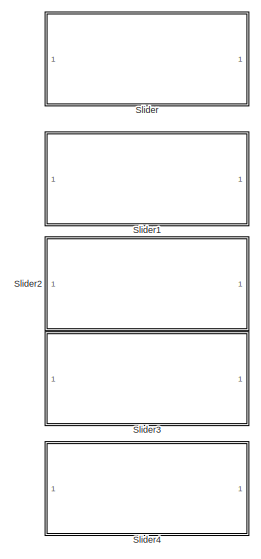
[diagram: root canvas - part 1/3, left side, full height]
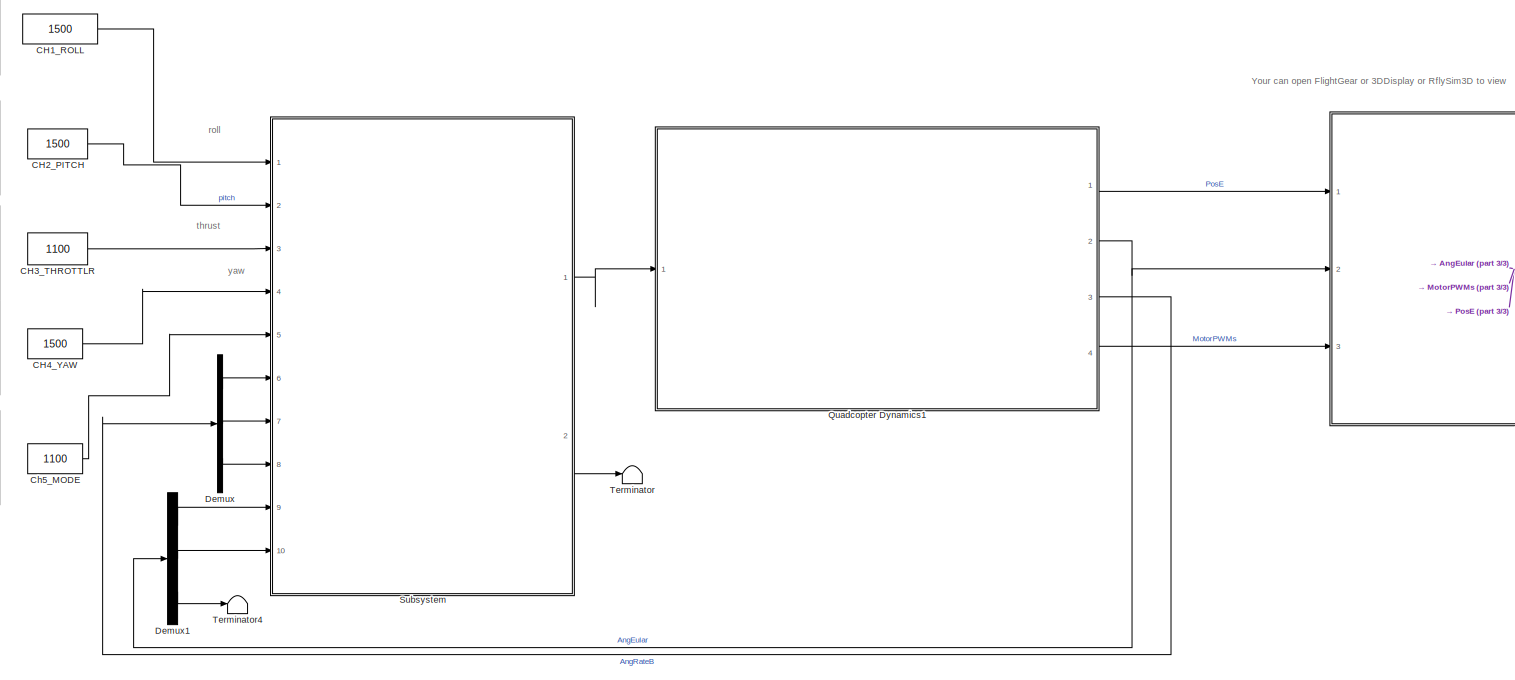
[diagram: root canvas - part 2/3, most of the canvas]
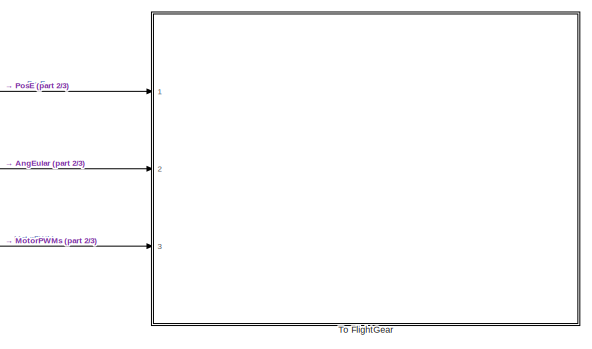
[diagram: root canvas - part 3/3, middle right region]
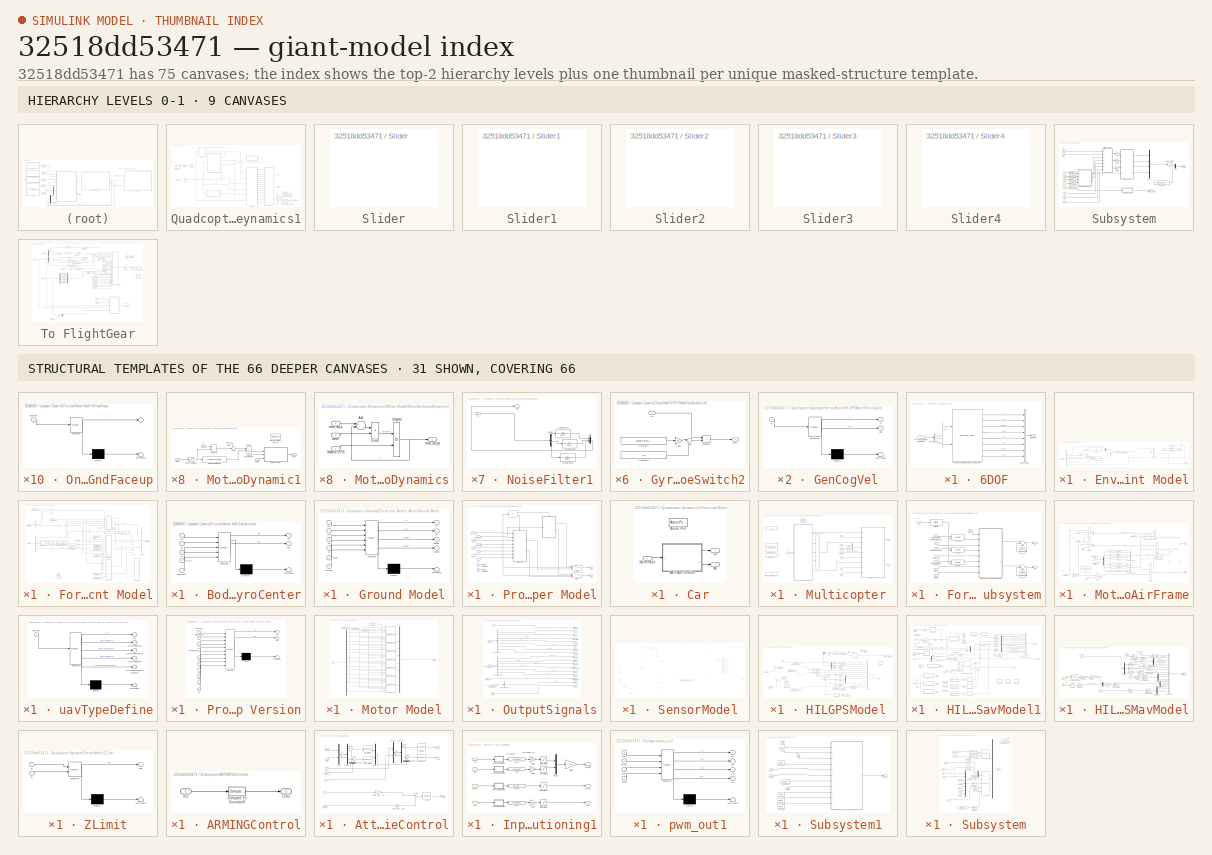
[diagram: thumbnail index - top-2 hierarchy levels (9 canvases) + 31 structural-template representatives of the remaining 66 canvases]
MODEL slx_32518dd53471
KIND model
CONFIG AbsTol = auto
CONFIG EnableMultiTasking = off
CONFIG FixedStep = 0.001
CONFIG InitFcn = if exist('Init_control.m','file')\n     Init_control;\nend\n
CONFIG MaxStep = auto
CONFIG MinStep = auto
CONFIG PreLoadFcn = filepath  = fileparts(get_param(bdroot, 'FileName'))\ncd(filepath);
CONFIG RelTol = 1e-3
CONFIG SampleTimeConstraint = Unconstrained
CONFIG Solver = ode4
CONFIG SolverName = ode4
CONFIG StartTime = 0.0
CONFIG StopTime = 2000
BLOCK [Constant]      CH3_THROTTLR 
  OutDataTypeStr = uint16
  Value = 1100
BLOCK [Constant]      CH4_YAW     
  OutDataTypeStr = uint16
  Value = 1500
BLOCK [Constant]  CH2_PITCH 
  OutDataTypeStr = uint16
  Value = 1500
BLOCK [Constant] CH1_ROLL   
  OutDataTypeStr = uint16
  Value = 1500
BLOCK [Constant] Ch5_MODE 
  OutDataTypeStr = uint16
  Value = 1100
BLOCK [Demux] Demux
  DisplayOption = bar
  Outputs = 3
  Ports = [1, 3]
BLOCK [Demux] Demux1
  DisplayOption = bar
  Outputs = 3
  Ports = [1, 3]
BLOCK [SubSystem] Quadcopter Dynamics1
  Ports = [1, 4]
  RequestExecContextInheritance = off
  Variant = off
BLOCK [SubSystem] Quadcopter Dynamics1/6DOF
  Ports = [1, 1]
  RequestExecContextInheritance = off
  Variant = off
BLOCK [Outport] Quadcopter Dynamics1/6DOF/6DOF Bus
  IconDisplay = Port number
BLOCK [BusCreator] Quadcopter Dynamics1/6DOF/Bus Creator
  DisplayOption = bar
  InheritFromInputs = on
  Inputs = 8
  Ports = [8, 1]
BLOCK [BusSelector] Quadcopter Dynamics1/6DOF/Bus Selector1
  OutputAsBus = off
  OutputSignals = Fb,Mb
  Ports = [1, 2]
BLOCK [Reference] Quadcopter Dynamics1/6DOF/Custom Variable Mass 6DOF (Quaternion)  REF=shared6dof/6DOF (Euler Angles)
  Ports = [2, 8]
  SourceBlock = shared6dof/6DOF (Euler Angles)
  SourceProductBaseCode = AE
  SourceProductName = Aerospace Blockset
  SourceType = 6DOF EoM (Body Axis)
BLOCK [Inport] Quadcopter Dynamics1/6DOF/Force and Moment Model Bus
  IconDisplay = Port number
BLOCK [Outport] Quadcopter Dynamics1/AngEuler
  IconDisplay = Port number
  Port = 2
BLOCK [Outport] Quadcopter Dynamics1/AngRateB
  IconDisplay = Port number
  Port = 3
BLOCK [BusSelector] Quadcopter Dynamics1/Bus Selector
  OutputAsBus = off
  OutputSignals = PosE,AngEuler,MotorRPMS,RateB
  Ports = [1, 4]
BLOCK [Constant] Quadcopter Dynamics1/Constant1
  Value = 0
BLOCK [Constant] Quadcopter Dynamics1/Constant4
  Value = [1000;1000;1000;1000;1000;1000;1000;1000]
BLOCK [DataTypeConversion] Quadcopter Dynamics1/Data Type Conversion
  OutDataTypeStr = double
  RndMeth = Floor
  SaturateOnIntegerOverflow = off
BLOCK [DataTypeConversion] Quadcopter Dynamics1/Data Type Conversion1
  OutDataTypeStr = double
  RndMeth = Floor
  SaturateOnIntegerOverflow = off
BLOCK [DataTypeConversion] Quadcopter Dynamics1/Data Type Conversion2
  OutDataTypeStr = double
  RndMeth = Floor
  SaturateOnIntegerOverflow = off
BLOCK [DataTypeConversion] Quadcopter Dynamics1/Data Type Conversion3
  OutDataTypeStr = double
  RndMeth = Floor
  SaturateOnIntegerOverflow = off
BLOCK [SubSystem] Quadcopter Dynamics1/Environment Model
  Ports = [1, 1]
  RequestExecContextInheritance = off
  Variant = off
BLOCK [Inport] Quadcopter Dynamics1/Environment Model/6DOF Bus
  IconDisplay = Port number
BLOCK [BusCreator] Quadcopter Dynamics1/Environment Model/Bus Creator
  DisplayOption = bar
  InheritFromInputs = on
  Inputs = 6
  Ports = [6, 1]
BLOCK [BusSelector] Quadcopter Dynamics1/Environment Model/Bus Selector
  OutputAsBus = off
  OutputSignals = Xe,Vb
  Ports = [1, 2]
BLOCK [Constant] Quadcopter Dynamics1/Environment Model/Constant_[1 1 1]
  Value = [1,1,1]
  VectorParams1D = off
BLOCK [Outport] Quadcopter Dynamics1/Environment Model/Environment Model Bus
  IconDisplay = Port number
BLOCK [Reference] Quadcopter Dynamics1/Environment Model/Flat Earth to LLA  REF=aerolibtransform2/Flat Earth to LLA
  Ports = [2, 2]
  SourceBlock = aerolibtransform2/Flat Earth to LLA
  SourceProductBaseCode = AE
  SourceProductName = Aerospace Blockset
  SourceType = Flat Earth to LLA
BLOCK [Reference] Quadcopter Dynamics1/Environment Model/ISA Atmosphere Model  REF=aerolibatmos2/ISA Atmosphere Model
  Ports = [1, 4]
  SourceBlock = aerolibatmos2/ISA Atmosphere Model
  SourceProductBaseCode = AE
  SourceProductName = Aerospace Blockset
  SourceType = International Standard Atmosphere Model
BLOCK [Constant] Quadcopter Dynamics1/Environment Model/ModelParam.envAltitude
  Value = ModelParam_envAltitude
BLOCK [Gain] Quadcopter Dynamics1/Environment Model/ModelParam.noiseUpperWindBodyRatio
  Gain = ModelParam_noiseUpperWindBodyRatio
  OutDataTypeStr = Inherit: Inherit via internal rule
  ParamDataTypeStr = Inherit: Inherit via internal rule
  SaturateOnIntegerOverflow = off
BLOCK [Gain] Quadcopter Dynamics1/Environment Model/ModelParam.noiseUpperWindBodyRatioSwitch
  Gain = ModelParam_GlobalNoiseGainSwitch
  OutDataTypeStr = Inherit: Inherit via internal rule
  ParamDataTypeStr = Inherit: Inherit via internal rule
  SaturateOnIntegerOverflow = off
BLOCK [Mux] Quadcopter Dynamics1/Environment Model/Mux
  DisplayOption = bar
  Inputs = 2
  Ports = [2, 1]
BLOCK [Product] Quadcopter Dynamics1/Environment Model/Product1
  InputSameDT = off
  OutDataTypeStr = Inherit: Inherit via internal rule
  Ports = [2, 1]
  RndMeth = Floor
  SaturateOnIntegerOverflow = off
BLOCK [Reshape] Quadcopter Dynamics1/Environment Model/Reshape
  Ports = [1, 1]
BLOCK [Saturate] Quadcopter Dynamics1/Environment Model/Saturation_1
  InputPortMap = u0
  LowerLimit = 0
  Ports = [1, 1]
  UpperLimit = 100000
BLOCK [Sum] Quadcopter Dynamics1/Environment Model/Sum1
  IconShape = round
  InputSameDT = off
  Inputs = |++
  OutDataTypeStr = Inherit: Inherit via internal rule
  Ports = [2, 1]
  SaturateOnIntegerOverflow = off
BLOCK [Reference] Quadcopter Dynamics1/Environment Model/Temperature Conversion  REF=aerolibconvert2/Temperature Conversion
  Ports = [1, 1]
  SourceBlock = aerolibconvert2/Temperature Conversion
  SourceProductBaseCode = AE
  SourceProductName = Aerospace Blockset
  SourceType = Temperature Conversion
BLOCK [Constant] Quadcopter Dynamics1/Environment Model/TemperatureConstant
  Value = 25
BLOCK [Terminator] Quadcopter Dynamics1/Environment Model/Terminator2
BLOCK [Terminator] Quadcopter Dynamics1/Environment Model/Terminator3
BLOCK [UniformRandomNumber] Quadcopter Dynamics1/Environment Model/Uniform Random Number
  Maximum = [1,1,0.5]
  Minimum = [-1,-1,-0.5]
  SampleTime = ModelParam_noiseWindSampTime
  Seed = [564565,6846798,46545]
BLOCK [Reference] Quadcopter Dynamics1/Environment Model/WGS84 Gravity Model   REF=aerolibobsolete/WGS84 Gravity Model 
  Ports = [1, 1]
  SourceBlock = aerolibobsolete/WGS84 Gravity Model
  SourceProductBaseCode = AE
  SourceProductName = Aerospace Blockset
  SourceType = WGS84 Gravity Model 3D
BLOCK [SubSystem] Quadcopter Dynamics1/Force and Moment Model
  Ports = [4, 1]
  RequestExecContextInheritance = off
  Variant = off
BLOCK [Inport] Quadcopter Dynamics1/Force and Moment Model/6DOF Bus
  IconDisplay = Port number
  Port = 3
BLOCK [Sum] Quadcopter Dynamics1/Force and Moment Model/Add2
  InputSameDT = off
  Inputs = +++
  OutDataTypeStr = Inherit: Inherit via internal rule
  Ports = [3, 1]
  SaturateOnIntegerOverflow = off
BLOCK [Sum] Quadcopter Dynamics1/Force and Moment Model/Add3
  InputSameDT = off
  Inputs = +++
  OutDataTypeStr = Inherit: Inherit via internal rule
  Ports = [3, 1]
  SaturateOnIntegerOverflow = off
BLOCK [Sum] Quadcopter Dynamics1/Force and Moment Model/Add4
  InputSameDT = off
  OutDataTypeStr = Inherit: Inherit via internal rule
  Ports = [2, 1]
  SaturateOnIntegerOverflow = off
BLOCK [SubSystem] Quadcopter Dynamics1/Force and Moment Model/Body AeroCenter
  ErrorFcn = Stateflow.Translate.translate
  PermitHierarchicalResolution = ExplicitOnly
  Ports = [5, 2]
  RequestExecContextInheritance = off
  SFBlockType = MATLAB Function
  TreatAsAtomicUnit = on
  Variant = off
BLOCK [Demux] Quadcopter Dynamics1/Force and Moment Model/Body AeroCenter/ Demux 
  Outputs = 1
  Ports = [1, 1]
BLOCK [S-Function] Quadcopter Dynamics1/Force and Moment Model/Body AeroCenter/ SFunction 
  EnableBusSupport = on
  FunctionName = sf_sfun
  PortCounts = [5 3]
  Ports = [5, 3]
  SFcnIsStateOwnerBlock = off
  SFunctionDeploymentMode = off
  Tag = Stateflow S-Function Exp2_ControlSystemDemo 21
BLOCK [Terminator] Quadcopter Dynamics1/Force and Moment Model/Body AeroCenter/ Terminator 
BLOCK [Inport] Quadcopter Dynamics1/Force and Moment Model/Body AeroCenter/CCm
  IconDisplay = Port number
  Port = 4
BLOCK [Inport] Quadcopter Dynamics1/Force and Moment Model/Body AeroCenter/Cd
  IconDisplay = Port number
  Port = 3
BLOCK [Outport] Quadcopter Dynamics1/Force and Moment Model/Body AeroCenter/Fd
  IconDisplay = Port number
BLOCK [Outport] Quadcopter Dynamics1/Force and Moment Model/Body AeroCenter/Md
  IconDisplay = Port number
  Port = 2
BLOCK [Inport] Quadcopter Dynamics1/Force and Moment Model/Body AeroCenter/Vb
  IconDisplay = Port number
  Port = 2
BLOCK [Inport] Quadcopter Dynamics1/Force and Moment Model/Body AeroCenter/uavDearo
  IconDisplay = Port number
  Port = 5
BLOCK [Inport] Quadcopter Dynamics1/Force and Moment Model/Body AeroCenter/wb
  IconDisplay = Port number
BLOCK [BusCreator] Quadcopter Dynamics1/Force and Moment Model/Bus Creator
  DisplayOption = bar
  InheritFromInputs = on
  Inputs = 3
  Ports = [3, 1]
BLOCK [BusSelector] Quadcopter Dynamics1/Force and Moment Model/Bus Selector
  OutputAsBus = off
  OutputSignals = Xe,Ve,Eular(rad),DCM,wb
  Ports = [1, 5]
BLOCK [BusSelector] Quadcopter Dynamics1/Force and Moment Model/Bus Selector5
  OutputAsBus = off
  OutputSignals = gravity,Windb
  Ports = [1, 2]
BLOCK [Constant] Quadcopter Dynamics1/Force and Moment Model/Constant1
  Commented = on
BLOCK [Reference] Quadcopter Dynamics1/Force and Moment Model/Direction Cosine Matrix to Quaternions  REF=sharedtransform/Direction Cosine Matrix 
to Quaternions
  Ports = [1, 1]
  SourceBlock = sharedtransform/Direction Cosine Matrix \nto Quaternions
  SourceProductBaseCode = AE
  SourceProductName = Aerospace Blockset
  SourceType = DCM2Quaternion
BLOCK [Reference] Quadcopter Dynamics1/Force and Moment Model/Direction Cosine Matrix to Quaternions1  REF=sharedtransform/Direction Cosine Matrix 
to Quaternions
  Ports = [1, 1]
  SourceBlock = sharedtransform/Direction Cosine Matrix \nto Quaternions
  SourceProductBaseCode = AE
  SourceProductName = Aerospace Blockset
  SourceType = DCM2Quaternion
BLOCK [Inport] Quadcopter Dynamics1/Force and Moment Model/Environment Model Bus
  IconDisplay = Port number
  Port = 2
BLOCK [Reference] Quadcopter Dynamics1/Force and Moment Model/Euler to DCM  REF=aerolibtransform2/Wind Angles to 
Direction Cosine Matrix
  Ports = [1, 1]
  SourceBlock = aerolibtransform2/Wind Angles to \nDirection Cosine Matrix
  SourceProductBaseCode = AE
  SourceProductName = Aerospace Blockset
  SourceType = Wind2DCM
BLOCK [Outport] Quadcopter Dynamics1/Force and Moment Model/Force and Moment Model Bus
  IconDisplay = Port number
BLOCK [SubSystem] Quadcopter Dynamics1/Force and Moment Model/Ground Model
  ErrorFcn = Stateflow.Translate.translate
  PermitHierarchicalResolution = ExplicitOnly
  Ports = [6, 4]
  RequestExecContextInheritance = off
  SFBlockType = MATLAB Function
  TreatAsAtomicUnit = on
  Variant = off
BLOCK [Demux] Quadcopter Dynamics1/Force and Moment Model/Ground Model/ Demux 
  Outputs = 1
  Ports = [1, 1]
BLOCK [S-Function] Quadcopter Dynamics1/Force and Moment Model/Ground Model/ SFunction 
  EnableBusSupport = on
  FunctionName = sf_sfun
  PortCounts = [6 5]
  Ports = [6, 5]
  SFcnIsStateOwnerBlock = off
  SFunctionDeploymentMode = off
  Tag = Stateflow S-Function Exp2_ControlSystemDemo 1
BLOCK [Terminator] Quadcopter Dynamics1/Force and Moment Model/Ground Model/ Terminator 
BLOCK [Outport] Quadcopter Dynamics1/Force and Moment Model/Ground Model/F1
  IconDisplay = Port number
BLOCK [Outport] Quadcopter Dynamics1/Force and Moment Model/Ground Model/M1
  IconDisplay = Port number
  Port = 2
BLOCK [Inport] Quadcopter Dynamics1/Force and Moment Model/Ground Model/Quet
  IconDisplay = Port number
  Port = 5
BLOCK [Inport] Quadcopter Dynamics1/Force and Moment Model/Ground Model/Ve
  IconDisplay = Port number
  Port = 4
BLOCK [Inport] Quadcopter Dynamics1/Force and Moment Model/Ground Model/Xe
  IconDisplay = Port number
  Port = 3
BLOCK [Outport] Quadcopter Dynamics1/Force and Moment Model/Ground Model/landed
  IconDisplay = Port number
  Port = 3
BLOCK [Inport] Quadcopter Dynamics1/Force and Moment Model/Ground Model/mg
  IconDisplay = Port number
BLOCK [Outport] Quadcopter Dynamics1/Force and Moment Model/Ground Model/takeoff
  IconDisplay = Port number
  Port = 4
BLOCK [Inport] Quadcopter Dynamics1/Force and Moment Model/Ground Model/terrainZ
  IconDisplay = Port number
  Port = 6
BLOCK [Inport] Quadcopter Dynamics1/Force and Moment Model/Ground Model/wb
  IconDisplay = Port number
  Port = 2
BLOCK [Constant] Quadcopter Dynamics1/Force and Moment Model/ModelParam.motorJm
  Value = ModelParam_motorJm
BLOCK [Constant] Quadcopter Dynamics1/Force and Moment Model/ModelParam.rotorCm
  Value = ModelParam_rotorCm
BLOCK [Constant] Quadcopter Dynamics1/Force and Moment Model/ModelParam.rotorCt
  Value = ModelParam_rotorCt
BLOCK [Constant] Quadcopter Dynamics1/Force and Moment Model/ModelParam.uavCCm
  Value = ModelParam_uavCCm
BLOCK [Constant] Quadcopter Dynamics1/Force and Moment Model/ModelParam.uavCd
  Value = ModelParam_uavCd
BLOCK [Constant] Quadcopter Dynamics1/Force and Moment Model/ModelParam.uavDearo
  Value = ModelParam_uavDearo
BLOCK [Constant] Quadcopter Dynamics1/Force and Moment Model/ModelParam.uavMass
  Value = ModelParam_uavMass
BLOCK [Constant] Quadcopter Dynamics1/Force and Moment Model/ModelParam.uavR
  Value = ModelParam_uavR
BLOCK [Constant] Quadcopter Dynamics1/Force and Moment Model/ModelParam.uavType
  Value = ModelParam_uavType
BLOCK [Inport] Quadcopter Dynamics1/Force and Moment Model/MotorRads
  IconDisplay = Port number
BLOCK [SubSystem] Quadcopter Dynamics1/Force and Moment Model/OnGroundFaceup
  ErrorFcn = Stateflow.Translate.translate
  PermitHierarchicalResolution = ExplicitOnly
  Ports = [1, 1]
  RequestExecContextInheritance = off
  SFBlockType = MATLAB Function
  TreatAsAtomicUnit = on
  Variant = off
BLOCK [Demux] Quadcopter Dynamics1/Force and Moment Model/OnGroundFaceup/ Demux 
  Outputs = 1
  Ports = [1, 1]
BLOCK [S-Function] Quadcopter Dynamics1/Force and Moment Model/OnGroundFaceup/ SFunction 
  EnableBusSupport = on
  FunctionName = sf_sfun
  PortCounts = [1 2]
  Ports = [1, 2]
  SFcnIsStateOwnerBlock = off
  SFunctionDeploymentMode = off
  Tag = Stateflow S-Function Exp2_ControlSystemDemo 9
BLOCK [Terminator] Quadcopter Dynamics1/Force and Moment Model/OnGroundFaceup/ Terminator 
BLOCK [Inport] Quadcopter Dynamics1/Force and Moment Model/OnGroundFaceup/EulerAng
  IconDisplay = Port number
BLOCK [Outport] Quadcopter Dynamics1/Force and Moment Model/OnGroundFaceup/y
  IconDisplay = Port number
BLOCK [Product] Quadcopter Dynamics1/Force and Moment Model/Product
  InputSameDT = off
  Multiplication = Matrix(*)
  OutDataTypeStr = Inherit: Inherit via internal rule
  Ports = [2, 1]
  RndMeth = Floor
  SaturateOnIntegerOverflow = off
BLOCK [Product] Quadcopter Dynamics1/Force and Moment Model/Product1
  InputSameDT = off
  OutDataTypeStr = Inherit: Inherit via internal rule
  Ports = [2, 1]
  RndMeth = Floor
  SaturateOnIntegerOverflow = off
BLOCK [SubSystem] Quadcopter Dynamics1/Force and Moment Model/Propeller Model
  Commented = on
  Ports = [10, 2]
  RTWSystemCode = Reusable function
  RequestExecContextInheritance = off
  TreatAsAtomicUnit = on
  Variant = off
BLOCK [SubSystem] Quadcopter Dynamics1/Force and Moment Model/Propeller Model old Version
  ErrorFcn = Stateflow.Translate.translate
  PermitHierarchicalResolution = ExplicitOnly
  Ports = [10, 2]
  RequestExecContextInheritance = off
  SFBlockType = MATLAB Function
  TreatAsAtomicUnit = on
  Variant = off
BLOCK [Demux] Quadcopter Dynamics1/Force and Moment Model/Propeller Model old Version/ Demux 
  Outputs = 1
  Ports = [1, 1]
BLOCK [S-Function] Quadcopter Dynamics1/Force and Moment Model/Propeller Model old Version/ SFunction 
  EnableBusSupport = on
  FunctionName = sf_sfun
  PortCounts = [10 3]
  Ports = [10, 3]
  SFcnIsStateOwnerBlock = off
  SFunctionDeploymentMode = off
  Tag = Stateflow S-Function Exp2_ControlSystemDemo 4
BLOCK [Terminator] Quadcopter Dynamics1/Force and Moment Model/Propeller Model old Version/ Terminator 
BLOCK [Inport] Quadcopter Dynamics1/Force and Moment Model/Propeller Model old Version/Cd
  IconDisplay = Port number
  Port = 10
BLOCK [Inport] Quadcopter Dynamics1/Force and Moment Model/Propeller Model old Version/Cm
  IconDisplay = Port number
  Port = 5
BLOCK [Inport] Quadcopter Dynamics1/Force and Moment Model/Propeller Model old Version/Ct
  IconDisplay = Port number
  Port = 6
BLOCK [Outport] Quadcopter Dynamics1/Force and Moment Model/Propeller Model old Version/Fb
  IconDisplay = Port number
BLOCK [Inport] Quadcopter Dynamics1/Force and Moment Model/Propeller Model old Version/Jm
  IconDisplay = Port number
  Port = 7
BLOCK [Outport] Quadcopter Dynamics1/Force and Moment Model/Propeller Model old Version/Mb
  IconDisplay = Port number
  Port = 2
BLOCK [Inport] Quadcopter Dynamics1/Force and Moment Model/Propeller Model old Version/MotorRads
  IconDisplay = Port number
  Port = 2
BLOCK [Inport] Quadcopter Dynamics1/Force and Moment Model/Propeller Model old Version/R
  IconDisplay = Port number
  Port = 3
BLOCK [Inport] Quadcopter Dynamics1/Force and Moment Model/Propeller Model old Version/Vb
  IconDisplay = Port number
  Port = 9
BLOCK [Inport] Quadcopter Dynamics1/Force and Moment Model/Propeller Model old Version/uavDearo
  IconDisplay = Port number
  Port = 4
BLOCK [Inport] Quadcopter Dynamics1/Force and Moment Model/Propeller Model old Version/uavType
  IconDisplay = Port number
BLOCK [Inport] Quadcopter Dynamics1/Force and Moment Model/Propeller Model old Version/wb
  IconDisplay = Port number
  Port = 8
BLOCK [SubSystem] Quadcopter Dynamics1/Force and Moment Model/Propeller Model/Car
  Ports = [1, 2, 0, 0, 0, 0, 0, 1]
  RequestExecContextInheritance = off
  TreatAsAtomicUnit = on
  Variant = off
BLOCK [ActionPort] Quadcopter Dynamics1/Force and Moment Model/Propeller Model/Car/Action Port
  InitializeStates = reset
BLOCK [Outport] Quadcopter Dynamics1/Force and Moment Model/Propeller Model/Car/Fb
  IconDisplay = Port number
BLOCK [SubSystem] Quadcopter Dynamics1/Force and Moment Model/Propeller Model/Car/MATLAB Function
  ErrorFcn = Stateflow.Translate.translate
  PermitHierarchicalResolution = ExplicitOnly
  Ports = [1, 2]
  RequestExecContextInheritance = off
  SFBlockType = MATLAB Function
  TreatAsAtomicUnit = on
  Variant = off
BLOCK [Demux] Quadcopter Dynamics1/Force and Moment Model/Propeller Model/Car/MATLAB Function/ Demux 
  Outputs = 1
  Ports = [1, 1]
BLOCK [S-Function] Quadcopter Dynamics1/Force and Moment Model/Propeller Model/Car/MATLAB Function/ SFunction 
  EnableBusSupport = on
  FunctionName = sf_sfun
  PortCounts = [1 3]
  Ports = [1, 3]
  SFcnIsStateOwnerBlock = off
  SFunctionDeploymentMode = off
  Tag = Stateflow S-Function Exp2_ControlSystemDemo 15
BLOCK [Terminator] Quadcopter Dynamics1/Force and Moment Model/Propeller Model/Car/MATLAB Function/ Terminator 
BLOCK [Outport] Quadcopter Dynamics1/Force and Moment Model/Propeller Model/Car/MATLAB Function/Fb
  IconDisplay = Port number
BLOCK [Outport] Quadcopter Dynamics1/Force and Moment Model/Propeller Model/Car/MATLAB Function/Mb
  IconDisplay = Port number
  Port = 2
BLOCK [Inport] Quadcopter Dynamics1/Force and Moment Model/Propeller Model/Car/MATLAB Function/MotorRads
  IconDisplay = Port number
BLOCK [Outport] Quadcopter Dynamics1/Force and Moment Model/Propeller Model/Car/Mb
  IconDisplay = Port number
  Port = 2
BLOCK [Inport] Quadcopter Dynamics1/Force and Moment Model/Propeller Model/Car/MotorRads
  IconDisplay = Port number
BLOCK [Inport] Quadcopter Dynamics1/Force and Moment Model/Propeller Model/Cd
  IconDisplay = Port number
  Port = 10
BLOCK [Inport] Quadcopter Dynamics1/Force and Moment Model/Propeller Model/Cm
  IconDisplay = Port number
  Port = 5
BLOCK [Inport] Quadcopter Dynamics1/Force and Moment Model/Propeller Model/Ct
  IconDisplay = Port number
  Port = 6
BLOCK [Outport] Quadcopter Dynamics1/Force and Moment Model/Propeller Model/Fb
  IconDisplay = Port number
BLOCK [If] Quadcopter Dynamics1/Force and Moment Model/Propeller Model/If
  IfExpression = u1 >= 50
  Ports = [1, 2]
BLOCK [Inport] Quadcopter Dynamics1/Force and Moment Model/Propeller Model/Jm
  IconDisplay = Port number
  Port = 7
BLOCK [Outport] Quadcopter Dynamics1/Force and Moment Model/Propeller Model/Mb
  IconDisplay = Port number
  Port = 2
BLOCK [Inport] Quadcopter Dynamics1/Force and Moment Model/Propeller Model/MotorRads
  IconDisplay = Port number
  Port = 2
BLOCK [SubSystem] Quadcopter Dynamics1/Force and Moment Model/Propeller Model/Multicopter
  Ports = [8, 2, 0, 0, 0, 0, 0, 1]
  RequestExecContextInheritance = off
  TreatAsAtomicUnit = on
  Variant = off
BLOCK [ActionPort] Quadcopter Dynamics1/Force and Moment Model/Propeller Model/Multicopter/Action Port
  InitializeStates = reset
BLOCK [Inport] Quadcopter Dynamics1/Force and Moment Model/Propeller Model/Multicopter/Cm
  IconDisplay = Port number
  Port = 5
BLOCK [Inport] Quadcopter Dynamics1/Force and Moment Model/Propeller Model/Multicopter/Ct
  IconDisplay = Port number
  Port = 6
BLOCK [Outport] Quadcopter Dynamics1/Force and Moment Model/Propeller Model/Multicopter/Fb
  IconDisplay = Port number
BLOCK [SubSystem] Quadcopter Dynamics1/Force and Moment Model/Propeller Model/Multicopter/For Iterator Subsystem
  Ports = [9, 2]
  RequestExecContextInheritance = off
  TreatAsAtomicUnit = on
  Variant = off
BLOCK [Sum] Quadcopter Dynamics1/Force and Moment Model/Propeller Model/Multicopter/For Iterator Subsystem/Add
  InputSameDT = off
  OutDataTypeStr = Inherit: Inherit via internal rule
  Ports = [2, 1]
  SaturateOnIntegerOverflow = off
BLOCK [Sum] Quadcopter Dynamics1/Force and Moment Model/Propeller Model/Multicopter/For Iterator Subsystem/Add1
  InputSameDT = off
  OutDataTypeStr = Inherit: Inherit via internal rule
  Ports = [2, 1]
  SaturateOnIntegerOverflow = off
BLOCK [Outport] Quadcopter Dynamics1/Force and Moment Model/Propeller Model/Multicopter/For Iterator Subsystem/Fb
  IconDisplay = Port number
BLOCK [ForIterator] Quadcopter Dynamics1/Force and Moment Model/Propeller Model/Multicopter/For Iterator Subsystem/For Iterator
  IterationSource = external
  Ports = [1, 1]
  ResetStates = reset
BLOCK [Outport] Quadcopter Dynamics1/Force and Moment Model/Propeller Model/Multicopter/For Iterator Subsystem/Mb
  IconDisplay = Port number
  Port = 2
BLOCK [Memory] Quadcopter Dynamics1/Force and Moment Model/Propeller Model/Multicopter/For Iterator Subsystem/Memory
  InheritSampleTime = on
  InitialCondition = [0;0;0]
BLOCK [Memory] Quadcopter Dynamics1/Force and Moment Model/Propeller Model/Multicopter/For Iterator Subsystem/Memory1
  InheritSampleTime = on
  InitialCondition = [0;0;0]
BLOCK [SubSystem] Quadcopter Dynamics1/Force and Moment Model/Propeller Model/Multicopter/For Iterator Subsystem/MotorForceAndMomentInAirFrame
  Ports = [8, 2]
  RequestExecContextInheritance = off
  Variant = off
BLOCK [Reference] Quadcopter Dynamics1/Force and Moment Model/Propeller Model/Multicopter/For Iterator Subsystem/MotorForceAndMomentInAirFrame/3x3 Cross Product  REF=sharedutil/3x3 Cross Product
  Ports = [2, 1]
  SourceBlock = sharedutil/3x3 Cross Product
  SourceProductBaseCode = AE
  SourceProductName = Aerospace Blockset
  SourceType = CrossProduct
BLOCK [Reference] Quadcopter Dynamics1/Force and Moment Model/Propeller Model/Multicopter/For Iterator Subsystem/MotorForceAndMomentInAirFrame/3x3 Cross Product1  REF=sharedutil/3x3 Cross Product
  Ports = [2, 1]
  SourceBlock = sharedutil/3x3 Cross Product
  SourceProductBaseCode = AE
  SourceProductName = Aerospace Blockset
  SourceType = CrossProduct
BLOCK [Sum] Quadcopter Dynamics1/Force and Moment Model/Propeller Model/Multicopter/For Iterator Subsystem/MotorForceAndMomentInAirFrame/Add
  InputSameDT = off
  Inputs = 2
  OutDataTypeStr = Inherit: Inherit via internal rule
  Ports = [2, 1]
  SaturateOnIntegerOverflow = off
BLOCK [Sum] Quadcopter Dynamics1/Force and Moment Model/Propeller Model/Multicopter/For Iterator Subsystem/MotorForceAndMomentInAirFrame/Add1
  InputSameDT = off
  Inputs = 2
  OutDataTypeStr = Inherit: Inherit via internal rule
  Ports = [2, 1]
  SaturateOnIntegerOverflow = off
BLOCK [Outport] Quadcopter Dynamics1/Force and Moment Model/Propeller Model/Multicopter/For Iterator Subsystem/MotorForceAndMomentInAirFrame/Fbi
  IconDisplay = Port number
BLOCK [Fcn] Quadcopter Dynamics1/Force and Moment Model/Propeller Model/Multicopter/For Iterator Subsystem/MotorForceAndMomentInAirFrame/Fcn
  Expr = u(4)*cos(u(3))
BLOCK [Fcn] Quadcopter Dynamics1/Force and Moment Model/Propeller Model/Multicopter/For Iterator Subsystem/MotorForceAndMomentInAirFrame/Fcn1
  Expr = u(4)*sin(u(3))
BLOCK [Fcn] Quadcopter Dynamics1/Force and Moment Model/Propeller Model/Multicopter/For Iterator Subsystem/MotorForceAndMomentInAirFrame/Fcn2
  Expr = u(5)
BLOCK [Gain] Quadcopter Dynamics1/Force and Moment Model/Propeller Model/Multicopter/For Iterator Subsystem/MotorForceAndMomentInAirFrame/Gain
  Gain = -1
  OutDataTypeStr = Inherit: Inherit via internal rule
  ParamDataTypeStr = Inherit: Inherit via internal rule
  SaturateOnIntegerOverflow = off
BLOCK [Gain] Quadcopter Dynamics1/Force and Moment Model/Propeller Model/Multicopter/For Iterator Subsystem/MotorForceAndMomentInAirFrame/Gain1
  Gain = -1
  OutDataTypeStr = Inherit: Inherit via internal rule
  ParamDataTypeStr = Inherit: Inherit via internal rule
  SaturateOnIntegerOverflow = off
BLOCK [Gain] Quadcopter Dynamics1/Force and Moment Model/Propeller Model/Multicopter/For Iterator Subsystem/MotorForceAndMomentInAirFrame/Gain2
  Gain = -1
  OutDataTypeStr = Inherit: Inherit via internal rule
  ParamDataTypeStr = Inherit: Inherit via internal rule
  SaturateOnIntegerOverflow = off
BLOCK [Math] Quadcopter Dynamics1/Force and Moment Model/Propeller Model/Multicopter/For Iterator Subsystem/MotorForceAndMomentInAirFrame/Math Function
  Operator = square
  Ports = [1, 1]
BLOCK [Outport] Quadcopter Dynamics1/Force and Moment Model/Propeller Model/Multicopter/For Iterator Subsystem/MotorForceAndMomentInAirFrame/Mbi
  IconDisplay = Port number
  Port = 2
BLOCK [Mux] Quadcopter Dynamics1/Force and Moment Model/Propeller Model/Multicopter/For Iterator Subsystem/MotorForceAndMomentInAirFrame/Mux
  DisplayOption = bar
  Inputs = 2
  Ports = [2, 1]
BLOCK [Product] Quadcopter Dynamics1/Force and Moment Model/Propeller Model/Multicopter/For Iterator Subsystem/MotorForceAndMomentInAirFrame/Product2
  InputSameDT = off
  OutDataTypeStr = Inherit: Inherit via internal rule
  Ports = [2, 1]
  RndMeth = Floor
  SaturateOnIntegerOverflow = off
BLOCK [Product] Quadcopter Dynamics1/Force and Moment Model/Propeller Model/Multicopter/For Iterator Subsystem/MotorForceAndMomentInAirFrame/Product3
  InputSameDT = off
  OutDataTypeStr = Inherit: Inherit via internal rule
  Ports = [2, 1]
  RndMeth = Floor
  SaturateOnIntegerOverflow = off
BLOCK [Product] Quadcopter Dynamics1/Force and Moment Model/Propeller Model/Multicopter/For Iterator Subsystem/MotorForceAndMomentInAirFrame/Product4
  InputSameDT = off
  Inputs = 3
  OutDataTypeStr = Inherit: Inherit via internal rule
  Ports = [3, 1]
  RndMeth = Floor
  SaturateOnIntegerOverflow = off
BLOCK [Product] Quadcopter Dynamics1/Force and Moment Model/Propeller Model/Multicopter/For Iterator Subsystem/MotorForceAndMomentInAirFrame/Product5
  InputSameDT = off
  OutDataTypeStr = Inherit: Inherit via internal rule
  Ports = [2, 1]
  RndMeth = Floor
  SaturateOnIntegerOverflow = off
BLOCK [Product] Quadcopter Dynamics1/Force and Moment Model/Propeller Model/Multicopter/For Iterator Subsystem/MotorForceAndMomentInAirFrame/Product6
  InputSameDT = off
  Inputs = 3
  OutDataTypeStr = Inherit: Inherit via internal rule
  Ports = [3, 1]
  RndMeth = Floor
  SaturateOnIntegerOverflow = off
BLOCK [Product] Quadcopter Dynamics1/Force and Moment Model/Propeller Model/Multicopter/For Iterator Subsystem/MotorForceAndMomentInAirFrame/Product7
  InputSameDT = off
  OutDataTypeStr = Inherit: Inherit via internal rule
  Ports = [2, 1]
  RndMeth = Floor
  SaturateOnIntegerOverflow = off
BLOCK [Concatenate] Quadcopter Dynamics1/Force and Moment Model/Propeller Model/Multicopter/For Iterator Subsystem/MotorForceAndMomentInAirFrame/Vector Concatenate
  NumInputs = 3
  Ports = [3, 1]
BLOCK [Concatenate] Quadcopter Dynamics1/Force and Moment Model/Propeller Model/Multicopter/For Iterator Subsystem/MotorForceAndMomentInAirFrame/Vector Concatenate1
  NumInputs = 3
  Ports = [3, 1]
BLOCK [Inport] Quadcopter Dynamics1/Force and Moment Model/Propeller Model/Multicopter/For Iterator Subsystem/MotorForceAndMomentInAirFrame/airframeOmega
  IconDisplay = Port number
BLOCK [Constant] Quadcopter Dynamics1/Force and Moment Model/Propeller Model/Multicopter/For Iterator Subsystem/MotorForceAndMomentInAirFrame/d_i
  Commented = on
  Value = d_i
BLOCK [Constant] Quadcopter Dynamics1/Force and Moment Model/Propeller Model/Multicopter/For Iterator Subsystem/MotorForceAndMomentInAirFrame/h_i
  Commented = on
  Value = h_i
BLOCK [Fcn] Quadcopter Dynamics1/Force and Moment Model/Propeller Model/Multicopter/For Iterator Subsystem/MotorForceAndMomentInAirFrame/l1
  Expr = cos(u(1))*sin(u(2))*cos(u(3)) + sin(u(1))*sin(u(3))
BLOCK [Fcn] Quadcopter Dynamics1/Force and Moment Model/Propeller Model/Multicopter/For Iterator Subsystem/MotorForceAndMomentInAirFrame/l2
  Expr = cos(u(1))*sin(u(2))*sin(u(3)) - sin(u(1))*cos(u(3))
BLOCK [Fcn] Quadcopter Dynamics1/Force and Moment Model/Propeller Model/Multicopter/For Iterator Subsystem/MotorForceAndMomentInAirFrame/l3
  Expr = cos(u(1))*cos(u(2))
BLOCK [Inport] Quadcopter Dynamics1/Force and Moment Model/Propeller Model/Multicopter/For Iterator Subsystem/MotorForceAndMomentInAirFrame/motorDelta_i
  IconDisplay = Port number
  Port = 6
BLOCK [Inport] Quadcopter Dynamics1/Force and Moment Model/Propeller Model/Multicopter/For Iterator Subsystem/MotorForceAndMomentInAirFrame/motorEularInBodyFrame
  IconDisplay = Port number
  Port = 2
  PortDimensions = 3
BLOCK [Inport] Quadcopter Dynamics1/Force and Moment Model/Propeller Model/Multicopter/For Iterator Subsystem/MotorForceAndMomentInAirFrame/motorJ_RPi
  IconDisplay = Port number
  Port = 5
BLOCK [Inport] Quadcopter Dynamics1/Force and Moment Model/Propeller Model/Multicopter/For Iterator Subsystem/MotorForceAndMomentInAirFrame/motorOmegai
  IconDisplay = Port number
  Port = 4
BLOCK [Inport] Quadcopter Dynamics1/Force and Moment Model/Propeller Model/Multicopter/For Iterator Subsystem/MotorForceAndMomentInAirFrame/motorPositionInBodyFrame
  IconDisplay = Port number
  Port = 3
  PortDimensions = 2
BLOCK [Inport] Quadcopter Dynamics1/Force and Moment Model/Propeller Model/Multicopter/For Iterator Subsystem/MotorForceAndMomentInAirFrame/rotorCm
  IconDisplay = Port number
  Port = 8
BLOCK [Inport] Quadcopter Dynamics1/Force and Moment Model/Propeller Model/Multicopter/For Iterator Subsystem/MotorForceAndMomentInAirFrame/rotorCt
  IconDisplay = Port number
  Port = 7
BLOCK [Selector] Quadcopter Dynamics1/Force and Moment Model/Propeller Model/Multicopter/For Iterator Subsystem/Selector
  IndexOptions = Index vector (port)
  Indices = [1 3]
  InputPortWidth = 8
  OutputSizes = 1
  Ports = [2, 1]
BLOCK [Selector] Quadcopter Dynamics1/Force and Moment Model/Propeller Model/Multicopter/For Iterator Subsystem/Selector1
  IndexOptions = Index vector (port)
  Indices = [1 3]
  InputPortWidth = 8
  OutputSizes = 1
  Ports = [2, 1]
BLOCK [Selector] Quadcopter Dynamics1/Force and Moment Model/Propeller Model/Multicopter/For Iterator Subsystem/Selector2
  IndexOptions = Select all,Index vector (port)
  Indices = [1 3],1
  InputPortWidth = 8
  NumberOfDimensions = 2
  OutputSizes = 1,1
  Ports = [2, 1]
BLOCK [Inport] Quadcopter Dynamics1/Force and Moment Model/Propeller Model/Multicopter/For Iterator Subsystem/motorEularMatrix
  IconDisplay = Port number
  Port = 3
BLOCK [Inport] Quadcopter Dynamics1/Force and Moment Model/Propeller Model/Multicopter/For Iterator Subsystem/motorJ_RP
  IconDisplay = Port number
  Port = 6
BLOCK [Inport] Quadcopter Dynamics1/Force and Moment Model/Propeller Model/Multicopter/For Iterator Subsystem/motorOmegaVector
  IconDisplay = Port number
  Port = 5
BLOCK [Inport] Quadcopter Dynamics1/Force and Moment Model/Propeller Model/Multicopter/For Iterator Subsystem/motorPositionVector
  IconDisplay = Port number
  Port = 4
BLOCK [Inport] Quadcopter Dynamics1/Force and Moment Model/Propeller Model/Multicopter/For Iterator Subsystem/motorRotateDirectionVector
  IconDisplay = Port number
  Port = 7
BLOCK [Inport] Quadcopter Dynamics1/Force and Moment Model/Propeller Model/Multicopter/For Iterator Subsystem/n_p
  IconDisplay = Port number
BLOCK [Inport] Quadcopter Dynamics1/Force and Moment Model/Propeller Model/Multicopter/For Iterator Subsystem/rotorCm
  IconDisplay = Port number
  Port = 9
BLOCK [Inport] Quadcopter Dynamics1/Force and Moment Model/Propeller Model/Multicopter/For Iterator Subsystem/rotorCt
  IconDisplay = Port number
  Port = 8
BLOCK [Inport] Quadcopter Dynamics1/Force and Moment Model/Propeller Model/Multicopter/For Iterator Subsystem/wb
  IconDisplay = Port number
  Port = 2
BLOCK [Gain] Quadcopter Dynamics1/Force and Moment Model/Propeller Model/Multicopter/Gain
  Gain = -1
  OutDataTypeStr = Inherit: Inherit via internal rule
  ParamDataTypeStr = Inherit: Inherit via internal rule
  SaturateOnIntegerOverflow = off
BLOCK [Inport] Quadcopter Dynamics1/Force and Moment Model/Propeller Model/Multicopter/Jm
  IconDisplay = Port number
  Port = 7
BLOCK [Outport] Quadcopter Dynamics1/Force and Moment Model/Propeller Model/Multicopter/Mb
  IconDisplay = Port number
  Port = 2
BLOCK [Inport] Quadcopter Dynamics1/Force and Moment Model/Propeller Model/Multicopter/MotorRads
  IconDisplay = Port number
  Port = 2
BLOCK [Concatenate] Quadcopter Dynamics1/Force and Moment Model/Propeller Model/Multicopter/Vector Concatenate
  Ports = [2, 1]
BLOCK [Concatenate] Quadcopter Dynamics1/Force and Moment Model/Propeller Model/Multicopter/Vector Concatenate1
  Mode = Multidimensional array
  NumInputs = 3
  Ports = [3, 1]
BLOCK [Constant] Quadcopter Dynamics1/Force and Moment Model/Propeller Model/Multicopter/motorPhiVector
  Commented = on
BLOCK [Constant] Quadcopter Dynamics1/Force and Moment Model/Propeller Model/Multicopter/motorPsiVector
  Commented = on
BLOCK [Constant] Quadcopter Dynamics1/Force and Moment Model/Propeller Model/Multicopter/motorRotateDirectionVector
  Commented = on
BLOCK [Constant] Quadcopter Dynamics1/Force and Moment Model/Propeller Model/Multicopter/motorThetaVector
  Commented = on
BLOCK [Constant] Quadcopter Dynamics1/Force and Moment Model/Propeller Model/Multicopter/n_p
  Commented = on
BLOCK [Inport] Quadcopter Dynamics1/Force and Moment Model/Propeller Model/Multicopter/uavDearo
  IconDisplay = Port number
  Port = 4
BLOCK [Inport] Quadcopter Dynamics1/Force and Moment Model/Propeller Model/Multicopter/uavR
  IconDisplay = Port number
  Port = 3
BLOCK [Inport] Quadcopter Dynamics1/Force and Moment Model/Propeller Model/Multicopter/uavType
  IconDisplay = Port number
BLOCK [SubSystem] Quadcopter Dynamics1/Force and Moment Model/Propeller Model/Multicopter/uavTypeDefine
  ErrorFcn = Stateflow.Translate.translate
  PermitHierarchicalResolution = ExplicitOnly
  Ports = [1, 5]
  RequestExecContextInheritance = off
  SFBlockType = MATLAB Function
  TreatAsAtomicUnit = on
  Variant = off
BLOCK [Demux] Quadcopter Dynamics1/Force and Moment Model/Propeller Model/Multicopter/uavTypeDefine/ Demux 
  Outputs = 1
  Ports = [1, 1]
BLOCK [S-Function] Quadcopter Dynamics1/Force and Moment Model/Propeller Model/Multicopter/uavTypeDefine/ SFunction 
  EnableBusSupport = on
  FunctionName = sf_sfun
  PortCounts = [1 6]
  Ports = [1, 6]
  SFcnIsStateOwnerBlock = off
  SFunctionDeploymentMode = off
  Tag = Stateflow S-Function Exp2_ControlSystemDemo 14
BLOCK [Terminator] Quadcopter Dynamics1/Force and Moment Model/Propeller Model/Multicopter/uavTypeDefine/ Terminator 
BLOCK [Outport] Quadcopter Dynamics1/Force and Moment Model/Propeller Model/Multicopter/uavTypeDefine/motorPhiVector
  IconDisplay = Port number
  Port = 2
BLOCK [Outport] Quadcopter Dynamics1/Force and Moment Model/Propeller Model/Multicopter/uavTypeDefine/motorPsiVector
  IconDisplay = Port number
  Port = 4
BLOCK [Outport] Quadcopter Dynamics1/Force and Moment Model/Propeller Model/Multicopter/uavTypeDefine/motorRotateDirectionVector
  IconDisplay = Port number
  Port = 5
BLOCK [Outport] Quadcopter Dynamics1/Force and Moment Model/Propeller Model/Multicopter/uavTypeDefine/motorThetaVector
  IconDisplay = Port number
  Port = 3
BLOCK [Outport] Quadcopter Dynamics1/Force and Moment Model/Propeller Model/Multicopter/uavTypeDefine/n_p
  IconDisplay = Port number
BLOCK [Inport] Quadcopter Dynamics1/Force and Moment Model/Propeller Model/Multicopter/uavTypeDefine/uavType
  IconDisplay = Port number
BLOCK [Inport] Quadcopter Dynamics1/Force and Moment Model/Propeller Model/Multicopter/wb
  IconDisplay = Port number
  Port = 8
BLOCK [Switch] Quadcopter Dynamics1/Force and Moment Model/Propeller Model/Switch
  InputSameDT = off
  SaturateOnIntegerOverflow = off
  Threshold = 50
BLOCK [Switch] Quadcopter Dynamics1/Force and Moment Model/Propeller Model/Switch1
  InputSameDT = off
  SaturateOnIntegerOverflow = off
  Threshold = 50
BLOCK [Terminator] Quadcopter Dynamics1/Force and Moment Model/Propeller Model/Terminator
BLOCK [Terminator] Quadcopter Dynamics1/Force and Moment Model/Propeller Model/Terminator1
BLOCK [Inport] Quadcopter Dynamics1/Force and Moment Model/Propeller Model/Vb
  IconDisplay = Port number
  Port = 9
BLOCK [Inport] Quadcopter Dynamics1/Force and Moment Model/Propeller Model/uavDearo
  IconDisplay = Port number
  Port = 4
BLOCK [Inport] Quadcopter Dynamics1/Force and Moment Model/Propeller Model/uavR
  IconDisplay = Port number
  Port = 3
BLOCK [Inport] Quadcopter Dynamics1/Force and Moment Model/Propeller Model/uavType
  IconDisplay = Port number
BLOCK [Inport] Quadcopter Dynamics1/Force and Moment Model/Propeller Model/wb
  IconDisplay = Port number
  Port = 8
BLOCK [Reference] Quadcopter Dynamics1/Force and Moment Model/Quaternion Inverse  REF=aerolibutil/Quaternion
Inverse
  Ports = [1, 1]
  SourceBlock = aerolibutil/Quaternion\nInverse
  SourceProductBaseCode = AE
  SourceProductName = Aerospace Blockset
  SourceType = Quaternion Inverse
BLOCK [Reference] Quadcopter Dynamics1/Force and Moment Model/Quaternion Multiplication  REF=aerolibutil/Quaternion
Multiplication
  Ports = [2, 1]
  SourceBlock = aerolibutil/Quaternion\nMultiplication
  SourceProductBaseCode = AE
  SourceProductName = Aerospace Blockset
  SourceType = Quaternion Multiplication
BLOCK [Terminator] Quadcopter Dynamics1/Force and Moment Model/Terminator
BLOCK [UniformRandomNumber] Quadcopter Dynamics1/Force and Moment Model/Uniform Random Number
  Commented = on
  Maximum = [1,1,1]
  Minimum = [-1,-1,-1]
  SampleTime = 0.05
  Seed = [145787,351545,2864]
BLOCK [Inport] Quadcopter Dynamics1/Force and Moment Model/tZ 
  IconDisplay = Port number
  Port = 4
BLOCK [Gain] Quadcopter Dynamics1/Gain1
  Gain = 1/1000
  OutDataTypeStr = Inherit: Inherit via internal rule
  ParamDataTypeStr = Inherit: Inherit via internal rule
  SaturateOnIntegerOverflow = off
BLOCK [SubSystem] Quadcopter Dynamics1/Motor Model
  Ports = [1, 1]
  RequestExecContextInheritance = off
  Variant = off
BLOCK [Constant] Quadcopter Dynamics1/Motor Model/Constant
  Value = ModelInit_RPM
BLOCK [Demux] Quadcopter Dynamics1/Motor Model/Demux
  DisplayOption = bar
  Outputs = 8
  Ports = [1, 8]
BLOCK [Constant] Quadcopter Dynamics1/Motor Model/ModelParam.motorCr
  Value = ModelParam_motorCr
BLOCK [Constant] Quadcopter Dynamics1/Motor Model/ModelParam.motorT
  Value = ModelParam_motorT
BLOCK [Constant] Quadcopter Dynamics1/Motor Model/ModelParam.motorWb
  Value = ModelParam_motorWb
BLOCK [SubSystem] Quadcopter Dynamics1/Motor Model/MotorNonlinearDynamic1
  Ports = [5, 1]
  RTWSystemCode = Reusable function
  RequestExecContextInheritance = off
  TreatAsAtomicUnit = on
  Variant = off
BLOCK [Inport] Quadcopter Dynamics1/Motor Model/MotorNonlinearDynamic1/Cr
  IconDisplay = Port number
  Port = 2
BLOCK [Reference] Quadcopter Dynamics1/Motor Model/MotorNonlinearDynamic1/Minimum Throttle Cutoff  REF=simulink/Logic and Bit
Operations/Compare
To Constant
  Ports = [1, 1]
  SourceBlock = simulink/Logic and Bit\nOperations/Compare\nTo Constant
  SourceProductBaseCode = SL
  SourceProductName = Simulink
  SourceType = Compare To Constant
BLOCK [Inport] Quadcopter Dynamics1/Motor Model/MotorNonlinearDynamic1/ModelInit_RPM
  IconDisplay = Port number
  Port = 4
BLOCK [SubSystem] Quadcopter Dynamics1/Motor Model/MotorNonlinearDynamic1/Motor_Dynamics
  Ports = [3, 1]
  RTWSystemCode = Reusable function
  RequestExecContextInheritance = off
  TreatAsAtomicUnit = on
  Variant = off
BLOCK [Sum] Quadcopter Dynamics1/Motor Model/MotorNonlinearDynamic1/Motor_Dynamics/Add
  InputSameDT = off
  Inputs = +-
  OutDataTypeStr = Inherit: Inherit via internal rule
  Ports = [2, 1]
  SaturateOnIntegerOverflow = off
BLOCK [Product] Quadcopter Dynamics1/Motor Model/MotorNonlinearDynamic1/Motor_Dynamics/Divide
  InputSameDT = off
  Inputs = */
  OutDataTypeStr = Inherit: Inherit via internal rule
  Ports = [2, 1]
  RndMeth = Floor
  SaturateOnIntegerOverflow = off
BLOCK [Integrator] Quadcopter Dynamics1/Motor Model/MotorNonlinearDynamic1/Motor_Dynamics/Integrator
  InitialConditionSource = external
  Ports = [2, 1]
BLOCK [Inport] Quadcopter Dynamics1/Motor Model/MotorNonlinearDynamic1/Motor_Dynamics/ModelInit_RPM
  IconDisplay = Port number
  Port = 2
BLOCK [Inport] Quadcopter Dynamics1/Motor Model/MotorNonlinearDynamic1/Motor_Dynamics/motorT
  IconDisplay = Port number
  Port = 3
BLOCK [Outport] Quadcopter Dynamics1/Motor Model/MotorNonlinearDynamic1/Motor_Dynamics/motor_rate_act
  IconDisplay = Port number
BLOCK [Inport] Quadcopter Dynamics1/Motor Model/MotorNonlinearDynamic1/Motor_Dynamics/motor_rate_d
  IconDisplay = Port number
BLOCK [StateSpace] Quadcopter Dynamics1/Motor Model/MotorNonlinearDynamic1/Motor_Dynamics_backup
  A = -1/ModelParam_motorT
  C = 1/ModelParam_motorT
  Commented = on
  D = 0
  InitialCondition = ModelInit_RPM*ModelParam_motorT
  Ports = [1, 1]
BLOCK [Inport] Quadcopter Dynamics1/Motor Model/MotorNonlinearDynamic1/PWM
  IconDisplay = Port number
  Port = 5
BLOCK [Product] Quadcopter Dynamics1/Motor Model/MotorNonlinearDynamic1/Product
  InputSameDT = off
  OutDataTypeStr = Inherit: Inherit via internal rule
  Ports = [2, 1]
  RndMeth = Floor
  SaturateOnIntegerOverflow = off
BLOCK [Product] Quadcopter Dynamics1/Motor Model/MotorNonlinearDynamic1/Product1
  InputSameDT = off
  OutDataTypeStr = Inherit: Inherit via internal rule
  Ports = [2, 1]
  RndMeth = Floor
  SaturateOnIntegerOverflow = off
BLOCK [Saturate] Quadcopter Dynamics1/Motor Model/MotorNonlinearDynamic1/Signal_Saturation
  InputPortMap = u0
  LowerLimit = 0
  Ports = [1, 1]
  UpperLimit = 0.95
BLOCK [Sum] Quadcopter Dynamics1/Motor Model/MotorNonlinearDynamic1/Sum1
  IconShape = round
  InputSameDT = off
  Inputs = ++|
  OutDataTypeStr = Inherit: Inherit via internal rule
  Ports = [2, 1]
  SaturateOnIntegerOverflow = off
BLOCK [Inport] Quadcopter Dynamics1/Motor Model/MotorNonlinearDynamic1/Wb
  IconDisplay = Port number
BLOCK [Inport] Quadcopter Dynamics1/Motor Model/MotorNonlinearDynamic1/motorT
  IconDisplay = Port number
  Port = 3
BLOCK [Outport] Quadcopter Dynamics1/Motor Model/MotorNonlinearDynamic1/radW
  IconDisplay = Port number
BLOCK [SubSystem] Quadcopter Dynamics1/Motor Model/MotorNonlinearDynamic2
  Ports = [5, 1]
  RTWSystemCode = Reusable function
  RequestExecContextInheritance = off
  TreatAsAtomicUnit = on
  Variant = off
BLOCK [Inport] Quadcopter Dynamics1/Motor Model/MotorNonlinearDynamic2/Cr
  IconDisplay = Port number
  Port = 2
BLOCK [Reference] Quadcopter Dynamics1/Motor Model/MotorNonlinearDynamic2/Minimum Throttle Cutoff  REF=simulink/Logic and Bit
Operations/Compare
To Constant
  Ports = [1, 1]
  SourceBlock = simulink/Logic and Bit\nOperations/Compare\nTo Constant
  SourceProductBaseCode = SL
  SourceProductName = Simulink
  SourceType = Compare To Constant
BLOCK [Inport] Quadcopter Dynamics1/Motor Model/MotorNonlinearDynamic2/ModelInit_RPM
  IconDisplay = Port number
  Port = 4
BLOCK [SubSystem] Quadcopter Dynamics1/Motor Model/MotorNonlinearDynamic2/Motor_Dynamics
  Ports = [3, 1]
  RTWSystemCode = Reusable function
  RequestExecContextInheritance = off
  TreatAsAtomicUnit = on
  Variant = off
BLOCK [Sum] Quadcopter Dynamics1/Motor Model/MotorNonlinearDynamic2/Motor_Dynamics/Add
  InputSameDT = off
  Inputs = +-
  OutDataTypeStr = Inherit: Inherit via internal rule
  Ports = [2, 1]
  SaturateOnIntegerOverflow = off
BLOCK [Product] Quadcopter Dynamics1/Motor Model/MotorNonlinearDynamic2/Motor_Dynamics/Divide
  InputSameDT = off
  Inputs = */
  OutDataTypeStr = Inherit: Inherit via internal rule
  Ports = [2, 1]
  RndMeth = Floor
  SaturateOnIntegerOverflow = off
BLOCK [Integrator] Quadcopter Dynamics1/Motor Model/MotorNonlinearDynamic2/Motor_Dynamics/Integrator
  InitialConditionSource = external
  Ports = [2, 1]
BLOCK [Inport] Quadcopter Dynamics1/Motor Model/MotorNonlinearDynamic2/Motor_Dynamics/ModelInit_RPM
  IconDisplay = Port number
  Port = 2
BLOCK [Inport] Quadcopter Dynamics1/Motor Model/MotorNonlinearDynamic2/Motor_Dynamics/motorT
  IconDisplay = Port number
  Port = 3
BLOCK [Outport] Quadcopter Dynamics1/Motor Model/MotorNonlinearDynamic2/Motor_Dynamics/motor_rate_act
  IconDisplay = Port number
BLOCK [Inport] Quadcopter Dynamics1/Motor Model/MotorNonlinearDynamic2/Motor_Dynamics/motor_rate_d
  IconDisplay = Port number
BLOCK [StateSpace] Quadcopter Dynamics1/Motor Model/MotorNonlinearDynamic2/Motor_Dynamics_backup
  A = -1/ModelParam_motorT
  C = 1/ModelParam_motorT
  Commented = on
  D = 0
  InitialCondition = ModelInit_RPM*ModelParam_motorT
  Ports = [1, 1]
BLOCK [Inport] Quadcopter Dynamics1/Motor Model/MotorNonlinearDynamic2/PWM
  IconDisplay = Port number
  Port = 5
BLOCK [Product] Quadcopter Dynamics1/Motor Model/MotorNonlinearDynamic2/Product
  InputSameDT = off
  OutDataTypeStr = Inherit: Inherit via internal rule
  Ports = [2, 1]
  RndMeth = Floor
  SaturateOnIntegerOverflow = off
BLOCK [Product] Quadcopter Dynamics1/Motor Model/MotorNonlinearDynamic2/Product1
  InputSameDT = off
  OutDataTypeStr = Inherit: Inherit via internal rule
  Ports = [2, 1]
  RndMeth = Floor
  SaturateOnIntegerOverflow = off
BLOCK [Saturate] Quadcopter Dynamics1/Motor Model/MotorNonlinearDynamic2/Signal_Saturation
  InputPortMap = u0
  LowerLimit = 0
  Ports = [1, 1]
  UpperLimit = 0.95
BLOCK [Sum] Quadcopter Dynamics1/Motor Model/MotorNonlinearDynamic2/Sum1
  IconShape = round
  InputSameDT = off
  Inputs = ++|
  OutDataTypeStr = Inherit: Inherit via internal rule
  Ports = [2, 1]
  SaturateOnIntegerOverflow = off
BLOCK [Inport] Quadcopter Dynamics1/Motor Model/MotorNonlinearDynamic2/Wb
  IconDisplay = Port number
BLOCK [Inport] Quadcopter Dynamics1/Motor Model/MotorNonlinearDynamic2/motorT
  IconDisplay = Port number
  Port = 3
BLOCK [Outport] Quadcopter Dynamics1/Motor Model/MotorNonlinearDynamic2/radW
  IconDisplay = Port number
BLOCK [SubSystem] Quadcopter Dynamics1/Motor Model/MotorNonlinearDynamic3
  Ports = [5, 1]
  RTWSystemCode = Reusable function
  RequestExecContextInheritance = off
  TreatAsAtomicUnit = on
  Variant = off
BLOCK [Inport] Quadcopter Dynamics1/Motor Model/MotorNonlinearDynamic3/Cr
  IconDisplay = Port number
  Port = 2
BLOCK [Reference] Quadcopter Dynamics1/Motor Model/MotorNonlinearDynamic3/Minimum Throttle Cutoff  REF=simulink/Logic and Bit
Operations/Compare
To Constant
  Ports = [1, 1]
  SourceBlock = simulink/Logic and Bit\nOperations/Compare\nTo Constant
  SourceProductBaseCode = SL
  SourceProductName = Simulink
  SourceType = Compare To Constant
BLOCK [Inport] Quadcopter Dynamics1/Motor Model/MotorNonlinearDynamic3/ModelInit_RPM
  IconDisplay = Port number
  Port = 4
BLOCK [SubSystem] Quadcopter Dynamics1/Motor Model/MotorNonlinearDynamic3/Motor_Dynamics
  Ports = [3, 1]
  RTWSystemCode = Reusable function
  RequestExecContextInheritance = off
  TreatAsAtomicUnit = on
  Variant = off
BLOCK [Sum] Quadcopter Dynamics1/Motor Model/MotorNonlinearDynamic3/Motor_Dynamics/Add
  InputSameDT = off
  Inputs = +-
  OutDataTypeStr = Inherit: Inherit via internal rule
  Ports = [2, 1]
  SaturateOnIntegerOverflow = off
BLOCK [Product] Quadcopter Dynamics1/Motor Model/MotorNonlinearDynamic3/Motor_Dynamics/Divide
  InputSameDT = off
  Inputs = */
  OutDataTypeStr = Inherit: Inherit via internal rule
  Ports = [2, 1]
  RndMeth = Floor
  SaturateOnIntegerOverflow = off
BLOCK [Integrator] Quadcopter Dynamics1/Motor Model/MotorNonlinearDynamic3/Motor_Dynamics/Integrator
  InitialConditionSource = external
  Ports = [2, 1]
BLOCK [Inport] Quadcopter Dynamics1/Motor Model/MotorNonlinearDynamic3/Motor_Dynamics/ModelInit_RPM
  IconDisplay = Port number
  Port = 2
BLOCK [Inport] Quadcopter Dynamics1/Motor Model/MotorNonlinearDynamic3/Motor_Dynamics/motorT
  IconDisplay = Port number
  Port = 3
BLOCK [Outport] Quadcopter Dynamics1/Motor Model/MotorNonlinearDynamic3/Motor_Dynamics/motor_rate_act
  IconDisplay = Port number
BLOCK [Inport] Quadcopter Dynamics1/Motor Model/MotorNonlinearDynamic3/Motor_Dynamics/motor_rate_d
  IconDisplay = Port number
BLOCK [StateSpace] Quadcopter Dynamics1/Motor Model/MotorNonlinearDynamic3/Motor_Dynamics_backup
  A = -1/ModelParam_motorT
  C = 1/ModelParam_motorT
  Commented = on
  D = 0
  InitialCondition = ModelInit_RPM*ModelParam_motorT
  Ports = [1, 1]
BLOCK [Inport] Quadcopter Dynamics1/Motor Model/MotorNonlinearDynamic3/PWM
  IconDisplay = Port number
  Port = 5
BLOCK [Product] Quadcopter Dynamics1/Motor Model/MotorNonlinearDynamic3/Product
  InputSameDT = off
  OutDataTypeStr = Inherit: Inherit via internal rule
  Ports = [2, 1]
  RndMeth = Floor
  SaturateOnIntegerOverflow = off
BLOCK [Product] Quadcopter Dynamics1/Motor Model/MotorNonlinearDynamic3/Product1
  InputSameDT = off
  OutDataTypeStr = Inherit: Inherit via internal rule
  Ports = [2, 1]
  RndMeth = Floor
  SaturateOnIntegerOverflow = off
BLOCK [Saturate] Quadcopter Dynamics1/Motor Model/MotorNonlinearDynamic3/Signal_Saturation
  InputPortMap = u0
  LowerLimit = 0
  Ports = [1, 1]
  UpperLimit = 0.95
BLOCK [Sum] Quadcopter Dynamics1/Motor Model/MotorNonlinearDynamic3/Sum1
  IconShape = round
  InputSameDT = off
  Inputs = ++|
  OutDataTypeStr = Inherit: Inherit via internal rule
  Ports = [2, 1]
  SaturateOnIntegerOverflow = off
BLOCK [Inport] Quadcopter Dynamics1/Motor Model/MotorNonlinearDynamic3/Wb
  IconDisplay = Port number
BLOCK [Inport] Quadcopter Dynamics1/Motor Model/MotorNonlinearDynamic3/motorT
  IconDisplay = Port number
  Port = 3
BLOCK [Outport] Quadcopter Dynamics1/Motor Model/MotorNonlinearDynamic3/radW
  IconDisplay = Port number
BLOCK [SubSystem] Quadcopter Dynamics1/Motor Model/MotorNonlinearDynamic4
  Ports = [5, 1]
  RTWSystemCode = Reusable function
  RequestExecContextInheritance = off
  TreatAsAtomicUnit = on
  Variant = off
BLOCK [Inport] Quadcopter Dynamics1/Motor Model/MotorNonlinearDynamic4/Cr
  IconDisplay = Port number
  Port = 2
BLOCK [Reference] Quadcopter Dynamics1/Motor Model/MotorNonlinearDynamic4/Minimum Throttle Cutoff  REF=simulink/Logic and Bit
Operations/Compare
To Constant
  Ports = [1, 1]
  SourceBlock = simulink/Logic and Bit\nOperations/Compare\nTo Constant
  SourceProductBaseCode = SL
  SourceProductName = Simulink
  SourceType = Compare To Constant
BLOCK [Inport] Quadcopter Dynamics1/Motor Model/MotorNonlinearDynamic4/ModelInit_RPM
  IconDisplay = Port number
  Port = 4
BLOCK [SubSystem] Quadcopter Dynamics1/Motor Model/MotorNonlinearDynamic4/Motor_Dynamics
  Ports = [3, 1]
  RTWSystemCode = Reusable function
  RequestExecContextInheritance = off
  TreatAsAtomicUnit = on
  Variant = off
BLOCK [Sum] Quadcopter Dynamics1/Motor Model/MotorNonlinearDynamic4/Motor_Dynamics/Add
  InputSameDT = off
  Inputs = +-
  OutDataTypeStr = Inherit: Inherit via internal rule
  Ports = [2, 1]
  SaturateOnIntegerOverflow = off
BLOCK [Product] Quadcopter Dynamics1/Motor Model/MotorNonlinearDynamic4/Motor_Dynamics/Divide
  InputSameDT = off
  Inputs = */
  OutDataTypeStr = Inherit: Inherit via internal rule
  Ports = [2, 1]
  RndMeth = Floor
  SaturateOnIntegerOverflow = off
BLOCK [Integrator] Quadcopter Dynamics1/Motor Model/MotorNonlinearDynamic4/Motor_Dynamics/Integrator
  InitialConditionSource = external
  Ports = [2, 1]
BLOCK [Inport] Quadcopter Dynamics1/Motor Model/MotorNonlinearDynamic4/Motor_Dynamics/ModelInit_RPM
  IconDisplay = Port number
  Port = 2
BLOCK [Inport] Quadcopter Dynamics1/Motor Model/MotorNonlinearDynamic4/Motor_Dynamics/motorT
  IconDisplay = Port number
  Port = 3
BLOCK [Outport] Quadcopter Dynamics1/Motor Model/MotorNonlinearDynamic4/Motor_Dynamics/motor_rate_act
  IconDisplay = Port number
BLOCK [Inport] Quadcopter Dynamics1/Motor Model/MotorNonlinearDynamic4/Motor_Dynamics/motor_rate_d
  IconDisplay = Port number
BLOCK [StateSpace] Quadcopter Dynamics1/Motor Model/MotorNonlinearDynamic4/Motor_Dynamics_backup
  A = -1/ModelParam_motorT
  C = 1/ModelParam_motorT
  Commented = on
  D = 0
  InitialCondition = ModelInit_RPM*ModelParam_motorT
  Ports = [1, 1]
BLOCK [Inport] Quadcopter Dynamics1/Motor Model/MotorNonlinearDynamic4/PWM
  IconDisplay = Port number
  Port = 5
BLOCK [Product] Quadcopter Dynamics1/Motor Model/MotorNonlinearDynamic4/Product
  InputSameDT = off
  OutDataTypeStr = Inherit: Inherit via internal rule
  Ports = [2, 1]
  RndMeth = Floor
  SaturateOnIntegerOverflow = off
BLOCK [Product] Quadcopter Dynamics1/Motor Model/MotorNonlinearDynamic4/Product1
  InputSameDT = off
  OutDataTypeStr = Inherit: Inherit via internal rule
  Ports = [2, 1]
  RndMeth = Floor
  SaturateOnIntegerOverflow = off
BLOCK [Saturate] Quadcopter Dynamics1/Motor Model/MotorNonlinearDynamic4/Signal_Saturation
  InputPortMap = u0
  LowerLimit = 0
  Ports = [1, 1]
  UpperLimit = 0.95
BLOCK [Sum] Quadcopter Dynamics1/Motor Model/MotorNonlinearDynamic4/Sum1
  IconShape = round
  InputSameDT = off
  Inputs = ++|
  OutDataTypeStr = Inherit: Inherit via internal rule
  Ports = [2, 1]
  SaturateOnIntegerOverflow = off
BLOCK [Inport] Quadcopter Dynamics1/Motor Model/MotorNonlinearDynamic4/Wb
  IconDisplay = Port number
BLOCK [Inport] Quadcopter Dynamics1/Motor Model/MotorNonlinearDynamic4/motorT
  IconDisplay = Port number
  Port = 3
BLOCK [Outport] Quadcopter Dynamics1/Motor Model/MotorNonlinearDynamic4/radW
  IconDisplay = Port number
BLOCK [SubSystem] Quadcopter Dynamics1/Motor Model/MotorNonlinearDynamic5
  Ports = [5, 1]
  RTWSystemCode = Reusable function
  RequestExecContextInheritance = off
  TreatAsAtomicUnit = on
  Variant = off
BLOCK [Inport] Quadcopter Dynamics1/Motor Model/MotorNonlinearDynamic5/Cr
  IconDisplay = Port number
  Port = 2
BLOCK [Reference] Quadcopter Dynamics1/Motor Model/MotorNonlinearDynamic5/Minimum Throttle Cutoff  REF=simulink/Logic and Bit
Operations/Compare
To Constant
  Ports = [1, 1]
  SourceBlock = simulink/Logic and Bit\nOperations/Compare\nTo Constant
  SourceProductBaseCode = SL
  SourceProductName = Simulink
  SourceType = Compare To Constant
BLOCK [Inport] Quadcopter Dynamics1/Motor Model/MotorNonlinearDynamic5/ModelInit_RPM
  IconDisplay = Port number
  Port = 4
BLOCK [SubSystem] Quadcopter Dynamics1/Motor Model/MotorNonlinearDynamic5/Motor_Dynamics
  Ports = [3, 1]
  RTWSystemCode = Reusable function
  RequestExecContextInheritance = off
  TreatAsAtomicUnit = on
  Variant = off
BLOCK [Sum] Quadcopter Dynamics1/Motor Model/MotorNonlinearDynamic5/Motor_Dynamics/Add
  InputSameDT = off
  Inputs = +-
  OutDataTypeStr = Inherit: Inherit via internal rule
  Ports = [2, 1]
  SaturateOnIntegerOverflow = off
BLOCK [Product] Quadcopter Dynamics1/Motor Model/MotorNonlinearDynamic5/Motor_Dynamics/Divide
  InputSameDT = off
  Inputs = */
  OutDataTypeStr = Inherit: Inherit via internal rule
  Ports = [2, 1]
  RndMeth = Floor
  SaturateOnIntegerOverflow = off
BLOCK [Integrator] Quadcopter Dynamics1/Motor Model/MotorNonlinearDynamic5/Motor_Dynamics/Integrator
  InitialConditionSource = external
  Ports = [2, 1]
BLOCK [Inport] Quadcopter Dynamics1/Motor Model/MotorNonlinearDynamic5/Motor_Dynamics/ModelInit_RPM
  IconDisplay = Port number
  Port = 2
BLOCK [Inport] Quadcopter Dynamics1/Motor Model/MotorNonlinearDynamic5/Motor_Dynamics/motorT
  IconDisplay = Port number
  Port = 3
BLOCK [Outport] Quadcopter Dynamics1/Motor Model/MotorNonlinearDynamic5/Motor_Dynamics/motor_rate_act
  IconDisplay = Port number
BLOCK [Inport] Quadcopter Dynamics1/Motor Model/MotorNonlinearDynamic5/Motor_Dynamics/motor_rate_d
  IconDisplay = Port number
BLOCK [StateSpace] Quadcopter Dynamics1/Motor Model/MotorNonlinearDynamic5/Motor_Dynamics_backup
  A = -1/ModelParam_motorT
  C = 1/ModelParam_motorT
  Commented = on
  D = 0
  InitialCondition = ModelInit_RPM*ModelParam_motorT
  Ports = [1, 1]
BLOCK [Inport] Quadcopter Dynamics1/Motor Model/MotorNonlinearDynamic5/PWM
  IconDisplay = Port number
  Port = 5
BLOCK [Product] Quadcopter Dynamics1/Motor Model/MotorNonlinearDynamic5/Product
  InputSameDT = off
  OutDataTypeStr = Inherit: Inherit via internal rule
  Ports = [2, 1]
  RndMeth = Floor
  SaturateOnIntegerOverflow = off
BLOCK [Product] Quadcopter Dynamics1/Motor Model/MotorNonlinearDynamic5/Product1
  InputSameDT = off
  OutDataTypeStr = Inherit: Inherit via internal rule
  Ports = [2, 1]
  RndMeth = Floor
  SaturateOnIntegerOverflow = off
BLOCK [Saturate] Quadcopter Dynamics1/Motor Model/MotorNonlinearDynamic5/Signal_Saturation
  InputPortMap = u0
  LowerLimit = 0
  Ports = [1, 1]
  UpperLimit = 0.95
BLOCK [Sum] Quadcopter Dynamics1/Motor Model/MotorNonlinearDynamic5/Sum1
  IconShape = round
  InputSameDT = off
  Inputs = ++|
  OutDataTypeStr = Inherit: Inherit via internal rule
  Ports = [2, 1]
  SaturateOnIntegerOverflow = off
BLOCK [Inport] Quadcopter Dynamics1/Motor Model/MotorNonlinearDynamic5/Wb
  IconDisplay = Port number
BLOCK [Inport] Quadcopter Dynamics1/Motor Model/MotorNonlinearDynamic5/motorT
  IconDisplay = Port number
  Port = 3
BLOCK [Outport] Quadcopter Dynamics1/Motor Model/MotorNonlinearDynamic5/radW
  IconDisplay = Port number
BLOCK [SubSystem] Quadcopter Dynamics1/Motor Model/MotorNonlinearDynamic6
  Ports = [5, 1]
  RTWSystemCode = Reusable function
  RequestExecContextInheritance = off
  TreatAsAtomicUnit = on
  Variant = off
BLOCK [Inport] Quadcopter Dynamics1/Motor Model/MotorNonlinearDynamic6/Cr
  IconDisplay = Port number
  Port = 2
BLOCK [Reference] Quadcopter Dynamics1/Motor Model/MotorNonlinearDynamic6/Minimum Throttle Cutoff  REF=simulink/Logic and Bit
Operations/Compare
To Constant
  Ports = [1, 1]
  SourceBlock = simulink/Logic and Bit\nOperations/Compare\nTo Constant
  SourceProductBaseCode = SL
  SourceProductName = Simulink
  SourceType = Compare To Constant
BLOCK [Inport] Quadcopter Dynamics1/Motor Model/MotorNonlinearDynamic6/ModelInit_RPM
  IconDisplay = Port number
  Port = 4
BLOCK [SubSystem] Quadcopter Dynamics1/Motor Model/MotorNonlinearDynamic6/Motor_Dynamics
  Ports = [3, 1]
  RTWSystemCode = Reusable function
  RequestExecContextInheritance = off
  TreatAsAtomicUnit = on
  Variant = off
BLOCK [Sum] Quadcopter Dynamics1/Motor Model/MotorNonlinearDynamic6/Motor_Dynamics/Add
  InputSameDT = off
  Inputs = +-
  OutDataTypeStr = Inherit: Inherit via internal rule
  Ports = [2, 1]
  SaturateOnIntegerOverflow = off
BLOCK [Product] Quadcopter Dynamics1/Motor Model/MotorNonlinearDynamic6/Motor_Dynamics/Divide
  InputSameDT = off
  Inputs = */
  OutDataTypeStr = Inherit: Inherit via internal rule
  Ports = [2, 1]
  RndMeth = Floor
  SaturateOnIntegerOverflow = off
BLOCK [Integrator] Quadcopter Dynamics1/Motor Model/MotorNonlinearDynamic6/Motor_Dynamics/Integrator
  InitialConditionSource = external
  Ports = [2, 1]
BLOCK [Inport] Quadcopter Dynamics1/Motor Model/MotorNonlinearDynamic6/Motor_Dynamics/ModelInit_RPM
  IconDisplay = Port number
  Port = 2
BLOCK [Inport] Quadcopter Dynamics1/Motor Model/MotorNonlinearDynamic6/Motor_Dynamics/motorT
  IconDisplay = Port number
  Port = 3
BLOCK [Outport] Quadcopter Dynamics1/Motor Model/MotorNonlinearDynamic6/Motor_Dynamics/motor_rate_act
  IconDisplay = Port number
BLOCK [Inport] Quadcopter Dynamics1/Motor Model/MotorNonlinearDynamic6/Motor_Dynamics/motor_rate_d
  IconDisplay = Port number
BLOCK [StateSpace] Quadcopter Dynamics1/Motor Model/MotorNonlinearDynamic6/Motor_Dynamics_backup
  A = -1/ModelParam_motorT
  C = 1/ModelParam_motorT
  Commented = on
  D = 0
  InitialCondition = ModelInit_RPM*ModelParam_motorT
  Ports = [1, 1]
BLOCK [Inport] Quadcopter Dynamics1/Motor Model/MotorNonlinearDynamic6/PWM
  IconDisplay = Port number
  Port = 5
BLOCK [Product] Quadcopter Dynamics1/Motor Model/MotorNonlinearDynamic6/Product
  InputSameDT = off
  OutDataTypeStr = Inherit: Inherit via internal rule
  Ports = [2, 1]
  RndMeth = Floor
  SaturateOnIntegerOverflow = off
BLOCK [Product] Quadcopter Dynamics1/Motor Model/MotorNonlinearDynamic6/Product1
  InputSameDT = off
  OutDataTypeStr = Inherit: Inherit via internal rule
  Ports = [2, 1]
  RndMeth = Floor
  SaturateOnIntegerOverflow = off
BLOCK [Saturate] Quadcopter Dynamics1/Motor Model/MotorNonlinearDynamic6/Signal_Saturation
  InputPortMap = u0
  LowerLimit = 0
  Ports = [1, 1]
  UpperLimit = 0.95
BLOCK [Sum] Quadcopter Dynamics1/Motor Model/MotorNonlinearDynamic6/Sum1
  IconShape = round
  InputSameDT = off
  Inputs = ++|
  OutDataTypeStr = Inherit: Inherit via internal rule
  Ports = [2, 1]
  SaturateOnIntegerOverflow = off
BLOCK [Inport] Quadcopter Dynamics1/Motor Model/MotorNonlinearDynamic6/Wb
  IconDisplay = Port number
BLOCK [Inport] Quadcopter Dynamics1/Motor Model/MotorNonlinearDynamic6/motorT
  IconDisplay = Port number
  Port = 3
BLOCK [Outport] Quadcopter Dynamics1/Motor Model/MotorNonlinearDynamic6/radW
  IconDisplay = Port number
BLOCK [SubSystem] Quadcopter Dynamics1/Motor Model/MotorNonlinearDynamic7
  Ports = [5, 1]
  RTWSystemCode = Reusable function
  RequestExecContextInheritance = off
  TreatAsAtomicUnit = on
  Variant = off
BLOCK [Inport] Quadcopter Dynamics1/Motor Model/MotorNonlinearDynamic7/Cr
  IconDisplay = Port number
  Port = 2
BLOCK [Reference] Quadcopter Dynamics1/Motor Model/MotorNonlinearDynamic7/Minimum Throttle Cutoff  REF=simulink/Logic and Bit
Operations/Compare
To Constant
  Ports = [1, 1]
  SourceBlock = simulink/Logic and Bit\nOperations/Compare\nTo Constant
  SourceProductBaseCode = SL
  SourceProductName = Simulink
  SourceType = Compare To Constant
BLOCK [Inport] Quadcopter Dynamics1/Motor Model/MotorNonlinearDynamic7/ModelInit_RPM
  IconDisplay = Port number
  Port = 4
BLOCK [SubSystem] Quadcopter Dynamics1/Motor Model/MotorNonlinearDynamic7/Motor_Dynamics
  Ports = [3, 1]
  RTWSystemCode = Reusable function
  RequestExecContextInheritance = off
  TreatAsAtomicUnit = on
  Variant = off
BLOCK [Sum] Quadcopter Dynamics1/Motor Model/MotorNonlinearDynamic7/Motor_Dynamics/Add
  InputSameDT = off
  Inputs = +-
  OutDataTypeStr = Inherit: Inherit via internal rule
  Ports = [2, 1]
  SaturateOnIntegerOverflow = off
BLOCK [Product] Quadcopter Dynamics1/Motor Model/MotorNonlinearDynamic7/Motor_Dynamics/Divide
  InputSameDT = off
  Inputs = */
  OutDataTypeStr = Inherit: Inherit via internal rule
  Ports = [2, 1]
  RndMeth = Floor
  SaturateOnIntegerOverflow = off
BLOCK [Integrator] Quadcopter Dynamics1/Motor Model/MotorNonlinearDynamic7/Motor_Dynamics/Integrator
  InitialConditionSource = external
  Ports = [2, 1]
BLOCK [Inport] Quadcopter Dynamics1/Motor Model/MotorNonlinearDynamic7/Motor_Dynamics/ModelInit_RPM
  IconDisplay = Port number
  Port = 2
BLOCK [Inport] Quadcopter Dynamics1/Motor Model/MotorNonlinearDynamic7/Motor_Dynamics/motorT
  IconDisplay = Port number
  Port = 3
BLOCK [Outport] Quadcopter Dynamics1/Motor Model/MotorNonlinearDynamic7/Motor_Dynamics/motor_rate_act
  IconDisplay = Port number
BLOCK [Inport] Quadcopter Dynamics1/Motor Model/MotorNonlinearDynamic7/Motor_Dynamics/motor_rate_d
  IconDisplay = Port number
BLOCK [StateSpace] Quadcopter Dynamics1/Motor Model/MotorNonlinearDynamic7/Motor_Dynamics_backup
  A = -1/ModelParam_motorT
  C = 1/ModelParam_motorT
  Commented = on
  D = 0
  InitialCondition = ModelInit_RPM*ModelParam_motorT
  Ports = [1, 1]
BLOCK [Inport] Quadcopter Dynamics1/Motor Model/MotorNonlinearDynamic7/PWM
  IconDisplay = Port number
  Port = 5
BLOCK [Product] Quadcopter Dynamics1/Motor Model/MotorNonlinearDynamic7/Product
  InputSameDT = off
  OutDataTypeStr = Inherit: Inherit via internal rule
  Ports = [2, 1]
  RndMeth = Floor
  SaturateOnIntegerOverflow = off
BLOCK [Product] Quadcopter Dynamics1/Motor Model/MotorNonlinearDynamic7/Product1
  InputSameDT = off
  OutDataTypeStr = Inherit: Inherit via internal rule
  Ports = [2, 1]
  RndMeth = Floor
  SaturateOnIntegerOverflow = off
BLOCK [Saturate] Quadcopter Dynamics1/Motor Model/MotorNonlinearDynamic7/Signal_Saturation
  InputPortMap = u0
  LowerLimit = 0
  Ports = [1, 1]
  UpperLimit = 0.95
BLOCK [Sum] Quadcopter Dynamics1/Motor Model/MotorNonlinearDynamic7/Sum1
  IconShape = round
  InputSameDT = off
  Inputs = ++|
  OutDataTypeStr = Inherit: Inherit via internal rule
  Ports = [2, 1]
  SaturateOnIntegerOverflow = off
BLOCK [Inport] Quadcopter Dynamics1/Motor Model/MotorNonlinearDynamic7/Wb
  IconDisplay = Port number
BLOCK [Inport] Quadcopter Dynamics1/Motor Model/MotorNonlinearDynamic7/motorT
  IconDisplay = Port number
  Port = 3
BLOCK [Outport] Quadcopter Dynamics1/Motor Model/MotorNonlinearDynamic7/radW
  IconDisplay = Port number
BLOCK [SubSystem] Quadcopter Dynamics1/Motor Model/MotorNonlinearDynamic8
  Ports = [5, 1]
  RTWSystemCode = Reusable function
  RequestExecContextInheritance = off
  TreatAsAtomicUnit = on
  Variant = off
BLOCK [Inport] Quadcopter Dynamics1/Motor Model/MotorNonlinearDynamic8/Cr
  IconDisplay = Port number
  Port = 2
BLOCK [Reference] Quadcopter Dynamics1/Motor Model/MotorNonlinearDynamic8/Minimum Throttle Cutoff  REF=simulink/Logic and Bit
Operations/Compare
To Constant
  Ports = [1, 1]
  SourceBlock = simulink/Logic and Bit\nOperations/Compare\nTo Constant
  SourceProductBaseCode = SL
  SourceProductName = Simulink
  SourceType = Compare To Constant
BLOCK [Inport] Quadcopter Dynamics1/Motor Model/MotorNonlinearDynamic8/ModelInit_RPM
  IconDisplay = Port number
  Port = 4
BLOCK [SubSystem] Quadcopter Dynamics1/Motor Model/MotorNonlinearDynamic8/Motor_Dynamics
  Ports = [3, 1]
  RTWSystemCode = Reusable function
  RequestExecContextInheritance = off
  TreatAsAtomicUnit = on
  Variant = off
BLOCK [Sum] Quadcopter Dynamics1/Motor Model/MotorNonlinearDynamic8/Motor_Dynamics/Add
  InputSameDT = off
  Inputs = +-
  OutDataTypeStr = Inherit: Inherit via internal rule
  Ports = [2, 1]
  SaturateOnIntegerOverflow = off
BLOCK [Product] Quadcopter Dynamics1/Motor Model/MotorNonlinearDynamic8/Motor_Dynamics/Divide
  InputSameDT = off
  Inputs = */
  OutDataTypeStr = Inherit: Inherit via internal rule
  Ports = [2, 1]
  RndMeth = Floor
  SaturateOnIntegerOverflow = off
BLOCK [Integrator] Quadcopter Dynamics1/Motor Model/MotorNonlinearDynamic8/Motor_Dynamics/Integrator
  InitialConditionSource = external
  Ports = [2, 1]
BLOCK [Inport] Quadcopter Dynamics1/Motor Model/MotorNonlinearDynamic8/Motor_Dynamics/ModelInit_RPM
  IconDisplay = Port number
  Port = 2
BLOCK [Inport] Quadcopter Dynamics1/Motor Model/MotorNonlinearDynamic8/Motor_Dynamics/motorT
  IconDisplay = Port number
  Port = 3
BLOCK [Outport] Quadcopter Dynamics1/Motor Model/MotorNonlinearDynamic8/Motor_Dynamics/motor_rate_act
  IconDisplay = Port number
BLOCK [Inport] Quadcopter Dynamics1/Motor Model/MotorNonlinearDynamic8/Motor_Dynamics/motor_rate_d
  IconDisplay = Port number
BLOCK [StateSpace] Quadcopter Dynamics1/Motor Model/MotorNonlinearDynamic8/Motor_Dynamics_backup
  A = -1/ModelParam_motorT
  C = 1/ModelParam_motorT
  Commented = on
  D = 0
  InitialCondition = ModelInit_RPM*ModelParam_motorT
  Ports = [1, 1]
BLOCK [Inport] Quadcopter Dynamics1/Motor Model/MotorNonlinearDynamic8/PWM
  IconDisplay = Port number
  Port = 5
BLOCK [Product] Quadcopter Dynamics1/Motor Model/MotorNonlinearDynamic8/Product
  InputSameDT = off
  OutDataTypeStr = Inherit: Inherit via internal rule
  Ports = [2, 1]
  RndMeth = Floor
  SaturateOnIntegerOverflow = off
BLOCK [Product] Quadcopter Dynamics1/Motor Model/MotorNonlinearDynamic8/Product1
  InputSameDT = off
  OutDataTypeStr = Inherit: Inherit via internal rule
  Ports = [2, 1]
  RndMeth = Floor
  SaturateOnIntegerOverflow = off
BLOCK [Saturate] Quadcopter Dynamics1/Motor Model/MotorNonlinearDynamic8/Signal_Saturation
  InputPortMap = u0
  LowerLimit = 0
  Ports = [1, 1]
  UpperLimit = 0.95
BLOCK [Sum] Quadcopter Dynamics1/Motor Model/MotorNonlinearDynamic8/Sum1
  IconShape = round
  InputSameDT = off
  Inputs = ++|
  OutDataTypeStr = Inherit: Inherit via internal rule
  Ports = [2, 1]
  SaturateOnIntegerOverflow = off
BLOCK [Inport] Quadcopter Dynamics1/Motor Model/MotorNonlinearDynamic8/Wb
  IconDisplay = Port number
BLOCK [Inport] Quadcopter Dynamics1/Motor Model/MotorNonlinearDynamic8/motorT
  IconDisplay = Port number
  Port = 3
BLOCK [Outport] Quadcopter Dynamics1/Motor Model/MotorNonlinearDynamic8/radW
  IconDisplay = Port number
BLOCK [Outport] Quadcopter Dynamics1/Motor Model/MotorRads
  IconDisplay = Port number
BLOCK [Mux] Quadcopter Dynamics1/Motor Model/Mux
  DisplayOption = bar
  Inputs = 8
  Ports = [8, 1]
BLOCK [Inport] Quadcopter Dynamics1/Motor Model/pwm
  IconDisplay = Port number
BLOCK [Outport] Quadcopter Dynamics1/MotorRPMS
  IconDisplay = Port number
  Port = 4
BLOCK [SubSystem] Quadcopter Dynamics1/OutputSignals
  Ports = [6, 17]
  RequestExecContextInheritance = off
  Variant = off
BLOCK [Inport] Quadcopter Dynamics1/OutputSignals/6DOF Bus
  IconDisplay = Port number
  Port = 5
BLOCK [Outport] Quadcopter Dynamics1/OutputSignals/<AccB>
  IconDisplay = Port number
  Port = 8
BLOCK [Outport] Quadcopter Dynamics1/OutputSignals/<AirPressure>
  IconDisplay = Port number
  Port = 12
BLOCK [Outport] Quadcopter Dynamics1/OutputSignals/<DCM>
  IconDisplay = Port number
  Port = 5
BLOCK [Outport] Quadcopter Dynamics1/OutputSignals/<Eular(rad)>
  IconDisplay = Port number
  Port = 4
BLOCK [Outport] Quadcopter Dynamics1/OutputSignals/<Fb>
  IconDisplay = Port number
  Port = 16
BLOCK [Outport] Quadcopter Dynamics1/OutputSignals/<MotorRads>
  IconDisplay = Port number
  Port = 15
BLOCK [Outport] Quadcopter Dynamics1/OutputSignals/<PosGPS>
  IconDisplay = Port number
  Port = 9
BLOCK [Outport] Quadcopter Dynamics1/OutputSignals/<Rho>
  IconDisplay = Port number
  Port = 13
BLOCK [Outport] Quadcopter Dynamics1/OutputSignals/<TempC>
  IconDisplay = Port number
  Port = 11
BLOCK [Outport] Quadcopter Dynamics1/OutputSignals/<Ve>
  IconDisplay = Port number
  Port = 2
BLOCK [Outport] Quadcopter Dynamics1/OutputSignals/<Windb>
  IconDisplay = Port number
  Port = 14
BLOCK [Outport] Quadcopter Dynamics1/OutputSignals/<Xe>
  IconDisplay = Port number
  Port = 3
BLOCK [Outport] Quadcopter Dynamics1/OutputSignals/<dwb//dt>
  IconDisplay = Port number
  Port = 7
BLOCK [Outport] Quadcopter Dynamics1/OutputSignals/<gravity>
  IconDisplay = Port number
  Port = 10
BLOCK [Outport] Quadcopter Dynamics1/OutputSignals/<wb>
  IconDisplay = Port number
  Port = 6
BLOCK [BusSelector] Quadcopter Dynamics1/OutputSignals/Bus Selector
  OutputAsBus = off
  OutputSignals = Ve,Xe,Eular(rad),DCM,wb,dwb/dt,AccB
  Ports = [1, 7]
BLOCK [BusSelector] Quadcopter Dynamics1/OutputSignals/Bus Selector1
  OutputAsBus = off
  OutputSignals = PosGPS,gravity,TempC,AirPressure,Rho,Windb
  Ports = [1, 6]
BLOCK [BusSelector] Quadcopter Dynamics1/OutputSignals/Bus Selector4
  OutputAsBus = off
  OutputSignals = Fb
  Ports = [1, 1]
BLOCK [Inport] Quadcopter Dynamics1/OutputSignals/Environment Model Bus
  IconDisplay = Port number
BLOCK [Inport] Quadcopter Dynamics1/OutputSignals/Force and Moment Model Bus
  IconDisplay = Port number
  Port = 4
BLOCK [Inport] Quadcopter Dynamics1/OutputSignals/MotorRads
  IconDisplay = Port number
  Port = 2
BLOCK [Inport] Quadcopter Dynamics1/OutputSignals/PWM
  IconDisplay = Port number
  Port = 6
BLOCK [Outport] Quadcopter Dynamics1/OutputSignals/PWMs
  IconDisplay = Port number
  Port = 17
BLOCK [Outport] Quadcopter Dynamics1/OutputSignals/TerrainZ
  IconDisplay = Port number
BLOCK [Inport] Quadcopter Dynamics1/OutputSignals/zt
  IconDisplay = Port number
  Port = 3
BLOCK [Outport] Quadcopter Dynamics1/PosE
  IconDisplay = Port number
BLOCK [RateTransition] Quadcopter Dynamics1/Rate Transition
  OutPortSampleTime = ModelParam_BusSampleRate
BLOCK [RateTransition] Quadcopter Dynamics1/Rate Transition1
  OutPortSampleTime = ModelParam_BusSampleRate
BLOCK [Selector] Quadcopter Dynamics1/Selector
  IndexOptions = Index vector (dialog)
  Indices = [1 2 3 4]
  InputPortWidth = 8
  OutputSizes = 1
  Ports = [1, 1]
BLOCK [SubSystem] Quadcopter Dynamics1/SensorModel
  Ports = [17, 3]
  RequestExecContextInheritance = off
  Variant = off
BLOCK [Inport] Quadcopter Dynamics1/SensorModel/<AccB>
  IconDisplay = Port number
  Port = 8
BLOCK [Inport] Quadcopter Dynamics1/SensorModel/<AirPressure>
  IconDisplay = Port number
  Port = 12
BLOCK [Inport] Quadcopter Dynamics1/SensorModel/<DCM>
  IconDisplay = Port number
  Port = 5
BLOCK [Inport] Quadcopter Dynamics1/SensorModel/<Eular(rad)>
  IconDisplay = Port number
  Port = 4
BLOCK [Inport] Quadcopter Dynamics1/SensorModel/<Fb>
  IconDisplay = Port number
  Port = 16
BLOCK [Inport] Quadcopter Dynamics1/SensorModel/<PosGPS>
  IconDisplay = Port number
  Port = 9
BLOCK [Inport] Quadcopter Dynamics1/SensorModel/<Rho>
  IconDisplay = Port number
  Port = 13
BLOCK [Inport] Quadcopter Dynamics1/SensorModel/<TempC>
  IconDisplay = Port number
  Port = 11
BLOCK [Inport] Quadcopter Dynamics1/SensorModel/<Ve>
  IconDisplay = Port number
  Port = 2
BLOCK [Inport] Quadcopter Dynamics1/SensorModel/<Windb>
  IconDisplay = Port number
  Port = 14
BLOCK [Inport] Quadcopter Dynamics1/SensorModel/<Xe>
  IconDisplay = Port number
  Port = 3
BLOCK [Inport] Quadcopter Dynamics1/SensorModel/<dwb//dt>
  IconDisplay = Port number
  Port = 7
BLOCK [Inport] Quadcopter Dynamics1/SensorModel/<gravity>
  IconDisplay = Port number
  Port = 10
BLOCK [Inport] Quadcopter Dynamics1/SensorModel/<wb>
  IconDisplay = Port number
  Port = 6
BLOCK [BusCreator] Quadcopter Dynamics1/SensorModel/Bus Creator
  DisplayOption = bar
  InheritFromInputs = on
  Inputs = 11
  OutDataTypeStr = Bus: MavVehileInfo
  Ports = [11, 1]
BLOCK [Clock] Quadcopter Dynamics1/SensorModel/Clock1
BLOCK [Constant] Quadcopter Dynamics1/SensorModel/CopterID
BLOCK [DataTypeConversion] Quadcopter Dynamics1/SensorModel/Data Type Conversion
  OutDataTypeStr = int32
  RndMeth = Floor
  SaturateOnIntegerOverflow = off
BLOCK [DataTypeConversion] Quadcopter Dynamics1/SensorModel/Data Type Conversion1
  OutDataTypeStr = uint32
  RndMeth = Floor
  SaturateOnIntegerOverflow = off
BLOCK [DataTypeConversion] Quadcopter Dynamics1/SensorModel/Data Type Conversion10
  OutDataTypeStr = single
  RndMeth = Floor
  SaturateOnIntegerOverflow = off
BLOCK [DataTypeConversion] Quadcopter Dynamics1/SensorModel/Data Type Conversion11
  OutDataTypeStr = double
  RndMeth = Floor
  SaturateOnIntegerOverflow = off
BLOCK [DataTypeConversion] Quadcopter Dynamics1/SensorModel/Data Type Conversion2
  OutDataTypeStr = int32
  RndMeth = Floor
  SaturateOnIntegerOverflow = off
BLOCK [DataTypeConversion] Quadcopter Dynamics1/SensorModel/Data Type Conversion3
  OutDataTypeStr = double
  RndMeth = Floor
  SaturateOnIntegerOverflow = off
BLOCK [DataTypeConversion] Quadcopter Dynamics1/SensorModel/Data Type Conversion4
  OutDataTypeStr = single
  RndMeth = Floor
  SaturateOnIntegerOverflow = off
BLOCK [DataTypeConversion] Quadcopter Dynamics1/SensorModel/Data Type Conversion5
  OutDataTypeStr = single
  RndMeth = Floor
  SaturateOnIntegerOverflow = off
BLOCK [DataTypeConversion] Quadcopter Dynamics1/SensorModel/Data Type Conversion6
  OutDataTypeStr = single
  RndMeth = Floor
  SaturateOnIntegerOverflow = off
BLOCK [DataTypeConversion] Quadcopter Dynamics1/SensorModel/Data Type Conversion7
  OutDataTypeStr = single
  RndMeth = Floor
  SaturateOnIntegerOverflow = off
BLOCK [DataTypeConversion] Quadcopter Dynamics1/SensorModel/Data Type Conversion8
  OutDataTypeStr = single
  RndMeth = Floor
  SaturateOnIntegerOverflow = off
BLOCK [DataTypeConversion] Quadcopter Dynamics1/SensorModel/Data Type Conversion9
  OutDataTypeStr = single
  RndMeth = Floor
  SaturateOnIntegerOverflow = off
BLOCK [Reference] Quadcopter Dynamics1/SensorModel/Direction Cosine Matrix to Quaternions  REF=sharedtransform/Direction Cosine Matrix 
to Quaternions
  Ports = [1, 1]
  SourceBlock = sharedtransform/Direction Cosine Matrix \nto Quaternions
  SourceProductBaseCode = AE
  SourceProductName = Aerospace Blockset
  SourceType = DCM2Quaternion
BLOCK [Product] Quadcopter Dynamics1/SensorModel/Divide
  InputSameDT = off
  Inputs = */
  OutDataTypeStr = Inherit: Inherit via internal rule
  Ports = [2, 1]
  RndMeth = Floor
  SaturateOnIntegerOverflow = off
BLOCK [Gain] Quadcopter Dynamics1/SensorModel/Gain
  Gain = 60/2/pi
  OutDataTypeStr = Inherit: Inherit via internal rule
  ParamDataTypeStr = Inherit: Inherit via internal rule
  SaturateOnIntegerOverflow = off
BLOCK [Gain] Quadcopter Dynamics1/SensorModel/Gain_clock
  Gain = 1E6
  OutDataTypeStr = Inherit: Inherit via internal rule
  ParamDataTypeStr = Inherit: Inherit via internal rule
  SaturateOnIntegerOverflow = off
BLOCK [SubSystem] Quadcopter Dynamics1/SensorModel/HILGPSModel
  Ports = [3, 1]
  RequestExecContextInheritance = off
  Variant = off
BLOCK [Gain] Quadcopter Dynamics1/SensorModel/HILGPSModel/AngleScale
  Gain = 1E2
  OutDataTypeStr = Inherit: Inherit via internal rule
  ParamDataTypeStr = Inherit: Inherit via internal rule
  SaturateOnIntegerOverflow = off
BLOCK [Gain] Quadcopter Dynamics1/SensorModel/HILGPSModel/BiasGain
  Gain = 0.2
  OutDataTypeStr = Inherit: Inherit via internal rule
  ParamDataTypeStr = Inherit: Inherit via internal rule
  SaturateOnIntegerOverflow = off
BLOCK [Gain] Quadcopter Dynamics1/SensorModel/HILGPSModel/BiasGain1
  Gain = 0.1
  OutDataTypeStr = Inherit: Inherit via internal rule
  ParamDataTypeStr = Inherit: Inherit via internal rule
  SaturateOnIntegerOverflow = off
BLOCK [BusCreator] Quadcopter Dynamics1/SensorModel/HILGPSModel/Bus Creator
  DisplayOption = bar
  InheritFromInputs = on
  Inputs = 13
  NonVirtualBus = on
  OutDataTypeStr = Bus: MavLinkGPS
  Ports = [13, 1]
BLOCK [DataTypeConversion] Quadcopter Dynamics1/SensorModel/HILGPSModel/Data Type Conversion10
  OutDataTypeStr = uint8
  RndMeth = Round
  SaturateOnIntegerOverflow = off
BLOCK [DataTypeConversion] Quadcopter Dynamics1/SensorModel/HILGPSModel/Data Type Conversion11
  OutDataTypeStr = uint8
  RndMeth = Round
  SaturateOnIntegerOverflow = off
BLOCK [DataTypeConversion] Quadcopter Dynamics1/SensorModel/HILGPSModel/Data Type Conversion2
  OutDataTypeStr = uint16
  RndMeth = Round
  SaturateOnIntegerOverflow = off
BLOCK [DataTypeConversion] Quadcopter Dynamics1/SensorModel/HILGPSModel/Data Type Conversion3
  OutDataTypeStr = int16
  RndMeth = Round
  SaturateOnIntegerOverflow = off
BLOCK [DataTypeConversion] Quadcopter Dynamics1/SensorModel/HILGPSModel/Data Type Conversion4
  OutDataTypeStr = int32
  RndMeth = Round
  SaturateOnIntegerOverflow = off
BLOCK [DataTypeConversion] Quadcopter Dynamics1/SensorModel/HILGPSModel/Data Type Conversion5
  OutDataTypeStr = int32
  RndMeth = Round
  SaturateOnIntegerOverflow = off
BLOCK [DataTypeConversion] Quadcopter Dynamics1/SensorModel/HILGPSModel/Data Type Conversion6
  OutDataTypeStr = int32
  RndMeth = Round
  SaturateOnIntegerOverflow = off
BLOCK [DataTypeConversion] Quadcopter Dynamics1/SensorModel/HILGPSModel/Data Type Conversion7
  OutDataTypeStr = uint16
  RndMeth = Round
  SaturateOnIntegerOverflow = off
BLOCK [DataTypeConversion] Quadcopter Dynamics1/SensorModel/HILGPSModel/Data Type Conversion8
  OutDataTypeStr = uint16
  RndMeth = Round
  SaturateOnIntegerOverflow = off
BLOCK [DataTypeConversion] Quadcopter Dynamics1/SensorModel/HILGPSModel/Data Type Conversion9
  OutDataTypeStr = uint16
  RndMeth = Round
  SaturateOnIntegerOverflow = off
BLOCK [Demux] Quadcopter Dynamics1/SensorModel/HILGPSModel/Demux
  DisplayOption = bar
  Outputs = 3
  Ports = [1, 3]
BLOCK [Demux] Quadcopter Dynamics1/SensorModel/HILGPSModel/Demux2
  DisplayOption = bar
  Outputs = 3
  Ports = [1, 3]
BLOCK [Reference] Quadcopter Dynamics1/SensorModel/HILGPSModel/Flat Earth to LLA  REF=aerolibtransform2/Flat Earth to LLA
  Ports = [2, 2]
  SourceBlock = aerolibtransform2/Flat Earth to LLA
  SourceProductBaseCode = AE
  SourceProductName = Aerospace Blockset
  SourceType = Flat Earth to LLA
BLOCK [Gain] Quadcopter Dynamics1/SensorModel/HILGPSModel/Gain2
  Commented = on
  Gain = ModelParam_noiseUpperGPS
  OutDataTypeStr = Inherit: Inherit via internal rule
  ParamDataTypeStr = Inherit: Inherit via internal rule
  SaturateOnIntegerOverflow = off
BLOCK [Gain] Quadcopter Dynamics1/SensorModel/HILGPSModel/Gain6
  Gain = 100
  OutDataTypeStr = Inherit: Inherit via internal rule
  ParamDataTypeStr = Inherit: Inherit via internal rule
  SaturateOnIntegerOverflow = off
BLOCK [Gain] Quadcopter Dynamics1/SensorModel/HILGPSModel/Gain8
  Gain = 100
  OutDataTypeStr = Inherit: Inherit via internal rule
  ParamDataTypeStr = Inherit: Inherit via internal rule
  SaturateOnIntegerOverflow = off
BLOCK [SubSystem] Quadcopter Dynamics1/SensorModel/HILGPSModel/GenCogVel
  ErrorFcn = Stateflow.Translate.translate
  PermitHierarchicalResolution = ExplicitOnly
  Ports = [1, 2]
  RequestExecContextInheritance = off
  SFBlockType = MATLAB Function
  TreatAsAtomicUnit = on
  Variant = off
BLOCK [Demux] Quadcopter Dynamics1/SensorModel/HILGPSModel/GenCogVel/ Demux 
  Outputs = 1
  Ports = [1, 1]
BLOCK [S-Function] Quadcopter Dynamics1/SensorModel/HILGPSModel/GenCogVel/ SFunction 
  EnableBusSupport = on
  FunctionName = sf_sfun
  PortCounts = [1 3]
  Ports = [1, 3]
  SFcnIsStateOwnerBlock = off
  SFunctionDeploymentMode = off
  Tag = Stateflow S-Function Exp2_ControlSystemDemo 6
BLOCK [Terminator] Quadcopter Dynamics1/SensorModel/HILGPSModel/GenCogVel/ Terminator 
BLOCK [Outport] Quadcopter Dynamics1/SensorModel/HILGPSModel/GenCogVel/cot
  IconDisplay = Port number
  Port = 2
BLOCK [Inport] Quadcopter Dynamics1/SensorModel/HILGPSModel/GenCogVel/u
  IconDisplay = Port number
BLOCK [Outport] Quadcopter Dynamics1/SensorModel/HILGPSModel/GenCogVel/v
  IconDisplay = Port number
BLOCK [SubSystem] Quadcopter Dynamics1/SensorModel/HILGPSModel/GyroNoiseSwitch2
  Ports = [1, 1]
  RequestExecContextInheritance = off
  Variant = off
BLOCK [Constant] Quadcopter Dynamics1/SensorModel/HILGPSModel/GyroNoiseSwitch2/Constant1
  Value = ModelParam_GlobalNoiseGainSwitch
BLOCK [Constant] Quadcopter Dynamics1/SensorModel/HILGPSModel/GyroNoiseSwitch2/Constant2
  Value = 0.3
BLOCK [Gain] Quadcopter Dynamics1/SensorModel/HILGPSModel/GyroNoiseSwitch2/Gain2
  Gain = 0.7
  OutDataTypeStr = Inherit: Inherit via internal rule
  ParamDataTypeStr = Inherit: Inherit via internal rule
  SaturateOnIntegerOverflow = off
BLOCK [Inport] Quadcopter Dynamics1/SensorModel/HILGPSModel/GyroNoiseSwitch2/In1
  IconDisplay = Port number
BLOCK [Outport] Quadcopter Dynamics1/SensorModel/HILGPSModel/GyroNoiseSwitch2/Out1
  IconDisplay = Port number
BLOCK [Product] Quadcopter Dynamics1/SensorModel/HILGPSModel/GyroNoiseSwitch2/Product4
  InputSameDT = off
  OutDataTypeStr = Inherit: Inherit via internal rule
  Ports = [2, 1]
  RndMeth = Floor
  SaturateOnIntegerOverflow = off
BLOCK [Sum] Quadcopter Dynamics1/SensorModel/HILGPSModel/GyroNoiseSwitch2/Sum
  IconShape = round
  InputSameDT = off
  Inputs = |++
  OutDataTypeStr = Inherit: Inherit via internal rule
  Ports = [2, 1]
  SaturateOnIntegerOverflow = off
BLOCK [SubSystem] Quadcopter Dynamics1/SensorModel/HILGPSModel/MATLAB Function
  Commented = on
  ErrorFcn = Stateflow.Translate.translate
  PermitHierarchicalResolution = ExplicitOnly
  Ports = [1, 1]
  RequestExecContextInheritance = off
  SFBlockType = MATLAB Function
  TreatAsAtomicUnit = on
  Variant = off
BLOCK [Demux] Quadcopter Dynamics1/SensorModel/HILGPSModel/MATLAB Function/ Demux 
  Outputs = 1
  Ports = [1, 1]
BLOCK [S-Function] Quadcopter Dynamics1/SensorModel/HILGPSModel/MATLAB Function/ SFunction 
  EnableBusSupport = on
  FunctionName = sf_sfun
  PortCounts = [1 2]
  Ports = [1, 2]
  SFcnIsStateOwnerBlock = off
  SFunctionDeploymentMode = off
  Tag = Stateflow S-Function Exp2_ControlSystemDemo 10
BLOCK [Terminator] Quadcopter Dynamics1/SensorModel/HILGPSModel/MATLAB Function/ Terminator 
BLOCK [Outport] Quadcopter Dynamics1/SensorModel/HILGPSModel/MATLAB Function/FixType
  IconDisplay = Port number
BLOCK [Inport] Quadcopter Dynamics1/SensorModel/HILGPSModel/MATLAB Function/eph
  IconDisplay = Port number
BLOCK [Outport] Quadcopter Dynamics1/SensorModel/HILGPSModel/MavLinkGPS
  IconDisplay = Port number
BLOCK [Constant] Quadcopter Dynamics1/SensorModel/HILGPSModel/ModelParam.GPSEphFinal
  Value = ModelParam_GPSEphFinal
BLOCK [Constant] Quadcopter Dynamics1/SensorModel/HILGPSModel/ModelParam.GPSEpvFinal
  Value = ModelParam_GPSEpvFinal
BLOCK [Constant] Quadcopter Dynamics1/SensorModel/HILGPSModel/ModelParam.GPSSatsVisible
  Value = ModelParam_GPSSatsVisible
BLOCK [Constant] Quadcopter Dynamics1/SensorModel/HILGPSModel/ModelParam.envAltitude
  Value = ModelParam_envAltitude
BLOCK [Constant] Quadcopter Dynamics1/SensorModel/HILGPSModel/ModelParam_GPSFix3DFix
  Value = ModelParam_GPSFix3DFix
BLOCK [StateSpace] Quadcopter Dynamics1/SensorModel/HILGPSModel/Motor_Dynamics_1
  A = -1/0.2
  C = 1/0.2
  Commented = on
  D = 0
  InitialCondition = 20*0.2
  Ports = [1, 1]
BLOCK [StateSpace] Quadcopter Dynamics1/SensorModel/HILGPSModel/Motor_Dynamics_2
  A = -1/ModelParam_GPSEpvTimeConstant
  C = 1/ModelParam_GPSEpvTimeConstant
  Commented = on
  D = 0
  InitialCondition = ModelParam_GPSEpvInitial*ModelParam_GPSEpvTimeConstant
  Ports = [1, 1]
BLOCK [StateSpace] Quadcopter Dynamics1/SensorModel/HILGPSModel/Motor_Dynamics_3
  A = -1/0.2
  C = 1/0.2
  Commented = on
  D = 0
  InitialCondition = 20*0.2
  Ports = [1, 1]
BLOCK [Mux] Quadcopter Dynamics1/SensorModel/HILGPSModel/Mux
  DisplayOption = bar
  Inputs = 2
  Ports = [2, 1]
BLOCK [SubSystem] Quadcopter Dynamics1/SensorModel/HILGPSModel/NoiseFilter1
  Ports = [1, 1]
  RequestExecContextInheritance = off
  Variant = off
BLOCK [Demux] Quadcopter Dynamics1/SensorModel/HILGPSModel/NoiseFilter1/Demux
  DisplayOption = bar
  Outputs = 3
  Ports = [1, 3]
BLOCK [Inport] Quadcopter Dynamics1/SensorModel/HILGPSModel/NoiseFilter1/In1
  IconDisplay = Port number
BLOCK [Mux] Quadcopter Dynamics1/SensorModel/HILGPSModel/NoiseFilter1/Mux1
  DisplayOption = bar
  Inputs = 3
  Ports = [3, 1]
BLOCK [Outport] Quadcopter Dynamics1/SensorModel/HILGPSModel/NoiseFilter1/Out1
  IconDisplay = Port number
BLOCK [TransferFcn] Quadcopter Dynamics1/SensorModel/HILGPSModel/NoiseFilter1/Transfer Fcn1
  Denominator = [0.05 1]
BLOCK [TransferFcn] Quadcopter Dynamics1/SensorModel/HILGPSModel/NoiseFilter1/Transfer Fcn2
  Denominator = [0.05 1]
BLOCK [TransferFcn] Quadcopter Dynamics1/SensorModel/HILGPSModel/NoiseFilter1/Transfer Fcn4
  Denominator = [0.05 1]
BLOCK [SubSystem] Quadcopter Dynamics1/SensorModel/HILGPSModel/NoiseFilter2
  Commented = on
  Ports = [1, 1]
  RequestExecContextInheritance = off
  Variant = off
BLOCK [Demux] Quadcopter Dynamics1/SensorModel/HILGPSModel/NoiseFilter2/Demux
  DisplayOption = bar
  Outputs = 3
  Ports = [1, 3]
BLOCK [Inport] Quadcopter Dynamics1/SensorModel/HILGPSModel/NoiseFilter2/In1
  IconDisplay = Port number
BLOCK [Mux] Quadcopter Dynamics1/SensorModel/HILGPSModel/NoiseFilter2/Mux1
  DisplayOption = bar
  Inputs = 3
  Ports = [3, 1]
BLOCK [Outport] Quadcopter Dynamics1/SensorModel/HILGPSModel/NoiseFilter2/Out1
  IconDisplay = Port number
BLOCK [TransferFcn] Quadcopter Dynamics1/SensorModel/HILGPSModel/NoiseFilter2/Transfer Fcn1
  Denominator = [0.05 1]
BLOCK [TransferFcn] Quadcopter Dynamics1/SensorModel/HILGPSModel/NoiseFilter2/Transfer Fcn2
  Denominator = [0.05 1]
BLOCK [TransferFcn] Quadcopter Dynamics1/SensorModel/HILGPSModel/NoiseFilter2/Transfer Fcn4
  Denominator = [0.05 1]
BLOCK [Saturate] Quadcopter Dynamics1/SensorModel/HILGPSModel/Saturation
  InputPortMap = u0
  LowerLimit = 0
  Ports = [1, 1]
  UpperLimit = 100000
BLOCK [Sum] Quadcopter Dynamics1/SensorModel/HILGPSModel/Sum
  IconShape = round
  InputSameDT = off
  Inputs = |++
  OutDataTypeStr = Inherit: Inherit via internal rule
  Ports = [2, 1]
  SaturateOnIntegerOverflow = off
BLOCK [Sum] Quadcopter Dynamics1/SensorModel/HILGPSModel/Sum1
  Commented = on
  IconShape = round
  InputSameDT = off
  Inputs = |++
  OutDataTypeStr = Inherit: Inherit via internal rule
  Ports = [2, 1]
  SaturateOnIntegerOverflow = off
BLOCK [Sum] Quadcopter Dynamics1/SensorModel/HILGPSModel/Sum2
  Commented = on
  IconShape = round
  InputSameDT = off
  Inputs = |++
  OutDataTypeStr = Inherit: Inherit via internal rule
  Ports = [2, 1]
  SaturateOnIntegerOverflow = off
BLOCK [Sum] Quadcopter Dynamics1/SensorModel/HILGPSModel/Sum3
  IconShape = round
  InputSameDT = off
  Inputs = |++
  OutDataTypeStr = Inherit: Inherit via internal rule
  Ports = [2, 1]
  SaturateOnIntegerOverflow = off
BLOCK [UniformRandomNumber] Quadcopter Dynamics1/SensorModel/HILGPSModel/Uniform Random Number
  Commented = on
  Maximum = [1,1,3]
  Minimum = [-1,-1,-3]
  SampleTime = ModelParam_timeSamp
  Seed = [14524,7875,698]
BLOCK [UniformRandomNumber] Quadcopter Dynamics1/SensorModel/HILGPSModel/Uniform Random Number1
  Maximum = [1,1,2]
  Minimum = [-1,-1,-2]
  SampleTime = ModelParam_noiseGPSSampTime
  Seed = [1452,787,69]
BLOCK [UniformRandomNumber] Quadcopter Dynamics1/SensorModel/HILGPSModel/Uniform Random Number2
  Commented = on
  Maximum = 0.01
  Minimum = -0.01
  SampleTime = ModelParam_noiseGPSSampTime
  Seed = 4345454
BLOCK [UniformRandomNumber] Quadcopter Dynamics1/SensorModel/HILGPSModel/Uniform Random Number3
  Commented = on
  SampleTime = ModelParam_noiseGPSSampTime
  Seed = 3244333
BLOCK [UniformRandomNumber] Quadcopter Dynamics1/SensorModel/HILGPSModel/Uniform Random Number4
  Maximum = [1,1,2]
  Minimum = [-1,-1,-2]
  SampleTime = ModelParam_noiseGPSSampTime
  Seed = [5445,45433,33433]
BLOCK [Inport] Quadcopter Dynamics1/SensorModel/HILGPSModel/Ve
  IconDisplay = Port number
  Port = 2
BLOCK [Gain] Quadcopter Dynamics1/SensorModel/HILGPSModel/VeScale
  Gain = 1E2
  OutDataTypeStr = Inherit: Inherit via internal rule
  ParamDataTypeStr = Inherit: Inherit via internal rule
  SaturateOnIntegerOverflow = off
BLOCK [Gain] Quadcopter Dynamics1/SensorModel/HILGPSModel/VelScale
  Gain = 1E2
  OutDataTypeStr = Inherit: Inherit via internal rule
  ParamDataTypeStr = Inherit: Inherit via internal rule
  SaturateOnIntegerOverflow = off
BLOCK [Inport] Quadcopter Dynamics1/SensorModel/HILGPSModel/Xe
  IconDisplay = Port number
  Port = 3
BLOCK [Gain] Quadcopter Dynamics1/SensorModel/HILGPSModel/altScale
  Gain = 1E3
  OutDataTypeStr = Inherit: Inherit via internal rule
  ParamDataTypeStr = Inherit: Inherit via internal rule
  SaturateOnIntegerOverflow = off
BLOCK [Gain] Quadcopter Dynamics1/SensorModel/HILGPSModel/latScale
  Gain = 1E7
  OutDataTypeStr = Inherit: Inherit via internal rule
  ParamDataTypeStr = Inherit: Inherit via internal rule
  SaturateOnIntegerOverflow = off
BLOCK [Gain] Quadcopter Dynamics1/SensorModel/HILGPSModel/lonScale
  Gain = 1E7
  OutDataTypeStr = Inherit: Inherit via internal rule
  ParamDataTypeStr = Inherit: Inherit via internal rule
  SaturateOnIntegerOverflow = off
BLOCK [Inport] Quadcopter Dynamics1/SensorModel/HILGPSModel/time_usec
  IconDisplay = Port number
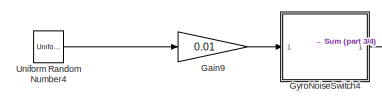
[diagram: Quadcopter Dynamics1/SensorModel/HILSensorMavModel1 - part 1/4, top left region]
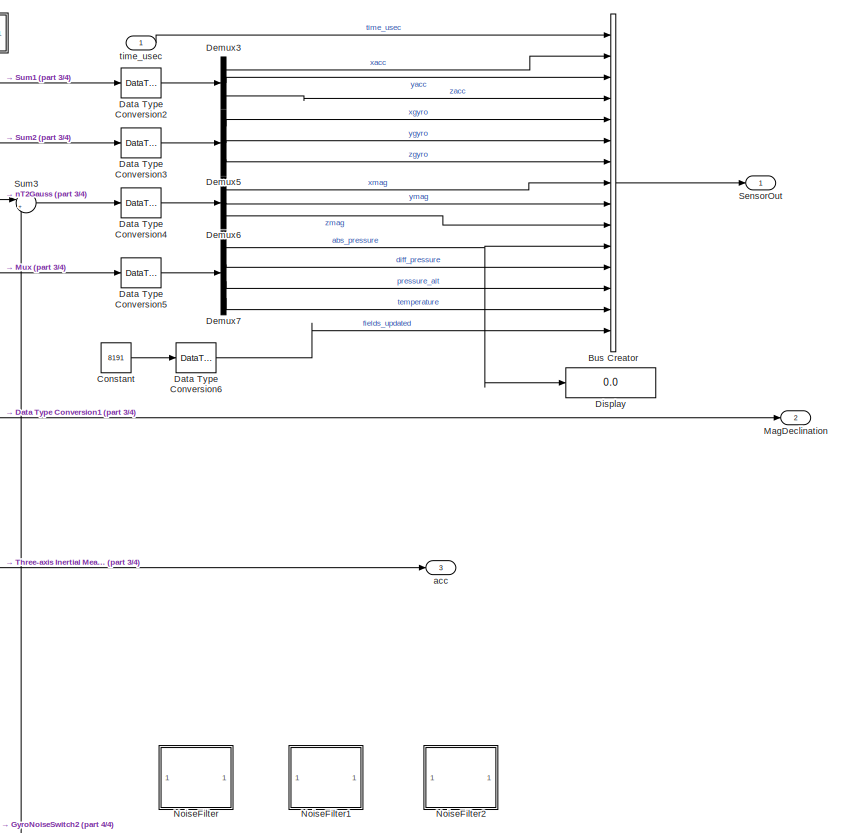
[diagram: Quadcopter Dynamics1/SensorModel/HILSensorMavModel1 - part 2/4, middle right region]
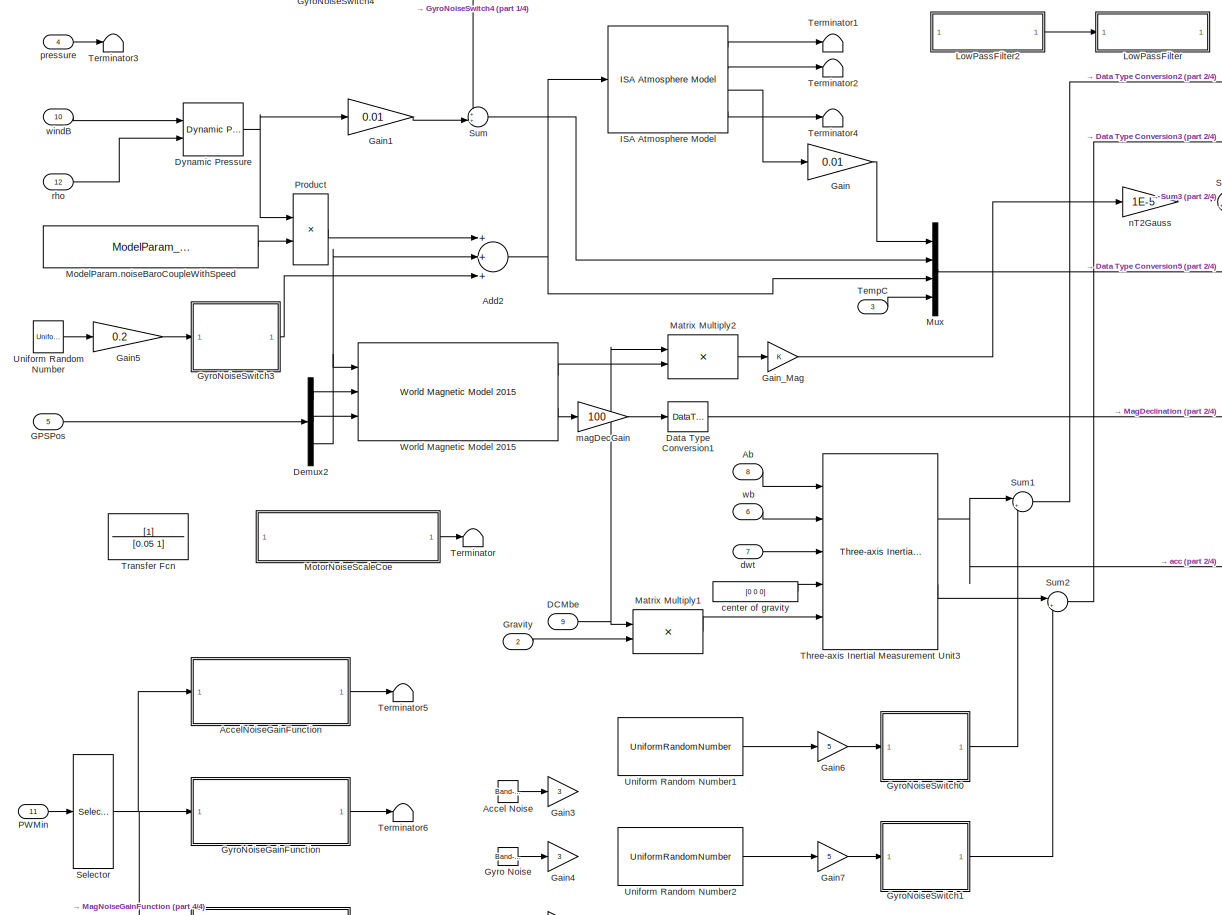
[diagram: Quadcopter Dynamics1/SensorModel/HILSensorMavModel1 - part 3/4, left side, full height]
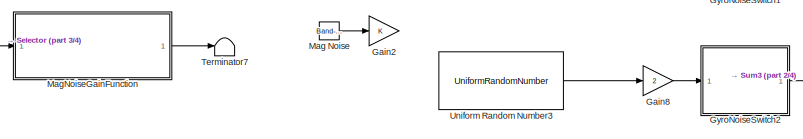
[diagram: Quadcopter Dynamics1/SensorModel/HILSensorMavModel1 - part 4/4, bottom left region]
BLOCK [SubSystem] Quadcopter Dynamics1/SensorModel/HILSensorMavModel1
  Ports = [12, 3]
  RequestExecContextInheritance = off
  Variant = off
BLOCK [Inport] Quadcopter Dynamics1/SensorModel/HILSensorMavModel1/Ab
  IconDisplay = Port number
  Port = 8
BLOCK [Reference] Quadcopter Dynamics1/SensorModel/HILSensorMavModel1/Accel Noise  REF=simulink/Sources/Band-Limited
White Noise
  Commented = on
  Ports = [0, 1]
  SourceBlock = simulink/Sources/Band-Limited\nWhite Noise
  SourceProductBaseCode = SL
  SourceProductName = Simulink
  SourceType = Band-Limited White Noise.
BLOCK [SubSystem] Quadcopter Dynamics1/SensorModel/HILSensorMavModel1/AccelNoiseGainFunction
  ErrorFcn = Stateflow.Translate.translate
  PermitHierarchicalResolution = ExplicitOnly
  Ports = [1, 1]
  RequestExecContextInheritance = off
  SFBlockType = MATLAB Function
  TreatAsAtomicUnit = on
  Variant = off
BLOCK [Demux] Quadcopter Dynamics1/SensorModel/HILSensorMavModel1/AccelNoiseGainFunction/ Demux 
  Outputs = 1
  Ports = [1, 1]
BLOCK [S-Function] Quadcopter Dynamics1/SensorModel/HILSensorMavModel1/AccelNoiseGainFunction/ SFunction 
  EnableBusSupport = on
  FunctionName = sf_sfun
  Parameters = ModelParam_noisePowerOffGainAccel,ModelParam_noisePowerOffGainAccelZ,ModelParam_noisePowerOnGainAccel,ModelParam_noisePowerOnGainAccelZ
  PortCounts = [1 2]
  Ports = [1, 2]
  SFcnIsStateOwnerBlock = off
  SFunctionDeploymentMode = off
  Tag = Stateflow S-Function Exp2_ControlSystemDemo 11
BLOCK [Terminator] Quadcopter Dynamics1/SensorModel/HILSensorMavModel1/AccelNoiseGainFunction/ Terminator 
BLOCK [Outport] Quadcopter Dynamics1/SensorModel/HILSensorMavModel1/AccelNoiseGainFunction/Gain
  IconDisplay = Port number
BLOCK [Inport] Quadcopter Dynamics1/SensorModel/HILSensorMavModel1/AccelNoiseGainFunction/theta
  IconDisplay = Port number
BLOCK [Sum] Quadcopter Dynamics1/SensorModel/HILSensorMavModel1/Add2
  InputSameDT = off
  Inputs = +++
  OutDataTypeStr = Inherit: Inherit via internal rule
  Ports = [3, 1]
  SaturateOnIntegerOverflow = off
BLOCK [BusCreator] Quadcopter Dynamics1/SensorModel/HILSensorMavModel1/Bus Creator
  DisplayOption = bar
  InheritFromInputs = on
  Inputs = 15
  NonVirtualBus = on
  OutDataTypeStr = Bus: MavLinkSensor
  Ports = [15, 1]
BLOCK [Constant] Quadcopter Dynamics1/SensorModel/HILSensorMavModel1/Constant
  Value = 8191
BLOCK [Inport] Quadcopter Dynamics1/SensorModel/HILSensorMavModel1/DCMbe
  IconDisplay = Port number
  Port = 9
BLOCK [DataTypeConversion] Quadcopter Dynamics1/SensorModel/HILSensorMavModel1/Data Type Conversion1
  OutDataTypeStr = int16
  RndMeth = Floor
  SaturateOnIntegerOverflow = off
BLOCK [DataTypeConversion] Quadcopter Dynamics1/SensorModel/HILSensorMavModel1/Data Type Conversion2
  OutDataTypeStr = single
  RndMeth = Floor
  SaturateOnIntegerOverflow = off
BLOCK [DataTypeConversion] Quadcopter Dynamics1/SensorModel/HILSensorMavModel1/Data Type Conversion3
  OutDataTypeStr = single
  RndMeth = Floor
  SaturateOnIntegerOverflow = off
BLOCK [DataTypeConversion] Quadcopter Dynamics1/SensorModel/HILSensorMavModel1/Data Type Conversion4
  OutDataTypeStr = single
  RndMeth = Floor
  SaturateOnIntegerOverflow = off
BLOCK [DataTypeConversion] Quadcopter Dynamics1/SensorModel/HILSensorMavModel1/Data Type Conversion5
  OutDataTypeStr = single
  RndMeth = Floor
  SaturateOnIntegerOverflow = off
BLOCK [DataTypeConversion] Quadcopter Dynamics1/SensorModel/HILSensorMavModel1/Data Type Conversion6
  OutDataTypeStr = uint32
  RndMeth = Floor
  SaturateOnIntegerOverflow = off
BLOCK [Demux] Quadcopter Dynamics1/SensorModel/HILSensorMavModel1/Demux2
  DisplayOption = bar
  Outputs = 3
  Ports = [1, 3]
BLOCK [Demux] Quadcopter Dynamics1/SensorModel/HILSensorMavModel1/Demux3
  DisplayOption = bar
  Outputs = 3
  Ports = [1, 3]
BLOCK [Demux] Quadcopter Dynamics1/SensorModel/HILSensorMavModel1/Demux5
  DisplayOption = bar
  Outputs = 3
  Ports = [1, 3]
BLOCK [Demux] Quadcopter Dynamics1/SensorModel/HILSensorMavModel1/Demux6
  DisplayOption = bar
  Outputs = 3
  Ports = [1, 3]
BLOCK [Demux] Quadcopter Dynamics1/SensorModel/HILSensorMavModel1/Demux7
  DisplayOption = bar
  Ports = [1, 4]
BLOCK [Display] Quadcopter Dynamics1/SensorModel/HILSensorMavModel1/Display
  Decimation = 1
  Ports = [1]
BLOCK [Reference] Quadcopter Dynamics1/SensorModel/HILSensorMavModel1/Dynamic Pressure  REF=aerolibasang/Dynamic Pressure
  Ports = [2, 1]
  SourceBlock = aerolibasang/Dynamic Pressure
  SourceProductBaseCode = AE
  SourceProductName = Aerospace Blockset
  SourceType = Dynamic Pressure
BLOCK [Inport] Quadcopter Dynamics1/SensorModel/HILSensorMavModel1/GPSPos
  IconDisplay = Port number
  Port = 5
BLOCK [Gain] Quadcopter Dynamics1/SensorModel/HILSensorMavModel1/Gain
  Gain = 0.01
  OutDataTypeStr = Inherit: Inherit via internal rule
  ParamDataTypeStr = Inherit: Inherit via internal rule
  SaturateOnIntegerOverflow = off
BLOCK [Gain] Quadcopter Dynamics1/SensorModel/HILSensorMavModel1/Gain1
  Gain = 0.01
  OutDataTypeStr = Inherit: Inherit via internal rule
  ParamDataTypeStr = Inherit: Inherit via internal rule
  SaturateOnIntegerOverflow = off
BLOCK [Gain] Quadcopter Dynamics1/SensorModel/HILSensorMavModel1/Gain2
  Commented = on
  OutDataTypeStr = Inherit: Inherit via internal rule
  ParamDataTypeStr = Inherit: Inherit via internal rule
  SaturateOnIntegerOverflow = off
BLOCK [Gain] Quadcopter Dynamics1/SensorModel/HILSensorMavModel1/Gain3
  Commented = on
  Gain = 3
  OutDataTypeStr = Inherit: Inherit via internal rule
  ParamDataTypeStr = Inherit: Inherit via internal rule
  SaturateOnIntegerOverflow = off
BLOCK [Gain] Quadcopter Dynamics1/SensorModel/HILSensorMavModel1/Gain4
  Commented = on
  Gain = 3
  OutDataTypeStr = Inherit: Inherit via internal rule
  ParamDataTypeStr = Inherit: Inherit via internal rule
  SaturateOnIntegerOverflow = off
BLOCK [Gain] Quadcopter Dynamics1/SensorModel/HILSensorMavModel1/Gain5
  Gain = 0.2
  OutDataTypeStr = Inherit: Inherit via internal rule
  ParamDataTypeStr = Inherit: Inherit via internal rule
  SaturateOnIntegerOverflow = off
BLOCK [Gain] Quadcopter Dynamics1/SensorModel/HILSensorMavModel1/Gain6
  Gain = 5
  OutDataTypeStr = Inherit: Inherit via internal rule
  ParamDataTypeStr = Inherit: Inherit via internal rule
  SaturateOnIntegerOverflow = off
BLOCK [Gain] Quadcopter Dynamics1/SensorModel/HILSensorMavModel1/Gain7
  Gain = 5
  OutDataTypeStr = Inherit: Inherit via internal rule
  ParamDataTypeStr = Inherit: Inherit via internal rule
  SaturateOnIntegerOverflow = off
BLOCK [Gain] Quadcopter Dynamics1/SensorModel/HILSensorMavModel1/Gain8
  Gain = 2
  OutDataTypeStr = Inherit: Inherit via internal rule
  ParamDataTypeStr = Inherit: Inherit via internal rule
  SaturateOnIntegerOverflow = off
BLOCK [Gain] Quadcopter Dynamics1/SensorModel/HILSensorMavModel1/Gain9
  Gain = 0.01
  OutDataTypeStr = Inherit: Inherit via internal rule
  ParamDataTypeStr = Inherit: Inherit via internal rule
  SaturateOnIntegerOverflow = off
BLOCK [Gain] Quadcopter Dynamics1/SensorModel/HILSensorMavModel1/Gain_Mag
  OutDataTypeStr = Inherit: Inherit via internal rule
  ParamDataTypeStr = Inherit: Inherit via internal rule
  SaturateOnIntegerOverflow = off
BLOCK [Inport] Quadcopter Dynamics1/SensorModel/HILSensorMavModel1/Gravity
  IconDisplay = Port number
  Port = 2
BLOCK [Reference] Quadcopter Dynamics1/SensorModel/HILSensorMavModel1/Gyro Noise  REF=simulink/Sources/Band-Limited
White Noise
  Commented = on
  Ports = [0, 1]
  SourceBlock = simulink/Sources/Band-Limited\nWhite Noise
  SourceProductBaseCode = SL
  SourceProductName = Simulink
  SourceType = Band-Limited White Noise.
BLOCK [SubSystem] Quadcopter Dynamics1/SensorModel/HILSensorMavModel1/GyroNoiseGainFunction
  ErrorFcn = Stateflow.Translate.translate
  PermitHierarchicalResolution = ExplicitOnly
  Ports = [1, 1]
  RequestExecContextInheritance = off
  SFBlockType = MATLAB Function
  TreatAsAtomicUnit = on
  Variant = off
BLOCK [Demux] Quadcopter Dynamics1/SensorModel/HILSensorMavModel1/GyroNoiseGainFunction/ Demux 
  Outputs = 1
  Ports = [1, 1]
BLOCK [S-Function] Quadcopter Dynamics1/SensorModel/HILSensorMavModel1/GyroNoiseGainFunction/ SFunction 
  EnableBusSupport = on
  FunctionName = sf_sfun
  Parameters = ModelParam_noisePowerOffGainGyro,ModelParam_noisePowerOffGainGyroZ,ModelParam_noisePowerOnGainGyro,ModelParam_noisePowerOnGainGyroZ
  PortCounts = [1 2]
  Ports = [1, 2]
  SFcnIsStateOwnerBlock = off
  SFunctionDeploymentMode = off
  Tag = Stateflow S-Function Exp2_ControlSystemDemo 12
BLOCK [Terminator] Quadcopter Dynamics1/SensorModel/HILSensorMavModel1/GyroNoiseGainFunction/ Terminator 
BLOCK [Outport] Quadcopter Dynamics1/SensorModel/HILSensorMavModel1/GyroNoiseGainFunction/Gain
  IconDisplay = Port number
BLOCK [Inport] Quadcopter Dynamics1/SensorModel/HILSensorMavModel1/GyroNoiseGainFunction/theta
  IconDisplay = Port number
BLOCK [SubSystem] Quadcopter Dynamics1/SensorModel/HILSensorMavModel1/GyroNoiseSwitch0
  Ports = [1, 1]
  RequestExecContextInheritance = off
  Variant = off
BLOCK [Constant] Quadcopter Dynamics1/SensorModel/HILSensorMavModel1/GyroNoiseSwitch0/Constant1
  Value = ModelParam_GlobalNoiseGainSwitch
BLOCK [Constant] Quadcopter Dynamics1/SensorModel/HILSensorMavModel1/GyroNoiseSwitch0/Constant2
  Value = 0.2
BLOCK [Gain] Quadcopter Dynamics1/SensorModel/HILSensorMavModel1/GyroNoiseSwitch0/Gain2
  Gain = 0.8
  OutDataTypeStr = Inherit: Inherit via internal rule
  ParamDataTypeStr = Inherit: Inherit via internal rule
  SaturateOnIntegerOverflow = off
BLOCK [Inport] Quadcopter Dynamics1/SensorModel/HILSensorMavModel1/GyroNoiseSwitch0/In1
  IconDisplay = Port number
BLOCK [Outport] Quadcopter Dynamics1/SensorModel/HILSensorMavModel1/GyroNoiseSwitch0/Out1
  IconDisplay = Port number
BLOCK [Product] Quadcopter Dynamics1/SensorModel/HILSensorMavModel1/GyroNoiseSwitch0/Product4
  InputSameDT = off
  OutDataTypeStr = Inherit: Inherit via internal rule
  Ports = [2, 1]
  RndMeth = Floor
  SaturateOnIntegerOverflow = off
BLOCK [Sum] Quadcopter Dynamics1/SensorModel/HILSensorMavModel1/GyroNoiseSwitch0/Sum
  IconShape = round
  InputSameDT = off
  Inputs = |++
  OutDataTypeStr = Inherit: Inherit via internal rule
  Ports = [2, 1]
  SaturateOnIntegerOverflow = off
BLOCK [SubSystem] Quadcopter Dynamics1/SensorModel/HILSensorMavModel1/GyroNoiseSwitch1
  Ports = [1, 1]
  RequestExecContextInheritance = off
  Variant = off
BLOCK [Constant] Quadcopter Dynamics1/SensorModel/HILSensorMavModel1/GyroNoiseSwitch1/Constant1
  Value = ModelParam_GlobalNoiseGainSwitch
BLOCK [Constant] Quadcopter Dynamics1/SensorModel/HILSensorMavModel1/GyroNoiseSwitch1/Constant2
  Value = 0.2
BLOCK [Gain] Quadcopter Dynamics1/SensorModel/HILSensorMavModel1/GyroNoiseSwitch1/Gain2
  Gain = 0.8
  OutDataTypeStr = Inherit: Inherit via internal rule
  ParamDataTypeStr = Inherit: Inherit via internal rule
  SaturateOnIntegerOverflow = off
BLOCK [Inport] Quadcopter Dynamics1/SensorModel/HILSensorMavModel1/GyroNoiseSwitch1/In1
  IconDisplay = Port number
BLOCK [Outport] Quadcopter Dynamics1/SensorModel/HILSensorMavModel1/GyroNoiseSwitch1/Out1
  IconDisplay = Port number
BLOCK [Product] Quadcopter Dynamics1/SensorModel/HILSensorMavModel1/GyroNoiseSwitch1/Product4
  InputSameDT = off
  OutDataTypeStr = Inherit: Inherit via internal rule
  Ports = [2, 1]
  RndMeth = Floor
  SaturateOnIntegerOverflow = off
BLOCK [Sum] Quadcopter Dynamics1/SensorModel/HILSensorMavModel1/GyroNoiseSwitch1/Sum
  IconShape = round
  InputSameDT = off
  Inputs = |++
  OutDataTypeStr = Inherit: Inherit via internal rule
  Ports = [2, 1]
  SaturateOnIntegerOverflow = off
BLOCK [SubSystem] Quadcopter Dynamics1/SensorModel/HILSensorMavModel1/GyroNoiseSwitch2
  Ports = [1, 1]
  RequestExecContextInheritance = off
  Variant = off
BLOCK [Constant] Quadcopter Dynamics1/SensorModel/HILSensorMavModel1/GyroNoiseSwitch2/Constant1
  Value = ModelParam_GlobalNoiseGainSwitch
BLOCK [Constant] Quadcopter Dynamics1/SensorModel/HILSensorMavModel1/GyroNoiseSwitch2/Constant2
  Value = 0.2
BLOCK [Gain] Quadcopter Dynamics1/SensorModel/HILSensorMavModel1/GyroNoiseSwitch2/Gain2
  Gain = 0.8
  OutDataTypeStr = Inherit: Inherit via internal rule
  ParamDataTypeStr = Inherit: Inherit via internal rule
  SaturateOnIntegerOverflow = off
BLOCK [Inport] Quadcopter Dynamics1/SensorModel/HILSensorMavModel1/GyroNoiseSwitch2/In1
  IconDisplay = Port number
BLOCK [Outport] Quadcopter Dynamics1/SensorModel/HILSensorMavModel1/GyroNoiseSwitch2/Out1
  IconDisplay = Port number
BLOCK [Product] Quadcopter Dynamics1/SensorModel/HILSensorMavModel1/GyroNoiseSwitch2/Product4
  InputSameDT = off
  OutDataTypeStr = Inherit: Inherit via internal rule
  Ports = [2, 1]
  RndMeth = Floor
  SaturateOnIntegerOverflow = off
BLOCK [Sum] Quadcopter Dynamics1/SensorModel/HILSensorMavModel1/GyroNoiseSwitch2/Sum
  IconShape = round
  InputSameDT = off
  Inputs = |++
  OutDataTypeStr = Inherit: Inherit via internal rule
  Ports = [2, 1]
  SaturateOnIntegerOverflow = off
BLOCK [SubSystem] Quadcopter Dynamics1/SensorModel/HILSensorMavModel1/GyroNoiseSwitch3
  Ports = [1, 1]
  RequestExecContextInheritance = off
  Variant = off
BLOCK [Constant] Quadcopter Dynamics1/SensorModel/HILSensorMavModel1/GyroNoiseSwitch3/Constant1
  Value = ModelParam_GlobalNoiseGainSwitch
BLOCK [Constant] Quadcopter Dynamics1/SensorModel/HILSensorMavModel1/GyroNoiseSwitch3/Constant2
  Value = 0.3
BLOCK [Gain] Quadcopter Dynamics1/SensorModel/HILSensorMavModel1/GyroNoiseSwitch3/Gain2
  Gain = 0.7
  OutDataTypeStr = Inherit: Inherit via internal rule
  ParamDataTypeStr = Inherit: Inherit via internal rule
  SaturateOnIntegerOverflow = off
BLOCK [Inport] Quadcopter Dynamics1/SensorModel/HILSensorMavModel1/GyroNoiseSwitch3/In1
  IconDisplay = Port number
BLOCK [Outport] Quadcopter Dynamics1/SensorModel/HILSensorMavModel1/GyroNoiseSwitch3/Out1
  IconDisplay = Port number
BLOCK [Product] Quadcopter Dynamics1/SensorModel/HILSensorMavModel1/GyroNoiseSwitch3/Product4
  InputSameDT = off
  OutDataTypeStr = Inherit: Inherit via internal rule
  Ports = [2, 1]
  RndMeth = Floor
  SaturateOnIntegerOverflow = off
BLOCK [Sum] Quadcopter Dynamics1/SensorModel/HILSensorMavModel1/GyroNoiseSwitch3/Sum
  IconShape = round
  InputSameDT = off
  Inputs = |++
  OutDataTypeStr = Inherit: Inherit via internal rule
  Ports = [2, 1]
  SaturateOnIntegerOverflow = off
BLOCK [SubSystem] Quadcopter Dynamics1/SensorModel/HILSensorMavModel1/GyroNoiseSwitch4
  Ports = [1, 1]
  RequestExecContextInheritance = off
  Variant = off
BLOCK [Constant] Quadcopter Dynamics1/SensorModel/HILSensorMavModel1/GyroNoiseSwitch4/Constant1
  Value = ModelParam_GlobalNoiseGainSwitch
BLOCK [Constant] Quadcopter Dynamics1/SensorModel/HILSensorMavModel1/GyroNoiseSwitch4/Constant2
  Value = 0.3
BLOCK [Gain] Quadcopter Dynamics1/SensorModel/HILSensorMavModel1/GyroNoiseSwitch4/Gain2
  Gain = 0.7
  OutDataTypeStr = Inherit: Inherit via internal rule
  ParamDataTypeStr = Inherit: Inherit via internal rule
  SaturateOnIntegerOverflow = off
BLOCK [Inport] Quadcopter Dynamics1/SensorModel/HILSensorMavModel1/GyroNoiseSwitch4/In1
  IconDisplay = Port number
BLOCK [Outport] Quadcopter Dynamics1/SensorModel/HILSensorMavModel1/GyroNoiseSwitch4/Out1
  IconDisplay = Port number
BLOCK [Product] Quadcopter Dynamics1/SensorModel/HILSensorMavModel1/GyroNoiseSwitch4/Product4
  InputSameDT = off
  OutDataTypeStr = Inherit: Inherit via internal rule
  Ports = [2, 1]
  RndMeth = Floor
  SaturateOnIntegerOverflow = off
BLOCK [Sum] Quadcopter Dynamics1/SensorModel/HILSensorMavModel1/GyroNoiseSwitch4/Sum
  IconShape = round
  InputSameDT = off
  Inputs = |++
  OutDataTypeStr = Inherit: Inherit via internal rule
  Ports = [2, 1]
  SaturateOnIntegerOverflow = off
BLOCK [Reference] Quadcopter Dynamics1/SensorModel/HILSensorMavModel1/ISA Atmosphere Model  REF=aerolibatmos2/ISA Atmosphere Model
  Ports = [1, 4]
  SourceBlock = aerolibatmos2/ISA Atmosphere Model
  SourceProductBaseCode = AE
  SourceProductName = Aerospace Blockset
  SourceType = International Standard Atmosphere Model
BLOCK [SubSystem] Quadcopter Dynamics1/SensorModel/HILSensorMavModel1/LowPassFilter
  Commented = on
  Ports = [1, 1]
  RequestExecContextInheritance = off
  Variant = off
BLOCK [Demux] Quadcopter Dynamics1/SensorModel/HILSensorMavModel1/LowPassFilter/Demux1
  DisplayOption = bar
  Outputs = 3
  Ports = [1, 3]
BLOCK [Mux] Quadcopter Dynamics1/SensorModel/HILSensorMavModel1/LowPassFilter/Mux1
  DisplayOption = bar
  Inputs = 3
  Ports = [3, 1]
BLOCK [Inport] Quadcopter Dynamics1/SensorModel/HILSensorMavModel1/LowPassFilter/gyroDataIn
  IconDisplay = Port number
BLOCK [Outport] Quadcopter Dynamics1/SensorModel/HILSensorMavModel1/LowPassFilter/gyroDataOut
  IconDisplay = Port number
BLOCK [TransferFcn] Quadcopter Dynamics1/SensorModel/HILSensorMavModel1/LowPassFilter/x
  Denominator = [ModelParam_noiseLowPassFilterCoeGyro 1]
BLOCK [TransferFcn] Quadcopter Dynamics1/SensorModel/HILSensorMavModel1/LowPassFilter/y
  Denominator = [ModelParam_noiseLowPassFilterCoeGyro 1]
BLOCK [TransferFcn] Quadcopter Dynamics1/SensorModel/HILSensorMavModel1/LowPassFilter/z
  Denominator = [ModelParam_noiseLowPassFilterCoeGyro 1]
BLOCK [SubSystem] Quadcopter Dynamics1/SensorModel/HILSensorMavModel1/LowPassFilter2
  Commented = on
  Ports = [1, 1]
  RequestExecContextInheritance = off
  Variant = off
BLOCK [Demux] Quadcopter Dynamics1/SensorModel/HILSensorMavModel1/LowPassFilter2/Demux1
  DisplayOption = bar
  Outputs = 3
  Ports = [1, 3]
BLOCK [Mux] Quadcopter Dynamics1/SensorModel/HILSensorMavModel1/LowPassFilter2/Mux1
  DisplayOption = bar
  Inputs = 3
  Ports = [3, 1]
BLOCK [Inport] Quadcopter Dynamics1/SensorModel/HILSensorMavModel1/LowPassFilter2/accelDataIn
  IconDisplay = Port number
BLOCK [Outport] Quadcopter Dynamics1/SensorModel/HILSensorMavModel1/LowPassFilter2/accelDataOut
  IconDisplay = Port number
BLOCK [TransferFcn] Quadcopter Dynamics1/SensorModel/HILSensorMavModel1/LowPassFilter2/x
  Denominator = [ModelParam_noiseLowPassFilterCoeAccel 1]
BLOCK [TransferFcn] Quadcopter Dynamics1/SensorModel/HILSensorMavModel1/LowPassFilter2/y
  Denominator = [ModelParam_noiseLowPassFilterCoeAccel 1]
BLOCK [TransferFcn] Quadcopter Dynamics1/SensorModel/HILSensorMavModel1/LowPassFilter2/z
  Denominator = [ModelParam_noiseLowPassFilterCoeAccel 1]
BLOCK [Reference] Quadcopter Dynamics1/SensorModel/HILSensorMavModel1/Mag Noise  REF=simulink/Sources/Band-Limited
White Noise
  Commented = on
  Ports = [0, 1]
  SourceBlock = simulink/Sources/Band-Limited\nWhite Noise
  SourceProductBaseCode = SL
  SourceProductName = Simulink
  SourceType = Band-Limited White Noise.
BLOCK [Outport] Quadcopter Dynamics1/SensorModel/HILSensorMavModel1/MagDeclination
  IconDisplay = Port number
  Port = 2
BLOCK [SubSystem] Quadcopter Dynamics1/SensorModel/HILSensorMavModel1/MagNoiseGainFunction
  ErrorFcn = Stateflow.Translate.translate
  PermitHierarchicalResolution = ExplicitOnly
  Ports = [1, 1]
  RequestExecContextInheritance = off
  SFBlockType = MATLAB Function
  TreatAsAtomicUnit = on
  Variant = off
BLOCK [Demux] Quadcopter Dynamics1/SensorModel/HILSensorMavModel1/MagNoiseGainFunction/ Demux 
  Outputs = 1
  Ports = [1, 1]
BLOCK [S-Function] Quadcopter Dynamics1/SensorModel/HILSensorMavModel1/MagNoiseGainFunction/ SFunction 
  EnableBusSupport = on
  FunctionName = sf_sfun
  Parameters = ModelParam_noisePowerOffGainMag,ModelParam_noisePowerOffGainMagZ,ModelParam_noisePowerOnGainMag,ModelParam_noisePowerOnGainMagZ
  PortCounts = [1 2]
  Ports = [1, 2]
  SFcnIsStateOwnerBlock = off
  SFunctionDeploymentMode = off
  Tag = Stateflow S-Function Exp2_ControlSystemDemo 13
BLOCK [Terminator] Quadcopter Dynamics1/SensorModel/HILSensorMavModel1/MagNoiseGainFunction/ Terminator 
BLOCK [Outport] Quadcopter Dynamics1/SensorModel/HILSensorMavModel1/MagNoiseGainFunction/Gain
  IconDisplay = Port number
BLOCK [Inport] Quadcopter Dynamics1/SensorModel/HILSensorMavModel1/MagNoiseGainFunction/theta
  IconDisplay = Port number
BLOCK [Product] Quadcopter Dynamics1/SensorModel/HILSensorMavModel1/Matrix Multiply1
  InputSameDT = off
  Multiplication = Matrix(*)
  OutDataTypeStr = Inherit: Inherit via internal rule
  Ports = [2, 1]
  RndMeth = Floor
  SaturateOnIntegerOverflow = off
BLOCK [Product] Quadcopter Dynamics1/SensorModel/HILSensorMavModel1/Matrix Multiply2
  InputSameDT = off
  Multiplication = Matrix(*)
  OutDataTypeStr = Inherit: Inherit via internal rule
  Ports = [2, 1]
  RndMeth = Floor
  SaturateOnIntegerOverflow = off
BLOCK [Constant] Quadcopter Dynamics1/SensorModel/HILSensorMavModel1/ModelParam.noiseBaroCoupleWithSpeed
  Value = ModelParam_noiseBaroCoupleWithSpeed
BLOCK [SubSystem] Quadcopter Dynamics1/SensorModel/HILSensorMavModel1/MotorNoiseScaleCoe
  Commented = on
  ErrorFcn = Stateflow.Translate.translate
  PermitHierarchicalResolution = ExplicitOnly
  Ports = [1, 1]
  RequestExecContextInheritance = off
  SFBlockType = MATLAB Function
  TreatAsAtomicUnit = on
  Variant = off
BLOCK [Demux] Quadcopter Dynamics1/SensorModel/HILSensorMavModel1/MotorNoiseScaleCoe/ Demux 
  Outputs = 1
  Ports = [1, 1]
BLOCK [S-Function] Quadcopter Dynamics1/SensorModel/HILSensorMavModel1/MotorNoiseScaleCoe/ SFunction 
  EnableBusSupport = on
  FunctionName = sf_sfun
  PortCounts = [1 2]
  Ports = [1, 2]
  SFcnIsStateOwnerBlock = off
  SFunctionDeploymentMode = off
  Tag = Stateflow S-Function Exp2_ControlSystemDemo 16
BLOCK [Terminator] Quadcopter Dynamics1/SensorModel/HILSensorMavModel1/MotorNoiseScaleCoe/ Terminator 
BLOCK [Outport] Quadcopter Dynamics1/SensorModel/HILSensorMavModel1/MotorNoiseScaleCoe/NoiseScaleCoe
  IconDisplay = Port number
BLOCK [Inport] Quadcopter Dynamics1/SensorModel/HILSensorMavModel1/MotorNoiseScaleCoe/PWMin
  IconDisplay = Port number
BLOCK [Mux] Quadcopter Dynamics1/SensorModel/HILSensorMavModel1/Mux
  DisplayOption = bar
  Ports = [4, 1]
BLOCK [SubSystem] Quadcopter Dynamics1/SensorModel/HILSensorMavModel1/NoiseFilter
  Commented = on
  Ports = [1, 1]
  RequestExecContextInheritance = off
  Variant = off
BLOCK [Demux] Quadcopter Dynamics1/SensorModel/HILSensorMavModel1/NoiseFilter/Demux
  DisplayOption = bar
  Outputs = 3
  Ports = [1, 3]
BLOCK [Inport] Quadcopter Dynamics1/SensorModel/HILSensorMavModel1/NoiseFilter/In1
  IconDisplay = Port number
BLOCK [Mux] Quadcopter Dynamics1/SensorModel/HILSensorMavModel1/NoiseFilter/Mux1
  DisplayOption = bar
  Inputs = 3
  Ports = [3, 1]
BLOCK [Outport] Quadcopter Dynamics1/SensorModel/HILSensorMavModel1/NoiseFilter/Out1
  IconDisplay = Port number
BLOCK [TransferFcn] Quadcopter Dynamics1/SensorModel/HILSensorMavModel1/NoiseFilter/Transfer Fcn4
  Denominator = [0.04 1]
BLOCK [TransferFcn] Quadcopter Dynamics1/SensorModel/HILSensorMavModel1/NoiseFilter/Transfer Fcn5
  Denominator = [0.04 1]
BLOCK [TransferFcn] Quadcopter Dynamics1/SensorModel/HILSensorMavModel1/NoiseFilter/Transfer Fcn6
  Denominator = [0.04 1]
BLOCK [SubSystem] Quadcopter Dynamics1/SensorModel/HILSensorMavModel1/NoiseFilter1
  Commented = on
  Ports = [1, 1]
  RequestExecContextInheritance = off
  Variant = off
BLOCK [Demux] Quadcopter Dynamics1/SensorModel/HILSensorMavModel1/NoiseFilter1/Demux
  DisplayOption = bar
  Outputs = 3
  Ports = [1, 3]
BLOCK [Inport] Quadcopter Dynamics1/SensorModel/HILSensorMavModel1/NoiseFilter1/In1
  IconDisplay = Port number
BLOCK [Mux] Quadcopter Dynamics1/SensorModel/HILSensorMavModel1/NoiseFilter1/Mux1
  DisplayOption = bar
  Inputs = 3
  Ports = [3, 1]
BLOCK [Outport] Quadcopter Dynamics1/SensorModel/HILSensorMavModel1/NoiseFilter1/Out1
  IconDisplay = Port number
BLOCK [TransferFcn] Quadcopter Dynamics1/SensorModel/HILSensorMavModel1/NoiseFilter1/Transfer Fcn4
  Denominator = [0.04 1]
BLOCK [TransferFcn] Quadcopter Dynamics1/SensorModel/HILSensorMavModel1/NoiseFilter1/Transfer Fcn5
  Denominator = [0.04 1]
BLOCK [TransferFcn] Quadcopter Dynamics1/SensorModel/HILSensorMavModel1/NoiseFilter1/Transfer Fcn6
  Denominator = [0.04 1]
BLOCK [SubSystem] Quadcopter Dynamics1/SensorModel/HILSensorMavModel1/NoiseFilter2
  Commented = on
  Ports = [1, 1]
  RequestExecContextInheritance = off
  Variant = off
BLOCK [Demux] Quadcopter Dynamics1/SensorModel/HILSensorMavModel1/NoiseFilter2/Demux
  DisplayOption = bar
  Outputs = 3
  Ports = [1, 3]
BLOCK [Inport] Quadcopter Dynamics1/SensorModel/HILSensorMavModel1/NoiseFilter2/In1
  IconDisplay = Port number
BLOCK [Mux] Quadcopter Dynamics1/SensorModel/HILSensorMavModel1/NoiseFilter2/Mux1
  DisplayOption = bar
  Inputs = 3
  Ports = [3, 1]
BLOCK [Outport] Quadcopter Dynamics1/SensorModel/HILSensorMavModel1/NoiseFilter2/Out1
  IconDisplay = Port number
BLOCK [TransferFcn] Quadcopter Dynamics1/SensorModel/HILSensorMavModel1/NoiseFilter2/Transfer Fcn4
  Denominator = [0.05 1]
BLOCK [TransferFcn] Quadcopter Dynamics1/SensorModel/HILSensorMavModel1/NoiseFilter2/Transfer Fcn5
  Denominator = [0.05 1]
BLOCK [TransferFcn] Quadcopter Dynamics1/SensorModel/HILSensorMavModel1/NoiseFilter2/Transfer Fcn6
  Denominator = [0.05 1]
BLOCK [Inport] Quadcopter Dynamics1/SensorModel/HILSensorMavModel1/PWMin
  IconDisplay = Port number
  Port = 11
BLOCK [Product] Quadcopter Dynamics1/SensorModel/HILSensorMavModel1/Product
  InputSameDT = off
  OutDataTypeStr = Inherit: Inherit via internal rule
  Ports = [2, 1]
  RndMeth = Floor
  SaturateOnIntegerOverflow = off
BLOCK [Selector] Quadcopter Dynamics1/SensorModel/HILSensorMavModel1/Selector
  IndexOptions = Index vector (dialog)
  Indices = [1]
  InputPortWidth = 8
  OutputSizes = 1
  Ports = [1, 1]
BLOCK [Outport] Quadcopter Dynamics1/SensorModel/HILSensorMavModel1/SensorOut
  IconDisplay = Port number
BLOCK [Sum] Quadcopter Dynamics1/SensorModel/HILSensorMavModel1/Sum
  IconShape = round
  InputSameDT = off
  Inputs = ++|
  OutDataTypeStr = Inherit: Inherit via internal rule
  Ports = [2, 1]
  SaturateOnIntegerOverflow = off
BLOCK [Sum] Quadcopter Dynamics1/SensorModel/HILSensorMavModel1/Sum1
  IconShape = round
  InputSameDT = off
  Inputs = |++
  OutDataTypeStr = Inherit: Inherit via internal rule
  Ports = [2, 1]
  SaturateOnIntegerOverflow = off
BLOCK [Sum] Quadcopter Dynamics1/SensorModel/HILSensorMavModel1/Sum2
  IconShape = round
  InputSameDT = off
  Inputs = |++
  OutDataTypeStr = Inherit: Inherit via internal rule
  Ports = [2, 1]
  SaturateOnIntegerOverflow = off
BLOCK [Sum] Quadcopter Dynamics1/SensorModel/HILSensorMavModel1/Sum3
  IconShape = round
  InputSameDT = off
  Inputs = |++
  OutDataTypeStr = Inherit: Inherit via internal rule
  Ports = [2, 1]
  SaturateOnIntegerOverflow = off
BLOCK [Inport] Quadcopter Dynamics1/SensorModel/HILSensorMavModel1/TempC
  IconDisplay = Port number
  Port = 3
BLOCK [Terminator] Quadcopter Dynamics1/SensorModel/HILSensorMavModel1/Terminator
  Commented = on
BLOCK [Terminator] Quadcopter Dynamics1/SensorModel/HILSensorMavModel1/Terminator1
  Commented = on
BLOCK [Terminator] Quadcopter Dynamics1/SensorModel/HILSensorMavModel1/Terminator2
  Commented = on
BLOCK [Terminator] Quadcopter Dynamics1/SensorModel/HILSensorMavModel1/Terminator3
BLOCK [Terminator] Quadcopter Dynamics1/SensorModel/HILSensorMavModel1/Terminator4
  Commented = on
BLOCK [Terminator] Quadcopter Dynamics1/SensorModel/HILSensorMavModel1/Terminator5
BLOCK [Terminator] Quadcopter Dynamics1/SensorModel/HILSensorMavModel1/Terminator6
BLOCK [Terminator] Quadcopter Dynamics1/SensorModel/HILSensorMavModel1/Terminator7
BLOCK [Reference] Quadcopter Dynamics1/SensorModel/HILSensorMavModel1/Three-axis Inertial Measurement Unit3  REF=aerolibnav/Three-axis Inertial
Measurement Unit
  Ports = [5, 2]
  SourceBlock = aerolibnav/Three-axis Inertial\nMeasurement Unit
  SourceProductBaseCode = AE
  SourceProductName = Aerospace Blockset
  SourceType = Three-axis Inertial Measurement Unit
BLOCK [TransferFcn] Quadcopter Dynamics1/SensorModel/HILSensorMavModel1/Transfer Fcn
  Commented = on
  Denominator = [0.05 1]
BLOCK [UniformRandomNumber] Quadcopter Dynamics1/SensorModel/HILSensorMavModel1/Uniform Random Number
  Maximum = 2
  Minimum = -2
  SampleTime = ModelParam_timeSampBaro
  Seed = 15634
BLOCK [UniformRandomNumber] Quadcopter Dynamics1/SensorModel/HILSensorMavModel1/Uniform Random Number1
  Maximum = [0.1,0.1,0.2]
  Minimum = -[0.1,0.1,0.2]
  SampleTime = 0.004
  Seed = [12233,645554,678766]
BLOCK [UniformRandomNumber] Quadcopter Dynamics1/SensorModel/HILSensorMavModel1/Uniform Random Number2
  Maximum = [0.01,0.01,0.01]
  Minimum = -[0.01,0.01,0.01]
  SampleTime = 0.004
  Seed = [3243,44556,2334343]
BLOCK [UniformRandomNumber] Quadcopter Dynamics1/SensorModel/HILSensorMavModel1/Uniform Random Number3
  Maximum = [0.01,0.01,0.01]
  Minimum = -[0.01,0.01,0.01]
  SampleTime = 0.004
  Seed = [45465,454534,1234232]
BLOCK [UniformRandomNumber] Quadcopter Dynamics1/SensorModel/HILSensorMavModel1/Uniform Random Number4
  SampleTime = 0.01
  Seed = 25634
BLOCK [Reference] Quadcopter Dynamics1/SensorModel/HILSensorMavModel1/World Magnetic Model 2015  REF=aerolibgravity2/World Magnetic Model 2015
  Ports = [3, 2]
  SourceBlock = aerolibgravity2/World Magnetic Model 2015
  SourceProductBaseCode = AE
  SourceProductName = Aerospace Blockset
  SourceType = WorldMagneticModel2015
BLOCK [Outport] Quadcopter Dynamics1/SensorModel/HILSensorMavModel1/acc
  IconDisplay = Port number
  Port = 3
BLOCK [Constant] Quadcopter Dynamics1/SensorModel/HILSensorMavModel1/center of gravity
  Value = [0 0 0]
BLOCK [Inport] Quadcopter Dynamics1/SensorModel/HILSensorMavModel1/dwt
  IconDisplay = Port number
  Port = 7
BLOCK [Gain] Quadcopter Dynamics1/SensorModel/HILSensorMavModel1/magDecGain
  Gain = 100
  OutDataTypeStr = Inherit: Inherit via internal rule
  ParamDataTypeStr = Inherit: Inherit via internal rule
  SaturateOnIntegerOverflow = off
BLOCK [Gain] Quadcopter Dynamics1/SensorModel/HILSensorMavModel1/nT2Gauss
  Gain = 1E-5
  OutDataTypeStr = Inherit: Inherit via internal rule
  ParamDataTypeStr = Inherit: Inherit via internal rule
  SaturateOnIntegerOverflow = off
BLOCK [Inport] Quadcopter Dynamics1/SensorModel/HILSensorMavModel1/pressure
  IconDisplay = Port number
  Port = 4
BLOCK [Inport] Quadcopter Dynamics1/SensorModel/HILSensorMavModel1/rho
  IconDisplay = Port number
  Port = 12
BLOCK [Inport] Quadcopter Dynamics1/SensorModel/HILSensorMavModel1/time_usec
  IconDisplay = Port number
BLOCK [Inport] Quadcopter Dynamics1/SensorModel/HILSensorMavModel1/wb
  IconDisplay = Port number
  Port = 6
BLOCK [Inport] Quadcopter Dynamics1/SensorModel/HILSensorMavModel1/windB
  IconDisplay = Port number
  Port = 10
BLOCK [SubSystem] Quadcopter Dynamics1/SensorModel/HILStateMavModel
  Ports = [8, 1]
  RequestExecContextInheritance = off
  Variant = off
BLOCK [Inport] Quadcopter Dynamics1/SensorModel/HILStateMavModel/Accb
  IconDisplay = Port number
  Port = 8
BLOCK [Sqrt] Quadcopter Dynamics1/SensorModel/HILStateMavModel/Airspeed1
  AlgorithmType = Newton-Raphson
BLOCK [Inport] Quadcopter Dynamics1/SensorModel/HILStateMavModel/AngQuat
  IconDisplay = Port number
  Port = 5
BLOCK [BusCreator] Quadcopter Dynamics1/SensorModel/HILStateMavModel/Bus Creator
  DisplayOption = bar
  InheritFromInputs = on
  Inputs = 16
  NonVirtualBus = on
  OutDataTypeStr = Bus: MavLinkStateQuat
  Ports = [16, 1]
BLOCK [DataTypeConversion] Quadcopter Dynamics1/SensorModel/HILStateMavModel/Data Type Conversion1
  OutDataTypeStr = int32
  RndMeth = Round
  SaturateOnIntegerOverflow = off
BLOCK [DataTypeConversion] Quadcopter Dynamics1/SensorModel/HILStateMavModel/Data Type Conversion2
  OutDataTypeStr = single
  RndMeth = Floor
  SaturateOnIntegerOverflow = off
BLOCK [DataTypeConversion] Quadcopter Dynamics1/SensorModel/HILStateMavModel/Data Type Conversion3
  OutDataTypeStr = single
  RndMeth = Floor
  SaturateOnIntegerOverflow = off
BLOCK [DataTypeConversion] Quadcopter Dynamics1/SensorModel/HILStateMavModel/Data Type Conversion4
  OutDataTypeStr = int32
  RndMeth = Round
  SaturateOnIntegerOverflow = off
BLOCK [DataTypeConversion] Quadcopter Dynamics1/SensorModel/HILStateMavModel/Data Type Conversion5
  OutDataTypeStr = int32
  RndMeth = Round
  SaturateOnIntegerOverflow = off
BLOCK [DataTypeConversion] Quadcopter Dynamics1/SensorModel/HILStateMavModel/Data Type Conversion7
  OutDataTypeStr = int16
  RndMeth = Round
  SaturateOnIntegerOverflow = off
BLOCK [DataTypeConversion] Quadcopter Dynamics1/SensorModel/HILStateMavModel/Data Type Conversion8
  OutDataTypeStr = int16
  RndMeth = Round
  SaturateOnIntegerOverflow = off
BLOCK [DataTypeConversion] Quadcopter Dynamics1/SensorModel/HILStateMavModel/Data Type Conversion9
  OutDataTypeStr = uint16
  RndMeth = Round
  SaturateOnIntegerOverflow = off
BLOCK [Demux] Quadcopter Dynamics1/SensorModel/HILStateMavModel/Demux
  DisplayOption = bar
  Outputs = 3
  Ports = [1, 3]
BLOCK [Demux] Quadcopter Dynamics1/SensorModel/HILStateMavModel/Demux1
  DisplayOption = bar
  Outputs = 3
  Ports = [1, 3]
BLOCK [Demux] Quadcopter Dynamics1/SensorModel/HILStateMavModel/Demux2
  DisplayOption = bar
  Outputs = 3
  Ports = [1, 3]
BLOCK [Demux] Quadcopter Dynamics1/SensorModel/HILStateMavModel/Demux3
  DisplayOption = bar
  Outputs = 3
  Ports = [1, 3]
BLOCK [Demux] Quadcopter Dynamics1/SensorModel/HILStateMavModel/Demux4
  DisplayOption = bar
  Outputs = 2
  Ports = [1, 2]
BLOCK [Reference] Quadcopter Dynamics1/SensorModel/HILStateMavModel/Dynamic Pressure  REF=aerolibasang/Dynamic Pressure
  Ports = [2, 1]
  SourceBlock = aerolibasang/Dynamic Pressure
  SourceProductBaseCode = AE
  SourceProductName = Aerospace Blockset
  SourceType = Dynamic Pressure
BLOCK [Gain] Quadcopter Dynamics1/SensorModel/HILStateMavModel/Gain
  Gain = 1E7
  OutDataTypeStr = Inherit: Inherit via internal rule
  ParamDataTypeStr = Inherit: Inherit via internal rule
  SaturateOnIntegerOverflow = off
BLOCK [Gain] Quadcopter Dynamics1/SensorModel/HILStateMavModel/Gain1
  Gain = 1E7
  OutDataTypeStr = Inherit: Inherit via internal rule
  ParamDataTypeStr = Inherit: Inherit via internal rule
  SaturateOnIntegerOverflow = off
BLOCK [Gain] Quadcopter Dynamics1/SensorModel/HILStateMavModel/Gain2
  Gain = 2/1.225
  OutDataTypeStr = Inherit: Inherit via internal rule
  ParamDataTypeStr = Inherit: Inherit via internal rule
  SaturateOnIntegerOverflow = off
BLOCK [Gain] Quadcopter Dynamics1/SensorModel/HILStateMavModel/Gain3
  Gain = 1E3
  OutDataTypeStr = Inherit: Inherit via internal rule
  ParamDataTypeStr = Inherit: Inherit via internal rule
  SaturateOnIntegerOverflow = off
BLOCK [Gain] Quadcopter Dynamics1/SensorModel/HILStateMavModel/Gain4
  Gain = 100
  OutDataTypeStr = Inherit: Inherit via internal rule
  ParamDataTypeStr = Inherit: Inherit via internal rule
  SaturateOnIntegerOverflow = off
BLOCK [Gain] Quadcopter Dynamics1/SensorModel/HILStateMavModel/Gain5
  Gain = 1000.0/9.80665
  OutDataTypeStr = Inherit: Inherit via internal rule
  ParamDataTypeStr = Inherit: Inherit via internal rule
  SaturateOnIntegerOverflow = off
BLOCK [Gain] Quadcopter Dynamics1/SensorModel/HILStateMavModel/Gain7
  Gain = 100
  OutDataTypeStr = Inherit: Inherit via internal rule
  ParamDataTypeStr = Inherit: Inherit via internal rule
  SaturateOnIntegerOverflow = off
BLOCK [Mux] Quadcopter Dynamics1/SensorModel/HILStateMavModel/Mux1
  DisplayOption = bar
  Inputs = 2
  Ports = [2, 1]
BLOCK [Inport] Quadcopter Dynamics1/SensorModel/HILStateMavModel/PosGPS
  IconDisplay = Port number
  Port = 7
BLOCK [Sqrt] Quadcopter Dynamics1/SensorModel/HILStateMavModel/Sqrt1
BLOCK [Inport] Quadcopter Dynamics1/SensorModel/HILStateMavModel/Vb
  IconDisplay = Port number
  Port = 3
BLOCK [Inport] Quadcopter Dynamics1/SensorModel/HILStateMavModel/Ve
  IconDisplay = Port number
  Port = 4
BLOCK [Reference] Quadcopter Dynamics1/SensorModel/HILStateMavModel/dot1  REF=aerolibasang/Incidence, Sideslip,
& Airspeed/dot
  Ports = [1, 1]
  SourceBlock = aerolibasang/Incidence, Sideslip,\n& Airspeed/dot
  SourceProductBaseCode = AE
  SourceProductName = Aerospace Blockset
  SourceType = SubSystem
BLOCK [Inport] Quadcopter Dynamics1/SensorModel/HILStateMavModel/pho
  IconDisplay = Port number
  Port = 2
BLOCK [Outport] Quadcopter Dynamics1/SensorModel/HILStateMavModel/stateOut
  IconDisplay = Port number
BLOCK [Inport] Quadcopter Dynamics1/SensorModel/HILStateMavModel/time_usec
  IconDisplay = Port number
BLOCK [Inport] Quadcopter Dynamics1/SensorModel/HILStateMavModel/wb
  IconDisplay = Port number
  Port = 6
BLOCK [Terminator] Quadcopter Dynamics1/SensorModel/MagDec
BLOCK [Terminator] Quadcopter Dynamics1/SensorModel/MavHILStateQuat
BLOCK [Outport] Quadcopter Dynamics1/SensorModel/MavLinkGPSData
  IconDisplay = Port number
  Port = 2
BLOCK [Outport] Quadcopter Dynamics1/SensorModel/MavLinkSensorData
  IconDisplay = Port number
BLOCK [Constant] Quadcopter Dynamics1/SensorModel/ModelParam.uavMass
  Value = ModelParam_uavMass
BLOCK [Inport] Quadcopter Dynamics1/SensorModel/MotorRads
  IconDisplay = Port number
  Port = 15
BLOCK [Inport] Quadcopter Dynamics1/SensorModel/PWM
  IconDisplay = Port number
  Port = 17
BLOCK [Terminator] Quadcopter Dynamics1/SensorModel/SysTime
BLOCK [Inport] Quadcopter Dynamics1/SensorModel/TerrainZ
  IconDisplay = Port number
BLOCK [Constant] Quadcopter Dynamics1/SensorModel/UAVType
  Value = ModelParam_uavType
BLOCK [Outport] Quadcopter Dynamics1/SensorModel/Vehile3DInfo
  IconDisplay = Port number
  Port = 3
BLOCK [SubSystem] Quadcopter Dynamics1/SensorModel/ZLimit
  ErrorFcn = Stateflow.Translate.translate
  PermitHierarchicalResolution = ExplicitOnly
  Ports = [2, 1]
  RequestExecContextInheritance = off
  SFBlockType = MATLAB Function
  TreatAsAtomicUnit = on
  Variant = off
BLOCK [Demux] Quadcopter Dynamics1/SensorModel/ZLimit/ Demux 
  Outputs = 1
  Ports = [1, 1]
BLOCK [S-Function] Quadcopter Dynamics1/SensorModel/ZLimit/ SFunction 
  EnableBusSupport = on
  FunctionName = sf_sfun
  PortCounts = [2 2]
  Ports = [2, 2]
  SFcnIsStateOwnerBlock = off
  SFunctionDeploymentMode = off
  Tag = Stateflow S-Function Exp2_ControlSystemDemo 17
BLOCK [Terminator] Quadcopter Dynamics1/SensorModel/ZLimit/ Terminator 
BLOCK [Outport] Quadcopter Dynamics1/SensorModel/ZLimit/Xee
  IconDisplay = Port number
BLOCK [Inport] Quadcopter Dynamics1/SensorModel/ZLimit/xe
  IconDisplay = Port number
  Port = 2
BLOCK [Inport] Quadcopter Dynamics1/SensorModel/ZLimit/zt
  IconDisplay = Port number
BLOCK [Sum] Quadcopter Dynamics1/Sum3
  IconShape = round
  InputSameDT = off
  Inputs = |+-
  OutDataTypeStr = Inherit: Inherit via internal rule
  Ports = [2, 1]
  SaturateOnIntegerOverflow = off
BLOCK [Terminator] Quadcopter Dynamics1/Terminator
BLOCK [Terminator] Quadcopter Dynamics1/Terminator1
BLOCK [Inport] Quadcopter Dynamics1/inPWMs
  IconDisplay = Port number
  PortDimensions = 8
BLOCK [SubSystem] Slider
  DialogController = hmiCreateDDGDialog
  IsWebBlock = on
  MaskHideContents = on
  Ports = []
  RequestExecContextInheritance = off
  Variant = off
BLOCK [SubSystem] Slider1
  DialogController = hmiCreateDDGDialog
  IsWebBlock = on
  MaskHideContents = on
  Ports = []
  RequestExecContextInheritance = off
  Variant = off
BLOCK [SubSystem] Slider2
  DialogController = hmiCreateDDGDialog
  IsWebBlock = on
  MaskHideContents = on
  Ports = []
  RequestExecContextInheritance = off
  Variant = off
BLOCK [SubSystem] Slider3
  DialogController = hmiCreateDDGDialog
  IsWebBlock = on
  MaskHideContents = on
  Ports = []
  RequestExecContextInheritance = off
  Variant = off
BLOCK [SubSystem] Slider4
  DialogController = hmiCreateDDGDialog
  IsWebBlock = on
  MaskHideContents = on
  Ports = []
  RequestExecContextInheritance = off
  Variant = off
BLOCK [SubSystem] Subsystem
  Ports = [10, 2]
  RequestExecContextInheritance = off
  Variant = off
BLOCK [SubSystem] Subsystem/ARMINGControl
  Ports = [1, 1]
  RequestExecContextInheritance = off
  Variant = off
BLOCK [Reference] Subsystem/ARMINGControl/Compare To Constant3  REF=simulink/Logic and Bit
Operations/Compare
To Constant
  Ports = [1, 1]
  SourceBlock = simulink/Logic and Bit\nOperations/Compare\nTo Constant
  SourceProductBaseCode = SL
  SourceProductName = Simulink
  SourceType = Compare To Constant
BLOCK [Inport] Subsystem/ARMINGControl/In1
  IconDisplay = Port number
BLOCK [Outport] Subsystem/ARMINGControl/Out1
  IconDisplay = Port number
BLOCK [Outport] Subsystem/ARM_Control
  IconDisplay = Port number
  Port = 2
  PortDimensions = 1
  SamplingMode = Sample based
  SignalType = real
BLOCK [SubSystem] Subsystem/AttitudeControl
  Ports = [7, 3]
  RequestExecContextInheritance = off
  Variant = off
BLOCK [Gain] Subsystem/AttitudeControl/1 // rad_max
  OutDataTypeStr = Inherit: Inherit via internal rule
  ParamDataTypeStr = Inherit: Inherit via internal rule
  SaturateOnIntegerOverflow = off
BLOCK [Gain] Subsystem/AttitudeControl/1 // rads_max
  Gain = 1/3
  OutDataTypeStr = Inherit: Inherit via internal rule
  ParamDataTypeStr = Inherit: Inherit via internal rule
  SaturateOnIntegerOverflow = off
BLOCK [Gain] Subsystem/AttitudeControl/1 // rads_max_yaw
  OutDataTypeStr = Inherit: Inherit via internal rule
  ParamDataTypeStr = Inherit: Inherit via internal rule
  SaturateOnIntegerOverflow = off
BLOCK [Gain] Subsystem/AttitudeControl/1 // rads_max_yaw1
  OutDataTypeStr = Inherit: Inherit via internal rule
  ParamDataTypeStr = Inherit: Inherit via internal rule
  SaturateOnIntegerOverflow = off
BLOCK [Demux] Subsystem/AttitudeControl/Demux10
  DisplayOption = bar
  Outputs = 2
  Ports = [1, 2]
BLOCK [Demux] Subsystem/AttitudeControl/Demux12
  DisplayOption = bar
  Outputs = 2
  Ports = [1, 2]
BLOCK [Demux] Subsystem/AttitudeControl/Demux13
  DisplayOption = bar
  Outputs = 2
  Ports = [1, 2]
BLOCK [Demux] Subsystem/AttitudeControl/Demux16
  DisplayOption = bar
  Outputs = 2
  Ports = [1, 2]
BLOCK [Mux] Subsystem/AttitudeControl/Mux13
  DisplayOption = bar
  Inputs = 2
  Ports = [2, 1]
BLOCK [Mux] Subsystem/AttitudeControl/Mux15
  DisplayOption = bar
  Inputs = 2
  Ports = [2, 1]
BLOCK [Mux] Subsystem/AttitudeControl/Mux22
  DisplayOption = bar
  Inputs = 2
  Ports = [2, 1]
BLOCK [Outport] Subsystem/AttitudeControl/Pitch
  IconDisplay = Port number
  Port = 2
BLOCK [Outport] Subsystem/AttitudeControl/Roll
  IconDisplay = Port number
BLOCK [Sum] Subsystem/AttitudeControl/Sum17
  IconShape = round
  InputSameDT = off
  Inputs = |-+
  OutDataTypeStr = Inherit: Inherit via internal rule
  Ports = [2, 1]
  SaturateOnIntegerOverflow = off
BLOCK [Sum] Subsystem/AttitudeControl/Sum18
  IconShape = round
  InputSameDT = off
  Inputs = |-+
  OutDataTypeStr = Inherit: Inherit via internal rule
  Ports = [2, 1]
  SaturateOnIntegerOverflow = off
BLOCK [Sum] Subsystem/AttitudeControl/Sum19
  IconShape = round
  InputSameDT = off
  Inputs = |-+
  OutDataTypeStr = Inherit: Inherit via internal rule
  Ports = [2, 1]
  SaturateOnIntegerOverflow = off
BLOCK [Sum] Subsystem/AttitudeControl/Sum21
  IconShape = round
  InputSameDT = off
  Inputs = |-+
  OutDataTypeStr = Inherit: Inherit via internal rule
  Ports = [2, 1]
  SaturateOnIntegerOverflow = off
BLOCK [Sum] Subsystem/AttitudeControl/Sum22
  IconShape = round
  InputSameDT = off
  Inputs = |-+
  OutDataTypeStr = Inherit: Inherit via internal rule
  Ports = [2, 1]
  SaturateOnIntegerOverflow = off
BLOCK [Outport] Subsystem/AttitudeControl/Yaw
  IconDisplay = Port number
  Port = 3
BLOCK [Inport] Subsystem/AttitudeControl/p
  IconDisplay = Port number
  Port = 5
BLOCK [Inport] Subsystem/AttitudeControl/phi
  IconDisplay = Port number
BLOCK [Reference] Subsystem/AttitudeControl/pitch_attitude  REF=simulink/Continuous/PID Controller
  Ports = [1, 1]
  SourceBlock = simulink/Continuous/PID Controller
  SourceProductBaseCode = SL
  SourceProductName = Simulink
  SourceType = PID 1dof
BLOCK [Reference] Subsystem/AttitudeControl/pitch_rate  REF=simulink/Continuous/PID Controller
  Ports = [1, 1]
  SourceBlock = simulink/Continuous/PID Controller
  SourceProductBaseCode = SL
  SourceProductName = Simulink
  SourceType = PID 1dof
BLOCK [Inport] Subsystem/AttitudeControl/q
  IconDisplay = Port number
  Port = 6
BLOCK [Inport] Subsystem/AttitudeControl/r
  IconDisplay = Port number
  Port = 7
BLOCK [Reference] Subsystem/AttitudeControl/roll_attitude  REF=simulink/Continuous/PID Controller
  Ports = [1, 1]
  SourceBlock = simulink/Continuous/PID Controller
  SourceProductBaseCode = SL
  SourceProductName = Simulink
  SourceType = PID 1dof
BLOCK [Inport] Subsystem/AttitudeControl/roll_pitch_d
  IconDisplay = Port number
  Port = 3
BLOCK [Reference] Subsystem/AttitudeControl/roll_rate  REF=simulink/Continuous/PID Controller
  Ports = [1, 1]
  SourceBlock = simulink/Continuous/PID Controller
  SourceProductBaseCode = SL
  SourceProductName = Simulink
  SourceType = PID 1dof
BLOCK [Inport] Subsystem/AttitudeControl/theta
  IconDisplay = Port number
  Port = 2
BLOCK [Inport] Subsystem/AttitudeControl/yaw_d
  IconDisplay = Port number
  Port = 4
BLOCK [Reference] Subsystem/AttitudeControl/yaw_rate  REF=simulink/Continuous/PID Controller
  Ports = [1, 1]
  SourceBlock = simulink/Continuous/PID Controller
  SourceProductBaseCode = SL
  SourceProductName = Simulink
  SourceType = PID 1dof
BLOCK [Constant] Subsystem/Constant2
  Value = [1000;1000;1000;1000]
BLOCK [DataTypeConversion] Subsystem/Conversion2
  OutDataTypeStr = double
  RndMeth = Floor
  SaturateOnIntegerOverflow = off
BLOCK [DataTypeConversion] Subsystem/Conversion3
  OutDataTypeStr = double
  RndMeth = Floor
  SaturateOnIntegerOverflow = off
BLOCK [DataTypeConversion] Subsystem/Conversion4
  OutDataTypeStr = double
  RndMeth = Floor
  SaturateOnIntegerOverflow = off
BLOCK [DataTypeConversion] Subsystem/Conversion5
  OutDataTypeStr = double
  RndMeth = Floor
  SaturateOnIntegerOverflow = off
BLOCK [DataTypeConversion] Subsystem/Conversion6
  OutDataTypeStr = double
  RndMeth = Floor
  SaturateOnIntegerOverflow = off
BLOCK [Gain] Subsystem/Gain
  Gain = 1/10
  OutDataTypeStr = Inherit: Inherit via internal rule
  ParamDataTypeStr = Inherit: Inherit via internal rule
  SaturateOnIntegerOverflow = off
BLOCK [Gain] Subsystem/Gain1
  Gain = 1/10
  OutDataTypeStr = Inherit: Inherit via internal rule
  ParamDataTypeStr = Inherit: Inherit via internal rule
  SaturateOnIntegerOverflow = off
BLOCK [Gain] Subsystem/Gain2
  Gain = 1/10
  OutDataTypeStr = Inherit: Inherit via internal rule
  ParamDataTypeStr = Inherit: Inherit via internal rule
  SaturateOnIntegerOverflow = off
BLOCK [SubSystem] Subsystem/InputConditioning1
  Ports = [4, 3]
  RequestExecContextInheritance = off
  Variant = off
BLOCK [Fcn] Subsystem/InputConditioning1/Fcn2
  Expr = (u - 1500)/400
BLOCK [Fcn] Subsystem/InputConditioning1/Fcn5
  Expr = (u - 1500)/400
BLOCK [Fcn] Subsystem/InputConditioning1/Fcn6
  Expr = (u - 1100) / 800
BLOCK [Fcn] Subsystem/InputConditioning1/Fcn7
  Expr = (u - 1500)/400
BLOCK [Gain] Subsystem/InputConditioning1/Gain1
  Gain = 0.5
  OutDataTypeStr = Inherit: Inherit via internal rule
  ParamDataTypeStr = Inherit: Inherit via internal rule
  SaturateOnIntegerOverflow = off
BLOCK [Gain] Subsystem/InputConditioning1/Gain2
  Gain = [1 1]
  OutDataTypeStr = Inherit: Inherit via back propagation
  ParamDataTypeStr = Inherit: Inherit via internal rule
  SaturateOnIntegerOverflow = off
BLOCK [Gain] Subsystem/InputConditioning1/Gain3
  Gain = 0.5
  OutDataTypeStr = Inherit: Inherit via internal rule
  ParamDataTypeStr = Inherit: Inherit via internal rule
  SaturateOnIntegerOverflow = off
BLOCK [Gain] Subsystem/InputConditioning1/Gain4
  Gain = 0.5
  OutDataTypeStr = Inherit: Inherit via internal rule
  ParamDataTypeStr = Inherit: Inherit via internal rule
  SaturateOnIntegerOverflow = off
BLOCK [SubSystem] Subsystem/InputConditioning1/MATLAB Function
  ErrorFcn = Stateflow.Translate.translate
  PermitHierarchicalResolution = ExplicitOnly
  Ports = [1, 1]
  RequestExecContextInheritance = off
  SFBlockType = MATLAB Function
  TreatAsAtomicUnit = on
  Variant = off
BLOCK [Demux] Subsystem/InputConditioning1/MATLAB Function/ Demux 
  Outputs = 1
  Ports = [1, 1]
BLOCK [S-Function] Subsystem/InputConditioning1/MATLAB Function/ SFunction 
  EnableBusSupport = on
  FunctionName = sf_sfun
  PortCounts = [1 2]
  Ports = [1, 2]
  SFcnIsStateOwnerBlock = off
  SFunctionDeploymentMode = off
  Tag = Stateflow S-Function Exp2_ControlSystemDemo 2
BLOCK [Terminator] Subsystem/InputConditioning1/MATLAB Function/ Terminator 
BLOCK [Inport] Subsystem/InputConditioning1/MATLAB Function/u
  IconDisplay = Port number
BLOCK [Outport] Subsystem/InputConditioning1/MATLAB Function/y
  IconDisplay = Port number
BLOCK [SubSystem] Subsystem/InputConditioning1/MATLAB Function1
  ErrorFcn = Stateflow.Translate.translate
  PermitHierarchicalResolution = ExplicitOnly
  Ports = [1, 1]
  RequestExecContextInheritance = off
  SFBlockType = MATLAB Function
  TreatAsAtomicUnit = on
  Variant = off
BLOCK [Demux] Subsystem/InputConditioning1/MATLAB Function1/ Demux 
  Outputs = 1
  Ports = [1, 1]
BLOCK [S-Function] Subsystem/InputConditioning1/MATLAB Function1/ SFunction 
  EnableBusSupport = on
  FunctionName = sf_sfun
  PortCounts = [1 2]
  Ports = [1, 2]
  SFcnIsStateOwnerBlock = off
  SFunctionDeploymentMode = off
  Tag = Stateflow S-Function Exp2_ControlSystemDemo 3
BLOCK [Terminator] Subsystem/InputConditioning1/MATLAB Function1/ Terminator 
BLOCK [Inport] Subsystem/InputConditioning1/MATLAB Function1/u
  IconDisplay = Port number
BLOCK [Outport] Subsystem/InputConditioning1/MATLAB Function1/y
  IconDisplay = Port number
BLOCK [SubSystem] Subsystem/InputConditioning1/MATLAB Function2
  ErrorFcn = Stateflow.Translate.translate
  PermitHierarchicalResolution = ExplicitOnly
  Ports = [1, 1]
  RequestExecContextInheritance = off
  SFBlockType = MATLAB Function
  TreatAsAtomicUnit = on
  Variant = off
BLOCK [Demux] Subsystem/InputConditioning1/MATLAB Function2/ Demux 
  Outputs = 1
  Ports = [1, 1]
BLOCK [S-Function] Subsystem/InputConditioning1/MATLAB Function2/ SFunction 
  EnableBusSupport = on
  FunctionName = sf_sfun
  PortCounts = [1 2]
  Ports = [1, 2]
  SFcnIsStateOwnerBlock = off
  SFunctionDeploymentMode = off
  Tag = Stateflow S-Function Exp2_ControlSystemDemo 5
BLOCK [Terminator] Subsystem/InputConditioning1/MATLAB Function2/ Terminator 
BLOCK [Inport] Subsystem/InputConditioning1/MATLAB Function2/u
  IconDisplay = Port number
BLOCK [Outport] Subsystem/InputConditioning1/MATLAB Function2/y
  IconDisplay = Port number
BLOCK [SubSystem] Subsystem/InputConditioning1/MATLAB Function3
  ErrorFcn = Stateflow.Translate.translate
  PermitHierarchicalResolution = ExplicitOnly
  Ports = [1, 1]
  RequestExecContextInheritance = off
  SFBlockType = MATLAB Function
  TreatAsAtomicUnit = on
  Variant = off
BLOCK [Demux] Subsystem/InputConditioning1/MATLAB Function3/ Demux 
  Outputs = 1
  Ports = [1, 1]
BLOCK [S-Function] Subsystem/InputConditioning1/MATLAB Function3/ SFunction 
  EnableBusSupport = on
  FunctionName = sf_sfun
  PortCounts = [1 2]
  Ports = [1, 2]
  SFcnIsStateOwnerBlock = off
  SFunctionDeploymentMode = off
  Tag = Stateflow S-Function Exp2_ControlSystemDemo 7
BLOCK [Terminator] Subsystem/InputConditioning1/MATLAB Function3/ Terminator 
BLOCK [Inport] Subsystem/InputConditioning1/MATLAB Function3/u
  IconDisplay = Port number
BLOCK [Outport] Subsystem/InputConditioning1/MATLAB Function3/y
  IconDisplay = Port number
BLOCK [Mux] Subsystem/InputConditioning1/Mux21
  DisplayOption = bar
  Inputs = 2
  Ports = [2, 1]
BLOCK [Outport] Subsystem/InputConditioning1/Roll_Pitch
  IconDisplay = Port number
BLOCK [Saturate] Subsystem/InputConditioning1/Saturation10
  InputPortMap = u0
  LowerLimit = 0
  Ports = [1, 1]
  UpperLimit = 1
BLOCK [Saturate] Subsystem/InputConditioning1/Saturation7
  InputPortMap = u0
  LowerLimit = -1
  Ports = [1, 1]
  UpperLimit = 1
BLOCK [Saturate] Subsystem/InputConditioning1/Saturation8
  InputPortMap = u0
  LowerLimit = -1
  Ports = [1, 1]
  UpperLimit = 1
BLOCK [Saturate] Subsystem/InputConditioning1/Saturation9
  InputPortMap = u0
  LowerLimit = -1
  Ports = [1, 1]
  UpperLimit = 1
BLOCK [Outport] Subsystem/InputConditioning1/Thrust
  IconDisplay = Port number
  Port = 3
BLOCK [Outport] Subsystem/InputConditioning1/Yaw
  IconDisplay = Port number
  Port = 2
BLOCK [Inport] Subsystem/InputConditioning1/pitch
  IconDisplay = Port number
  Port = 2
BLOCK [Inport] Subsystem/InputConditioning1/roll
  IconDisplay = Port number
BLOCK [Inport] Subsystem/InputConditioning1/thrust
  IconDisplay = Port number
  Port = 3
BLOCK [Inport] Subsystem/InputConditioning1/yaw
  IconDisplay = Port number
  Port = 4
BLOCK [Mux] Subsystem/Mux
  DisplayOption = bar
  Inputs = 2
  Ports = [2, 1]
BLOCK [Mux] Subsystem/Mux12
  DisplayOption = bar
  Ports = [4, 1]
BLOCK [Saturate] Subsystem/Output_Limits1
  InputPortMap = u0
  LowerLimit = 1000
  Ports = [1, 1]
  UpperLimit = 2000
BLOCK [Outport] Subsystem/PWM
  IconDisplay = Port number
  PortDimensions = 8
  SamplingMode = Sample based
  SignalType = real
BLOCK [Inport] Subsystem/ch1
  IconDisplay = Port number
  OutDataTypeStr = uint16
  PortDimensions = 1
  SamplingMode = Sample based
  SignalType = real
BLOCK [Inport] Subsystem/ch2
  IconDisplay = Port number
  OutDataTypeStr = uint16
  Port = 2
  PortDimensions = 1
  SamplingMode = Sample based
  SignalType = real
BLOCK [Inport] Subsystem/ch3
  IconDisplay = Port number
  OutDataTypeStr = uint16
  Port = 3
  PortDimensions = 1
  SamplingMode = Sample based
  SignalType = real
BLOCK [Inport] Subsystem/ch4
  IconDisplay = Port number
  OutDataTypeStr = uint16
  Port = 4
  PortDimensions = 1
  SamplingMode = Sample based
  SignalType = real
BLOCK [Inport] Subsystem/ch5
  IconDisplay = Port number
  Interpolate = off
  OutDataTypeStr = uint16
  Port = 5
  PortDimensions = 1
  SamplingMode = Sample based
  SignalType = real
BLOCK [Inport] Subsystem/p
  IconDisplay = Port number
  Port = 6
  PortDimensions = 1
  SamplingMode = Sample based
  SignalType = real
BLOCK [Inport] Subsystem/pitch
  IconDisplay = Port number
  Port = 10
  PortDimensions = 1
  SamplingMode = Sample based
  SignalType = real
BLOCK [SubSystem] Subsystem/pwm_out1
  ErrorFcn = Stateflow.Translate.translate
  PermitHierarchicalResolution = ExplicitOnly
  Ports = [4, 4]
  RequestExecContextInheritance = off
  SFBlockType = MATLAB Function
  SystemSampleTime = 0.004
  TreatAsAtomicUnit = on
  Variant = off
BLOCK [Demux] Subsystem/pwm_out1/ Demux 
  Outputs = 1
  Ports = [1, 1]
BLOCK [S-Function] Subsystem/pwm_out1/ SFunction 
  EnableBusSupport = on
  FunctionName = sf_sfun
  PortCounts = [4 5]
  Ports = [4, 5]
  SFcnIsStateOwnerBlock = off
  SFunctionDeploymentMode = off
  Tag = Stateflow S-Function Exp2_ControlSystemDemo 8
BLOCK [Terminator] Subsystem/pwm_out1/ Terminator 
BLOCK [Outport] Subsystem/pwm_out1/M1
  IconDisplay = Port number
BLOCK [Outport] Subsystem/pwm_out1/M2
  IconDisplay = Port number
  Port = 2
BLOCK [Outport] Subsystem/pwm_out1/M3
  IconDisplay = Port number
  Port = 3
BLOCK [Outport] Subsystem/pwm_out1/M4
  IconDisplay = Port number
  Port = 4
BLOCK [Inport] Subsystem/pwm_out1/Pitch
  IconDisplay = Port number
  Port = 2
BLOCK [Inport] Subsystem/pwm_out1/Roll
  IconDisplay = Port number
BLOCK [Inport] Subsystem/pwm_out1/Thrust
  IconDisplay = Port number
  Port = 4
BLOCK [Inport] Subsystem/pwm_out1/Yaw
  IconDisplay = Port number
  Port = 3
BLOCK [Inport] Subsystem/q
  IconDisplay = Port number
  Port = 7
  PortDimensions = 1
  SamplingMode = Sample based
  SignalType = real
BLOCK [Inport] Subsystem/r
  IconDisplay = Port number
  Port = 8
  PortDimensions = 1
  SamplingMode = Sample based
  SignalType = real
BLOCK [Inport] Subsystem/roll
  IconDisplay = Port number
  Port = 9
  PortDimensions = 1
  SamplingMode = Sample based
  SignalType = real
BLOCK [Terminator] Terminator
BLOCK [Terminator] Terminator4
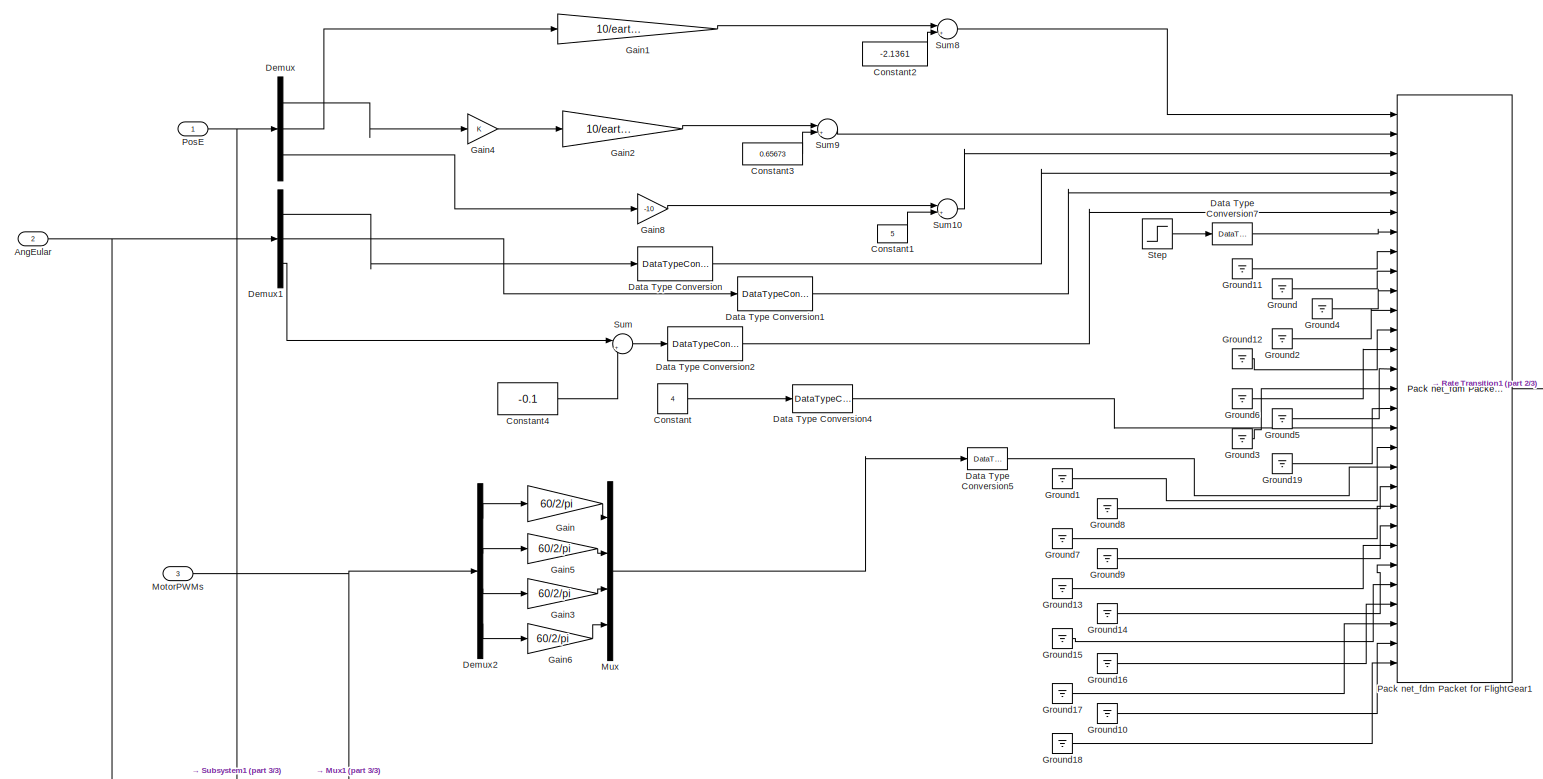
[diagram: To FlightGear - part 1/3, full width, top band]
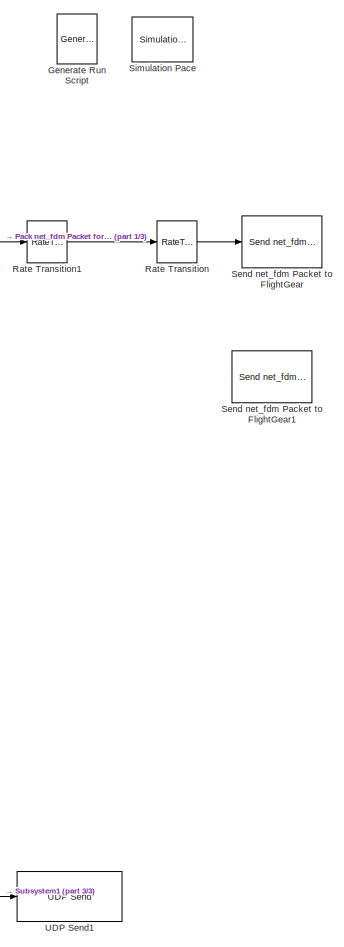
[diagram: To FlightGear - part 2/3, middle right region]
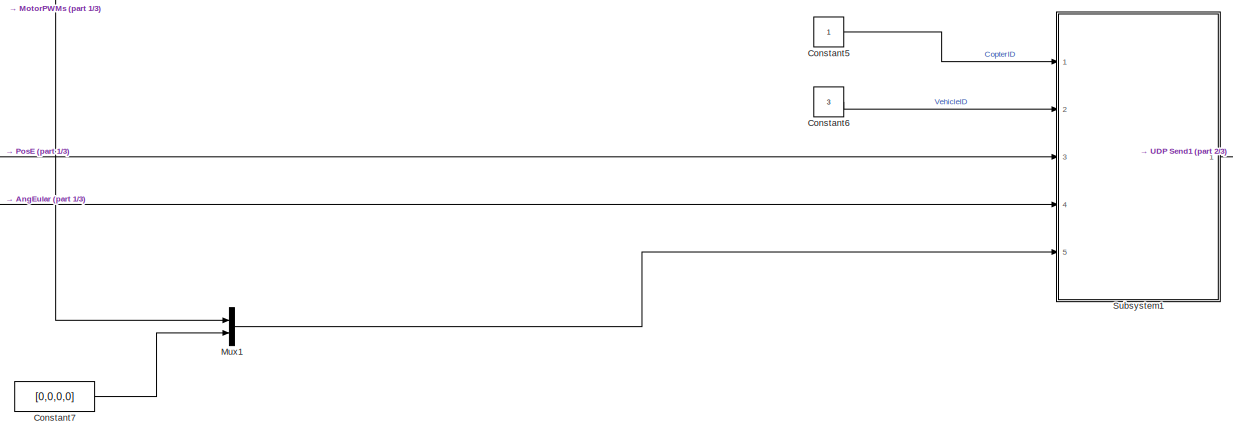
[diagram: To FlightGear - part 3/3, bottom center region]
BLOCK [SubSystem] To FlightGear
  Ports = [3]
  RequestExecContextInheritance = off
  Variant = off
BLOCK [Inport] To FlightGear/AngEular
  IconDisplay = Port number
  Port = 2
BLOCK [Constant] To FlightGear/Constant
  Value = 4
BLOCK [Constant] To FlightGear/Constant1
  Value = 5
  VectorParams1D = off
BLOCK [Constant] To FlightGear/Constant2
  Value = -2.1361
  VectorParams1D = off
BLOCK [Constant] To FlightGear/Constant3
  Value = 0.65673
  VectorParams1D = off
BLOCK [Constant] To FlightGear/Constant4
  Value = -0.1
  VectorParams1D = off
BLOCK [Constant] To FlightGear/Constant5
BLOCK [Constant] To FlightGear/Constant6
  Value = 3
BLOCK [Constant] To FlightGear/Constant7
  Value = [0,0,0,0]
BLOCK [DataTypeConversion] To FlightGear/Data Type Conversion
  OutDataTypeStr = single
  RndMeth = Floor
BLOCK [DataTypeConversion] To FlightGear/Data Type Conversion1
  OutDataTypeStr = single
  RndMeth = Floor
BLOCK [DataTypeConversion] To FlightGear/Data Type Conversion2
  OutDataTypeStr = single
  RndMeth = Floor
BLOCK [DataTypeConversion] To FlightGear/Data Type Conversion4
  OutDataTypeStr = uint32
  RndMeth = Floor
  SaturateOnIntegerOverflow = off
BLOCK [DataTypeConversion] To FlightGear/Data Type Conversion5
  OutDataTypeStr = single
  RndMeth = Floor
  SaturateOnIntegerOverflow = off
BLOCK [DataTypeConversion] To FlightGear/Data Type Conversion7
  OutDataTypeStr = single
  RndMeth = Floor
  SaturateOnIntegerOverflow = off
BLOCK [Demux] To FlightGear/Demux
  DisplayOption = bar
  Outputs = 3
  Ports = [1, 3]
BLOCK [Demux] To FlightGear/Demux1
  DisplayOption = bar
  Outputs = 3
  Ports = [1, 3]
BLOCK [Demux] To FlightGear/Demux2
  DisplayOption = bar
  Ports = [1, 4]
BLOCK [Gain] To FlightGear/Gain
  Gain = 60/2/pi
  OutDataTypeStr = Inherit: Inherit via internal rule
  ParamDataTypeStr = Inherit: Inherit via internal rule
  SaturateOnIntegerOverflow = off
BLOCK [Gain] To FlightGear/Gain1
  Gain = 10/earthRadius
  OutDataTypeStr = Inherit: Inherit via internal rule
  ParamDataTypeStr = Inherit: Inherit via internal rule
  SaturateOnIntegerOverflow = off
BLOCK [Gain] To FlightGear/Gain2
  Gain = 10/earthRadius
  OutDataTypeStr = Inherit: Inherit via internal rule
  ParamDataTypeStr = Inherit: Inherit via internal rule
  SaturateOnIntegerOverflow = off
BLOCK [Gain] To FlightGear/Gain3
  Gain = 60/2/pi
  OutDataTypeStr = Inherit: Inherit via internal rule
  ParamDataTypeStr = Inherit: Inherit via internal rule
  SaturateOnIntegerOverflow = off
BLOCK [Gain] To FlightGear/Gain4
  OutDataTypeStr = Inherit: Inherit via internal rule
  ParamDataTypeStr = Inherit: Inherit via internal rule
  SaturateOnIntegerOverflow = off
BLOCK [Gain] To FlightGear/Gain5
  Gain = 60/2/pi
  OutDataTypeStr = Inherit: Inherit via internal rule
  ParamDataTypeStr = Inherit: Inherit via internal rule
  SaturateOnIntegerOverflow = off
BLOCK [Gain] To FlightGear/Gain6
  Gain = 60/2/pi
  OutDataTypeStr = Inherit: Inherit via internal rule
  ParamDataTypeStr = Inherit: Inherit via internal rule
  SaturateOnIntegerOverflow = off
BLOCK [Gain] To FlightGear/Gain8
  Gain = -10
  OutDataTypeStr = Inherit: Inherit via internal rule
  ParamDataTypeStr = Inherit: Inherit via internal rule
  SaturateOnIntegerOverflow = off
BLOCK [Reference] To FlightGear/Generate Run Script  REF=aerolibfltsims/Generate
Run Script
  Ports = []
  SourceBlock = aerolibfltsims/Generate\nRun Script
  SourceProductBaseCode = AE
  SourceProductName = Aerospace Blockset
  SourceType = Generate FlightGear Run Script
BLOCK [Ground] To FlightGear/Ground
BLOCK [Ground] To FlightGear/Ground1
BLOCK [Ground] To FlightGear/Ground10
BLOCK [Ground] To FlightGear/Ground11
BLOCK [Ground] To FlightGear/Ground12
BLOCK [Ground] To FlightGear/Ground13
BLOCK [Ground] To FlightGear/Ground14
BLOCK [Ground] To FlightGear/Ground15
BLOCK [Ground] To FlightGear/Ground16
BLOCK [Ground] To FlightGear/Ground17
BLOCK [Ground] To FlightGear/Ground18
BLOCK [Ground] To FlightGear/Ground19
BLOCK [Ground] To FlightGear/Ground2
BLOCK [Ground] To FlightGear/Ground3
BLOCK [Ground] To FlightGear/Ground4
BLOCK [Ground] To FlightGear/Ground5
BLOCK [Ground] To FlightGear/Ground6
BLOCK [Ground] To FlightGear/Ground7
BLOCK [Ground] To FlightGear/Ground8
BLOCK [Ground] To FlightGear/Ground9
BLOCK [Inport] To FlightGear/MotorPWMs
  IconDisplay = Port number
  Port = 3
BLOCK [Mux] To FlightGear/Mux
  DisplayOption = bar
  Ports = [4, 1]
BLOCK [Mux] To FlightGear/Mux1
  DisplayOption = bar
  Inputs = 2
  Ports = [2, 1]
BLOCK [Reference] To FlightGear/Pack net_fdm Packet for FlightGear1  REF=aerolibfltsims/Pack
net_fdm Packet
for FlightGear
  AttributesFormatString = Version Selected: %<FlightGearVersion>
  Ports = [29, 1]
  SourceBlock = aerolibfltsims/Pack\nnet_fdm Packet\nfor FlightGear
  SourceProductBaseCode = AE
  SourceProductName = Aerospace Blockset
  SourceType = FlightGearPackNetFdm
BLOCK [Inport] To FlightGear/PosE
  IconDisplay = Port number
BLOCK [RateTransition] To FlightGear/Rate Transition
BLOCK [RateTransition] To FlightGear/Rate Transition1
BLOCK [Reference] To FlightGear/Send net_fdm Packet to FlightGear  REF=aerolibfltsims/Send
net_fdm Packet
to FlightGear
  Ports = [1]
  SourceBlock = aerolibfltsims/Send\nnet_fdm Packet\nto FlightGear
  SourceProductBaseCode = AE
  SourceProductName = Aerospace Blockset
  SourceType = FlightGearSendNetFdm
BLOCK [Reference] To FlightGear/Send net_fdm Packet to FlightGear1  REF=aerolibfltsims/Send
net_fdm Packet
to FlightGear
  Commented = on
  Ports = [1]
  SourceBlock = aerolibfltsims/Send\nnet_fdm Packet\nto FlightGear
  SourceProductBaseCode = AE
  SourceProductName = Aerospace Blockset
  SourceType = FlightGearSendNetFdm
BLOCK [Reference] To FlightGear/Simulation Pace  REF=aerolibanimutils/Simulation Pace
  AttributesFormatString = %<SimulationPace> sec/sec
  Ports = []
  SourceBlock = aerolibanimutils/Simulation Pace
  SourceProductBaseCode = AE
  SourceProductName = Aerospace Blockset
  SourceType = Simulation Pace
BLOCK [Step] To FlightGear/Step
  SampleTime = 0
  Time = 5
BLOCK [SubSystem] To FlightGear/Subsystem1
  Ports = [5, 1]
  RequestExecContextInheritance = off
  Variant = off
BLOCK [Inport] To FlightGear/Subsystem1/AngEuler
  IconDisplay = Port number
  Port = 4
  PortDimensions = 3
BLOCK [Clock] To FlightGear/Subsystem1/Clock
BLOCK [Constant] To FlightGear/Subsystem1/Constant
  Value = [0,0,0]
BLOCK [Constant] To FlightGear/Subsystem1/Constant1
  Value = [0,0,0,0]
BLOCK [Constant] To FlightGear/Subsystem1/Constant3
  Value = [0,0,0]
BLOCK [Constant] To FlightGear/Subsystem1/Constant4
  Value = [0,0,0]
BLOCK [Constant] To FlightGear/Subsystem1/Constant5
  Value = [0,0,0]
BLOCK [Inport] To FlightGear/Subsystem1/PosE
  IconDisplay = Port number
  Port = 3
  PortDimensions = 3
BLOCK [SubSystem] To FlightGear/Subsystem1/Subsystem
  Ports = [11, 1]
  RequestExecContextInheritance = off
  Variant = off
BLOCK [Inport] To FlightGear/Subsystem1/Subsystem/AccB
  IconDisplay = Port number
  Port = 9
  PortDimensions = 3
BLOCK [Inport] To FlightGear/Subsystem1/Subsystem/AngEuler
  IconDisplay = Port number
  Port = 6
  PortDimensions = 3
BLOCK [Inport] To FlightGear/Subsystem1/Subsystem/AngQuatern
  IconDisplay = Port number
  Port = 7
  PortDimensions = 4
BLOCK [DataTypeConversion] To FlightGear/Subsystem1/Subsystem/Data Type Conversion
  OutDataTypeStr = uint32
  RndMeth = Floor
  SaturateOnIntegerOverflow = off
BLOCK [DataTypeConversion] To FlightGear/Subsystem1/Subsystem/Data Type Conversion1
  OutDataTypeStr = int32
  RndMeth = Floor
  SaturateOnIntegerOverflow = off
BLOCK [DataTypeConversion] To FlightGear/Subsystem1/Subsystem/Data Type Conversion2
  OutDataTypeStr = int32
  RndMeth = Floor
  SaturateOnIntegerOverflow = off
BLOCK [DataTypeConversion] To FlightGear/Subsystem1/Subsystem/Data Type Conversion3
  OutDataTypeStr = int32
  RndMeth = Floor
  SaturateOnIntegerOverflow = off
BLOCK [DataTypeConversion] To FlightGear/Subsystem1/Subsystem/Data Type Conversion4
  OutDataTypeStr = double
  RndMeth = Floor
  SaturateOnIntegerOverflow = off
BLOCK [DataTypeConversion] To FlightGear/Subsystem1/Subsystem/Data Type Conversion5
  OutDataTypeStr = single
  RndMeth = Floor
  SaturateOnIntegerOverflow = off
BLOCK [DataTypeConversion] To FlightGear/Subsystem1/Subsystem/Data Type Conversion6
  OutDataTypeStr = double
  RndMeth = Floor
  SaturateOnIntegerOverflow = off
BLOCK [DataTypeConversion] To FlightGear/Subsystem1/Subsystem/Data Type Conversion7
  OutDataTypeStr = double
  RndMeth = Floor
  SaturateOnIntegerOverflow = off
BLOCK [Inport] To FlightGear/Subsystem1/Subsystem/MotorRPMS
  IconDisplay = Port number
  Port = 8
  PortDimensions = 8
BLOCK [Mux] To FlightGear/Subsystem1/Subsystem/Mux
  DisplayOption = bar
  Inputs = 2
  Ports = [2, 1]
BLOCK [Mux] To FlightGear/Subsystem1/Subsystem/Mux1
  DisplayOption = bar
  Inputs = 7
  Ports = [7, 1]
BLOCK [Mux] To FlightGear/Subsystem1/Subsystem/Mux2
  DisplayOption = bar
  Inputs = 2
  Ports = [2, 1]
BLOCK [Reference] To FlightGear/Subsystem1/Subsystem/Package Head  REF=etargetslib/Byte Pack
  Ports = [2, 1]
  SourceBlock = etargetslib/Byte Pack
  SourceProductBaseCode = ME
  SourceProductName = MATLAB Coder
  SourceType = Byte pack
BLOCK [Reference] To FlightGear/Subsystem1/Subsystem/PayLoad  REF=etargetslib/Byte Pack
  Ports = [5, 1]
  SourceBlock = etargetslib/Byte Pack
  SourceProductBaseCode = ME
  SourceProductName = MATLAB Coder
  SourceType = Byte pack
BLOCK [Inport] To FlightGear/Subsystem1/Subsystem/PosE
  IconDisplay = Port number
  Port = 5
  PortDimensions = 3
BLOCK [Inport] To FlightGear/Subsystem1/Subsystem/PosGPS
  IconDisplay = Port number
  Port = 11
  PortDimensions = 3
BLOCK [Inport] To FlightGear/Subsystem1/Subsystem/RateB
  IconDisplay = Port number
  Port = 10
  PortDimensions = 3
BLOCK [Constant] To FlightGear/Subsystem1/Subsystem/TargetType
  OutDataTypeStr = Inherit: Inherit via back propagation
BLOCK [Inport] To FlightGear/Subsystem1/Subsystem/VelE 
  IconDisplay = Port number
  Port = 4
  PortDimensions = 3
BLOCK [Inport] To FlightGear/Subsystem1/Subsystem/copterID
  IconDisplay = Port number
  PortDimensions = 1
BLOCK [Constant] To FlightGear/Subsystem1/Subsystem/len
  OutDataTypeStr = Inherit: Inherit via back propagation
  Value = 152
BLOCK [Constant] To FlightGear/Subsystem1/Subsystem/reserve
  OutDataTypeStr = double
  Value = [0 0 0 0 0]
BLOCK [Inport] To FlightGear/Subsystem1/Subsystem/runnedTime
  IconDisplay = Port number
  Port = 3
  PortDimensions = 1
BLOCK [Outport] To FlightGear/Subsystem1/Subsystem/toUnReal
  IconDisplay = Port number
BLOCK [Inport] To FlightGear/Subsystem1/Subsystem/vehicleType
  IconDisplay = Port number
  Port = 2
  PortDimensions = 1
BLOCK [Inport] To FlightGear/Subsystem1/copterID
  IconDisplay = Port number
  PortDimensions = 1
BLOCK [Inport] To FlightGear/Subsystem1/pwms
  IconDisplay = Port number
  Port = 5
BLOCK [Outport] To FlightGear/Subsystem1/toUnReal
  IconDisplay = Port number
BLOCK [Inport] To FlightGear/Subsystem1/vehicleType
  IconDisplay = Port number
  Port = 2
  PortDimensions = 1
BLOCK [Sum] To FlightGear/Sum
  IconShape = round
  InputSameDT = off
  Inputs = |++
  OutDataTypeStr = Inherit: Inherit via internal rule
  Ports = [2, 1]
  SaturateOnIntegerOverflow = off
BLOCK [Sum] To FlightGear/Sum10
  IconShape = round
  InputSameDT = off
  Inputs = |++
  OutDataTypeStr = Inherit: Inherit via internal rule
  Ports = [2, 1]
  SaturateOnIntegerOverflow = off
BLOCK [Sum] To FlightGear/Sum8
  IconShape = round
  InputSameDT = off
  Inputs = |++
  OutDataTypeStr = Inherit: Inherit via internal rule
  Ports = [2, 1]
  SaturateOnIntegerOverflow = off
BLOCK [Sum] To FlightGear/Sum9
  IconShape = round
  InputSameDT = off
  Inputs = |++
  OutDataTypeStr = Inherit: Inherit via internal rule
  Ports = [2, 1]
  SaturateOnIntegerOverflow = off
BLOCK [Reference] To FlightGear/UDP Send1  REF=dspnetwork/UDP Send
  Ports = [1]
  SourceBlock = dspnetwork/UDP Send
  SourceProductBaseCode = DS
  SourceProductName = DSP System Toolbox
  SourceType = UDP Send
ANNOTATION (root): Your can open FlightGear or 3DDisplay or RflySim3D to view
ANNOTATION (root): roll
ANNOTATION (root): thrust
ANNOTATION (root): yaw
ANNOTATION Quadcopter Dynamics1: Note2: There are three parameters essential for DLL model generation. They are "ModelInit_Inputs" (8D vector for input pwm signal initialization) in the "Motor Model" module, "ModelInit_PosE" (3D vector for position initialization) and "ModelInit_AngEuler" (3D vector for attitude initialization) in the "6DOF" module
ANNOTATION Quadcopter Dynamics1: 地面坐标系下位置
ANNOTATION Quadcopter Dynamics1: 地面坐标系下速度
ANNOTATION Quadcopter Dynamics1: 机体角速度
ANNOTATION Quadcopter Dynamics1: 欧拉角
ANNOTATION Quadcopter Dynamics1: 电机转速
ANNOTATION Quadcopter Dynamics1: 输入为8路1000~2000范围的信号
ANNOTATION Quadcopter Dynamics1/Force and Moment Model/Propeller Model/Multicopter/For Iterator Subsystem: 动力系统数量
ANNOTATION Quadcopter Dynamics1/Force and Moment Model/Propeller Model/Multicopter/For Iterator Subsystem/MotorForceAndMomentInAirFrame: 依次包含di和hi (m)
ANNOTATION Quadcopter Dynamics1/Force and Moment Model/Propeller Model/Multicopter/For Iterator Subsystem/MotorForceAndMomentInAirFrame: 单个电机产生的力
ANNOTATION Quadcopter Dynamics1/Force and Moment Model/Propeller Model/Multicopter/For Iterator Subsystem/MotorForceAndMomentInAirFrame: 单个电机产生的力矩
ANNOTATION Quadcopter Dynamics1/Force and Moment Model/Propeller Model/Multicopter/For Iterator Subsystem/MotorForceAndMomentInAirFrame: 机体角速度rad/s
ANNOTATION Quadcopter Dynamics1/Force and Moment Model/Propeller Model/Multicopter/For Iterator Subsystem/MotorForceAndMomentInAirFrame: 电机位置在机体坐标系下的投影
ANNOTATION Quadcopter Dynamics1/Force and Moment Model/Propeller Model/Multicopter/For Iterator Subsystem/MotorForceAndMomentInAirFrame: 电机旋转方向 (俯视图下,顺时针为1;正逆时针为-1)
ANNOTATION Quadcopter Dynamics1/Force and Moment Model/Propeller Model/Multicopter/For Iterator Subsystem/MotorForceAndMomentInAirFrame: 电机欧拉角rad
ANNOTATION Quadcopter Dynamics1/Force and Moment Model/Propeller Model/Multicopter/For Iterator Subsystem/MotorForceAndMomentInAirFrame: 电机轴指向机体系正方向于机体系下的投影
ANNOTATION Quadcopter Dynamics1/Force and Moment Model/Propeller Model/Multicopter/For Iterator Subsystem/MotorForceAndMomentInAirFrame: 电机轴转动惯量(含桨叶)
ANNOTATION Quadcopter Dynamics1/Force and Moment Model/Propeller Model/Multicopter/For Iterator Subsystem/MotorForceAndMomentInAirFrame: 电机轴转动角速度 rad/s
ANNOTATION Quadcopter Dynamics1/SensorModel: Struct MavHILStateQuat{ uint64_t time_usec; /*< Timestamp (microseconds since UNIX epoch or microseconds since system boot)*/ float attitude_quaternion [ 4 ]; /*< Vehicle attitude expressed as normalized quaternion in w, x, y, z order (with 1 0 0 0 being the null-rotation)*/ float rollspeed; /*< Body frame roll / phi angular speed (rad/s)*/ float pitchspeed; /*< Body frame pitch / theta angular sp...<+691ch>
ANNOTATION Quadcopter Dynamics1/SensorModel/HILGPSModel: 水平速度
ANNOTATION Quadcopter Dynamics1/SensorModel/HILGPSModel: 运动方位
ANNOTATION Subsystem/InputConditioning1: Normalization
ANNOTATION Subsystem/InputConditioning1: Roll Angle limit: 0.5 rad
ANNOTATION To FlightGear/Subsystem1/Subsystem: struct SOut2Simulator { int copterID; //飞机ID int vehicleType; //飞机构型 double runnedTime; //仿真时间 float VelE[3]; //NED地球系速度 float PosE[3]; //NED地球系位置 float AngEuler[3]; //欧拉角 float AngQuatern[4]; //四元数 float MotorRPMS[8]; //电机转速RPM float AccB[3]; //机体轴加速度 float RateB[3]; //机体轴角速度 double PosGPS[3]; //地球GPS经纬高 } //SOut2Simulator的定义与Simulink里面新加的MavVehileInfo结构体完全一致 //可以直接对新的simulink模型的MavVehile3DInfo输出...<+322ch>
LINE      CH3_THROTTLR :1 -> Subsystem:3
LINE      CH4_YAW     :1 -> Subsystem:4
LINE  CH2_PITCH :1 -> Subsystem:2
LINE CH1_ROLL   :1 -> Subsystem:1
LINE Ch5_MODE :1 -> Subsystem:5
LINE Demux1:1 -> Subsystem:9
LINE Demux1:2 -> Subsystem:10
LINE Demux1:3 -> Terminator4:1
LINE Demux:1 -> Subsystem:6
LINE Demux:2 -> Subsystem:7
LINE Demux:3 -> Subsystem:8
LINE Quadcopter Dynamics1/6DOF/Bus Creator:1 -> Quadcopter Dynamics1/6DOF/6DOF Bus:1
LINE Quadcopter Dynamics1/6DOF/Bus Selector1:1 -> Quadcopter Dynamics1/6DOF/Custom Variable Mass 6DOF (Quaternion):1
LINE Quadcopter Dynamics1/6DOF/Bus Selector1:2 -> Quadcopter Dynamics1/6DOF/Custom Variable Mass 6DOF (Quaternion):2
LINE Quadcopter Dynamics1/6DOF/Custom Variable Mass 6DOF (Quaternion):1 -> Quadcopter Dynamics1/6DOF/Bus Creator:1
LINE Quadcopter Dynamics1/6DOF/Custom Variable Mass 6DOF (Quaternion):2 -> Quadcopter Dynamics1/6DOF/Bus Creator:2
LINE Quadcopter Dynamics1/6DOF/Custom Variable Mass 6DOF (Quaternion):3 -> Quadcopter Dynamics1/6DOF/Bus Creator:3
LINE Quadcopter Dynamics1/6DOF/Custom Variable Mass 6DOF (Quaternion):4 -> Quadcopter Dynamics1/6DOF/Bus Creator:4
LINE Quadcopter Dynamics1/6DOF/Custom Variable Mass 6DOF (Quaternion):5 -> Quadcopter Dynamics1/6DOF/Bus Creator:5
LINE Quadcopter Dynamics1/6DOF/Custom Variable Mass 6DOF (Quaternion):6 -> Quadcopter Dynamics1/6DOF/Bus Creator:6
LINE Quadcopter Dynamics1/6DOF/Custom Variable Mass 6DOF (Quaternion):7 -> Quadcopter Dynamics1/6DOF/Bus Creator:7
LINE Quadcopter Dynamics1/6DOF/Custom Variable Mass 6DOF (Quaternion):8 -> Quadcopter Dynamics1/6DOF/Bus Creator:8
LINE Quadcopter Dynamics1/6DOF/Force and Moment Model Bus:1 -> Quadcopter Dynamics1/6DOF/Bus Selector1:1
NET Quadcopter Dynamics1/6DOF:1 -> Quadcopter Dynamics1/Environment Model:1, Quadcopter Dynamics1/Force and Moment Model:3, Quadcopter Dynamics1/OutputSignals:5
LINE Quadcopter Dynamics1/Bus Selector:1 -> Quadcopter Dynamics1/Data Type Conversion:1
LINE Quadcopter Dynamics1/Bus Selector:2 -> Quadcopter Dynamics1/Data Type Conversion1:1
LINE Quadcopter Dynamics1/Bus Selector:3 -> Quadcopter Dynamics1/Data Type Conversion2:1
LINE Quadcopter Dynamics1/Bus Selector:4 -> Quadcopter Dynamics1/Data Type Conversion3:1
LINE Quadcopter Dynamics1/Constant1:1 -> Quadcopter Dynamics1/Rate Transition1:1
LINE Quadcopter Dynamics1/Constant4:1 -> Quadcopter Dynamics1/Sum3:2
LINE Quadcopter Dynamics1/Data Type Conversion1:1 -> Quadcopter Dynamics1/AngEuler:1
LINE Quadcopter Dynamics1/Data Type Conversion2:1 -> Quadcopter Dynamics1/Selector:1
LINE Quadcopter Dynamics1/Data Type Conversion3:1 -> Quadcopter Dynamics1/AngRateB:1
LINE Quadcopter Dynamics1/Data Type Conversion:1 -> Quadcopter Dynamics1/PosE:1
LINE Quadcopter Dynamics1/Environment Model/6DOF Bus:1 -> Quadcopter Dynamics1/Environment Model/Bus Selector:1
LINE Quadcopter Dynamics1/Environment Model/Bus Creator:1 -> Quadcopter Dynamics1/Environment Model/Environment Model Bus:1
LINE Quadcopter Dynamics1/Environment Model/Bus Selector:1 -> Quadcopter Dynamics1/Environment Model/Flat Earth to LLA:1
LINE Quadcopter Dynamics1/Environment Model/Bus Selector:2 -> Quadcopter Dynamics1/Environment Model/Product1:2
LINE Quadcopter Dynamics1/Environment Model/Constant_[1 1 1]:1 -> Quadcopter Dynamics1/Environment Model/Sum1:1
LINE Quadcopter Dynamics1/Environment Model/Flat Earth to LLA:1 -> Quadcopter Dynamics1/Environment Model/Mux:1
LINE Quadcopter Dynamics1/Environment Model/Flat Earth to LLA:2 -> Quadcopter Dynamics1/Environment Model/Saturation_1:1
LINE Quadcopter Dynamics1/Environment Model/ISA Atmosphere Model:1 -> Quadcopter Dynamics1/Environment Model/Temperature Conversion:1
LINE Quadcopter Dynamics1/Environment Model/ISA Atmosphere Model:2 -> Quadcopter Dynamics1/Environment Model/Terminator3:1
LINE Quadcopter Dynamics1/Environment Model/ISA Atmosphere Model:3 -> Quadcopter Dynamics1/Environment Model/Bus Creator:4
LINE Quadcopter Dynamics1/Environment Model/ISA Atmosphere Model:4 -> Quadcopter Dynamics1/Environment Model/Bus Creator:5
LINE Quadcopter Dynamics1/Environment Model/ModelParam.envAltitude:1 -> Quadcopter Dynamics1/Environment Model/Flat Earth to LLA:2
LINE Quadcopter Dynamics1/Environment Model/ModelParam.noiseUpperWindBodyRatio:1 -> Quadcopter Dynamics1/Environment Model/ModelParam.noiseUpperWindBodyRatioSwitch:1
LINE Quadcopter Dynamics1/Environment Model/ModelParam.noiseUpperWindBodyRatioSwitch:1 -> Quadcopter Dynamics1/Environment Model/Sum1:2
NET Quadcopter Dynamics1/Environment Model/Mux:1 -> Quadcopter Dynamics1/Environment Model/Bus Creator:1, Quadcopter Dynamics1/Environment Model/WGS84 Gravity Model :1
LINE Quadcopter Dynamics1/Environment Model/Product1:1 -> Quadcopter Dynamics1/Environment Model/Bus Creator:6
LINE Quadcopter Dynamics1/Environment Model/Reshape:1 -> Quadcopter Dynamics1/Environment Model/Bus Creator:2
NET Quadcopter Dynamics1/Environment Model/Saturation_1:1 -> Quadcopter Dynamics1/Environment Model/ISA Atmosphere Model:1, Quadcopter Dynamics1/Environment Model/Mux:2
LINE Quadcopter Dynamics1/Environment Model/Sum1:1 -> Quadcopter Dynamics1/Environment Model/Product1:1
LINE Quadcopter Dynamics1/Environment Model/Temperature Conversion:1 -> Quadcopter Dynamics1/Environment Model/Terminator2:1
LINE Quadcopter Dynamics1/Environment Model/TemperatureConstant:1 -> Quadcopter Dynamics1/Environment Model/Bus Creator:3
LINE Quadcopter Dynamics1/Environment Model/Uniform Random Number:1 -> Quadcopter Dynamics1/Environment Model/ModelParam.noiseUpperWindBodyRatio:1
LINE Quadcopter Dynamics1/Environment Model/WGS84 Gravity Model :1 -> Quadcopter Dynamics1/Environment Model/Reshape:1
NET Quadcopter Dynamics1/Environment Model:1 -> Quadcopter Dynamics1/Force and Moment Model:2, Quadcopter Dynamics1/OutputSignals:1
LINE Quadcopter Dynamics1/Force and Moment Model/6DOF Bus:1 -> Quadcopter Dynamics1/Force and Moment Model/Bus Selector:1
LINE Quadcopter Dynamics1/Force and Moment Model/Add2:1 -> Quadcopter Dynamics1/Force and Moment Model/Bus Creator:2
LINE Quadcopter Dynamics1/Force and Moment Model/Add3:1 -> Quadcopter Dynamics1/Force and Moment Model/Bus Creator:3
LINE Quadcopter Dynamics1/Force and Moment Model/Add4:1 -> Quadcopter Dynamics1/Force and Moment Model/Product:2
LINE Quadcopter Dynamics1/Force and Moment Model/Body AeroCenter:1 -> Quadcopter Dynamics1/Force and Moment Model/Add2:3
LINE Quadcopter Dynamics1/Force and Moment Model/Body AeroCenter:2 -> Quadcopter Dynamics1/Force and Moment Model/Add3:3
LINE Quadcopter Dynamics1/Force and Moment Model/Bus Creator:1 -> Quadcopter Dynamics1/Force and Moment Model/Force and Moment Model Bus:1
LINE Quadcopter Dynamics1/Force and Moment Model/Bus Selector5:1 -> Quadcopter Dynamics1/Force and Moment Model/Product1:2
NET Quadcopter Dynamics1/Force and Moment Model/Bus Selector5:2 -> Quadcopter Dynamics1/Force and Moment Model/Body AeroCenter:2, Quadcopter Dynamics1/Force and Moment Model/Propeller Model old Version:9
LINE Quadcopter Dynamics1/Force and Moment Model/Bus Selector:1 -> Quadcopter Dynamics1/Force and Moment Model/Ground Model:3
LINE Quadcopter Dynamics1/Force and Moment Model/Bus Selector:2 -> Quadcopter Dynamics1/Force and Moment Model/Ground Model:4
LINE Quadcopter Dynamics1/Force and Moment Model/Bus Selector:3 -> Quadcopter Dynamics1/Force and Moment Model/OnGroundFaceup:1
NET Quadcopter Dynamics1/Force and Moment Model/Bus Selector:4 -> Quadcopter Dynamics1/Force and Moment Model/Direction Cosine Matrix to Quaternions:1, Quadcopter Dynamics1/Force and Moment Model/Product:1
NET Quadcopter Dynamics1/Force and Moment Model/Bus Selector:5 -> Quadcopter Dynamics1/Force and Moment Model/Body AeroCenter:1, Quadcopter Dynamics1/Force and Moment Model/Ground Model:2, Quadcopter Dynamics1/Force and Moment Model/Propeller Model old Version:8
LINE Quadcopter Dynamics1/Force and Moment Model/Direction Cosine Matrix to Quaternions1:1 -> Quadcopter Dynamics1/Force and Moment Model/Quaternion Inverse:1
LINE Quadcopter Dynamics1/Force and Moment Model/Direction Cosine Matrix to Quaternions:1 -> Quadcopter Dynamics1/Force and Moment Model/Quaternion Multiplication:2
LINE Quadcopter Dynamics1/Force and Moment Model/Environment Model Bus:1 -> Quadcopter Dynamics1/Force and Moment Model/Bus Selector5:1
LINE Quadcopter Dynamics1/Force and Moment Model/Euler to DCM:1 -> Quadcopter Dynamics1/Force and Moment Model/Direction Cosine Matrix to Quaternions1:1
LINE Quadcopter Dynamics1/Force and Moment Model/Ground Model:1 -> Quadcopter Dynamics1/Force and Moment Model/Add4:1
LINE Quadcopter Dynamics1/Force and Moment Model/Ground Model:2 -> Quadcopter Dynamics1/Force and Moment Model/Add3:1
LINE Quadcopter Dynamics1/Force and Moment Model/Ground Model:3 -> Quadcopter Dynamics1/Force and Moment Model/Bus Creator:1
LINE Quadcopter Dynamics1/Force and Moment Model/Ground Model:4 -> Quadcopter Dynamics1/Force and Moment Model/Terminator:1
LINE Quadcopter Dynamics1/Force and Moment Model/ModelParam.motorJm:1 -> Quadcopter Dynamics1/Force and Moment Model/Propeller Model old Version:7
LINE Quadcopter Dynamics1/Force and Moment Model/ModelParam.rotorCm:1 -> Quadcopter Dynamics1/Force and Moment Model/Propeller Model old Version:5
LINE Quadcopter Dynamics1/Force and Moment Model/ModelParam.rotorCt:1 -> Quadcopter Dynamics1/Force and Moment Model/Propeller Model old Version:6
LINE Quadcopter Dynamics1/Force and Moment Model/ModelParam.uavCCm:1 -> Quadcopter Dynamics1/Force and Moment Model/Body AeroCenter:4
NET Quadcopter Dynamics1/Force and Moment Model/ModelParam.uavCd:1 -> Quadcopter Dynamics1/Force and Moment Model/Body AeroCenter:3, Quadcopter Dynamics1/Force and Moment Model/Propeller Model old Version:10
NET Quadcopter Dynamics1/Force and Moment Model/ModelParam.uavDearo:1 -> Quadcopter Dynamics1/Force and Moment Model/Body AeroCenter:5, Quadcopter Dynamics1/Force and Moment Model/Propeller Model old Version:4
LINE Quadcopter Dynamics1/Force and Moment Model/ModelParam.uavMass:1 -> Quadcopter Dynamics1/Force and Moment Model/Product1:1
LINE Quadcopter Dynamics1/Force and Moment Model/ModelParam.uavR:1 -> Quadcopter Dynamics1/Force and Moment Model/Propeller Model old Version:3
LINE Quadcopter Dynamics1/Force and Moment Model/ModelParam.uavType:1 -> Quadcopter Dynamics1/Force and Moment Model/Propeller Model old Version:1
LINE Quadcopter Dynamics1/Force and Moment Model/MotorRads:1 -> Quadcopter Dynamics1/Force and Moment Model/Propeller Model old Version:2
LINE Quadcopter Dynamics1/Force and Moment Model/OnGroundFaceup:1 -> Quadcopter Dynamics1/Force and Moment Model/Euler to DCM:1
NET Quadcopter Dynamics1/Force and Moment Model/Product1:1 -> Quadcopter Dynamics1/Force and Moment Model/Add4:2, Quadcopter Dynamics1/Force and Moment Model/Ground Model:1
LINE Quadcopter Dynamics1/Force and Moment Model/Product:1 -> Quadcopter Dynamics1/Force and Moment Model/Add2:1
LINE Quadcopter Dynamics1/Force and Moment Model/Propeller Model old Version:1 -> Quadcopter Dynamics1/Force and Moment Model/Add2:2
LINE Quadcopter Dynamics1/Force and Moment Model/Propeller Model old Version:2 -> Quadcopter Dynamics1/Force and Moment Model/Add3:2
LINE Quadcopter Dynamics1/Force and Moment Model/Propeller Model/Car/MATLAB Function:1 -> Quadcopter Dynamics1/Force and Moment Model/Propeller Model/Car/Fb:1
LINE Quadcopter Dynamics1/Force and Moment Model/Propeller Model/Car/MATLAB Function:2 -> Quadcopter Dynamics1/Force and Moment Model/Propeller Model/Car/Mb:1
LINE Quadcopter Dynamics1/Force and Moment Model/Propeller Model/Car/MotorRads:1 -> Quadcopter Dynamics1/Force and Moment Model/Propeller Model/Car/MATLAB Function:1
LINE Quadcopter Dynamics1/Force and Moment Model/Propeller Model/Car:1 -> Quadcopter Dynamics1/Force and Moment Model/Propeller Model/Switch:1
LINE Quadcopter Dynamics1/Force and Moment Model/Propeller Model/Car:2 -> Quadcopter Dynamics1/Force and Moment Model/Propeller Model/Switch1:1
LINE Quadcopter Dynamics1/Force and Moment Model/Propeller Model/Cd:1 -> Quadcopter Dynamics1/Force and Moment Model/Propeller Model/Terminator1:1
LINE Quadcopter Dynamics1/Force and Moment Model/Propeller Model/Cm:1 -> Quadcopter Dynamics1/Force and Moment Model/Propeller Model/Multicopter:5
LINE Quadcopter Dynamics1/Force and Moment Model/Propeller Model/Ct:1 -> Quadcopter Dynamics1/Force and Moment Model/Propeller Model/Multicopter:6
LINE Quadcopter Dynamics1/Force and Moment Model/Propeller Model/If:1 -> Quadcopter Dynamics1/Force and Moment Model/Propeller Model/Car:ifaction
LINE Quadcopter Dynamics1/Force and Moment Model/Propeller Model/If:2 -> Quadcopter Dynamics1/Force and Moment Model/Propeller Model/Multicopter:ifaction
LINE Quadcopter Dynamics1/Force and Moment Model/Propeller Model/Jm:1 -> Quadcopter Dynamics1/Force and Moment Model/Propeller Model/Multicopter:7
NET Quadcopter Dynamics1/Force and Moment Model/Propeller Model/MotorRads:1 -> Quadcopter Dynamics1/Force and Moment Model/Propeller Model/Car:1, Quadcopter Dynamics1/Force and Moment Model/Propeller Model/Multicopter:2
LINE Quadcopter Dynamics1/Force and Moment Model/Propeller Model/Multicopter/Cm:1 -> Quadcopter Dynamics1/Force and Moment Model/Propeller Model/Multicopter/For Iterator Subsystem:9
LINE Quadcopter Dynamics1/Force and Moment Model/Propeller Model/Multicopter/Ct:1 -> Quadcopter Dynamics1/Force and Moment Model/Propeller Model/Multicopter/For Iterator Subsystem:8
NET Quadcopter Dynamics1/Force and Moment Model/Propeller Model/Multicopter/For Iterator Subsystem/Add1:1 -> Quadcopter Dynamics1/Force and Moment Model/Propeller Model/Multicopter/For Iterator Subsystem/Mb:1, Quadcopter Dynamics1/Force and Moment Model/Propeller Model/Multicopter/For Iterator Subsystem/Memory1:1
NET Quadcopter Dynamics1/Force and Moment Model/Propeller Model/Multicopter/For Iterator Subsystem/Add:1 -> Quadcopter Dynamics1/Force and Moment Model/Propeller Model/Multicopter/For Iterator Subsystem/Fb:1, Quadcopter Dynamics1/Force and Moment Model/Propeller Model/Multicopter/For Iterator Subsystem/Memory:1
NET Quadcopter Dynamics1/Force and Moment Model/Propeller Model/Multicopter/For Iterator Subsystem/For Iterator:1 -> Quadcopter Dynamics1/Force and Moment Model/Propeller Model/Multicopter/For Iterator Subsystem/Selector1:2, Quadcopter Dynamics1/Force and Moment Model/Propeller Model/Multicopter/For Iterator Subsystem/Selector2:2, Quadcopter Dynamics1/Force and Moment Model/Propeller Model/Multicopter/For Iterator Subsystem/Selector:2
LINE Quadcopter Dynamics1/Force and Moment Model/Propeller Model/Multicopter/For Iterator Subsystem/Memory1:1 -> Quadcopter Dynamics1/Force and Moment Model/Propeller Model/Multicopter/For Iterator Subsystem/Add1:2
LINE Quadcopter Dynamics1/Force and Moment Model/Propeller Model/Multicopter/For Iterator Subsystem/Memory:1 -> Quadcopter Dynamics1/Force and Moment Model/Propeller Model/Multicopter/For Iterator Subsystem/Add:2
LINE Quadcopter Dynamics1/Force and Moment Model/Propeller Model/Multicopter/For Iterator Subsystem/MotorForceAndMomentInAirFrame/3x3 Cross Product1:1 -> Quadcopter Dynamics1/Force and Moment Model/Propeller Model/Multicopter/For Iterator Subsystem/MotorForceAndMomentInAirFrame/Product7:2
LINE Quadcopter Dynamics1/Force and Moment Model/Propeller Model/Multicopter/For Iterator Subsystem/MotorForceAndMomentInAirFrame/3x3 Cross Product:1 -> Quadcopter Dynamics1/Force and Moment Model/Propeller Model/Multicopter/For Iterator Subsystem/MotorForceAndMomentInAirFrame/Add1:2
LINE Quadcopter Dynamics1/Force and Moment Model/Propeller Model/Multicopter/For Iterator Subsystem/MotorForceAndMomentInAirFrame/Add1:1 -> Quadcopter Dynamics1/Force and Moment Model/Propeller Model/Multicopter/For Iterator Subsystem/MotorForceAndMomentInAirFrame/Add:2
LINE Quadcopter Dynamics1/Force and Moment Model/Propeller Model/Multicopter/For Iterator Subsystem/MotorForceAndMomentInAirFrame/Add:1 -> Quadcopter Dynamics1/Force and Moment Model/Propeller Model/Multicopter/For Iterator Subsystem/MotorForceAndMomentInAirFrame/Mbi:1
LINE Quadcopter Dynamics1/Force and Moment Model/Propeller Model/Multicopter/For Iterator Subsystem/MotorForceAndMomentInAirFrame/Fcn1:1 -> Quadcopter Dynamics1/Force and Moment Model/Propeller Model/Multicopter/For Iterator Subsystem/MotorForceAndMomentInAirFrame/Vector Concatenate1:2
LINE Quadcopter Dynamics1/Force and Moment Model/Propeller Model/Multicopter/For Iterator Subsystem/MotorForceAndMomentInAirFrame/Fcn2:1 -> Quadcopter Dynamics1/Force and Moment Model/Propeller Model/Multicopter/For Iterator Subsystem/MotorForceAndMomentInAirFrame/Vector Concatenate1:3
LINE Quadcopter Dynamics1/Force and Moment Model/Propeller Model/Multicopter/For Iterator Subsystem/MotorForceAndMomentInAirFrame/Fcn:1 -> Quadcopter Dynamics1/Force and Moment Model/Propeller Model/Multicopter/For Iterator Subsystem/MotorForceAndMomentInAirFrame/Vector Concatenate1:1
LINE Quadcopter Dynamics1/Force and Moment Model/Propeller Model/Multicopter/For Iterator Subsystem/MotorForceAndMomentInAirFrame/Gain1:1 -> Quadcopter Dynamics1/Force and Moment Model/Propeller Model/Multicopter/For Iterator Subsystem/MotorForceAndMomentInAirFrame/Product5:1
LINE Quadcopter Dynamics1/Force and Moment Model/Propeller Model/Multicopter/For Iterator Subsystem/MotorForceAndMomentInAirFrame/Gain2:1 -> Quadcopter Dynamics1/Force and Moment Model/Propeller Model/Multicopter/For Iterator Subsystem/MotorForceAndMomentInAirFrame/Product7:1
LINE Quadcopter Dynamics1/Force and Moment Model/Propeller Model/Multicopter/For Iterator Subsystem/MotorForceAndMomentInAirFrame/Gain:1 -> Quadcopter Dynamics1/Force and Moment Model/Propeller Model/Multicopter/For Iterator Subsystem/MotorForceAndMomentInAirFrame/Product2:2
NET Quadcopter Dynamics1/Force and Moment Model/Propeller Model/Multicopter/For Iterator Subsystem/MotorForceAndMomentInAirFrame/Math Function:1 -> Quadcopter Dynamics1/Force and Moment Model/Propeller Model/Multicopter/For Iterator Subsystem/MotorForceAndMomentInAirFrame/Product3:1, Quadcopter Dynamics1/Force and Moment Model/Propeller Model/Multicopter/For Iterator Subsystem/MotorForceAndMomentInAirFrame/Product4:2
NET Quadcopter Dynamics1/Force and Moment Model/Propeller Model/Multicopter/For Iterator Subsystem/MotorForceAndMomentInAirFrame/Mux:1 -> Quadcopter Dynamics1/Force and Moment Model/Propeller Model/Multicopter/For Iterator Subsystem/MotorForceAndMomentInAirFrame/Fcn1:1, Quadcopter Dynamics1/Force and Moment Model/Propeller Model/Multicopter/For Iterator Subsystem/MotorForceAndMomentInAirFrame/Fcn2:1, Quadcopter Dynamics1/Force and Moment Model/Propeller Model/Multicopter/For Iterator Subsystem/MotorForceAndMomentInAirFrame/Fcn:1, Quadcopter Dynamics1/Force and Moment Model/Propeller Model/Multicopter/For Iterator Subsystem/MotorForceAndMomentInAirFrame/l1:1, Quadcopter Dynamics1/Force and Moment Model/Propeller Model/Multicopter/For Iterator Subsystem/MotorForceAndMomentInAirFrame/l2:1, Quadcopter Dynamics1/Force and Moment Model/Propeller Model/Multicopter/For Iterator Subsystem/MotorForceAndMomentInAirFrame/l3:1
NET Quadcopter Dynamics1/Force and Moment Model/Propeller Model/Multicopter/For Iterator Subsystem/MotorForceAndMomentInAirFrame/Product2:1 -> Quadcopter Dynamics1/Force and Moment Model/Propeller Model/Multicopter/For Iterator Subsystem/MotorForceAndMomentInAirFrame/3x3 Cross Product:2, Quadcopter Dynamics1/Force and Moment Model/Propeller Model/Multicopter/For Iterator Subsystem/MotorForceAndMomentInAirFrame/Fbi:1
LINE Quadcopter Dynamics1/Force and Moment Model/Propeller Model/Multicopter/For Iterator Subsystem/MotorForceAndMomentInAirFrame/Product3:1 -> Quadcopter Dynamics1/Force and Moment Model/Propeller Model/Multicopter/For Iterator Subsystem/MotorForceAndMomentInAirFrame/Gain:1
LINE Quadcopter Dynamics1/Force and Moment Model/Propeller Model/Multicopter/For Iterator Subsystem/MotorForceAndMomentInAirFrame/Product4:1 -> Quadcopter Dynamics1/Force and Moment Model/Propeller Model/Multicopter/For Iterator Subsystem/MotorForceAndMomentInAirFrame/Gain1:1
LINE Quadcopter Dynamics1/Force and Moment Model/Propeller Model/Multicopter/For Iterator Subsystem/MotorForceAndMomentInAirFrame/Product5:1 -> Quadcopter Dynamics1/Force and Moment Model/Propeller Model/Multicopter/For Iterator Subsystem/MotorForceAndMomentInAirFrame/Add1:1
LINE Quadcopter Dynamics1/Force and Moment Model/Propeller Model/Multicopter/For Iterator Subsystem/MotorForceAndMomentInAirFrame/Product6:1 -> Quadcopter Dynamics1/Force and Moment Model/Propeller Model/Multicopter/For Iterator Subsystem/MotorForceAndMomentInAirFrame/Gain2:1
LINE Quadcopter Dynamics1/Force and Moment Model/Propeller Model/Multicopter/For Iterator Subsystem/MotorForceAndMomentInAirFrame/Product7:1 -> Quadcopter Dynamics1/Force and Moment Model/Propeller Model/Multicopter/For Iterator Subsystem/MotorForceAndMomentInAirFrame/Add:1
LINE Quadcopter Dynamics1/Force and Moment Model/Propeller Model/Multicopter/For Iterator Subsystem/MotorForceAndMomentInAirFrame/Vector Concatenate1:1 -> Quadcopter Dynamics1/Force and Moment Model/Propeller Model/Multicopter/For Iterator Subsystem/MotorForceAndMomentInAirFrame/3x3 Cross Product:1
NET Quadcopter Dynamics1/Force and Moment Model/Propeller Model/Multicopter/For Iterator Subsystem/MotorForceAndMomentInAirFrame/Vector Concatenate:1 -> Quadcopter Dynamics1/Force and Moment Model/Propeller Model/Multicopter/For Iterator Subsystem/MotorForceAndMomentInAirFrame/3x3 Cross Product1:2, Quadcopter Dynamics1/Force and Moment Model/Propeller Model/Multicopter/For Iterator Subsystem/MotorForceAndMomentInAirFrame/Product2:1, Quadcopter Dynamics1/Force and Moment Model/Propeller Model/Multicopter/For Iterator Subsystem/MotorForceAndMomentInAirFrame/Product5:2
LINE Quadcopter Dynamics1/Force and Moment Model/Propeller Model/Multicopter/For Iterator Subsystem/MotorForceAndMomentInAirFrame/airframeOmega:1 -> Quadcopter Dynamics1/Force and Moment Model/Propeller Model/Multicopter/For Iterator Subsystem/MotorForceAndMomentInAirFrame/3x3 Cross Product1:1
LINE Quadcopter Dynamics1/Force and Moment Model/Propeller Model/Multicopter/For Iterator Subsystem/MotorForceAndMomentInAirFrame/l1:1 -> Quadcopter Dynamics1/Force and Moment Model/Propeller Model/Multicopter/For Iterator Subsystem/MotorForceAndMomentInAirFrame/Vector Concatenate:1
LINE Quadcopter Dynamics1/Force and Moment Model/Propeller Model/Multicopter/For Iterator Subsystem/MotorForceAndMomentInAirFrame/l2:1 -> Quadcopter Dynamics1/Force and Moment Model/Propeller Model/Multicopter/For Iterator Subsystem/MotorForceAndMomentInAirFrame/Vector Concatenate:2
LINE Quadcopter Dynamics1/Force and Moment Model/Propeller Model/Multicopter/For Iterator Subsystem/MotorForceAndMomentInAirFrame/l3:1 -> Quadcopter Dynamics1/Force and Moment Model/Propeller Model/Multicopter/For Iterator Subsystem/MotorForceAndMomentInAirFrame/Vector Concatenate:3
NET Quadcopter Dynamics1/Force and Moment Model/Propeller Model/Multicopter/For Iterator Subsystem/MotorForceAndMomentInAirFrame/motorDelta_i:1 -> Quadcopter Dynamics1/Force and Moment Model/Propeller Model/Multicopter/For Iterator Subsystem/MotorForceAndMomentInAirFrame/Product4:1, Quadcopter Dynamics1/Force and Moment Model/Propeller Model/Multicopter/For Iterator Subsystem/MotorForceAndMomentInAirFrame/Product6:3
LINE Quadcopter Dynamics1/Force and Moment Model/Propeller Model/Multicopter/For Iterator Subsystem/MotorForceAndMomentInAirFrame/motorEularInBodyFrame:1 -> Quadcopter Dynamics1/Force and Moment Model/Propeller Model/Multicopter/For Iterator Subsystem/MotorForceAndMomentInAirFrame/Mux:1
LINE Quadcopter Dynamics1/Force and Moment Model/Propeller Model/Multicopter/For Iterator Subsystem/MotorForceAndMomentInAirFrame/motorJ_RPi:1 -> Quadcopter Dynamics1/Force and Moment Model/Propeller Model/Multicopter/For Iterator Subsystem/MotorForceAndMomentInAirFrame/Product6:2
NET Quadcopter Dynamics1/Force and Moment Model/Propeller Model/Multicopter/For Iterator Subsystem/MotorForceAndMomentInAirFrame/motorOmegai:1 -> Quadcopter Dynamics1/Force and Moment Model/Propeller Model/Multicopter/For Iterator Subsystem/MotorForceAndMomentInAirFrame/Math Function:1, Quadcopter Dynamics1/Force and Moment Model/Propeller Model/Multicopter/For Iterator Subsystem/MotorForceAndMomentInAirFrame/Product6:1
LINE Quadcopter Dynamics1/Force and Moment Model/Propeller Model/Multicopter/For Iterator Subsystem/MotorForceAndMomentInAirFrame/motorPositionInBodyFrame:1 -> Quadcopter Dynamics1/Force and Moment Model/Propeller Model/Multicopter/For Iterator Subsystem/MotorForceAndMomentInAirFrame/Mux:2
LINE Quadcopter Dynamics1/Force and Moment Model/Propeller Model/Multicopter/For Iterator Subsystem/MotorForceAndMomentInAirFrame/rotorCm:1 -> Quadcopter Dynamics1/Force and Moment Model/Propeller Model/Multicopter/For Iterator Subsystem/MotorForceAndMomentInAirFrame/Product4:3
LINE Quadcopter Dynamics1/Force and Moment Model/Propeller Model/Multicopter/For Iterator Subsystem/MotorForceAndMomentInAirFrame/rotorCt:1 -> Quadcopter Dynamics1/Force and Moment Model/Propeller Model/Multicopter/For Iterator Subsystem/MotorForceAndMomentInAirFrame/Product3:2
LINE Quadcopter Dynamics1/Force and Moment Model/Propeller Model/Multicopter/For Iterator Subsystem/MotorForceAndMomentInAirFrame:1 -> Quadcopter Dynamics1/Force and Moment Model/Propeller Model/Multicopter/For Iterator Subsystem/Add:1
LINE Quadcopter Dynamics1/Force and Moment Model/Propeller Model/Multicopter/For Iterator Subsystem/MotorForceAndMomentInAirFrame:2 -> Quadcopter Dynamics1/Force and Moment Model/Propeller Model/Multicopter/For Iterator Subsystem/Add1:1
LINE Quadcopter Dynamics1/Force and Moment Model/Propeller Model/Multicopter/For Iterator Subsystem/Selector1:1 -> Quadcopter Dynamics1/Force and Moment Model/Propeller Model/Multicopter/For Iterator Subsystem/MotorForceAndMomentInAirFrame:4
LINE Quadcopter Dynamics1/Force and Moment Model/Propeller Model/Multicopter/For Iterator Subsystem/Selector2:1 -> Quadcopter Dynamics1/Force and Moment Model/Propeller Model/Multicopter/For Iterator Subsystem/MotorForceAndMomentInAirFrame:2
LINE Quadcopter Dynamics1/Force and Moment Model/Propeller Model/Multicopter/For Iterator Subsystem/Selector:1 -> Quadcopter Dynamics1/Force and Moment Model/Propeller Model/Multicopter/For Iterator Subsystem/MotorForceAndMomentInAirFrame:6
LINE Quadcopter Dynamics1/Force and Moment Model/Propeller Model/Multicopter/For Iterator Subsystem/motorEularMatrix:1 -> Quadcopter Dynamics1/Force and Moment Model/Propeller Model/Multicopter/For Iterator Subsystem/Selector2:1
LINE Quadcopter Dynamics1/Force and Moment Model/Propeller Model/Multicopter/For Iterator Subsystem/motorJ_RP:1 -> Quadcopter Dynamics1/Force and Moment Model/Propeller Model/Multicopter/For Iterator Subsystem/MotorForceAndMomentInAirFrame:5
LINE Quadcopter Dynamics1/Force and Moment Model/Propeller Model/Multicopter/For Iterator Subsystem/motorOmegaVector:1 -> Quadcopter Dynamics1/Force and Moment Model/Propeller Model/Multicopter/For Iterator Subsystem/Selector1:1
LINE Quadcopter Dynamics1/Force and Moment Model/Propeller Model/Multicopter/For Iterator Subsystem/motorPositionVector:1 -> Quadcopter Dynamics1/Force and Moment Model/Propeller Model/Multicopter/For Iterator Subsystem/MotorForceAndMomentInAirFrame:3
LINE Quadcopter Dynamics1/Force and Moment Model/Propeller Model/Multicopter/For Iterator Subsystem/motorRotateDirectionVector:1 -> Quadcopter Dynamics1/Force and Moment Model/Propeller Model/Multicopter/For Iterator Subsystem/Selector:1
LINE Quadcopter Dynamics1/Force and Moment Model/Propeller Model/Multicopter/For Iterator Subsystem/n_p:1 -> Quadcopter Dynamics1/Force and Moment Model/Propeller Model/Multicopter/For Iterator Subsystem/For Iterator:1
LINE Quadcopter Dynamics1/Force and Moment Model/Propeller Model/Multicopter/For Iterator Subsystem/rotorCm:1 -> Quadcopter Dynamics1/Force and Moment Model/Propeller Model/Multicopter/For Iterator Subsystem/MotorForceAndMomentInAirFrame:8
LINE Quadcopter Dynamics1/Force and Moment Model/Propeller Model/Multicopter/For Iterator Subsystem/rotorCt:1 -> Quadcopter Dynamics1/Force and Moment Model/Propeller Model/Multicopter/For Iterator Subsystem/MotorForceAndMomentInAirFrame:7
LINE Quadcopter Dynamics1/Force and Moment Model/Propeller Model/Multicopter/For Iterator Subsystem/wb:1 -> Quadcopter Dynamics1/Force and Moment Model/Propeller Model/Multicopter/For Iterator Subsystem/MotorForceAndMomentInAirFrame:1
LINE Quadcopter Dynamics1/Force and Moment Model/Propeller Model/Multicopter/For Iterator Subsystem:1 -> Quadcopter Dynamics1/Force and Moment Model/Propeller Model/Multicopter/Fb:1
LINE Quadcopter Dynamics1/Force and Moment Model/Propeller Model/Multicopter/For Iterator Subsystem:2 -> Quadcopter Dynamics1/Force and Moment Model/Propeller Model/Multicopter/Mb:1
LINE Quadcopter Dynamics1/Force and Moment Model/Propeller Model/Multicopter/Gain:1 -> Quadcopter Dynamics1/Force and Moment Model/Propeller Model/Multicopter/Vector Concatenate:2
LINE Quadcopter Dynamics1/Force and Moment Model/Propeller Model/Multicopter/Jm:1 -> Quadcopter Dynamics1/Force and Moment Model/Propeller Model/Multicopter/For Iterator Subsystem:6
LINE Quadcopter Dynamics1/Force and Moment Model/Propeller Model/Multicopter/MotorRads:1 -> Quadcopter Dynamics1/Force and Moment Model/Propeller Model/Multicopter/For Iterator Subsystem:5
LINE Quadcopter Dynamics1/Force and Moment Model/Propeller Model/Multicopter/Vector Concatenate1:1 -> Quadcopter Dynamics1/Force and Moment Model/Propeller Model/Multicopter/For Iterator Subsystem:3
LINE Quadcopter Dynamics1/Force and Moment Model/Propeller Model/Multicopter/Vector Concatenate:1 -> Quadcopter Dynamics1/Force and Moment Model/Propeller Model/Multicopter/For Iterator Subsystem:4
LINE Quadcopter Dynamics1/Force and Moment Model/Propeller Model/Multicopter/uavDearo:1 -> Quadcopter Dynamics1/Force and Moment Model/Propeller Model/Multicopter/Gain:1
LINE Quadcopter Dynamics1/Force and Moment Model/Propeller Model/Multicopter/uavR:1 -> Quadcopter Dynamics1/Force and Moment Model/Propeller Model/Multicopter/Vector Concatenate:1
LINE Quadcopter Dynamics1/Force and Moment Model/Propeller Model/Multicopter/uavType:1 -> Quadcopter Dynamics1/Force and Moment Model/Propeller Model/Multicopter/uavTypeDefine:1
LINE Quadcopter Dynamics1/Force and Moment Model/Propeller Model/Multicopter/uavTypeDefine:1 -> Quadcopter Dynamics1/Force and Moment Model/Propeller Model/Multicopter/For Iterator Subsystem:1
LINE Quadcopter Dynamics1/Force and Moment Model/Propeller Model/Multicopter/uavTypeDefine:2 -> Quadcopter Dynamics1/Force and Moment Model/Propeller Model/Multicopter/Vector Concatenate1:1
LINE Quadcopter Dynamics1/Force and Moment Model/Propeller Model/Multicopter/uavTypeDefine:3 -> Quadcopter Dynamics1/Force and Moment Model/Propeller Model/Multicopter/Vector Concatenate1:2
LINE Quadcopter Dynamics1/Force and Moment Model/Propeller Model/Multicopter/uavTypeDefine:4 -> Quadcopter Dynamics1/Force and Moment Model/Propeller Model/Multicopter/Vector Concatenate1:3
LINE Quadcopter Dynamics1/Force and Moment Model/Propeller Model/Multicopter/uavTypeDefine:5 -> Quadcopter Dynamics1/Force and Moment Model/Propeller Model/Multicopter/For Iterator Subsystem:7
LINE Quadcopter Dynamics1/Force and Moment Model/Propeller Model/Multicopter/wb:1 -> Quadcopter Dynamics1/Force and Moment Model/Propeller Model/Multicopter/For Iterator Subsystem:2
LINE Quadcopter Dynamics1/Force and Moment Model/Propeller Model/Multicopter:1 -> Quadcopter Dynamics1/Force and Moment Model/Propeller Model/Switch:3
LINE Quadcopter Dynamics1/Force and Moment Model/Propeller Model/Multicopter:2 -> Quadcopter Dynamics1/Force and Moment Model/Propeller Model/Switch1:3
LINE Quadcopter Dynamics1/Force and Moment Model/Propeller Model/Switch1:1 -> Quadcopter Dynamics1/Force and Moment Model/Propeller Model/Mb:1
LINE Quadcopter Dynamics1/Force and Moment Model/Propeller Model/Switch:1 -> Quadcopter Dynamics1/Force and Moment Model/Propeller Model/Fb:1
LINE Quadcopter Dynamics1/Force and Moment Model/Propeller Model/Vb:1 -> Quadcopter Dynamics1/Force and Moment Model/Propeller Model/Terminator:1
LINE Quadcopter Dynamics1/Force and Moment Model/Propeller Model/uavDearo:1 -> Quadcopter Dynamics1/Force and Moment Model/Propeller Model/Multicopter:4
LINE Quadcopter Dynamics1/Force and Moment Model/Propeller Model/uavR:1 -> Quadcopter Dynamics1/Force and Moment Model/Propeller Model/Multicopter:3
NET Quadcopter Dynamics1/Force and Moment Model/Propeller Model/uavType:1 -> Quadcopter Dynamics1/Force and Moment Model/Propeller Model/If:1, Quadcopter Dynamics1/Force and Moment Model/Propeller Model/Multicopter:1, Quadcopter Dynamics1/Force and Moment Model/Propeller Model/Switch1:2, Quadcopter Dynamics1/Force and Moment Model/Propeller Model/Switch:2
LINE Quadcopter Dynamics1/Force and Moment Model/Propeller Model/wb:1 -> Quadcopter Dynamics1/Force and Moment Model/Propeller Model/Multicopter:8
LINE Quadcopter Dynamics1/Force and Moment Model/Quaternion Inverse:1 -> Quadcopter Dynamics1/Force and Moment Model/Quaternion Multiplication:1
LINE Quadcopter Dynamics1/Force and Moment Model/Quaternion Multiplication:1 -> Quadcopter Dynamics1/Force and Moment Model/Ground Model:5
LINE Quadcopter Dynamics1/Force and Moment Model/tZ :1 -> Quadcopter Dynamics1/Force and Moment Model/Ground Model:6
NET Quadcopter Dynamics1/Force and Moment Model:1 -> Quadcopter Dynamics1/6DOF:1, Quadcopter Dynamics1/OutputSignals:4
LINE Quadcopter Dynamics1/Gain1:1 -> Quadcopter Dynamics1/Rate Transition:1
NET Quadcopter Dynamics1/Motor Model/Constant:1 -> Quadcopter Dynamics1/Motor Model/MotorNonlinearDynamic1:4, Quadcopter Dynamics1/Motor Model/MotorNonlinearDynamic2:4, Quadcopter Dynamics1/Motor Model/MotorNonlinearDynamic3:4, Quadcopter Dynamics1/Motor Model/MotorNonlinearDynamic4:4, Quadcopter Dynamics1/Motor Model/MotorNonlinearDynamic5:4, Quadcopter Dynamics1/Motor Model/MotorNonlinearDynamic6:4, Quadcopter Dynamics1/Motor Model/MotorNonlinearDynamic7:4, Quadcopter Dynamics1/Motor Model/MotorNonlinearDynamic8:4
LINE Quadcopter Dynamics1/Motor Model/Demux:1 -> Quadcopter Dynamics1/Motor Model/MotorNonlinearDynamic1:5
LINE Quadcopter Dynamics1/Motor Model/Demux:2 -> Quadcopter Dynamics1/Motor Model/MotorNonlinearDynamic2:5
LINE Quadcopter Dynamics1/Motor Model/Demux:3 -> Quadcopter Dynamics1/Motor Model/MotorNonlinearDynamic3:5
LINE Quadcopter Dynamics1/Motor Model/Demux:4 -> Quadcopter Dynamics1/Motor Model/MotorNonlinearDynamic4:5
LINE Quadcopter Dynamics1/Motor Model/Demux:5 -> Quadcopter Dynamics1/Motor Model/MotorNonlinearDynamic5:5
LINE Quadcopter Dynamics1/Motor Model/Demux:6 -> Quadcopter Dynamics1/Motor Model/MotorNonlinearDynamic6:5
LINE Quadcopter Dynamics1/Motor Model/Demux:7 -> Quadcopter Dynamics1/Motor Model/MotorNonlinearDynamic7:5
LINE Quadcopter Dynamics1/Motor Model/Demux:8 -> Quadcopter Dynamics1/Motor Model/MotorNonlinearDynamic8:5
NET Quadcopter Dynamics1/Motor Model/ModelParam.motorCr:1 -> Quadcopter Dynamics1/Motor Model/MotorNonlinearDynamic1:2, Quadcopter Dynamics1/Motor Model/MotorNonlinearDynamic2:2, Quadcopter Dynamics1/Motor Model/MotorNonlinearDynamic3:2, Quadcopter Dynamics1/Motor Model/MotorNonlinearDynamic4:2, Quadcopter Dynamics1/Motor Model/MotorNonlinearDynamic5:2, Quadcopter Dynamics1/Motor Model/MotorNonlinearDynamic6:2, Quadcopter Dynamics1/Motor Model/MotorNonlinearDynamic7:2, Quadcopter Dynamics1/Motor Model/MotorNonlinearDynamic8:2
NET Quadcopter Dynamics1/Motor Model/ModelParam.motorT:1 -> Quadcopter Dynamics1/Motor Model/MotorNonlinearDynamic1:3, Quadcopter Dynamics1/Motor Model/MotorNonlinearDynamic2:3, Quadcopter Dynamics1/Motor Model/MotorNonlinearDynamic3:3, Quadcopter Dynamics1/Motor Model/MotorNonlinearDynamic4:3, Quadcopter Dynamics1/Motor Model/MotorNonlinearDynamic5:3, Quadcopter Dynamics1/Motor Model/MotorNonlinearDynamic6:3, Quadcopter Dynamics1/Motor Model/MotorNonlinearDynamic7:3, Quadcopter Dynamics1/Motor Model/MotorNonlinearDynamic8:3
NET Quadcopter Dynamics1/Motor Model/ModelParam.motorWb:1 -> Quadcopter Dynamics1/Motor Model/MotorNonlinearDynamic1:1, Quadcopter Dynamics1/Motor Model/MotorNonlinearDynamic2:1, Quadcopter Dynamics1/Motor Model/MotorNonlinearDynamic3:1, Quadcopter Dynamics1/Motor Model/MotorNonlinearDynamic4:1, Quadcopter Dynamics1/Motor Model/MotorNonlinearDynamic5:1, Quadcopter Dynamics1/Motor Model/MotorNonlinearDynamic6:1, Quadcopter Dynamics1/Motor Model/MotorNonlinearDynamic7:1, Quadcopter Dynamics1/Motor Model/MotorNonlinearDynamic8:1
LINE Quadcopter Dynamics1/Motor Model/MotorNonlinearDynamic1/Cr:1 -> Quadcopter Dynamics1/Motor Model/MotorNonlinearDynamic1/Product1:1
LINE Quadcopter Dynamics1/Motor Model/MotorNonlinearDynamic1/Minimum Throttle Cutoff:1 -> Quadcopter Dynamics1/Motor Model/MotorNonlinearDynamic1/Product:2
LINE Quadcopter Dynamics1/Motor Model/MotorNonlinearDynamic1/ModelInit_RPM:1 -> Quadcopter Dynamics1/Motor Model/MotorNonlinearDynamic1/Motor_Dynamics:2
LINE Quadcopter Dynamics1/Motor Model/MotorNonlinearDynamic1/Motor_Dynamics/Add:1 -> Quadcopter Dynamics1/Motor Model/MotorNonlinearDynamic1/Motor_Dynamics/Divide:1
LINE Quadcopter Dynamics1/Motor Model/MotorNonlinearDynamic1/Motor_Dynamics/Divide:1 -> Quadcopter Dynamics1/Motor Model/MotorNonlinearDynamic1/Motor_Dynamics/Integrator:1
NET Quadcopter Dynamics1/Motor Model/MotorNonlinearDynamic1/Motor_Dynamics/Integrator:1 -> Quadcopter Dynamics1/Motor Model/MotorNonlinearDynamic1/Motor_Dynamics/Add:2, Quadcopter Dynamics1/Motor Model/MotorNonlinearDynamic1/Motor_Dynamics/motor_rate_act:1
LINE Quadcopter Dynamics1/Motor Model/MotorNonlinearDynamic1/Motor_Dynamics/ModelInit_RPM:1 -> Quadcopter Dynamics1/Motor Model/MotorNonlinearDynamic1/Motor_Dynamics/Integrator:2
LINE Quadcopter Dynamics1/Motor Model/MotorNonlinearDynamic1/Motor_Dynamics/motorT:1 -> Quadcopter Dynamics1/Motor Model/MotorNonlinearDynamic1/Motor_Dynamics/Divide:2
LINE Quadcopter Dynamics1/Motor Model/MotorNonlinearDynamic1/Motor_Dynamics/motor_rate_d:1 -> Quadcopter Dynamics1/Motor Model/MotorNonlinearDynamic1/Motor_Dynamics/Add:1
LINE Quadcopter Dynamics1/Motor Model/MotorNonlinearDynamic1/Motor_Dynamics:1 -> Quadcopter Dynamics1/Motor Model/MotorNonlinearDynamic1/radW:1
LINE Quadcopter Dynamics1/Motor Model/MotorNonlinearDynamic1/PWM:1 -> Quadcopter Dynamics1/Motor Model/MotorNonlinearDynamic1/Signal_Saturation:1
LINE Quadcopter Dynamics1/Motor Model/MotorNonlinearDynamic1/Product1:1 -> Quadcopter Dynamics1/Motor Model/MotorNonlinearDynamic1/Sum1:2
LINE Quadcopter Dynamics1/Motor Model/MotorNonlinearDynamic1/Product:1 -> Quadcopter Dynamics1/Motor Model/MotorNonlinearDynamic1/Motor_Dynamics:1
NET Quadcopter Dynamics1/Motor Model/MotorNonlinearDynamic1/Signal_Saturation:1 -> Quadcopter Dynamics1/Motor Model/MotorNonlinearDynamic1/Minimum Throttle Cutoff:1, Quadcopter Dynamics1/Motor Model/MotorNonlinearDynamic1/Product1:2
LINE Quadcopter Dynamics1/Motor Model/MotorNonlinearDynamic1/Sum1:1 -> Quadcopter Dynamics1/Motor Model/MotorNonlinearDynamic1/Product:1
LINE Quadcopter Dynamics1/Motor Model/MotorNonlinearDynamic1/Wb:1 -> Quadcopter Dynamics1/Motor Model/MotorNonlinearDynamic1/Sum1:1
LINE Quadcopter Dynamics1/Motor Model/MotorNonlinearDynamic1/motorT:1 -> Quadcopter Dynamics1/Motor Model/MotorNonlinearDynamic1/Motor_Dynamics:3
LINE Quadcopter Dynamics1/Motor Model/MotorNonlinearDynamic1:1 -> Quadcopter Dynamics1/Motor Model/Mux:1
LINE Quadcopter Dynamics1/Motor Model/MotorNonlinearDynamic2/Cr:1 -> Quadcopter Dynamics1/Motor Model/MotorNonlinearDynamic2/Product1:1
LINE Quadcopter Dynamics1/Motor Model/MotorNonlinearDynamic2/Minimum Throttle Cutoff:1 -> Quadcopter Dynamics1/Motor Model/MotorNonlinearDynamic2/Product:2
LINE Quadcopter Dynamics1/Motor Model/MotorNonlinearDynamic2/ModelInit_RPM:1 -> Quadcopter Dynamics1/Motor Model/MotorNonlinearDynamic2/Motor_Dynamics:2
LINE Quadcopter Dynamics1/Motor Model/MotorNonlinearDynamic2/Motor_Dynamics/Add:1 -> Quadcopter Dynamics1/Motor Model/MotorNonlinearDynamic2/Motor_Dynamics/Divide:1
LINE Quadcopter Dynamics1/Motor Model/MotorNonlinearDynamic2/Motor_Dynamics/Divide:1 -> Quadcopter Dynamics1/Motor Model/MotorNonlinearDynamic2/Motor_Dynamics/Integrator:1
NET Quadcopter Dynamics1/Motor Model/MotorNonlinearDynamic2/Motor_Dynamics/Integrator:1 -> Quadcopter Dynamics1/Motor Model/MotorNonlinearDynamic2/Motor_Dynamics/Add:2, Quadcopter Dynamics1/Motor Model/MotorNonlinearDynamic2/Motor_Dynamics/motor_rate_act:1
LINE Quadcopter Dynamics1/Motor Model/MotorNonlinearDynamic2/Motor_Dynamics/ModelInit_RPM:1 -> Quadcopter Dynamics1/Motor Model/MotorNonlinearDynamic2/Motor_Dynamics/Integrator:2
LINE Quadcopter Dynamics1/Motor Model/MotorNonlinearDynamic2/Motor_Dynamics/motorT:1 -> Quadcopter Dynamics1/Motor Model/MotorNonlinearDynamic2/Motor_Dynamics/Divide:2
LINE Quadcopter Dynamics1/Motor Model/MotorNonlinearDynamic2/Motor_Dynamics/motor_rate_d:1 -> Quadcopter Dynamics1/Motor Model/MotorNonlinearDynamic2/Motor_Dynamics/Add:1
LINE Quadcopter Dynamics1/Motor Model/MotorNonlinearDynamic2/Motor_Dynamics:1 -> Quadcopter Dynamics1/Motor Model/MotorNonlinearDynamic2/radW:1
LINE Quadcopter Dynamics1/Motor Model/MotorNonlinearDynamic2/PWM:1 -> Quadcopter Dynamics1/Motor Model/MotorNonlinearDynamic2/Signal_Saturation:1
LINE Quadcopter Dynamics1/Motor Model/MotorNonlinearDynamic2/Product1:1 -> Quadcopter Dynamics1/Motor Model/MotorNonlinearDynamic2/Sum1:2
LINE Quadcopter Dynamics1/Motor Model/MotorNonlinearDynamic2/Product:1 -> Quadcopter Dynamics1/Motor Model/MotorNonlinearDynamic2/Motor_Dynamics:1
NET Quadcopter Dynamics1/Motor Model/MotorNonlinearDynamic2/Signal_Saturation:1 -> Quadcopter Dynamics1/Motor Model/MotorNonlinearDynamic2/Minimum Throttle Cutoff:1, Quadcopter Dynamics1/Motor Model/MotorNonlinearDynamic2/Product1:2
LINE Quadcopter Dynamics1/Motor Model/MotorNonlinearDynamic2/Sum1:1 -> Quadcopter Dynamics1/Motor Model/MotorNonlinearDynamic2/Product:1
LINE Quadcopter Dynamics1/Motor Model/MotorNonlinearDynamic2/Wb:1 -> Quadcopter Dynamics1/Motor Model/MotorNonlinearDynamic2/Sum1:1
LINE Quadcopter Dynamics1/Motor Model/MotorNonlinearDynamic2/motorT:1 -> Quadcopter Dynamics1/Motor Model/MotorNonlinearDynamic2/Motor_Dynamics:3
LINE Quadcopter Dynamics1/Motor Model/MotorNonlinearDynamic2:1 -> Quadcopter Dynamics1/Motor Model/Mux:2
LINE Quadcopter Dynamics1/Motor Model/MotorNonlinearDynamic3/Cr:1 -> Quadcopter Dynamics1/Motor Model/MotorNonlinearDynamic3/Product1:1
LINE Quadcopter Dynamics1/Motor Model/MotorNonlinearDynamic3/Minimum Throttle Cutoff:1 -> Quadcopter Dynamics1/Motor Model/MotorNonlinearDynamic3/Product:2
LINE Quadcopter Dynamics1/Motor Model/MotorNonlinearDynamic3/ModelInit_RPM:1 -> Quadcopter Dynamics1/Motor Model/MotorNonlinearDynamic3/Motor_Dynamics:2
LINE Quadcopter Dynamics1/Motor Model/MotorNonlinearDynamic3/Motor_Dynamics/Add:1 -> Quadcopter Dynamics1/Motor Model/MotorNonlinearDynamic3/Motor_Dynamics/Divide:1
LINE Quadcopter Dynamics1/Motor Model/MotorNonlinearDynamic3/Motor_Dynamics/Divide:1 -> Quadcopter Dynamics1/Motor Model/MotorNonlinearDynamic3/Motor_Dynamics/Integrator:1
NET Quadcopter Dynamics1/Motor Model/MotorNonlinearDynamic3/Motor_Dynamics/Integrator:1 -> Quadcopter Dynamics1/Motor Model/MotorNonlinearDynamic3/Motor_Dynamics/Add:2, Quadcopter Dynamics1/Motor Model/MotorNonlinearDynamic3/Motor_Dynamics/motor_rate_act:1
LINE Quadcopter Dynamics1/Motor Model/MotorNonlinearDynamic3/Motor_Dynamics/ModelInit_RPM:1 -> Quadcopter Dynamics1/Motor Model/MotorNonlinearDynamic3/Motor_Dynamics/Integrator:2
LINE Quadcopter Dynamics1/Motor Model/MotorNonlinearDynamic3/Motor_Dynamics/motorT:1 -> Quadcopter Dynamics1/Motor Model/MotorNonlinearDynamic3/Motor_Dynamics/Divide:2
LINE Quadcopter Dynamics1/Motor Model/MotorNonlinearDynamic3/Motor_Dynamics/motor_rate_d:1 -> Quadcopter Dynamics1/Motor Model/MotorNonlinearDynamic3/Motor_Dynamics/Add:1
LINE Quadcopter Dynamics1/Motor Model/MotorNonlinearDynamic3/Motor_Dynamics:1 -> Quadcopter Dynamics1/Motor Model/MotorNonlinearDynamic3/radW:1
LINE Quadcopter Dynamics1/Motor Model/MotorNonlinearDynamic3/PWM:1 -> Quadcopter Dynamics1/Motor Model/MotorNonlinearDynamic3/Signal_Saturation:1
LINE Quadcopter Dynamics1/Motor Model/MotorNonlinearDynamic3/Product1:1 -> Quadcopter Dynamics1/Motor Model/MotorNonlinearDynamic3/Sum1:2
LINE Quadcopter Dynamics1/Motor Model/MotorNonlinearDynamic3/Product:1 -> Quadcopter Dynamics1/Motor Model/MotorNonlinearDynamic3/Motor_Dynamics:1
NET Quadcopter Dynamics1/Motor Model/MotorNonlinearDynamic3/Signal_Saturation:1 -> Quadcopter Dynamics1/Motor Model/MotorNonlinearDynamic3/Minimum Throttle Cutoff:1, Quadcopter Dynamics1/Motor Model/MotorNonlinearDynamic3/Product1:2
LINE Quadcopter Dynamics1/Motor Model/MotorNonlinearDynamic3/Sum1:1 -> Quadcopter Dynamics1/Motor Model/MotorNonlinearDynamic3/Product:1
LINE Quadcopter Dynamics1/Motor Model/MotorNonlinearDynamic3/Wb:1 -> Quadcopter Dynamics1/Motor Model/MotorNonlinearDynamic3/Sum1:1
LINE Quadcopter Dynamics1/Motor Model/MotorNonlinearDynamic3/motorT:1 -> Quadcopter Dynamics1/Motor Model/MotorNonlinearDynamic3/Motor_Dynamics:3
LINE Quadcopter Dynamics1/Motor Model/MotorNonlinearDynamic3:1 -> Quadcopter Dynamics1/Motor Model/Mux:3
LINE Quadcopter Dynamics1/Motor Model/MotorNonlinearDynamic4/Cr:1 -> Quadcopter Dynamics1/Motor Model/MotorNonlinearDynamic4/Product1:1
LINE Quadcopter Dynamics1/Motor Model/MotorNonlinearDynamic4/Minimum Throttle Cutoff:1 -> Quadcopter Dynamics1/Motor Model/MotorNonlinearDynamic4/Product:2
LINE Quadcopter Dynamics1/Motor Model/MotorNonlinearDynamic4/ModelInit_RPM:1 -> Quadcopter Dynamics1/Motor Model/MotorNonlinearDynamic4/Motor_Dynamics:2
LINE Quadcopter Dynamics1/Motor Model/MotorNonlinearDynamic4/Motor_Dynamics/Add:1 -> Quadcopter Dynamics1/Motor Model/MotorNonlinearDynamic4/Motor_Dynamics/Divide:1
LINE Quadcopter Dynamics1/Motor Model/MotorNonlinearDynamic4/Motor_Dynamics/Divide:1 -> Quadcopter Dynamics1/Motor Model/MotorNonlinearDynamic4/Motor_Dynamics/Integrator:1
NET Quadcopter Dynamics1/Motor Model/MotorNonlinearDynamic4/Motor_Dynamics/Integrator:1 -> Quadcopter Dynamics1/Motor Model/MotorNonlinearDynamic4/Motor_Dynamics/Add:2, Quadcopter Dynamics1/Motor Model/MotorNonlinearDynamic4/Motor_Dynamics/motor_rate_act:1
LINE Quadcopter Dynamics1/Motor Model/MotorNonlinearDynamic4/Motor_Dynamics/ModelInit_RPM:1 -> Quadcopter Dynamics1/Motor Model/MotorNonlinearDynamic4/Motor_Dynamics/Integrator:2
LINE Quadcopter Dynamics1/Motor Model/MotorNonlinearDynamic4/Motor_Dynamics/motorT:1 -> Quadcopter Dynamics1/Motor Model/MotorNonlinearDynamic4/Motor_Dynamics/Divide:2
LINE Quadcopter Dynamics1/Motor Model/MotorNonlinearDynamic4/Motor_Dynamics/motor_rate_d:1 -> Quadcopter Dynamics1/Motor Model/MotorNonlinearDynamic4/Motor_Dynamics/Add:1
LINE Quadcopter Dynamics1/Motor Model/MotorNonlinearDynamic4/Motor_Dynamics:1 -> Quadcopter Dynamics1/Motor Model/MotorNonlinearDynamic4/radW:1
LINE Quadcopter Dynamics1/Motor Model/MotorNonlinearDynamic4/PWM:1 -> Quadcopter Dynamics1/Motor Model/MotorNonlinearDynamic4/Signal_Saturation:1
LINE Quadcopter Dynamics1/Motor Model/MotorNonlinearDynamic4/Product1:1 -> Quadcopter Dynamics1/Motor Model/MotorNonlinearDynamic4/Sum1:2
LINE Quadcopter Dynamics1/Motor Model/MotorNonlinearDynamic4/Product:1 -> Quadcopter Dynamics1/Motor Model/MotorNonlinearDynamic4/Motor_Dynamics:1
NET Quadcopter Dynamics1/Motor Model/MotorNonlinearDynamic4/Signal_Saturation:1 -> Quadcopter Dynamics1/Motor Model/MotorNonlinearDynamic4/Minimum Throttle Cutoff:1, Quadcopter Dynamics1/Motor Model/MotorNonlinearDynamic4/Product1:2
LINE Quadcopter Dynamics1/Motor Model/MotorNonlinearDynamic4/Sum1:1 -> Quadcopter Dynamics1/Motor Model/MotorNonlinearDynamic4/Product:1
LINE Quadcopter Dynamics1/Motor Model/MotorNonlinearDynamic4/Wb:1 -> Quadcopter Dynamics1/Motor Model/MotorNonlinearDynamic4/Sum1:1
LINE Quadcopter Dynamics1/Motor Model/MotorNonlinearDynamic4/motorT:1 -> Quadcopter Dynamics1/Motor Model/MotorNonlinearDynamic4/Motor_Dynamics:3
LINE Quadcopter Dynamics1/Motor Model/MotorNonlinearDynamic4:1 -> Quadcopter Dynamics1/Motor Model/Mux:4
LINE Quadcopter Dynamics1/Motor Model/MotorNonlinearDynamic5/Cr:1 -> Quadcopter Dynamics1/Motor Model/MotorNonlinearDynamic5/Product1:1
LINE Quadcopter Dynamics1/Motor Model/MotorNonlinearDynamic5/Minimum Throttle Cutoff:1 -> Quadcopter Dynamics1/Motor Model/MotorNonlinearDynamic5/Product:2
LINE Quadcopter Dynamics1/Motor Model/MotorNonlinearDynamic5/ModelInit_RPM:1 -> Quadcopter Dynamics1/Motor Model/MotorNonlinearDynamic5/Motor_Dynamics:2
LINE Quadcopter Dynamics1/Motor Model/MotorNonlinearDynamic5/Motor_Dynamics/Add:1 -> Quadcopter Dynamics1/Motor Model/MotorNonlinearDynamic5/Motor_Dynamics/Divide:1
LINE Quadcopter Dynamics1/Motor Model/MotorNonlinearDynamic5/Motor_Dynamics/Divide:1 -> Quadcopter Dynamics1/Motor Model/MotorNonlinearDynamic5/Motor_Dynamics/Integrator:1
NET Quadcopter Dynamics1/Motor Model/MotorNonlinearDynamic5/Motor_Dynamics/Integrator:1 -> Quadcopter Dynamics1/Motor Model/MotorNonlinearDynamic5/Motor_Dynamics/Add:2, Quadcopter Dynamics1/Motor Model/MotorNonlinearDynamic5/Motor_Dynamics/motor_rate_act:1
LINE Quadcopter Dynamics1/Motor Model/MotorNonlinearDynamic5/Motor_Dynamics/ModelInit_RPM:1 -> Quadcopter Dynamics1/Motor Model/MotorNonlinearDynamic5/Motor_Dynamics/Integrator:2
LINE Quadcopter Dynamics1/Motor Model/MotorNonlinearDynamic5/Motor_Dynamics/motorT:1 -> Quadcopter Dynamics1/Motor Model/MotorNonlinearDynamic5/Motor_Dynamics/Divide:2
LINE Quadcopter Dynamics1/Motor Model/MotorNonlinearDynamic5/Motor_Dynamics/motor_rate_d:1 -> Quadcopter Dynamics1/Motor Model/MotorNonlinearDynamic5/Motor_Dynamics/Add:1
LINE Quadcopter Dynamics1/Motor Model/MotorNonlinearDynamic5/Motor_Dynamics:1 -> Quadcopter Dynamics1/Motor Model/MotorNonlinearDynamic5/radW:1
LINE Quadcopter Dynamics1/Motor Model/MotorNonlinearDynamic5/PWM:1 -> Quadcopter Dynamics1/Motor Model/MotorNonlinearDynamic5/Signal_Saturation:1
LINE Quadcopter Dynamics1/Motor Model/MotorNonlinearDynamic5/Product1:1 -> Quadcopter Dynamics1/Motor Model/MotorNonlinearDynamic5/Sum1:2
LINE Quadcopter Dynamics1/Motor Model/MotorNonlinearDynamic5/Product:1 -> Quadcopter Dynamics1/Motor Model/MotorNonlinearDynamic5/Motor_Dynamics:1
NET Quadcopter Dynamics1/Motor Model/MotorNonlinearDynamic5/Signal_Saturation:1 -> Quadcopter Dynamics1/Motor Model/MotorNonlinearDynamic5/Minimum Throttle Cutoff:1, Quadcopter Dynamics1/Motor Model/MotorNonlinearDynamic5/Product1:2
LINE Quadcopter Dynamics1/Motor Model/MotorNonlinearDynamic5/Sum1:1 -> Quadcopter Dynamics1/Motor Model/MotorNonlinearDynamic5/Product:1
LINE Quadcopter Dynamics1/Motor Model/MotorNonlinearDynamic5/Wb:1 -> Quadcopter Dynamics1/Motor Model/MotorNonlinearDynamic5/Sum1:1
LINE Quadcopter Dynamics1/Motor Model/MotorNonlinearDynamic5/motorT:1 -> Quadcopter Dynamics1/Motor Model/MotorNonlinearDynamic5/Motor_Dynamics:3
LINE Quadcopter Dynamics1/Motor Model/MotorNonlinearDynamic5:1 -> Quadcopter Dynamics1/Motor Model/Mux:5
LINE Quadcopter Dynamics1/Motor Model/MotorNonlinearDynamic6/Cr:1 -> Quadcopter Dynamics1/Motor Model/MotorNonlinearDynamic6/Product1:1
LINE Quadcopter Dynamics1/Motor Model/MotorNonlinearDynamic6/Minimum Throttle Cutoff:1 -> Quadcopter Dynamics1/Motor Model/MotorNonlinearDynamic6/Product:2
LINE Quadcopter Dynamics1/Motor Model/MotorNonlinearDynamic6/ModelInit_RPM:1 -> Quadcopter Dynamics1/Motor Model/MotorNonlinearDynamic6/Motor_Dynamics:2
LINE Quadcopter Dynamics1/Motor Model/MotorNonlinearDynamic6/Motor_Dynamics/Add:1 -> Quadcopter Dynamics1/Motor Model/MotorNonlinearDynamic6/Motor_Dynamics/Divide:1
LINE Quadcopter Dynamics1/Motor Model/MotorNonlinearDynamic6/Motor_Dynamics/Divide:1 -> Quadcopter Dynamics1/Motor Model/MotorNonlinearDynamic6/Motor_Dynamics/Integrator:1
NET Quadcopter Dynamics1/Motor Model/MotorNonlinearDynamic6/Motor_Dynamics/Integrator:1 -> Quadcopter Dynamics1/Motor Model/MotorNonlinearDynamic6/Motor_Dynamics/Add:2, Quadcopter Dynamics1/Motor Model/MotorNonlinearDynamic6/Motor_Dynamics/motor_rate_act:1
LINE Quadcopter Dynamics1/Motor Model/MotorNonlinearDynamic6/Motor_Dynamics/ModelInit_RPM:1 -> Quadcopter Dynamics1/Motor Model/MotorNonlinearDynamic6/Motor_Dynamics/Integrator:2
LINE Quadcopter Dynamics1/Motor Model/MotorNonlinearDynamic6/Motor_Dynamics/motorT:1 -> Quadcopter Dynamics1/Motor Model/MotorNonlinearDynamic6/Motor_Dynamics/Divide:2
LINE Quadcopter Dynamics1/Motor Model/MotorNonlinearDynamic6/Motor_Dynamics/motor_rate_d:1 -> Quadcopter Dynamics1/Motor Model/MotorNonlinearDynamic6/Motor_Dynamics/Add:1
LINE Quadcopter Dynamics1/Motor Model/MotorNonlinearDynamic6/Motor_Dynamics:1 -> Quadcopter Dynamics1/Motor Model/MotorNonlinearDynamic6/radW:1
LINE Quadcopter Dynamics1/Motor Model/MotorNonlinearDynamic6/PWM:1 -> Quadcopter Dynamics1/Motor Model/MotorNonlinearDynamic6/Signal_Saturation:1
LINE Quadcopter Dynamics1/Motor Model/MotorNonlinearDynamic6/Product1:1 -> Quadcopter Dynamics1/Motor Model/MotorNonlinearDynamic6/Sum1:2
LINE Quadcopter Dynamics1/Motor Model/MotorNonlinearDynamic6/Product:1 -> Quadcopter Dynamics1/Motor Model/MotorNonlinearDynamic6/Motor_Dynamics:1
NET Quadcopter Dynamics1/Motor Model/MotorNonlinearDynamic6/Signal_Saturation:1 -> Quadcopter Dynamics1/Motor Model/MotorNonlinearDynamic6/Minimum Throttle Cutoff:1, Quadcopter Dynamics1/Motor Model/MotorNonlinearDynamic6/Product1:2
LINE Quadcopter Dynamics1/Motor Model/MotorNonlinearDynamic6/Sum1:1 -> Quadcopter Dynamics1/Motor Model/MotorNonlinearDynamic6/Product:1
LINE Quadcopter Dynamics1/Motor Model/MotorNonlinearDynamic6/Wb:1 -> Quadcopter Dynamics1/Motor Model/MotorNonlinearDynamic6/Sum1:1
LINE Quadcopter Dynamics1/Motor Model/MotorNonlinearDynamic6/motorT:1 -> Quadcopter Dynamics1/Motor Model/MotorNonlinearDynamic6/Motor_Dynamics:3
LINE Quadcopter Dynamics1/Motor Model/MotorNonlinearDynamic6:1 -> Quadcopter Dynamics1/Motor Model/Mux:6
LINE Quadcopter Dynamics1/Motor Model/MotorNonlinearDynamic7/Cr:1 -> Quadcopter Dynamics1/Motor Model/MotorNonlinearDynamic7/Product1:1
LINE Quadcopter Dynamics1/Motor Model/MotorNonlinearDynamic7/Minimum Throttle Cutoff:1 -> Quadcopter Dynamics1/Motor Model/MotorNonlinearDynamic7/Product:2
LINE Quadcopter Dynamics1/Motor Model/MotorNonlinearDynamic7/ModelInit_RPM:1 -> Quadcopter Dynamics1/Motor Model/MotorNonlinearDynamic7/Motor_Dynamics:2
LINE Quadcopter Dynamics1/Motor Model/MotorNonlinearDynamic7/Motor_Dynamics/Add:1 -> Quadcopter Dynamics1/Motor Model/MotorNonlinearDynamic7/Motor_Dynamics/Divide:1
LINE Quadcopter Dynamics1/Motor Model/MotorNonlinearDynamic7/Motor_Dynamics/Divide:1 -> Quadcopter Dynamics1/Motor Model/MotorNonlinearDynamic7/Motor_Dynamics/Integrator:1
NET Quadcopter Dynamics1/Motor Model/MotorNonlinearDynamic7/Motor_Dynamics/Integrator:1 -> Quadcopter Dynamics1/Motor Model/MotorNonlinearDynamic7/Motor_Dynamics/Add:2, Quadcopter Dynamics1/Motor Model/MotorNonlinearDynamic7/Motor_Dynamics/motor_rate_act:1
LINE Quadcopter Dynamics1/Motor Model/MotorNonlinearDynamic7/Motor_Dynamics/ModelInit_RPM:1 -> Quadcopter Dynamics1/Motor Model/MotorNonlinearDynamic7/Motor_Dynamics/Integrator:2
LINE Quadcopter Dynamics1/Motor Model/MotorNonlinearDynamic7/Motor_Dynamics/motorT:1 -> Quadcopter Dynamics1/Motor Model/MotorNonlinearDynamic7/Motor_Dynamics/Divide:2
LINE Quadcopter Dynamics1/Motor Model/MotorNonlinearDynamic7/Motor_Dynamics/motor_rate_d:1 -> Quadcopter Dynamics1/Motor Model/MotorNonlinearDynamic7/Motor_Dynamics/Add:1
LINE Quadcopter Dynamics1/Motor Model/MotorNonlinearDynamic7/Motor_Dynamics:1 -> Quadcopter Dynamics1/Motor Model/MotorNonlinearDynamic7/radW:1
LINE Quadcopter Dynamics1/Motor Model/MotorNonlinearDynamic7/PWM:1 -> Quadcopter Dynamics1/Motor Model/MotorNonlinearDynamic7/Signal_Saturation:1
LINE Quadcopter Dynamics1/Motor Model/MotorNonlinearDynamic7/Product1:1 -> Quadcopter Dynamics1/Motor Model/MotorNonlinearDynamic7/Sum1:2
LINE Quadcopter Dynamics1/Motor Model/MotorNonlinearDynamic7/Product:1 -> Quadcopter Dynamics1/Motor Model/MotorNonlinearDynamic7/Motor_Dynamics:1
NET Quadcopter Dynamics1/Motor Model/MotorNonlinearDynamic7/Signal_Saturation:1 -> Quadcopter Dynamics1/Motor Model/MotorNonlinearDynamic7/Minimum Throttle Cutoff:1, Quadcopter Dynamics1/Motor Model/MotorNonlinearDynamic7/Product1:2
LINE Quadcopter Dynamics1/Motor Model/MotorNonlinearDynamic7/Sum1:1 -> Quadcopter Dynamics1/Motor Model/MotorNonlinearDynamic7/Product:1
LINE Quadcopter Dynamics1/Motor Model/MotorNonlinearDynamic7/Wb:1 -> Quadcopter Dynamics1/Motor Model/MotorNonlinearDynamic7/Sum1:1
LINE Quadcopter Dynamics1/Motor Model/MotorNonlinearDynamic7/motorT:1 -> Quadcopter Dynamics1/Motor Model/MotorNonlinearDynamic7/Motor_Dynamics:3
LINE Quadcopter Dynamics1/Motor Model/MotorNonlinearDynamic7:1 -> Quadcopter Dynamics1/Motor Model/Mux:7
LINE Quadcopter Dynamics1/Motor Model/MotorNonlinearDynamic8/Cr:1 -> Quadcopter Dynamics1/Motor Model/MotorNonlinearDynamic8/Product1:1
LINE Quadcopter Dynamics1/Motor Model/MotorNonlinearDynamic8/Minimum Throttle Cutoff:1 -> Quadcopter Dynamics1/Motor Model/MotorNonlinearDynamic8/Product:2
LINE Quadcopter Dynamics1/Motor Model/MotorNonlinearDynamic8/ModelInit_RPM:1 -> Quadcopter Dynamics1/Motor Model/MotorNonlinearDynamic8/Motor_Dynamics:2
LINE Quadcopter Dynamics1/Motor Model/MotorNonlinearDynamic8/Motor_Dynamics/Add:1 -> Quadcopter Dynamics1/Motor Model/MotorNonlinearDynamic8/Motor_Dynamics/Divide:1
LINE Quadcopter Dynamics1/Motor Model/MotorNonlinearDynamic8/Motor_Dynamics/Divide:1 -> Quadcopter Dynamics1/Motor Model/MotorNonlinearDynamic8/Motor_Dynamics/Integrator:1
NET Quadcopter Dynamics1/Motor Model/MotorNonlinearDynamic8/Motor_Dynamics/Integrator:1 -> Quadcopter Dynamics1/Motor Model/MotorNonlinearDynamic8/Motor_Dynamics/Add:2, Quadcopter Dynamics1/Motor Model/MotorNonlinearDynamic8/Motor_Dynamics/motor_rate_act:1
LINE Quadcopter Dynamics1/Motor Model/MotorNonlinearDynamic8/Motor_Dynamics/ModelInit_RPM:1 -> Quadcopter Dynamics1/Motor Model/MotorNonlinearDynamic8/Motor_Dynamics/Integrator:2
LINE Quadcopter Dynamics1/Motor Model/MotorNonlinearDynamic8/Motor_Dynamics/motorT:1 -> Quadcopter Dynamics1/Motor Model/MotorNonlinearDynamic8/Motor_Dynamics/Divide:2
LINE Quadcopter Dynamics1/Motor Model/MotorNonlinearDynamic8/Motor_Dynamics/motor_rate_d:1 -> Quadcopter Dynamics1/Motor Model/MotorNonlinearDynamic8/Motor_Dynamics/Add:1
LINE Quadcopter Dynamics1/Motor Model/MotorNonlinearDynamic8/Motor_Dynamics:1 -> Quadcopter Dynamics1/Motor Model/MotorNonlinearDynamic8/radW:1
LINE Quadcopter Dynamics1/Motor Model/MotorNonlinearDynamic8/PWM:1 -> Quadcopter Dynamics1/Motor Model/MotorNonlinearDynamic8/Signal_Saturation:1
LINE Quadcopter Dynamics1/Motor Model/MotorNonlinearDynamic8/Product1:1 -> Quadcopter Dynamics1/Motor Model/MotorNonlinearDynamic8/Sum1:2
LINE Quadcopter Dynamics1/Motor Model/MotorNonlinearDynamic8/Product:1 -> Quadcopter Dynamics1/Motor Model/MotorNonlinearDynamic8/Motor_Dynamics:1
NET Quadcopter Dynamics1/Motor Model/MotorNonlinearDynamic8/Signal_Saturation:1 -> Quadcopter Dynamics1/Motor Model/MotorNonlinearDynamic8/Minimum Throttle Cutoff:1, Quadcopter Dynamics1/Motor Model/MotorNonlinearDynamic8/Product1:2
LINE Quadcopter Dynamics1/Motor Model/MotorNonlinearDynamic8/Sum1:1 -> Quadcopter Dynamics1/Motor Model/MotorNonlinearDynamic8/Product:1
LINE Quadcopter Dynamics1/Motor Model/MotorNonlinearDynamic8/Wb:1 -> Quadcopter Dynamics1/Motor Model/MotorNonlinearDynamic8/Sum1:1
LINE Quadcopter Dynamics1/Motor Model/MotorNonlinearDynamic8/motorT:1 -> Quadcopter Dynamics1/Motor Model/MotorNonlinearDynamic8/Motor_Dynamics:3
LINE Quadcopter Dynamics1/Motor Model/MotorNonlinearDynamic8:1 -> Quadcopter Dynamics1/Motor Model/Mux:8
LINE Quadcopter Dynamics1/Motor Model/Mux:1 -> Quadcopter Dynamics1/Motor Model/MotorRads:1
LINE Quadcopter Dynamics1/Motor Model/pwm:1 -> Quadcopter Dynamics1/Motor Model/Demux:1
NET Quadcopter Dynamics1/Motor Model:1 -> Quadcopter Dynamics1/Force and Moment Model:1, Quadcopter Dynamics1/OutputSignals:2
LINE Quadcopter Dynamics1/OutputSignals/6DOF Bus:1 -> Quadcopter Dynamics1/OutputSignals/Bus Selector:1
LINE Quadcopter Dynamics1/OutputSignals/Bus Selector1:1 -> Quadcopter Dynamics1/OutputSignals/<PosGPS>:1
LINE Quadcopter Dynamics1/OutputSignals/Bus Selector1:2 -> Quadcopter Dynamics1/OutputSignals/<gravity>:1
LINE Quadcopter Dynamics1/OutputSignals/Bus Selector1:3 -> Quadcopter Dynamics1/OutputSignals/<TempC>:1
LINE Quadcopter Dynamics1/OutputSignals/Bus Selector1:4 -> Quadcopter Dynamics1/OutputSignals/<AirPressure>:1
LINE Quadcopter Dynamics1/OutputSignals/Bus Selector1:5 -> Quadcopter Dynamics1/OutputSignals/<Rho>:1
LINE Quadcopter Dynamics1/OutputSignals/Bus Selector1:6 -> Quadcopter Dynamics1/OutputSignals/<Windb>:1
LINE Quadcopter Dynamics1/OutputSignals/Bus Selector4:1 -> Quadcopter Dynamics1/OutputSignals/<Fb>:1
LINE Quadcopter Dynamics1/OutputSignals/Bus Selector:1 -> Quadcopter Dynamics1/OutputSignals/<Ve>:1
LINE Quadcopter Dynamics1/OutputSignals/Bus Selector:2 -> Quadcopter Dynamics1/OutputSignals/<Xe>:1
LINE Quadcopter Dynamics1/OutputSignals/Bus Selector:3 -> Quadcopter Dynamics1/OutputSignals/<Eular(rad)>:1
LINE Quadcopter Dynamics1/OutputSignals/Bus Selector:4 -> Quadcopter Dynamics1/OutputSignals/<DCM>:1
LINE Quadcopter Dynamics1/OutputSignals/Bus Selector:5 -> Quadcopter Dynamics1/OutputSignals/<wb>:1
LINE Quadcopter Dynamics1/OutputSignals/Bus Selector:6 -> Quadcopter Dynamics1/OutputSignals/<dwb//dt>:1
LINE Quadcopter Dynamics1/OutputSignals/Bus Selector:7 -> Quadcopter Dynamics1/OutputSignals/<AccB>:1
LINE Quadcopter Dynamics1/OutputSignals/Environment Model Bus:1 -> Quadcopter Dynamics1/OutputSignals/Bus Selector1:1
LINE Quadcopter Dynamics1/OutputSignals/Force and Moment Model Bus:1 -> Quadcopter Dynamics1/OutputSignals/Bus Selector4:1
LINE Quadcopter Dynamics1/OutputSignals/MotorRads:1 -> Quadcopter Dynamics1/OutputSignals/<MotorRads>:1
LINE Quadcopter Dynamics1/OutputSignals/PWM:1 -> Quadcopter Dynamics1/OutputSignals/PWMs:1
LINE Quadcopter Dynamics1/OutputSignals/zt:1 -> Quadcopter Dynamics1/OutputSignals/TerrainZ:1
LINE Quadcopter Dynamics1/OutputSignals:1 -> Quadcopter Dynamics1/SensorModel:1
LINE Quadcopter Dynamics1/OutputSignals:10 -> Quadcopter Dynamics1/SensorModel:10
LINE Quadcopter Dynamics1/OutputSignals:11 -> Quadcopter Dynamics1/SensorModel:11
LINE Quadcopter Dynamics1/OutputSignals:12 -> Quadcopter Dynamics1/SensorModel:12
LINE Quadcopter Dynamics1/OutputSignals:13 -> Quadcopter Dynamics1/SensorModel:13
LINE Quadcopter Dynamics1/OutputSignals:14 -> Quadcopter Dynamics1/SensorModel:14
LINE Quadcopter Dynamics1/OutputSignals:15 -> Quadcopter Dynamics1/SensorModel:15
LINE Quadcopter Dynamics1/OutputSignals:16 -> Quadcopter Dynamics1/SensorModel:16
LINE Quadcopter Dynamics1/OutputSignals:17 -> Quadcopter Dynamics1/SensorModel:17
LINE Quadcopter Dynamics1/OutputSignals:2 -> Quadcopter Dynamics1/SensorModel:2
LINE Quadcopter Dynamics1/OutputSignals:3 -> Quadcopter Dynamics1/SensorModel:3
LINE Quadcopter Dynamics1/OutputSignals:4 -> Quadcopter Dynamics1/SensorModel:4
LINE Quadcopter Dynamics1/OutputSignals:5 -> Quadcopter Dynamics1/SensorModel:5
LINE Quadcopter Dynamics1/OutputSignals:6 -> Quadcopter Dynamics1/SensorModel:6
LINE Quadcopter Dynamics1/OutputSignals:7 -> Quadcopter Dynamics1/SensorModel:7
LINE Quadcopter Dynamics1/OutputSignals:8 -> Quadcopter Dynamics1/SensorModel:8
LINE Quadcopter Dynamics1/OutputSignals:9 -> Quadcopter Dynamics1/SensorModel:9
NET Quadcopter Dynamics1/Rate Transition1:1 -> Quadcopter Dynamics1/Force and Moment Model:4, Quadcopter Dynamics1/OutputSignals:3
NET Quadcopter Dynamics1/Rate Transition:1 -> Quadcopter Dynamics1/Motor Model:1, Quadcopter Dynamics1/OutputSignals:6
LINE Quadcopter Dynamics1/Selector:1 -> Quadcopter Dynamics1/MotorRPMS:1
LINE Quadcopter Dynamics1/SensorModel/<AccB>:1 -> Quadcopter Dynamics1/SensorModel/Data Type Conversion9:1
LINE Quadcopter Dynamics1/SensorModel/<AirPressure>:1 -> Quadcopter Dynamics1/SensorModel/HILSensorMavModel1:4
NET Quadcopter Dynamics1/SensorModel/<DCM>:1 -> Quadcopter Dynamics1/SensorModel/Direction Cosine Matrix to Quaternions:1, Quadcopter Dynamics1/SensorModel/HILSensorMavModel1:9
LINE Quadcopter Dynamics1/SensorModel/<Eular(rad)>:1 -> Quadcopter Dynamics1/SensorModel/Data Type Conversion6:1
LINE Quadcopter Dynamics1/SensorModel/<Fb>:1 -> Quadcopter Dynamics1/SensorModel/Divide:1
NET Quadcopter Dynamics1/SensorModel/<PosGPS>:1 -> Quadcopter Dynamics1/SensorModel/Data Type Conversion11:1, Quadcopter Dynamics1/SensorModel/HILSensorMavModel1:5, Quadcopter Dynamics1/SensorModel/HILStateMavModel:7
NET Quadcopter Dynamics1/SensorModel/<Rho>:1 -> Quadcopter Dynamics1/SensorModel/HILSensorMavModel1:12, Quadcopter Dynamics1/SensorModel/HILStateMavModel:2
LINE Quadcopter Dynamics1/SensorModel/<TempC>:1 -> Quadcopter Dynamics1/SensorModel/HILSensorMavModel1:3
NET Quadcopter Dynamics1/SensorModel/<Ve>:1 -> Quadcopter Dynamics1/SensorModel/Data Type Conversion4:1, Quadcopter Dynamics1/SensorModel/HILGPSModel:2, Quadcopter Dynamics1/SensorModel/HILStateMavModel:4
NET Quadcopter Dynamics1/SensorModel/<Windb>:1 -> Quadcopter Dynamics1/SensorModel/HILSensorMavModel1:10, Quadcopter Dynamics1/SensorModel/HILStateMavModel:3
LINE Quadcopter Dynamics1/SensorModel/<Xe>:1 -> Quadcopter Dynamics1/SensorModel/ZLimit:2
LINE Quadcopter Dynamics1/SensorModel/<dwb//dt>:1 -> Quadcopter Dynamics1/SensorModel/HILSensorMavModel1:7
LINE Quadcopter Dynamics1/SensorModel/<gravity>:1 -> Quadcopter Dynamics1/SensorModel/HILSensorMavModel1:2
NET Quadcopter Dynamics1/SensorModel/<wb>:1 -> Quadcopter Dynamics1/SensorModel/Data Type Conversion10:1, Quadcopter Dynamics1/SensorModel/HILSensorMavModel1:6, Quadcopter Dynamics1/SensorModel/HILStateMavModel:6
LINE Quadcopter Dynamics1/SensorModel/Bus Creator:1 -> Quadcopter Dynamics1/SensorModel/Vehile3DInfo:1
NET Quadcopter Dynamics1/SensorModel/Clock1:1 -> Quadcopter Dynamics1/SensorModel/Data Type Conversion3:1, Quadcopter Dynamics1/SensorModel/Gain_clock:1
LINE Quadcopter Dynamics1/SensorModel/CopterID:1 -> Quadcopter Dynamics1/SensorModel/Data Type Conversion:1
LINE Quadcopter Dynamics1/SensorModel/Data Type Conversion10:1 -> Quadcopter Dynamics1/SensorModel/Bus Creator:10
LINE Quadcopter Dynamics1/SensorModel/Data Type Conversion11:1 -> Quadcopter Dynamics1/SensorModel/Bus Creator:11
NET Quadcopter Dynamics1/SensorModel/Data Type Conversion1:1 -> Quadcopter Dynamics1/SensorModel/HILGPSModel:1, Quadcopter Dynamics1/SensorModel/HILSensorMavModel1:1, Quadcopter Dynamics1/SensorModel/HILStateMavModel:1, Quadcopter Dynamics1/SensorModel/SysTime:1
LINE Quadcopter Dynamics1/SensorModel/Data Type Conversion2:1 -> Quadcopter Dynamics1/SensorModel/Bus Creator:2
LINE Quadcopter Dynamics1/SensorModel/Data Type Conversion3:1 -> Quadcopter Dynamics1/SensorModel/Bus Creator:3
LINE Quadcopter Dynamics1/SensorModel/Data Type Conversion4:1 -> Quadcopter Dynamics1/SensorModel/Bus Creator:4
LINE Quadcopter Dynamics1/SensorModel/Data Type Conversion5:1 -> Quadcopter Dynamics1/SensorModel/Bus Creator:5
LINE Quadcopter Dynamics1/SensorModel/Data Type Conversion6:1 -> Quadcopter Dynamics1/SensorModel/Bus Creator:6
LINE Quadcopter Dynamics1/SensorModel/Data Type Conversion7:1 -> Quadcopter Dynamics1/SensorModel/Bus Creator:7
LINE Quadcopter Dynamics1/SensorModel/Data Type Conversion8:1 -> Quadcopter Dynamics1/SensorModel/Bus Creator:8
LINE Quadcopter Dynamics1/SensorModel/Data Type Conversion9:1 -> Quadcopter Dynamics1/SensorModel/Bus Creator:9
LINE Quadcopter Dynamics1/SensorModel/Data Type Conversion:1 -> Quadcopter Dynamics1/SensorModel/Bus Creator:1
NET Quadcopter Dynamics1/SensorModel/Direction Cosine Matrix to Quaternions:1 -> Quadcopter Dynamics1/SensorModel/Data Type Conversion7:1, Quadcopter Dynamics1/SensorModel/HILStateMavModel:5
LINE Quadcopter Dynamics1/SensorModel/Divide:1 -> Quadcopter Dynamics1/SensorModel/HILSensorMavModel1:8
LINE Quadcopter Dynamics1/SensorModel/Gain:1 -> Quadcopter Dynamics1/SensorModel/Data Type Conversion8:1
LINE Quadcopter Dynamics1/SensorModel/Gain_clock:1 -> Quadcopter Dynamics1/SensorModel/Data Type Conversion1:1
LINE Quadcopter Dynamics1/SensorModel/HILGPSModel/AngleScale:1 -> Quadcopter Dynamics1/SensorModel/HILGPSModel/Data Type Conversion7:1
LINE Quadcopter Dynamics1/SensorModel/HILGPSModel/BiasGain1:1 -> Quadcopter Dynamics1/SensorModel/HILGPSModel/NoiseFilter1:1
LINE Quadcopter Dynamics1/SensorModel/HILGPSModel/BiasGain:1 -> Quadcopter Dynamics1/SensorModel/HILGPSModel/GyroNoiseSwitch2:1
LINE Quadcopter Dynamics1/SensorModel/HILGPSModel/Bus Creator:1 -> Quadcopter Dynamics1/SensorModel/HILGPSModel/MavLinkGPS:1
LINE Quadcopter Dynamics1/SensorModel/HILGPSModel/Data Type Conversion10:1 -> Quadcopter Dynamics1/SensorModel/HILGPSModel/Bus Creator:12
LINE Quadcopter Dynamics1/SensorModel/HILGPSModel/Data Type Conversion11:1 -> Quadcopter Dynamics1/SensorModel/HILGPSModel/Bus Creator:13
LINE Quadcopter Dynamics1/SensorModel/HILGPSModel/Data Type Conversion2:1 -> Quadcopter Dynamics1/SensorModel/HILGPSModel/Bus Creator:7
LINE Quadcopter Dynamics1/SensorModel/HILGPSModel/Data Type Conversion3:1 -> Quadcopter Dynamics1/SensorModel/HILGPSModel/Demux2:1
LINE Quadcopter Dynamics1/SensorModel/HILGPSModel/Data Type Conversion4:1 -> Quadcopter Dynamics1/SensorModel/HILGPSModel/Bus Creator:2
LINE Quadcopter Dynamics1/SensorModel/HILGPSModel/Data Type Conversion5:1 -> Quadcopter Dynamics1/SensorModel/HILGPSModel/Bus Creator:3
LINE Quadcopter Dynamics1/SensorModel/HILGPSModel/Data Type Conversion6:1 -> Quadcopter Dynamics1/SensorModel/HILGPSModel/Bus Creator:4
LINE Quadcopter Dynamics1/SensorModel/HILGPSModel/Data Type Conversion7:1 -> Quadcopter Dynamics1/SensorModel/HILGPSModel/Bus Creator:11
LINE Quadcopter Dynamics1/SensorModel/HILGPSModel/Data Type Conversion8:1 -> Quadcopter Dynamics1/SensorModel/HILGPSModel/Bus Creator:5
LINE Quadcopter Dynamics1/SensorModel/HILGPSModel/Data Type Conversion9:1 -> Quadcopter Dynamics1/SensorModel/HILGPSModel/Bus Creator:6
LINE Quadcopter Dynamics1/SensorModel/HILGPSModel/Demux2:1 -> Quadcopter Dynamics1/SensorModel/HILGPSModel/Bus Creator:8
LINE Quadcopter Dynamics1/SensorModel/HILGPSModel/Demux2:2 -> Quadcopter Dynamics1/SensorModel/HILGPSModel/Bus Creator:9
LINE Quadcopter Dynamics1/SensorModel/HILGPSModel/Demux2:3 -> Quadcopter Dynamics1/SensorModel/HILGPSModel/Bus Creator:10
LINE Quadcopter Dynamics1/SensorModel/HILGPSModel/Demux:1 -> Quadcopter Dynamics1/SensorModel/HILGPSModel/latScale:1
LINE Quadcopter Dynamics1/SensorModel/HILGPSModel/Demux:2 -> Quadcopter Dynamics1/SensorModel/HILGPSModel/lonScale:1
LINE Quadcopter Dynamics1/SensorModel/HILGPSModel/Demux:3 -> Quadcopter Dynamics1/SensorModel/HILGPSModel/altScale:1
LINE Quadcopter Dynamics1/SensorModel/HILGPSModel/Flat Earth to LLA:1 -> Quadcopter Dynamics1/SensorModel/HILGPSModel/Mux:1
LINE Quadcopter Dynamics1/SensorModel/HILGPSModel/Flat Earth to LLA:2 -> Quadcopter Dynamics1/SensorModel/HILGPSModel/Saturation:1
LINE Quadcopter Dynamics1/SensorModel/HILGPSModel/Gain6:1 -> Quadcopter Dynamics1/SensorModel/HILGPSModel/Data Type Conversion8:1
LINE Quadcopter Dynamics1/SensorModel/HILGPSModel/Gain8:1 -> Quadcopter Dynamics1/SensorModel/HILGPSModel/Data Type Conversion9:1
LINE Quadcopter Dynamics1/SensorModel/HILGPSModel/GenCogVel:1 -> Quadcopter Dynamics1/SensorModel/HILGPSModel/VelScale:1
LINE Quadcopter Dynamics1/SensorModel/HILGPSModel/GenCogVel:2 -> Quadcopter Dynamics1/SensorModel/HILGPSModel/AngleScale:1
LINE Quadcopter Dynamics1/SensorModel/HILGPSModel/GyroNoiseSwitch2/Constant1:1 -> Quadcopter Dynamics1/SensorModel/HILGPSModel/GyroNoiseSwitch2/Gain2:1
LINE Quadcopter Dynamics1/SensorModel/HILGPSModel/GyroNoiseSwitch2/Constant2:1 -> Quadcopter Dynamics1/SensorModel/HILGPSModel/GyroNoiseSwitch2/Sum:2
LINE Quadcopter Dynamics1/SensorModel/HILGPSModel/GyroNoiseSwitch2/Gain2:1 -> Quadcopter Dynamics1/SensorModel/HILGPSModel/GyroNoiseSwitch2/Sum:1
LINE Quadcopter Dynamics1/SensorModel/HILGPSModel/GyroNoiseSwitch2/In1:1 -> Quadcopter Dynamics1/SensorModel/HILGPSModel/GyroNoiseSwitch2/Product4:1
LINE Quadcopter Dynamics1/SensorModel/HILGPSModel/GyroNoiseSwitch2/Product4:1 -> Quadcopter Dynamics1/SensorModel/HILGPSModel/GyroNoiseSwitch2/Out1:1
LINE Quadcopter Dynamics1/SensorModel/HILGPSModel/GyroNoiseSwitch2/Sum:1 -> Quadcopter Dynamics1/SensorModel/HILGPSModel/GyroNoiseSwitch2/Product4:2
LINE Quadcopter Dynamics1/SensorModel/HILGPSModel/GyroNoiseSwitch2:1 -> Quadcopter Dynamics1/SensorModel/HILGPSModel/Sum:2
LINE Quadcopter Dynamics1/SensorModel/HILGPSModel/ModelParam.GPSEphFinal:1 -> Quadcopter Dynamics1/SensorModel/HILGPSModel/Gain6:1
LINE Quadcopter Dynamics1/SensorModel/HILGPSModel/ModelParam.GPSEpvFinal:1 -> Quadcopter Dynamics1/SensorModel/HILGPSModel/Gain8:1
LINE Quadcopter Dynamics1/SensorModel/HILGPSModel/ModelParam.GPSSatsVisible:1 -> Quadcopter Dynamics1/SensorModel/HILGPSModel/Data Type Conversion11:1
LINE Quadcopter Dynamics1/SensorModel/HILGPSModel/ModelParam.envAltitude:1 -> Quadcopter Dynamics1/SensorModel/HILGPSModel/Flat Earth to LLA:2
LINE Quadcopter Dynamics1/SensorModel/HILGPSModel/ModelParam_GPSFix3DFix:1 -> Quadcopter Dynamics1/SensorModel/HILGPSModel/Data Type Conversion10:1
LINE Quadcopter Dynamics1/SensorModel/HILGPSModel/Mux:1 -> Quadcopter Dynamics1/SensorModel/HILGPSModel/Demux:1
LINE Quadcopter Dynamics1/SensorModel/HILGPSModel/NoiseFilter1/Demux:1 -> Quadcopter Dynamics1/SensorModel/HILGPSModel/NoiseFilter1/Transfer Fcn4:1
LINE Quadcopter Dynamics1/SensorModel/HILGPSModel/NoiseFilter1/Demux:2 -> Quadcopter Dynamics1/SensorModel/HILGPSModel/NoiseFilter1/Transfer Fcn1:1
LINE Quadcopter Dynamics1/SensorModel/HILGPSModel/NoiseFilter1/Demux:3 -> Quadcopter Dynamics1/SensorModel/HILGPSModel/NoiseFilter1/Transfer Fcn2:1
LINE Quadcopter Dynamics1/SensorModel/HILGPSModel/NoiseFilter1/In1:1 -> Quadcopter Dynamics1/SensorModel/HILGPSModel/NoiseFilter1/Demux:1
LINE Quadcopter Dynamics1/SensorModel/HILGPSModel/NoiseFilter1/Mux1:1 -> Quadcopter Dynamics1/SensorModel/HILGPSModel/NoiseFilter1/Out1:1
LINE Quadcopter Dynamics1/SensorModel/HILGPSModel/NoiseFilter1/Transfer Fcn1:1 -> Quadcopter Dynamics1/SensorModel/HILGPSModel/NoiseFilter1/Mux1:2
LINE Quadcopter Dynamics1/SensorModel/HILGPSModel/NoiseFilter1/Transfer Fcn2:1 -> Quadcopter Dynamics1/SensorModel/HILGPSModel/NoiseFilter1/Mux1:3
LINE Quadcopter Dynamics1/SensorModel/HILGPSModel/NoiseFilter1/Transfer Fcn4:1 -> Quadcopter Dynamics1/SensorModel/HILGPSModel/NoiseFilter1/Mux1:1
LINE Quadcopter Dynamics1/SensorModel/HILGPSModel/NoiseFilter1:1 -> Quadcopter Dynamics1/SensorModel/HILGPSModel/Sum3:2
LINE Quadcopter Dynamics1/SensorModel/HILGPSModel/NoiseFilter2/Demux:1 -> Quadcopter Dynamics1/SensorModel/HILGPSModel/NoiseFilter2/Transfer Fcn4:1
LINE Quadcopter Dynamics1/SensorModel/HILGPSModel/NoiseFilter2/Demux:2 -> Quadcopter Dynamics1/SensorModel/HILGPSModel/NoiseFilter2/Transfer Fcn1:1
LINE Quadcopter Dynamics1/SensorModel/HILGPSModel/NoiseFilter2/Demux:3 -> Quadcopter Dynamics1/SensorModel/HILGPSModel/NoiseFilter2/Transfer Fcn2:1
LINE Quadcopter Dynamics1/SensorModel/HILGPSModel/NoiseFilter2/In1:1 -> Quadcopter Dynamics1/SensorModel/HILGPSModel/NoiseFilter2/Demux:1
LINE Quadcopter Dynamics1/SensorModel/HILGPSModel/NoiseFilter2/Mux1:1 -> Quadcopter Dynamics1/SensorModel/HILGPSModel/NoiseFilter2/Out1:1
LINE Quadcopter Dynamics1/SensorModel/HILGPSModel/NoiseFilter2/Transfer Fcn1:1 -> Quadcopter Dynamics1/SensorModel/HILGPSModel/NoiseFilter2/Mux1:2
LINE Quadcopter Dynamics1/SensorModel/HILGPSModel/NoiseFilter2/Transfer Fcn2:1 -> Quadcopter Dynamics1/SensorModel/HILGPSModel/NoiseFilter2/Mux1:3
LINE Quadcopter Dynamics1/SensorModel/HILGPSModel/NoiseFilter2/Transfer Fcn4:1 -> Quadcopter Dynamics1/SensorModel/HILGPSModel/NoiseFilter2/Mux1:1
LINE Quadcopter Dynamics1/SensorModel/HILGPSModel/Saturation:1 -> Quadcopter Dynamics1/SensorModel/HILGPSModel/Mux:2
LINE Quadcopter Dynamics1/SensorModel/HILGPSModel/Sum1:1 -> Quadcopter Dynamics1/SensorModel/HILGPSModel/Motor_Dynamics_1:1
LINE Quadcopter Dynamics1/SensorModel/HILGPSModel/Sum2:1 -> Quadcopter Dynamics1/SensorModel/HILGPSModel/Motor_Dynamics_3:1
NET Quadcopter Dynamics1/SensorModel/HILGPSModel/Sum3:1 -> Quadcopter Dynamics1/SensorModel/HILGPSModel/GenCogVel:1, Quadcopter Dynamics1/SensorModel/HILGPSModel/VeScale:1
LINE Quadcopter Dynamics1/SensorModel/HILGPSModel/Sum:1 -> Quadcopter Dynamics1/SensorModel/HILGPSModel/Flat Earth to LLA:1
LINE Quadcopter Dynamics1/SensorModel/HILGPSModel/Uniform Random Number1:1 -> Quadcopter Dynamics1/SensorModel/HILGPSModel/BiasGain:1
LINE Quadcopter Dynamics1/SensorModel/HILGPSModel/Uniform Random Number2:1 -> Quadcopter Dynamics1/SensorModel/HILGPSModel/Sum1:2
LINE Quadcopter Dynamics1/SensorModel/HILGPSModel/Uniform Random Number3:1 -> Quadcopter Dynamics1/SensorModel/HILGPSModel/Sum2:2
LINE Quadcopter Dynamics1/SensorModel/HILGPSModel/Uniform Random Number4:1 -> Quadcopter Dynamics1/SensorModel/HILGPSModel/BiasGain1:1
LINE Quadcopter Dynamics1/SensorModel/HILGPSModel/Uniform Random Number:1 -> Quadcopter Dynamics1/SensorModel/HILGPSModel/Gain2:1
LINE Quadcopter Dynamics1/SensorModel/HILGPSModel/Ve:1 -> Quadcopter Dynamics1/SensorModel/HILGPSModel/Sum3:1
LINE Quadcopter Dynamics1/SensorModel/HILGPSModel/VeScale:1 -> Quadcopter Dynamics1/SensorModel/HILGPSModel/Data Type Conversion3:1
LINE Quadcopter Dynamics1/SensorModel/HILGPSModel/VelScale:1 -> Quadcopter Dynamics1/SensorModel/HILGPSModel/Data Type Conversion2:1
LINE Quadcopter Dynamics1/SensorModel/HILGPSModel/Xe:1 -> Quadcopter Dynamics1/SensorModel/HILGPSModel/Sum:1
LINE Quadcopter Dynamics1/SensorModel/HILGPSModel/altScale:1 -> Quadcopter Dynamics1/SensorModel/HILGPSModel/Data Type Conversion6:1
LINE Quadcopter Dynamics1/SensorModel/HILGPSModel/latScale:1 -> Quadcopter Dynamics1/SensorModel/HILGPSModel/Data Type Conversion4:1
LINE Quadcopter Dynamics1/SensorModel/HILGPSModel/lonScale:1 -> Quadcopter Dynamics1/SensorModel/HILGPSModel/Data Type Conversion5:1
LINE Quadcopter Dynamics1/SensorModel/HILGPSModel/time_usec:1 -> Quadcopter Dynamics1/SensorModel/HILGPSModel/Bus Creator:1
LINE Quadcopter Dynamics1/SensorModel/HILGPSModel:1 -> Quadcopter Dynamics1/SensorModel/MavLinkGPSData:1
LINE Quadcopter Dynamics1/SensorModel/HILSensorMavModel1/Ab:1 -> Quadcopter Dynamics1/SensorModel/HILSensorMavModel1/Three-axis Inertial Measurement Unit3:1
LINE Quadcopter Dynamics1/SensorModel/HILSensorMavModel1/Accel Noise:1 -> Quadcopter Dynamics1/SensorModel/HILSensorMavModel1/Gain3:1
LINE Quadcopter Dynamics1/SensorModel/HILSensorMavModel1/AccelNoiseGainFunction:1 -> Quadcopter Dynamics1/SensorModel/HILSensorMavModel1/Terminator5:1
NET Quadcopter Dynamics1/SensorModel/HILSensorMavModel1/Add2:1 -> Quadcopter Dynamics1/SensorModel/HILSensorMavModel1/ISA Atmosphere Model:1, Quadcopter Dynamics1/SensorModel/HILSensorMavModel1/Mux:3
LINE Quadcopter Dynamics1/SensorModel/HILSensorMavModel1/Bus Creator:1 -> Quadcopter Dynamics1/SensorModel/HILSensorMavModel1/SensorOut:1
LINE Quadcopter Dynamics1/SensorModel/HILSensorMavModel1/Constant:1 -> Quadcopter Dynamics1/SensorModel/HILSensorMavModel1/Data Type Conversion6:1
NET Quadcopter Dynamics1/SensorModel/HILSensorMavModel1/DCMbe:1 -> Quadcopter Dynamics1/SensorModel/HILSensorMavModel1/Matrix Multiply1:1, Quadcopter Dynamics1/SensorModel/HILSensorMavModel1/Matrix Multiply2:1
LINE Quadcopter Dynamics1/SensorModel/HILSensorMavModel1/Data Type Conversion1:1 -> Quadcopter Dynamics1/SensorModel/HILSensorMavModel1/MagDeclination:1
LINE Quadcopter Dynamics1/SensorModel/HILSensorMavModel1/Data Type Conversion2:1 -> Quadcopter Dynamics1/SensorModel/HILSensorMavModel1/Demux3:1
LINE Quadcopter Dynamics1/SensorModel/HILSensorMavModel1/Data Type Conversion3:1 -> Quadcopter Dynamics1/SensorModel/HILSensorMavModel1/Demux5:1
LINE Quadcopter Dynamics1/SensorModel/HILSensorMavModel1/Data Type Conversion4:1 -> Quadcopter Dynamics1/SensorModel/HILSensorMavModel1/Demux6:1
LINE Quadcopter Dynamics1/SensorModel/HILSensorMavModel1/Data Type Conversion5:1 -> Quadcopter Dynamics1/SensorModel/HILSensorMavModel1/Demux7:1
LINE Quadcopter Dynamics1/SensorModel/HILSensorMavModel1/Data Type Conversion6:1 -> Quadcopter Dynamics1/SensorModel/HILSensorMavModel1/Bus Creator:15
LINE Quadcopter Dynamics1/SensorModel/HILSensorMavModel1/Demux2:1 -> Quadcopter Dynamics1/SensorModel/HILSensorMavModel1/World Magnetic Model 2015:2
LINE Quadcopter Dynamics1/SensorModel/HILSensorMavModel1/Demux2:2 -> Quadcopter Dynamics1/SensorModel/HILSensorMavModel1/World Magnetic Model 2015:3
NET Quadcopter Dynamics1/SensorModel/HILSensorMavModel1/Demux2:3 -> Quadcopter Dynamics1/SensorModel/HILSensorMavModel1/Add2:2, Quadcopter Dynamics1/SensorModel/HILSensorMavModel1/World Magnetic Model 2015:1
LINE Quadcopter Dynamics1/SensorModel/HILSensorMavModel1/Demux3:1 -> Quadcopter Dynamics1/SensorModel/HILSensorMavModel1/Bus Creator:2
LINE Quadcopter Dynamics1/SensorModel/HILSensorMavModel1/Demux3:2 -> Quadcopter Dynamics1/SensorModel/HILSensorMavModel1/Bus Creator:3
LINE Quadcopter Dynamics1/SensorModel/HILSensorMavModel1/Demux3:3 -> Quadcopter Dynamics1/SensorModel/HILSensorMavModel1/Bus Creator:4
LINE Quadcopter Dynamics1/SensorModel/HILSensorMavModel1/Demux5:1 -> Quadcopter Dynamics1/SensorModel/HILSensorMavModel1/Bus Creator:5
LINE Quadcopter Dynamics1/SensorModel/HILSensorMavModel1/Demux5:2 -> Quadcopter Dynamics1/SensorModel/HILSensorMavModel1/Bus Creator:6
LINE Quadcopter Dynamics1/SensorModel/HILSensorMavModel1/Demux5:3 -> Quadcopter Dynamics1/SensorModel/HILSensorMavModel1/Bus Creator:7
LINE Quadcopter Dynamics1/SensorModel/HILSensorMavModel1/Demux6:1 -> Quadcopter Dynamics1/SensorModel/HILSensorMavModel1/Bus Creator:8
LINE Quadcopter Dynamics1/SensorModel/HILSensorMavModel1/Demux6:2 -> Quadcopter Dynamics1/SensorModel/HILSensorMavModel1/Bus Creator:9
LINE Quadcopter Dynamics1/SensorModel/HILSensorMavModel1/Demux6:3 -> Quadcopter Dynamics1/SensorModel/HILSensorMavModel1/Bus Creator:10
NET Quadcopter Dynamics1/SensorModel/HILSensorMavModel1/Demux7:1 -> Quadcopter Dynamics1/SensorModel/HILSensorMavModel1/Bus Creator:11, Quadcopter Dynamics1/SensorModel/HILSensorMavModel1/Display:1
LINE Quadcopter Dynamics1/SensorModel/HILSensorMavModel1/Demux7:2 -> Quadcopter Dynamics1/SensorModel/HILSensorMavModel1/Bus Creator:12
LINE Quadcopter Dynamics1/SensorModel/HILSensorMavModel1/Demux7:3 -> Quadcopter Dynamics1/SensorModel/HILSensorMavModel1/Bus Creator:13
LINE Quadcopter Dynamics1/SensorModel/HILSensorMavModel1/Demux7:4 -> Quadcopter Dynamics1/SensorModel/HILSensorMavModel1/Bus Creator:14
NET Quadcopter Dynamics1/SensorModel/HILSensorMavModel1/Dynamic Pressure:1 -> Quadcopter Dynamics1/SensorModel/HILSensorMavModel1/Gain1:1, Quadcopter Dynamics1/SensorModel/HILSensorMavModel1/Product:1
LINE Quadcopter Dynamics1/SensorModel/HILSensorMavModel1/GPSPos:1 -> Quadcopter Dynamics1/SensorModel/HILSensorMavModel1/Demux2:1
LINE Quadcopter Dynamics1/SensorModel/HILSensorMavModel1/Gain1:1 -> Quadcopter Dynamics1/SensorModel/HILSensorMavModel1/Sum:2
LINE Quadcopter Dynamics1/SensorModel/HILSensorMavModel1/Gain5:1 -> Quadcopter Dynamics1/SensorModel/HILSensorMavModel1/GyroNoiseSwitch3:1
LINE Quadcopter Dynamics1/SensorModel/HILSensorMavModel1/Gain6:1 -> Quadcopter Dynamics1/SensorModel/HILSensorMavModel1/GyroNoiseSwitch0:1
LINE Quadcopter Dynamics1/SensorModel/HILSensorMavModel1/Gain7:1 -> Quadcopter Dynamics1/SensorModel/HILSensorMavModel1/GyroNoiseSwitch1:1
LINE Quadcopter Dynamics1/SensorModel/HILSensorMavModel1/Gain8:1 -> Quadcopter Dynamics1/SensorModel/HILSensorMavModel1/GyroNoiseSwitch2:1
LINE Quadcopter Dynamics1/SensorModel/HILSensorMavModel1/Gain9:1 -> Quadcopter Dynamics1/SensorModel/HILSensorMavModel1/GyroNoiseSwitch4:1
LINE Quadcopter Dynamics1/SensorModel/HILSensorMavModel1/Gain:1 -> Quadcopter Dynamics1/SensorModel/HILSensorMavModel1/Mux:1
LINE Quadcopter Dynamics1/SensorModel/HILSensorMavModel1/Gain_Mag:1 -> Quadcopter Dynamics1/SensorModel/HILSensorMavModel1/nT2Gauss:1
LINE Quadcopter Dynamics1/SensorModel/HILSensorMavModel1/Gravity:1 -> Quadcopter Dynamics1/SensorModel/HILSensorMavModel1/Matrix Multiply1:2
LINE Quadcopter Dynamics1/SensorModel/HILSensorMavModel1/Gyro Noise:1 -> Quadcopter Dynamics1/SensorModel/HILSensorMavModel1/Gain4:1
LINE Quadcopter Dynamics1/SensorModel/HILSensorMavModel1/GyroNoiseGainFunction:1 -> Quadcopter Dynamics1/SensorModel/HILSensorMavModel1/Terminator6:1
LINE Quadcopter Dynamics1/SensorModel/HILSensorMavModel1/GyroNoiseSwitch0/Constant1:1 -> Quadcopter Dynamics1/SensorModel/HILSensorMavModel1/GyroNoiseSwitch0/Gain2:1
LINE Quadcopter Dynamics1/SensorModel/HILSensorMavModel1/GyroNoiseSwitch0/Constant2:1 -> Quadcopter Dynamics1/SensorModel/HILSensorMavModel1/GyroNoiseSwitch0/Sum:2
LINE Quadcopter Dynamics1/SensorModel/HILSensorMavModel1/GyroNoiseSwitch0/Gain2:1 -> Quadcopter Dynamics1/SensorModel/HILSensorMavModel1/GyroNoiseSwitch0/Sum:1
LINE Quadcopter Dynamics1/SensorModel/HILSensorMavModel1/GyroNoiseSwitch0/In1:1 -> Quadcopter Dynamics1/SensorModel/HILSensorMavModel1/GyroNoiseSwitch0/Product4:1
LINE Quadcopter Dynamics1/SensorModel/HILSensorMavModel1/GyroNoiseSwitch0/Product4:1 -> Quadcopter Dynamics1/SensorModel/HILSensorMavModel1/GyroNoiseSwitch0/Out1:1
LINE Quadcopter Dynamics1/SensorModel/HILSensorMavModel1/GyroNoiseSwitch0/Sum:1 -> Quadcopter Dynamics1/SensorModel/HILSensorMavModel1/GyroNoiseSwitch0/Product4:2
LINE Quadcopter Dynamics1/SensorModel/HILSensorMavModel1/GyroNoiseSwitch0:1 -> Quadcopter Dynamics1/SensorModel/HILSensorMavModel1/Sum1:2
LINE Quadcopter Dynamics1/SensorModel/HILSensorMavModel1/GyroNoiseSwitch1/Constant1:1 -> Quadcopter Dynamics1/SensorModel/HILSensorMavModel1/GyroNoiseSwitch1/Gain2:1
LINE Quadcopter Dynamics1/SensorModel/HILSensorMavModel1/GyroNoiseSwitch1/Constant2:1 -> Quadcopter Dynamics1/SensorModel/HILSensorMavModel1/GyroNoiseSwitch1/Sum:2
LINE Quadcopter Dynamics1/SensorModel/HILSensorMavModel1/GyroNoiseSwitch1/Gain2:1 -> Quadcopter Dynamics1/SensorModel/HILSensorMavModel1/GyroNoiseSwitch1/Sum:1
LINE Quadcopter Dynamics1/SensorModel/HILSensorMavModel1/GyroNoiseSwitch1/In1:1 -> Quadcopter Dynamics1/SensorModel/HILSensorMavModel1/GyroNoiseSwitch1/Product4:1
LINE Quadcopter Dynamics1/SensorModel/HILSensorMavModel1/GyroNoiseSwitch1/Product4:1 -> Quadcopter Dynamics1/SensorModel/HILSensorMavModel1/GyroNoiseSwitch1/Out1:1
LINE Quadcopter Dynamics1/SensorModel/HILSensorMavModel1/GyroNoiseSwitch1/Sum:1 -> Quadcopter Dynamics1/SensorModel/HILSensorMavModel1/GyroNoiseSwitch1/Product4:2
LINE Quadcopter Dynamics1/SensorModel/HILSensorMavModel1/GyroNoiseSwitch1:1 -> Quadcopter Dynamics1/SensorModel/HILSensorMavModel1/Sum2:2
LINE Quadcopter Dynamics1/SensorModel/HILSensorMavModel1/GyroNoiseSwitch2/Constant1:1 -> Quadcopter Dynamics1/SensorModel/HILSensorMavModel1/GyroNoiseSwitch2/Gain2:1
LINE Quadcopter Dynamics1/SensorModel/HILSensorMavModel1/GyroNoiseSwitch2/Constant2:1 -> Quadcopter Dynamics1/SensorModel/HILSensorMavModel1/GyroNoiseSwitch2/Sum:2
LINE Quadcopter Dynamics1/SensorModel/HILSensorMavModel1/GyroNoiseSwitch2/Gain2:1 -> Quadcopter Dynamics1/SensorModel/HILSensorMavModel1/GyroNoiseSwitch2/Sum:1
LINE Quadcopter Dynamics1/SensorModel/HILSensorMavModel1/GyroNoiseSwitch2/In1:1 -> Quadcopter Dynamics1/SensorModel/HILSensorMavModel1/GyroNoiseSwitch2/Product4:1
LINE Quadcopter Dynamics1/SensorModel/HILSensorMavModel1/GyroNoiseSwitch2/Product4:1 -> Quadcopter Dynamics1/SensorModel/HILSensorMavModel1/GyroNoiseSwitch2/Out1:1
LINE Quadcopter Dynamics1/SensorModel/HILSensorMavModel1/GyroNoiseSwitch2/Sum:1 -> Quadcopter Dynamics1/SensorModel/HILSensorMavModel1/GyroNoiseSwitch2/Product4:2
LINE Quadcopter Dynamics1/SensorModel/HILSensorMavModel1/GyroNoiseSwitch2:1 -> Quadcopter Dynamics1/SensorModel/HILSensorMavModel1/Sum3:2
LINE Quadcopter Dynamics1/SensorModel/HILSensorMavModel1/GyroNoiseSwitch3/Constant1:1 -> Quadcopter Dynamics1/SensorModel/HILSensorMavModel1/GyroNoiseSwitch3/Gain2:1
LINE Quadcopter Dynamics1/SensorModel/HILSensorMavModel1/GyroNoiseSwitch3/Constant2:1 -> Quadcopter Dynamics1/SensorModel/HILSensorMavModel1/GyroNoiseSwitch3/Sum:2
LINE Quadcopter Dynamics1/SensorModel/HILSensorMavModel1/GyroNoiseSwitch3/Gain2:1 -> Quadcopter Dynamics1/SensorModel/HILSensorMavModel1/GyroNoiseSwitch3/Sum:1
LINE Quadcopter Dynamics1/SensorModel/HILSensorMavModel1/GyroNoiseSwitch3/In1:1 -> Quadcopter Dynamics1/SensorModel/HILSensorMavModel1/GyroNoiseSwitch3/Product4:1
LINE Quadcopter Dynamics1/SensorModel/HILSensorMavModel1/GyroNoiseSwitch3/Product4:1 -> Quadcopter Dynamics1/SensorModel/HILSensorMavModel1/GyroNoiseSwitch3/Out1:1
LINE Quadcopter Dynamics1/SensorModel/HILSensorMavModel1/GyroNoiseSwitch3/Sum:1 -> Quadcopter Dynamics1/SensorModel/HILSensorMavModel1/GyroNoiseSwitch3/Product4:2
LINE Quadcopter Dynamics1/SensorModel/HILSensorMavModel1/GyroNoiseSwitch3:1 -> Quadcopter Dynamics1/SensorModel/HILSensorMavModel1/Add2:3
LINE Quadcopter Dynamics1/SensorModel/HILSensorMavModel1/GyroNoiseSwitch4/Constant1:1 -> Quadcopter Dynamics1/SensorModel/HILSensorMavModel1/GyroNoiseSwitch4/Gain2:1
LINE Quadcopter Dynamics1/SensorModel/HILSensorMavModel1/GyroNoiseSwitch4/Constant2:1 -> Quadcopter Dynamics1/SensorModel/HILSensorMavModel1/GyroNoiseSwitch4/Sum:2
LINE Quadcopter Dynamics1/SensorModel/HILSensorMavModel1/GyroNoiseSwitch4/Gain2:1 -> Quadcopter Dynamics1/SensorModel/HILSensorMavModel1/GyroNoiseSwitch4/Sum:1
LINE Quadcopter Dynamics1/SensorModel/HILSensorMavModel1/GyroNoiseSwitch4/In1:1 -> Quadcopter Dynamics1/SensorModel/HILSensorMavModel1/GyroNoiseSwitch4/Product4:1
LINE Quadcopter Dynamics1/SensorModel/HILSensorMavModel1/GyroNoiseSwitch4/Product4:1 -> Quadcopter Dynamics1/SensorModel/HILSensorMavModel1/GyroNoiseSwitch4/Out1:1
LINE Quadcopter Dynamics1/SensorModel/HILSensorMavModel1/GyroNoiseSwitch4/Sum:1 -> Quadcopter Dynamics1/SensorModel/HILSensorMavModel1/GyroNoiseSwitch4/Product4:2
LINE Quadcopter Dynamics1/SensorModel/HILSensorMavModel1/GyroNoiseSwitch4:1 -> Quadcopter Dynamics1/SensorModel/HILSensorMavModel1/Sum:1
LINE Quadcopter Dynamics1/SensorModel/HILSensorMavModel1/ISA Atmosphere Model:1 -> Quadcopter Dynamics1/SensorModel/HILSensorMavModel1/Terminator1:1
LINE Quadcopter Dynamics1/SensorModel/HILSensorMavModel1/ISA Atmosphere Model:2 -> Quadcopter Dynamics1/SensorModel/HILSensorMavModel1/Terminator2:1
LINE Quadcopter Dynamics1/SensorModel/HILSensorMavModel1/ISA Atmosphere Model:3 -> Quadcopter Dynamics1/SensorModel/HILSensorMavModel1/Gain:1
LINE Quadcopter Dynamics1/SensorModel/HILSensorMavModel1/ISA Atmosphere Model:4 -> Quadcopter Dynamics1/SensorModel/HILSensorMavModel1/Terminator4:1
LINE Quadcopter Dynamics1/SensorModel/HILSensorMavModel1/LowPassFilter/Demux1:1 -> Quadcopter Dynamics1/SensorModel/HILSensorMavModel1/LowPassFilter/x:1
LINE Quadcopter Dynamics1/SensorModel/HILSensorMavModel1/LowPassFilter/Demux1:2 -> Quadcopter Dynamics1/SensorModel/HILSensorMavModel1/LowPassFilter/y:1
LINE Quadcopter Dynamics1/SensorModel/HILSensorMavModel1/LowPassFilter/Demux1:3 -> Quadcopter Dynamics1/SensorModel/HILSensorMavModel1/LowPassFilter/z:1
LINE Quadcopter Dynamics1/SensorModel/HILSensorMavModel1/LowPassFilter/Mux1:1 -> Quadcopter Dynamics1/SensorModel/HILSensorMavModel1/LowPassFilter/gyroDataOut:1
LINE Quadcopter Dynamics1/SensorModel/HILSensorMavModel1/LowPassFilter/gyroDataIn:1 -> Quadcopter Dynamics1/SensorModel/HILSensorMavModel1/LowPassFilter/Demux1:1
LINE Quadcopter Dynamics1/SensorModel/HILSensorMavModel1/LowPassFilter/x:1 -> Quadcopter Dynamics1/SensorModel/HILSensorMavModel1/LowPassFilter/Mux1:1
LINE Quadcopter Dynamics1/SensorModel/HILSensorMavModel1/LowPassFilter/y:1 -> Quadcopter Dynamics1/SensorModel/HILSensorMavModel1/LowPassFilter/Mux1:2
LINE Quadcopter Dynamics1/SensorModel/HILSensorMavModel1/LowPassFilter/z:1 -> Quadcopter Dynamics1/SensorModel/HILSensorMavModel1/LowPassFilter/Mux1:3
LINE Quadcopter Dynamics1/SensorModel/HILSensorMavModel1/LowPassFilter2/Demux1:1 -> Quadcopter Dynamics1/SensorModel/HILSensorMavModel1/LowPassFilter2/x:1
LINE Quadcopter Dynamics1/SensorModel/HILSensorMavModel1/LowPassFilter2/Demux1:2 -> Quadcopter Dynamics1/SensorModel/HILSensorMavModel1/LowPassFilter2/y:1
LINE Quadcopter Dynamics1/SensorModel/HILSensorMavModel1/LowPassFilter2/Demux1:3 -> Quadcopter Dynamics1/SensorModel/HILSensorMavModel1/LowPassFilter2/z:1
LINE Quadcopter Dynamics1/SensorModel/HILSensorMavModel1/LowPassFilter2/Mux1:1 -> Quadcopter Dynamics1/SensorModel/HILSensorMavModel1/LowPassFilter2/accelDataOut:1
LINE Quadcopter Dynamics1/SensorModel/HILSensorMavModel1/LowPassFilter2/accelDataIn:1 -> Quadcopter Dynamics1/SensorModel/HILSensorMavModel1/LowPassFilter2/Demux1:1
LINE Quadcopter Dynamics1/SensorModel/HILSensorMavModel1/LowPassFilter2/x:1 -> Quadcopter Dynamics1/SensorModel/HILSensorMavModel1/LowPassFilter2/Mux1:1
LINE Quadcopter Dynamics1/SensorModel/HILSensorMavModel1/LowPassFilter2/y:1 -> Quadcopter Dynamics1/SensorModel/HILSensorMavModel1/LowPassFilter2/Mux1:2
LINE Quadcopter Dynamics1/SensorModel/HILSensorMavModel1/LowPassFilter2/z:1 -> Quadcopter Dynamics1/SensorModel/HILSensorMavModel1/LowPassFilter2/Mux1:3
LINE Quadcopter Dynamics1/SensorModel/HILSensorMavModel1/LowPassFilter2:1 -> Quadcopter Dynamics1/SensorModel/HILSensorMavModel1/LowPassFilter:1
LINE Quadcopter Dynamics1/SensorModel/HILSensorMavModel1/Mag Noise:1 -> Quadcopter Dynamics1/SensorModel/HILSensorMavModel1/Gain2:1
LINE Quadcopter Dynamics1/SensorModel/HILSensorMavModel1/MagNoiseGainFunction:1 -> Quadcopter Dynamics1/SensorModel/HILSensorMavModel1/Terminator7:1
LINE Quadcopter Dynamics1/SensorModel/HILSensorMavModel1/Matrix Multiply1:1 -> Quadcopter Dynamics1/SensorModel/HILSensorMavModel1/Three-axis Inertial Measurement Unit3:5
LINE Quadcopter Dynamics1/SensorModel/HILSensorMavModel1/Matrix Multiply2:1 -> Quadcopter Dynamics1/SensorModel/HILSensorMavModel1/Gain_Mag:1
LINE Quadcopter Dynamics1/SensorModel/HILSensorMavModel1/ModelParam.noiseBaroCoupleWithSpeed:1 -> Quadcopter Dynamics1/SensorModel/HILSensorMavModel1/Product:2
LINE Quadcopter Dynamics1/SensorModel/HILSensorMavModel1/MotorNoiseScaleCoe:1 -> Quadcopter Dynamics1/SensorModel/HILSensorMavModel1/Terminator:1
LINE Quadcopter Dynamics1/SensorModel/HILSensorMavModel1/Mux:1 -> Quadcopter Dynamics1/SensorModel/HILSensorMavModel1/Data Type Conversion5:1
LINE Quadcopter Dynamics1/SensorModel/HILSensorMavModel1/NoiseFilter/Demux:1 -> Quadcopter Dynamics1/SensorModel/HILSensorMavModel1/NoiseFilter/Transfer Fcn4:1
LINE Quadcopter Dynamics1/SensorModel/HILSensorMavModel1/NoiseFilter/Demux:2 -> Quadcopter Dynamics1/SensorModel/HILSensorMavModel1/NoiseFilter/Transfer Fcn5:1
LINE Quadcopter Dynamics1/SensorModel/HILSensorMavModel1/NoiseFilter/Demux:3 -> Quadcopter Dynamics1/SensorModel/HILSensorMavModel1/NoiseFilter/Transfer Fcn6:1
LINE Quadcopter Dynamics1/SensorModel/HILSensorMavModel1/NoiseFilter/In1:1 -> Quadcopter Dynamics1/SensorModel/HILSensorMavModel1/NoiseFilter/Demux:1
LINE Quadcopter Dynamics1/SensorModel/HILSensorMavModel1/NoiseFilter/Mux1:1 -> Quadcopter Dynamics1/SensorModel/HILSensorMavModel1/NoiseFilter/Out1:1
LINE Quadcopter Dynamics1/SensorModel/HILSensorMavModel1/NoiseFilter/Transfer Fcn4:1 -> Quadcopter Dynamics1/SensorModel/HILSensorMavModel1/NoiseFilter/Mux1:1
LINE Quadcopter Dynamics1/SensorModel/HILSensorMavModel1/NoiseFilter/Transfer Fcn5:1 -> Quadcopter Dynamics1/SensorModel/HILSensorMavModel1/NoiseFilter/Mux1:2
LINE Quadcopter Dynamics1/SensorModel/HILSensorMavModel1/NoiseFilter/Transfer Fcn6:1 -> Quadcopter Dynamics1/SensorModel/HILSensorMavModel1/NoiseFilter/Mux1:3
LINE Quadcopter Dynamics1/SensorModel/HILSensorMavModel1/NoiseFilter1/Demux:1 -> Quadcopter Dynamics1/SensorModel/HILSensorMavModel1/NoiseFilter1/Transfer Fcn4:1
LINE Quadcopter Dynamics1/SensorModel/HILSensorMavModel1/NoiseFilter1/Demux:2 -> Quadcopter Dynamics1/SensorModel/HILSensorMavModel1/NoiseFilter1/Transfer Fcn5:1
LINE Quadcopter Dynamics1/SensorModel/HILSensorMavModel1/NoiseFilter1/Demux:3 -> Quadcopter Dynamics1/SensorModel/HILSensorMavModel1/NoiseFilter1/Transfer Fcn6:1
LINE Quadcopter Dynamics1/SensorModel/HILSensorMavModel1/NoiseFilter1/In1:1 -> Quadcopter Dynamics1/SensorModel/HILSensorMavModel1/NoiseFilter1/Demux:1
LINE Quadcopter Dynamics1/SensorModel/HILSensorMavModel1/NoiseFilter1/Mux1:1 -> Quadcopter Dynamics1/SensorModel/HILSensorMavModel1/NoiseFilter1/Out1:1
LINE Quadcopter Dynamics1/SensorModel/HILSensorMavModel1/NoiseFilter1/Transfer Fcn4:1 -> Quadcopter Dynamics1/SensorModel/HILSensorMavModel1/NoiseFilter1/Mux1:1
LINE Quadcopter Dynamics1/SensorModel/HILSensorMavModel1/NoiseFilter1/Transfer Fcn5:1 -> Quadcopter Dynamics1/SensorModel/HILSensorMavModel1/NoiseFilter1/Mux1:2
LINE Quadcopter Dynamics1/SensorModel/HILSensorMavModel1/NoiseFilter1/Transfer Fcn6:1 -> Quadcopter Dynamics1/SensorModel/HILSensorMavModel1/NoiseFilter1/Mux1:3
LINE Quadcopter Dynamics1/SensorModel/HILSensorMavModel1/NoiseFilter2/Demux:1 -> Quadcopter Dynamics1/SensorModel/HILSensorMavModel1/NoiseFilter2/Transfer Fcn4:1
LINE Quadcopter Dynamics1/SensorModel/HILSensorMavModel1/NoiseFilter2/Demux:2 -> Quadcopter Dynamics1/SensorModel/HILSensorMavModel1/NoiseFilter2/Transfer Fcn5:1
LINE Quadcopter Dynamics1/SensorModel/HILSensorMavModel1/NoiseFilter2/Demux:3 -> Quadcopter Dynamics1/SensorModel/HILSensorMavModel1/NoiseFilter2/Transfer Fcn6:1
LINE Quadcopter Dynamics1/SensorModel/HILSensorMavModel1/NoiseFilter2/In1:1 -> Quadcopter Dynamics1/SensorModel/HILSensorMavModel1/NoiseFilter2/Demux:1
LINE Quadcopter Dynamics1/SensorModel/HILSensorMavModel1/NoiseFilter2/Mux1:1 -> Quadcopter Dynamics1/SensorModel/HILSensorMavModel1/NoiseFilter2/Out1:1
LINE Quadcopter Dynamics1/SensorModel/HILSensorMavModel1/NoiseFilter2/Transfer Fcn4:1 -> Quadcopter Dynamics1/SensorModel/HILSensorMavModel1/NoiseFilter2/Mux1:1
LINE Quadcopter Dynamics1/SensorModel/HILSensorMavModel1/NoiseFilter2/Transfer Fcn5:1 -> Quadcopter Dynamics1/SensorModel/HILSensorMavModel1/NoiseFilter2/Mux1:2
LINE Quadcopter Dynamics1/SensorModel/HILSensorMavModel1/NoiseFilter2/Transfer Fcn6:1 -> Quadcopter Dynamics1/SensorModel/HILSensorMavModel1/NoiseFilter2/Mux1:3
LINE Quadcopter Dynamics1/SensorModel/HILSensorMavModel1/PWMin:1 -> Quadcopter Dynamics1/SensorModel/HILSensorMavModel1/Selector:1
LINE Quadcopter Dynamics1/SensorModel/HILSensorMavModel1/Product:1 -> Quadcopter Dynamics1/SensorModel/HILSensorMavModel1/Add2:1
NET Quadcopter Dynamics1/SensorModel/HILSensorMavModel1/Selector:1 -> Quadcopter Dynamics1/SensorModel/HILSensorMavModel1/AccelNoiseGainFunction:1, Quadcopter Dynamics1/SensorModel/HILSensorMavModel1/GyroNoiseGainFunction:1, Quadcopter Dynamics1/SensorModel/HILSensorMavModel1/MagNoiseGainFunction:1
LINE Quadcopter Dynamics1/SensorModel/HILSensorMavModel1/Sum1:1 -> Quadcopter Dynamics1/SensorModel/HILSensorMavModel1/Data Type Conversion2:1
LINE Quadcopter Dynamics1/SensorModel/HILSensorMavModel1/Sum2:1 -> Quadcopter Dynamics1/SensorModel/HILSensorMavModel1/Data Type Conversion3:1
LINE Quadcopter Dynamics1/SensorModel/HILSensorMavModel1/Sum3:1 -> Quadcopter Dynamics1/SensorModel/HILSensorMavModel1/Data Type Conversion4:1
LINE Quadcopter Dynamics1/SensorModel/HILSensorMavModel1/Sum:1 -> Quadcopter Dynamics1/SensorModel/HILSensorMavModel1/Mux:2
LINE Quadcopter Dynamics1/SensorModel/HILSensorMavModel1/TempC:1 -> Quadcopter Dynamics1/SensorModel/HILSensorMavModel1/Mux:4
NET Quadcopter Dynamics1/SensorModel/HILSensorMavModel1/Three-axis Inertial Measurement Unit3:1 -> Quadcopter Dynamics1/SensorModel/HILSensorMavModel1/Sum1:1, Quadcopter Dynamics1/SensorModel/HILSensorMavModel1/acc:1
LINE Quadcopter Dynamics1/SensorModel/HILSensorMavModel1/Three-axis Inertial Measurement Unit3:2 -> Quadcopter Dynamics1/SensorModel/HILSensorMavModel1/Sum2:1
LINE Quadcopter Dynamics1/SensorModel/HILSensorMavModel1/Uniform Random Number1:1 -> Quadcopter Dynamics1/SensorModel/HILSensorMavModel1/Gain6:1
LINE Quadcopter Dynamics1/SensorModel/HILSensorMavModel1/Uniform Random Number2:1 -> Quadcopter Dynamics1/SensorModel/HILSensorMavModel1/Gain7:1
LINE Quadcopter Dynamics1/SensorModel/HILSensorMavModel1/Uniform Random Number3:1 -> Quadcopter Dynamics1/SensorModel/HILSensorMavModel1/Gain8:1
LINE Quadcopter Dynamics1/SensorModel/HILSensorMavModel1/Uniform Random Number4:1 -> Quadcopter Dynamics1/SensorModel/HILSensorMavModel1/Gain9:1
LINE Quadcopter Dynamics1/SensorModel/HILSensorMavModel1/Uniform Random Number:1 -> Quadcopter Dynamics1/SensorModel/HILSensorMavModel1/Gain5:1
LINE Quadcopter Dynamics1/SensorModel/HILSensorMavModel1/World Magnetic Model 2015:1 -> Quadcopter Dynamics1/SensorModel/HILSensorMavModel1/Matrix Multiply2:2
LINE Quadcopter Dynamics1/SensorModel/HILSensorMavModel1/World Magnetic Model 2015:2 -> Quadcopter Dynamics1/SensorModel/HILSensorMavModel1/magDecGain:1
LINE Quadcopter Dynamics1/SensorModel/HILSensorMavModel1/center of gravity:1 -> Quadcopter Dynamics1/SensorModel/HILSensorMavModel1/Three-axis Inertial Measurement Unit3:4
LINE Quadcopter Dynamics1/SensorModel/HILSensorMavModel1/dwt:1 -> Quadcopter Dynamics1/SensorModel/HILSensorMavModel1/Three-axis Inertial Measurement Unit3:3
LINE Quadcopter Dynamics1/SensorModel/HILSensorMavModel1/magDecGain:1 -> Quadcopter Dynamics1/SensorModel/HILSensorMavModel1/Data Type Conversion1:1
LINE Quadcopter Dynamics1/SensorModel/HILSensorMavModel1/nT2Gauss:1 -> Quadcopter Dynamics1/SensorModel/HILSensorMavModel1/Sum3:1
LINE Quadcopter Dynamics1/SensorModel/HILSensorMavModel1/pressure:1 -> Quadcopter Dynamics1/SensorModel/HILSensorMavModel1/Terminator3:1
LINE Quadcopter Dynamics1/SensorModel/HILSensorMavModel1/rho:1 -> Quadcopter Dynamics1/SensorModel/HILSensorMavModel1/Dynamic Pressure:2
LINE Quadcopter Dynamics1/SensorModel/HILSensorMavModel1/time_usec:1 -> Quadcopter Dynamics1/SensorModel/HILSensorMavModel1/Bus Creator:1
LINE Quadcopter Dynamics1/SensorModel/HILSensorMavModel1/wb:1 -> Quadcopter Dynamics1/SensorModel/HILSensorMavModel1/Three-axis Inertial Measurement Unit3:2
LINE Quadcopter Dynamics1/SensorModel/HILSensorMavModel1/windB:1 -> Quadcopter Dynamics1/SensorModel/HILSensorMavModel1/Dynamic Pressure:1
LINE Quadcopter Dynamics1/SensorModel/HILSensorMavModel1:1 -> Quadcopter Dynamics1/SensorModel/MavLinkSensorData:1
LINE Quadcopter Dynamics1/SensorModel/HILSensorMavModel1:2 -> Quadcopter Dynamics1/SensorModel/MagDec:1
LINE Quadcopter Dynamics1/SensorModel/HILSensorMavModel1:3 -> Quadcopter Dynamics1/SensorModel/HILStateMavModel:8
LINE Quadcopter Dynamics1/SensorModel/HILStateMavModel/Accb:1 -> Quadcopter Dynamics1/SensorModel/HILStateMavModel/Gain5:1
LINE Quadcopter Dynamics1/SensorModel/HILStateMavModel/Airspeed1:1 -> Quadcopter Dynamics1/SensorModel/HILStateMavModel/Mux1:2
LINE Quadcopter Dynamics1/SensorModel/HILStateMavModel/AngQuat:1 -> Quadcopter Dynamics1/SensorModel/HILStateMavModel/Data Type Conversion2:1
LINE Quadcopter Dynamics1/SensorModel/HILStateMavModel/Bus Creator:1 -> Quadcopter Dynamics1/SensorModel/HILStateMavModel/stateOut:1
LINE Quadcopter Dynamics1/SensorModel/HILStateMavModel/Data Type Conversion1:1 -> Quadcopter Dynamics1/SensorModel/HILStateMavModel/Bus Creator:7
LINE Quadcopter Dynamics1/SensorModel/HILStateMavModel/Data Type Conversion2:1 -> Quadcopter Dynamics1/SensorModel/HILStateMavModel/Bus Creator:2
LINE Quadcopter Dynamics1/SensorModel/HILStateMavModel/Data Type Conversion3:1 -> Quadcopter Dynamics1/SensorModel/HILStateMavModel/Demux:1
LINE Quadcopter Dynamics1/SensorModel/HILStateMavModel/Data Type Conversion4:1 -> Quadcopter Dynamics1/SensorModel/HILStateMavModel/Bus Creator:6
LINE Quadcopter Dynamics1/SensorModel/HILStateMavModel/Data Type Conversion5:1 -> Quadcopter Dynamics1/SensorModel/HILStateMavModel/Bus Creator:8
LINE Quadcopter Dynamics1/SensorModel/HILStateMavModel/Data Type Conversion7:1 -> Quadcopter Dynamics1/SensorModel/HILStateMavModel/Demux2:1
LINE Quadcopter Dynamics1/SensorModel/HILStateMavModel/Data Type Conversion8:1 -> Quadcopter Dynamics1/SensorModel/HILStateMavModel/Demux3:1
LINE Quadcopter Dynamics1/SensorModel/HILStateMavModel/Data Type Conversion9:1 -> Quadcopter Dynamics1/SensorModel/HILStateMavModel/Demux4:1
LINE Quadcopter Dynamics1/SensorModel/HILStateMavModel/Demux1:1 -> Quadcopter Dynamics1/SensorModel/HILStateMavModel/Gain:1
LINE Quadcopter Dynamics1/SensorModel/HILStateMavModel/Demux1:2 -> Quadcopter Dynamics1/SensorModel/HILStateMavModel/Gain1:1
LINE Quadcopter Dynamics1/SensorModel/HILStateMavModel/Demux1:3 -> Quadcopter Dynamics1/SensorModel/HILStateMavModel/Gain3:1
LINE Quadcopter Dynamics1/SensorModel/HILStateMavModel/Demux2:1 -> Quadcopter Dynamics1/SensorModel/HILStateMavModel/Bus Creator:9
LINE Quadcopter Dynamics1/SensorModel/HILStateMavModel/Demux2:2 -> Quadcopter Dynamics1/SensorModel/HILStateMavModel/Bus Creator:10
LINE Quadcopter Dynamics1/SensorModel/HILStateMavModel/Demux2:3 -> Quadcopter Dynamics1/SensorModel/HILStateMavModel/Bus Creator:11
LINE Quadcopter Dynamics1/SensorModel/HILStateMavModel/Demux3:1 -> Quadcopter Dynamics1/SensorModel/HILStateMavModel/Bus Creator:14
LINE Quadcopter Dynamics1/SensorModel/HILStateMavModel/Demux3:2 -> Quadcopter Dynamics1/SensorModel/HILStateMavModel/Bus Creator:15
LINE Quadcopter Dynamics1/SensorModel/HILStateMavModel/Demux3:3 -> Quadcopter Dynamics1/SensorModel/HILStateMavModel/Bus Creator:16
LINE Quadcopter Dynamics1/SensorModel/HILStateMavModel/Demux4:1 -> Quadcopter Dynamics1/SensorModel/HILStateMavModel/Bus Creator:12
LINE Quadcopter Dynamics1/SensorModel/HILStateMavModel/Demux4:2 -> Quadcopter Dynamics1/SensorModel/HILStateMavModel/Bus Creator:13
LINE Quadcopter Dynamics1/SensorModel/HILStateMavModel/Demux:1 -> Quadcopter Dynamics1/SensorModel/HILStateMavModel/Bus Creator:3
LINE Quadcopter Dynamics1/SensorModel/HILStateMavModel/Demux:2 -> Quadcopter Dynamics1/SensorModel/HILStateMavModel/Bus Creator:4
LINE Quadcopter Dynamics1/SensorModel/HILStateMavModel/Demux:3 -> Quadcopter Dynamics1/SensorModel/HILStateMavModel/Bus Creator:5
LINE Quadcopter Dynamics1/SensorModel/HILStateMavModel/Dynamic Pressure:1 -> Quadcopter Dynamics1/SensorModel/HILStateMavModel/Gain2:1
LINE Quadcopter Dynamics1/SensorModel/HILStateMavModel/Gain1:1 -> Quadcopter Dynamics1/SensorModel/HILStateMavModel/Data Type Conversion1:1
LINE Quadcopter Dynamics1/SensorModel/HILStateMavModel/Gain2:1 -> Quadcopter Dynamics1/SensorModel/HILStateMavModel/Sqrt1:1
LINE Quadcopter Dynamics1/SensorModel/HILStateMavModel/Gain3:1 -> Quadcopter Dynamics1/SensorModel/HILStateMavModel/Data Type Conversion5:1
LINE Quadcopter Dynamics1/SensorModel/HILStateMavModel/Gain4:1 -> Quadcopter Dynamics1/SensorModel/HILStateMavModel/Data Type Conversion7:1
LINE Quadcopter Dynamics1/SensorModel/HILStateMavModel/Gain5:1 -> Quadcopter Dynamics1/SensorModel/HILStateMavModel/Data Type Conversion8:1
LINE Quadcopter Dynamics1/SensorModel/HILStateMavModel/Gain7:1 -> Quadcopter Dynamics1/SensorModel/HILStateMavModel/Data Type Conversion9:1
LINE Quadcopter Dynamics1/SensorModel/HILStateMavModel/Gain:1 -> Quadcopter Dynamics1/SensorModel/HILStateMavModel/Data Type Conversion4:1
LINE Quadcopter Dynamics1/SensorModel/HILStateMavModel/Mux1:1 -> Quadcopter Dynamics1/SensorModel/HILStateMavModel/Gain7:1
LINE Quadcopter Dynamics1/SensorModel/HILStateMavModel/PosGPS:1 -> Quadcopter Dynamics1/SensorModel/HILStateMavModel/Demux1:1
LINE Quadcopter Dynamics1/SensorModel/HILStateMavModel/Sqrt1:1 -> Quadcopter Dynamics1/SensorModel/HILStateMavModel/Mux1:1
NET Quadcopter Dynamics1/SensorModel/HILStateMavModel/Vb:1 -> Quadcopter Dynamics1/SensorModel/HILStateMavModel/Dynamic Pressure:1, Quadcopter Dynamics1/SensorModel/HILStateMavModel/dot1:1
LINE Quadcopter Dynamics1/SensorModel/HILStateMavModel/Ve:1 -> Quadcopter Dynamics1/SensorModel/HILStateMavModel/Gain4:1
LINE Quadcopter Dynamics1/SensorModel/HILStateMavModel/dot1:1 -> Quadcopter Dynamics1/SensorModel/HILStateMavModel/Airspeed1:1
LINE Quadcopter Dynamics1/SensorModel/HILStateMavModel/pho:1 -> Quadcopter Dynamics1/SensorModel/HILStateMavModel/Dynamic Pressure:2
LINE Quadcopter Dynamics1/SensorModel/HILStateMavModel/time_usec:1 -> Quadcopter Dynamics1/SensorModel/HILStateMavModel/Bus Creator:1
LINE Quadcopter Dynamics1/SensorModel/HILStateMavModel/wb:1 -> Quadcopter Dynamics1/SensorModel/HILStateMavModel/Data Type Conversion3:1
LINE Quadcopter Dynamics1/SensorModel/HILStateMavModel:1 -> Quadcopter Dynamics1/SensorModel/MavHILStateQuat:1
LINE Quadcopter Dynamics1/SensorModel/ModelParam.uavMass:1 -> Quadcopter Dynamics1/SensorModel/Divide:2
LINE Quadcopter Dynamics1/SensorModel/MotorRads:1 -> Quadcopter Dynamics1/SensorModel/Gain:1
LINE Quadcopter Dynamics1/SensorModel/PWM:1 -> Quadcopter Dynamics1/SensorModel/HILSensorMavModel1:11
LINE Quadcopter Dynamics1/SensorModel/TerrainZ:1 -> Quadcopter Dynamics1/SensorModel/ZLimit:1
LINE Quadcopter Dynamics1/SensorModel/UAVType:1 -> Quadcopter Dynamics1/SensorModel/Data Type Conversion2:1
NET Quadcopter Dynamics1/SensorModel/ZLimit:1 -> Quadcopter Dynamics1/SensorModel/Data Type Conversion5:1, Quadcopter Dynamics1/SensorModel/HILGPSModel:3
LINE Quadcopter Dynamics1/SensorModel:1 -> Quadcopter Dynamics1/Terminator:1
LINE Quadcopter Dynamics1/SensorModel:2 -> Quadcopter Dynamics1/Terminator1:1
LINE Quadcopter Dynamics1/SensorModel:3 -> Quadcopter Dynamics1/Bus Selector:1
LINE Quadcopter Dynamics1/Sum3:1 -> Quadcopter Dynamics1/Gain1:1
LINE Quadcopter Dynamics1/inPWMs:1 -> Quadcopter Dynamics1/Sum3:1
LINE Quadcopter Dynamics1:1 -> To FlightGear:1
NET Quadcopter Dynamics1:2 -> Demux1:1, To FlightGear:2
LINE Quadcopter Dynamics1:3 -> Demux:1
LINE Quadcopter Dynamics1:4 -> To FlightGear:3
LINE Subsystem/ARMINGControl/Compare To Constant3:1 -> Subsystem/ARMINGControl/Out1:1
LINE Subsystem/ARMINGControl/In1:1 -> Subsystem/ARMINGControl/Compare To Constant3:1
LINE Subsystem/ARMINGControl:1 -> Subsystem/ARM_Control:1
LINE Subsystem/AttitudeControl/1 // rad_max:1 -> Subsystem/AttitudeControl/Demux10:1
LINE Subsystem/AttitudeControl/1 // rads_max:1 -> Subsystem/AttitudeControl/Demux13:1
LINE Subsystem/AttitudeControl/1 // rads_max_yaw1:1 -> Subsystem/AttitudeControl/Sum17:2
LINE Subsystem/AttitudeControl/1 // rads_max_yaw:1 -> Subsystem/AttitudeControl/Sum17:1
LINE Subsystem/AttitudeControl/Demux10:1 -> Subsystem/AttitudeControl/Sum18:1
LINE Subsystem/AttitudeControl/Demux10:2 -> Subsystem/AttitudeControl/Sum19:1
LINE Subsystem/AttitudeControl/Demux12:1 -> Subsystem/AttitudeControl/Sum18:2
LINE Subsystem/AttitudeControl/Demux12:2 -> Subsystem/AttitudeControl/Sum19:2
LINE Subsystem/AttitudeControl/Demux13:1 -> Subsystem/AttitudeControl/Sum21:1
LINE Subsystem/AttitudeControl/Demux13:2 -> Subsystem/AttitudeControl/Sum22:1
LINE Subsystem/AttitudeControl/Demux16:1 -> Subsystem/AttitudeControl/Sum21:2
LINE Subsystem/AttitudeControl/Demux16:2 -> Subsystem/AttitudeControl/Sum22:2
LINE Subsystem/AttitudeControl/Mux13:1 -> Subsystem/AttitudeControl/1 // rads_max:1
LINE Subsystem/AttitudeControl/Mux15:1 -> Subsystem/AttitudeControl/1 // rad_max:1
LINE Subsystem/AttitudeControl/Mux22:1 -> Subsystem/AttitudeControl/Demux16:1
LINE Subsystem/AttitudeControl/Sum17:1 -> Subsystem/AttitudeControl/yaw_rate:1
LINE Subsystem/AttitudeControl/Sum18:1 -> Subsystem/AttitudeControl/roll_attitude:1
LINE Subsystem/AttitudeControl/Sum19:1 -> Subsystem/AttitudeControl/pitch_attitude:1
LINE Subsystem/AttitudeControl/Sum21:1 -> Subsystem/AttitudeControl/roll_rate:1
LINE Subsystem/AttitudeControl/Sum22:1 -> Subsystem/AttitudeControl/pitch_rate:1
LINE Subsystem/AttitudeControl/p:1 -> Subsystem/AttitudeControl/Mux13:1
LINE Subsystem/AttitudeControl/phi:1 -> Subsystem/AttitudeControl/Mux15:1
LINE Subsystem/AttitudeControl/pitch_attitude:1 -> Subsystem/AttitudeControl/Mux22:2
LINE Subsystem/AttitudeControl/pitch_rate:1 -> Subsystem/AttitudeControl/Pitch:1
LINE Subsystem/AttitudeControl/q:1 -> Subsystem/AttitudeControl/Mux13:2
LINE Subsystem/AttitudeControl/r:1 -> Subsystem/AttitudeControl/1 // rads_max_yaw:1
LINE Subsystem/AttitudeControl/roll_attitude:1 -> Subsystem/AttitudeControl/Mux22:1
LINE Subsystem/AttitudeControl/roll_pitch_d:1 -> Subsystem/AttitudeControl/Demux12:1
LINE Subsystem/AttitudeControl/roll_rate:1 -> Subsystem/AttitudeControl/Roll:1
LINE Subsystem/AttitudeControl/theta:1 -> Subsystem/AttitudeControl/Mux15:2
LINE Subsystem/AttitudeControl/yaw_d:1 -> Subsystem/AttitudeControl/1 // rads_max_yaw1:1
LINE Subsystem/AttitudeControl/yaw_rate:1 -> Subsystem/AttitudeControl/Yaw:1
LINE Subsystem/AttitudeControl:1 -> Subsystem/Gain:1
LINE Subsystem/AttitudeControl:2 -> Subsystem/Gain1:1
LINE Subsystem/AttitudeControl:3 -> Subsystem/Gain2:1
LINE Subsystem/Constant2:1 -> Subsystem/Mux:2
LINE Subsystem/Conversion2:1 -> Subsystem/InputConditioning1:1
LINE Subsystem/Conversion3:1 -> Subsystem/InputConditioning1:2
LINE Subsystem/Conversion4:1 -> Subsystem/InputConditioning1:3
LINE Subsystem/Conversion5:1 -> Subsystem/InputConditioning1:4
LINE Subsystem/Conversion6:1 -> Subsystem/ARMINGControl:1
LINE Subsystem/Gain1:1 -> Subsystem/pwm_out1:2
LINE Subsystem/Gain2:1 -> Subsystem/pwm_out1:3
LINE Subsystem/Gain:1 -> Subsystem/pwm_out1:1
LINE Subsystem/InputConditioning1/Fcn2:1 -> Subsystem/InputConditioning1/Gain1:1
LINE Subsystem/InputConditioning1/Fcn5:1 -> Subsystem/InputConditioning1/Gain3:1
LINE Subsystem/InputConditioning1/Fcn6:1 -> Subsystem/InputConditioning1/Saturation10:1
LINE Subsystem/InputConditioning1/Fcn7:1 -> Subsystem/InputConditioning1/Gain4:1
LINE Subsystem/InputConditioning1/Gain1:1 -> Subsystem/InputConditioning1/Saturation9:1
LINE Subsystem/InputConditioning1/Gain2:1 -> Subsystem/InputConditioning1/Roll_Pitch:1
LINE Subsystem/InputConditioning1/Gain3:1 -> Subsystem/InputConditioning1/Saturation8:1
LINE Subsystem/InputConditioning1/Gain4:1 -> Subsystem/InputConditioning1/Saturation7:1
LINE Subsystem/InputConditioning1/MATLAB Function1:1 -> Subsystem/InputConditioning1/Fcn7:1
LINE Subsystem/InputConditioning1/MATLAB Function2:1 -> Subsystem/InputConditioning1/Fcn5:1
LINE Subsystem/InputConditioning1/MATLAB Function3:1 -> Subsystem/InputConditioning1/Fcn6:1
LINE Subsystem/InputConditioning1/MATLAB Function:1 -> Subsystem/InputConditioning1/Fcn2:1
LINE Subsystem/InputConditioning1/Mux21:1 -> Subsystem/InputConditioning1/Gain2:1
LINE Subsystem/InputConditioning1/Saturation10:1 -> Subsystem/InputConditioning1/Thrust:1
LINE Subsystem/InputConditioning1/Saturation7:1 -> Subsystem/InputConditioning1/Yaw:1
LINE Subsystem/InputConditioning1/Saturation8:1 -> Subsystem/InputConditioning1/Mux21:2
LINE Subsystem/InputConditioning1/Saturation9:1 -> Subsystem/InputConditioning1/Mux21:1
LINE Subsystem/InputConditioning1/pitch:1 -> Subsystem/InputConditioning1/MATLAB Function2:1
LINE Subsystem/InputConditioning1/roll:1 -> Subsystem/InputConditioning1/MATLAB Function:1
LINE Subsystem/InputConditioning1/thrust:1 -> Subsystem/InputConditioning1/MATLAB Function3:1
LINE Subsystem/InputConditioning1/yaw:1 -> Subsystem/InputConditioning1/MATLAB Function1:1
LINE Subsystem/InputConditioning1:1 -> Subsystem/AttitudeControl:3
LINE Subsystem/InputConditioning1:2 -> Subsystem/AttitudeControl:4
LINE Subsystem/InputConditioning1:3 -> Subsystem/pwm_out1:4
LINE Subsystem/Mux12:1 -> Subsystem/Output_Limits1:1
LINE Subsystem/Mux:1 -> Subsystem/PWM:1
LINE Subsystem/Output_Limits1:1 -> Subsystem/Mux:1
LINE Subsystem/ch1:1 -> Subsystem/Conversion2:1
LINE Subsystem/ch2:1 -> Subsystem/Conversion3:1
LINE Subsystem/ch3:1 -> Subsystem/Conversion4:1
LINE Subsystem/ch4:1 -> Subsystem/Conversion5:1
LINE Subsystem/ch5:1 -> Subsystem/Conversion6:1
LINE Subsystem/p:1 -> Subsystem/AttitudeControl:5
LINE Subsystem/pitch:1 -> Subsystem/AttitudeControl:2
LINE Subsystem/pwm_out1:1 -> Subsystem/Mux12:1
LINE Subsystem/pwm_out1:2 -> Subsystem/Mux12:2
LINE Subsystem/pwm_out1:3 -> Subsystem/Mux12:3
LINE Subsystem/pwm_out1:4 -> Subsystem/Mux12:4
LINE Subsystem/q:1 -> Subsystem/AttitudeControl:6
LINE Subsystem/r:1 -> Subsystem/AttitudeControl:7
LINE Subsystem/roll:1 -> Subsystem/AttitudeControl:1
LINE Subsystem:1 -> Quadcopter Dynamics1:1
LINE Subsystem:2 -> Terminator:1
NET To FlightGear/AngEular:1 -> To FlightGear/Demux1:1, To FlightGear/Subsystem1:4
LINE To FlightGear/Constant1:1 -> To FlightGear/Sum10:2
LINE To FlightGear/Constant2:1 -> To FlightGear/Sum8:2
LINE To FlightGear/Constant3:1 -> To FlightGear/Sum9:2
LINE To FlightGear/Constant4:1 -> To FlightGear/Sum:2
LINE To FlightGear/Constant5:1 -> To FlightGear/Subsystem1:1
LINE To FlightGear/Constant6:1 -> To FlightGear/Subsystem1:2
LINE To FlightGear/Constant7:1 -> To FlightGear/Mux1:2
LINE To FlightGear/Constant:1 -> To FlightGear/Data Type Conversion4:1
LINE To FlightGear/Data Type Conversion1:1 -> To FlightGear/Pack net_fdm Packet for FlightGear1:5
LINE To FlightGear/Data Type Conversion2:1 -> To FlightGear/Pack net_fdm Packet for FlightGear1:6
LINE To FlightGear/Data Type Conversion4:1 -> To FlightGear/Pack net_fdm Packet for FlightGear1:17
LINE To FlightGear/Data Type Conversion5:1 -> To FlightGear/Pack net_fdm Packet for FlightGear1:19
LINE To FlightGear/Data Type Conversion7:1 -> To FlightGear/Pack net_fdm Packet for FlightGear1:7
LINE To FlightGear/Data Type Conversion:1 -> To FlightGear/Pack net_fdm Packet for FlightGear1:4
LINE To FlightGear/Demux1:1 -> To FlightGear/Data Type Conversion:1
LINE To FlightGear/Demux1:2 -> To FlightGear/Data Type Conversion1:1
LINE To FlightGear/Demux1:3 -> To FlightGear/Sum:1
LINE To FlightGear/Demux2:1 -> To FlightGear/Gain:1
LINE To FlightGear/Demux2:2 -> To FlightGear/Gain5:1
LINE To FlightGear/Demux2:3 -> To FlightGear/Gain3:1
LINE To FlightGear/Demux2:4 -> To FlightGear/Gain6:1
LINE To FlightGear/Demux:1 -> To FlightGear/Gain4:1
LINE To FlightGear/Demux:2 -> To FlightGear/Gain1:1
LINE To FlightGear/Demux:3 -> To FlightGear/Gain8:1
LINE To FlightGear/Gain1:1 -> To FlightGear/Sum8:1
LINE To FlightGear/Gain2:1 -> To FlightGear/Sum9:1
LINE To FlightGear/Gain3:1 -> To FlightGear/Mux:3
LINE To FlightGear/Gain4:1 -> To FlightGear/Gain2:1
LINE To FlightGear/Gain5:1 -> To FlightGear/Mux:2
LINE To FlightGear/Gain6:1 -> To FlightGear/Mux:4
LINE To FlightGear/Gain8:1 -> To FlightGear/Sum10:1
LINE To FlightGear/Gain:1 -> To FlightGear/Mux:1
LINE To FlightGear/Ground10:1 -> To FlightGear/Pack net_fdm Packet for FlightGear1:28
LINE To FlightGear/Ground11:1 -> To FlightGear/Pack net_fdm Packet for FlightGear1:8
LINE To FlightGear/Ground12:1 -> To FlightGear/Pack net_fdm Packet for FlightGear1:12
LINE To FlightGear/Ground13:1 -> To FlightGear/Pack net_fdm Packet for FlightGear1:23
LINE To FlightGear/Ground14:1 -> To FlightGear/Pack net_fdm Packet for FlightGear1:24
LINE To FlightGear/Ground15:1 -> To FlightGear/Pack net_fdm Packet for FlightGear1:25
LINE To FlightGear/Ground16:1 -> To FlightGear/Pack net_fdm Packet for FlightGear1:26
LINE To FlightGear/Ground17:1 -> To FlightGear/Pack net_fdm Packet for FlightGear1:27
LINE To FlightGear/Ground18:1 -> To FlightGear/Pack net_fdm Packet for FlightGear1:29
LINE To FlightGear/Ground19:1 -> To FlightGear/Pack net_fdm Packet for FlightGear1:16
LINE To FlightGear/Ground1:1 -> To FlightGear/Pack net_fdm Packet for FlightGear1:18
LINE To FlightGear/Ground2:1 -> To FlightGear/Pack net_fdm Packet for FlightGear1:11
LINE To FlightGear/Ground3:1 -> To FlightGear/Pack net_fdm Packet for FlightGear1:15
LINE To FlightGear/Ground4:1 -> To FlightGear/Pack net_fdm Packet for FlightGear1:10
LINE To FlightGear/Ground5:1 -> To FlightGear/Pack net_fdm Packet for FlightGear1:14
LINE To FlightGear/Ground6:1 -> To FlightGear/Pack net_fdm Packet for FlightGear1:13
LINE To FlightGear/Ground7:1 -> To FlightGear/Pack net_fdm Packet for FlightGear1:21
LINE To FlightGear/Ground8:1 -> To FlightGear/Pack net_fdm Packet for FlightGear1:20
LINE To FlightGear/Ground9:1 -> To FlightGear/Pack net_fdm Packet for FlightGear1:22
LINE To FlightGear/Ground:1 -> To FlightGear/Pack net_fdm Packet for FlightGear1:9
NET To FlightGear/MotorPWMs:1 -> To FlightGear/Demux2:1, To FlightGear/Mux1:1
LINE To FlightGear/Mux1:1 -> To FlightGear/Subsystem1:5
LINE To FlightGear/Mux:1 -> To FlightGear/Data Type Conversion5:1
LINE To FlightGear/Pack net_fdm Packet for FlightGear1:1 -> To FlightGear/Rate Transition1:1
NET To FlightGear/PosE:1 -> To FlightGear/Demux:1, To FlightGear/Subsystem1:3
LINE To FlightGear/Rate Transition1:1 -> To FlightGear/Rate Transition:1
LINE To FlightGear/Rate Transition:1 -> To FlightGear/Send net_fdm Packet to FlightGear:1
LINE To FlightGear/Step:1 -> To FlightGear/Data Type Conversion7:1
LINE To FlightGear/Subsystem1/AngEuler:1 -> To FlightGear/Subsystem1/Subsystem:6
LINE To FlightGear/Subsystem1/Clock:1 -> To FlightGear/Subsystem1/Subsystem:3
LINE To FlightGear/Subsystem1/Constant1:1 -> To FlightGear/Subsystem1/Subsystem:7
LINE To FlightGear/Subsystem1/Constant3:1 -> To FlightGear/Subsystem1/Subsystem:9
LINE To FlightGear/Subsystem1/Constant4:1 -> To FlightGear/Subsystem1/Subsystem:10
LINE To FlightGear/Subsystem1/Constant5:1 -> To FlightGear/Subsystem1/Subsystem:11
LINE To FlightGear/Subsystem1/Constant:1 -> To FlightGear/Subsystem1/Subsystem:4
LINE To FlightGear/Subsystem1/PosE:1 -> To FlightGear/Subsystem1/Subsystem:5
LINE To FlightGear/Subsystem1/Subsystem/AccB:1 -> To FlightGear/Subsystem1/Subsystem/Mux1:6
LINE To FlightGear/Subsystem1/Subsystem/AngEuler:1 -> To FlightGear/Subsystem1/Subsystem/Mux1:3
LINE To FlightGear/Subsystem1/Subsystem/AngQuatern:1 -> To FlightGear/Subsystem1/Subsystem/Mux1:4
LINE To FlightGear/Subsystem1/Subsystem/Data Type Conversion1:1 -> To FlightGear/Subsystem1/Subsystem/Package Head:2
LINE To FlightGear/Subsystem1/Subsystem/Data Type Conversion2:1 -> To FlightGear/Subsystem1/Subsystem/Mux2:1
LINE To FlightGear/Subsystem1/Subsystem/Data Type Conversion3:1 -> To FlightGear/Subsystem1/Subsystem/Mux2:2
LINE To FlightGear/Subsystem1/Subsystem/Data Type Conversion4:1 -> To FlightGear/Subsystem1/Subsystem/PayLoad:2
LINE To FlightGear/Subsystem1/Subsystem/Data Type Conversion5:1 -> To FlightGear/Subsystem1/Subsystem/PayLoad:3
LINE To FlightGear/Subsystem1/Subsystem/Data Type Conversion6:1 -> To FlightGear/Subsystem1/Subsystem/PayLoad:4
LINE To FlightGear/Subsystem1/Subsystem/Data Type Conversion7:1 -> To FlightGear/Subsystem1/Subsystem/PayLoad:5
LINE To FlightGear/Subsystem1/Subsystem/Data Type Conversion:1 -> To FlightGear/Subsystem1/Subsystem/Package Head:1
LINE To FlightGear/Subsystem1/Subsystem/MotorRPMS:1 -> To FlightGear/Subsystem1/Subsystem/Mux1:5
LINE To FlightGear/Subsystem1/Subsystem/Mux1:1 -> To FlightGear/Subsystem1/Subsystem/Data Type Conversion5:1
LINE To FlightGear/Subsystem1/Subsystem/Mux2:1 -> To FlightGear/Subsystem1/Subsystem/PayLoad:1
LINE To FlightGear/Subsystem1/Subsystem/Mux:1 -> To FlightGear/Subsystem1/Subsystem/toUnReal:1
LINE To FlightGear/Subsystem1/Subsystem/Package Head:1 -> To FlightGear/Subsystem1/Subsystem/Mux:1
LINE To FlightGear/Subsystem1/Subsystem/PayLoad:1 -> To FlightGear/Subsystem1/Subsystem/Mux:2
LINE To FlightGear/Subsystem1/Subsystem/PosE:1 -> To FlightGear/Subsystem1/Subsystem/Mux1:2
LINE To FlightGear/Subsystem1/Subsystem/PosGPS:1 -> To FlightGear/Subsystem1/Subsystem/Data Type Conversion6:1
LINE To FlightGear/Subsystem1/Subsystem/RateB:1 -> To FlightGear/Subsystem1/Subsystem/Mux1:7
LINE To FlightGear/Subsystem1/Subsystem/TargetType:1 -> To FlightGear/Subsystem1/Subsystem/Data Type Conversion:1
LINE To FlightGear/Subsystem1/Subsystem/VelE :1 -> To FlightGear/Subsystem1/Subsystem/Mux1:1
LINE To FlightGear/Subsystem1/Subsystem/copterID:1 -> To FlightGear/Subsystem1/Subsystem/Data Type Conversion2:1
LINE To FlightGear/Subsystem1/Subsystem/len:1 -> To FlightGear/Subsystem1/Subsystem/Data Type Conversion1:1
LINE To FlightGear/Subsystem1/Subsystem/reserve:1 -> To FlightGear/Subsystem1/Subsystem/Data Type Conversion7:1
LINE To FlightGear/Subsystem1/Subsystem/runnedTime:1 -> To FlightGear/Subsystem1/Subsystem/Data Type Conversion4:1
LINE To FlightGear/Subsystem1/Subsystem/vehicleType:1 -> To FlightGear/Subsystem1/Subsystem/Data Type Conversion3:1
LINE To FlightGear/Subsystem1/Subsystem:1 -> To FlightGear/Subsystem1/toUnReal:1
LINE To FlightGear/Subsystem1/copterID:1 -> To FlightGear/Subsystem1/Subsystem:1
LINE To FlightGear/Subsystem1/pwms:1 -> To FlightGear/Subsystem1/Subsystem:8
LINE To FlightGear/Subsystem1/vehicleType:1 -> To FlightGear/Subsystem1/Subsystem:2
LINE To FlightGear/Subsystem1:1 -> To FlightGear/UDP Send1:1
LINE To FlightGear/Sum10:1 -> To FlightGear/Pack net_fdm Packet for FlightGear1:3
LINE To FlightGear/Sum8:1 -> To FlightGear/Pack net_fdm Packet for FlightGear1:1
LINE To FlightGear/Sum9:1 -> To FlightGear/Pack net_fdm Packet for FlightGear1:2
LINE To FlightGear/Sum:1 -> To FlightGear/Data Type Conversion2:1
note: NET lines group one-source signal fan-out (src -> all destinations, sorted); 1:1 wires keep LINE
CHART Quadcopter Dynamics1/Force and Moment Model/Ground Model states=1 transitions=1
  STATE_LABEL 'eML_blk_kernel()'
  STATE_LABEL 'SCRIPT:\nfunction [F1,M1,landed,takeoff] = fcn(mg,wb,Xe,Ve,Quet,terrainZ)\n% This is a ground model that can provides reaction force and reaction torque\n\n% persistent z0;\n% if isempty(z0)\n%      z0=0;\n% end\n\npersistent takeoffFlag;\nif isempty(takeoffFlag)\n     takeoffFlag=int8(0);\nend\n\npersistent landFlag;\nif isempty(landFlag)\n     landFlag=int8(1);\nend\n\n\nz=Xe(3)-terrainZ;\n\n if (z<-0.3)&&(Ve(3)<-0.1...<+1025ch>'
CHART Subsystem/InputConditioning1/MATLAB Function states=1 transitions=1
  STATE_LABEL 'eML_blk_kernel()'
  STATE_LABEL 'SCRIPT:\nfunction y = fcn(u)\n%将遥控输入的范围控制在1100~1900，同时设置一个死区，死区大小为±deadZone\nRCMin = 1100;\nRCMax = 1900;\ndeadZoneRate = 0.05;\ndeadZone = deadZoneRate*(RCMax-RCMin);\n%限幅\nif(u < RCMin)\n    u = RCMin;\nelseif(u > RCMax)\n    u = RCMax;\nend\n%死区\n if(u > 1500+deadZone)\n    y = u;\n elseif(u < 1500-deadZone)\n     y = u;\n else\n     y = 1500;\n end\n     \n end\n \n'
CHART Subsystem/InputConditioning1/MATLAB Function1 states=1 transitions=1
  STATE_LABEL 'eML_blk_kernel()'
  STATE_LABEL 'SCRIPT:\nfunction y = fcn(u)\n%将遥控输入的范围控制在1100~1900，同时设置一个死区，死区大小为±deadZone\nRCMin = 1100;\nRCMax = 1900;\ndeadZoneRate = 0.05;\ndeadZone = deadZoneRate*(RCMax-RCMin);\n%限幅\nif(u < RCMin)\n    u = RCMin;\nelseif(u > RCMax)\n    u = RCMax;\nend\n%死区\n if(u > 1500+deadZone)\n    y = u;\n elseif(u < 1500-deadZone)\n     y = u;\n else\n     y = 1500;\n end\n     \n end\n \n\n \n'  <repeated x3 — deduplicated; at blocks: MATLAB Function1, MATLAB Function2, MATLAB Function3>
CHART Quadcopter Dynamics1/Force and Moment Model/Propeller Model old Version states=1 transitions=1
  STATE_LABEL 'eML_blk_kernel()'
  STATE_LABEL 'SCRIPT:\nfunction [Fb,Mb] = fcn(uavType,MotorRads,R,uavDearo,Cm,Ct,Jm,wb,Vb,Cd)\n% This is control effectiveness model, where Fb is the force produced by motors, Mb is\n% the moment produced by motors, and Fd is the resistance produced by the air.\n% The gyroscopic torque is not considered here.\n\n% -1: anticlockwise, 1: clockwise \nTypeMotorDirMatrix=[...\n    [-1 -1 -1 0 0 0 0 0];... % Tri 3*1 X\n    [1...<+1738ch>'
CHART Subsystem/InputConditioning1/MATLAB Function2 states=1 transitions=1
  STATE_LABEL 'eML_blk_kernel()'
CHART Quadcopter Dynamics1/SensorModel/HILGPSModel/GenCogVel states=1 transitions=1
  STATE_LABEL 'eML_blk_kernel()'
  STATE_LABEL 'SCRIPT:\nfunction [v,cot] = Ang360(u)\nv=norm(u(1:2));\n\nif v < 1\n    cot = 0;\nelse\n    cot=atan2d(u(2),u(1));\nend\n \nif cot<0\n    cot=cot+360;\nend\n\n\n'
CHART Subsystem/InputConditioning1/MATLAB Function3 states=1 transitions=1
  STATE_LABEL 'eML_blk_kernel()'
CHART Subsystem/pwm_out1 states=1 transitions=1
  STATE_LABEL 'eML_blk_kernel()'
  STATE_LABEL 'SCRIPT:\nfunction [M1, M2, M3, M4] = motor_mixer(Roll, Pitch, Yaw, Thrust)\n\nidle_PWM = 1000;\n\n% Quad XROLL （根据QP里面的叉字形结构的文字）\n% M1 = ((Pitch+ Yaw)+Thrust-Roll) * 1000 + idle_PWM;\n %M2 = ((Pitch - Yaw)+Thrust+Roll) * 1000 + idle_PWM;\n %M3 = ((Roll +Yaw) + Thrust-Pitch) * 1000 + idle_PWM;\n %M4 = ((-Roll - Pitch-Yaw) + Thrust) * 1000 + idle_PWM;\n% M5 = 1000;\n% M6 = 1000;\n% M7 = 1000;\n% M8 = 1000;\n%qp上实...<+2078ch>'
CHART Quadcopter Dynamics1/Force and Moment Model/OnGroundFaceup states=1 transitions=1
  STATE_LABEL 'eML_blk_kernel()'
  STATE_LABEL 'SCRIPT:\nfunction y = fcn(EulerAng)\n\ntargetRoll = 0;\n% if cos(EulerAng(1))<0\n%     targetRoll=pi;  \n% end\n\ntargetPitch = 0;\n% if cos(EulerAng(2))<0\n%         targetPitch=pi;\n% end\n    \ny = [targetRoll;targetPitch;EulerAng(3)];\n'
CHART Quadcopter Dynamics1/SensorModel/HILGPSModel/MATLAB Function states=1 transitions=1
  STATE_LABEL 'eML_blk_kernel()'
  STATE_LABEL 'SCRIPT:\nfunction FixType = fcn(eph)\nif eph <= 2\n    FixType=3;\nelseif eph <= 4\n    FixType=2;\nelse\n    FixType=0;\nend'
CHART Quadcopter Dynamics1/SensorModel/HILSensorMavModel1/AccelNoiseGainFunction states=1 transitions=1
  STATE_LABEL 'eML_blk_kernel()'
  STATE_LABEL 'SCRIPT:\nfunction Gain = fcn(theta, ModelParam_noisePowerOnGainAccel, ModelParam_noisePowerOffGainAccel,ModelParam_noisePowerOnGainAccelZ, ModelParam_noisePowerOffGainAccelZ)\n%#codegen\nif theta>0.1\nGain = [ModelParam_noisePowerOnGainAccel;ModelParam_noisePowerOnGainAccel;ModelParam_noisePowerOnGainAccelZ];\nelse\n    Gain = [ModelParam_noisePowerOffGainAccel;ModelParam_noisePowerOffGainAccel;ModelPar...<+32ch>'
CHART Quadcopter Dynamics1/SensorModel/HILSensorMavModel1/GyroNoiseGainFunction states=1 transitions=1
  STATE_LABEL 'eML_blk_kernel()'
  STATE_LABEL 'SCRIPT:\nfunction Gain = fcn(theta, ModelParam_noisePowerOnGainGyro, ModelParam_noisePowerOffGainGyro, ModelParam_noisePowerOnGainGyroZ, ModelParam_noisePowerOffGainGyroZ)\n%#codegen\nif theta>0.1\n    Gain = [ModelParam_noisePowerOnGainGyro;ModelParam_noisePowerOnGainGyro;ModelParam_noisePowerOnGainGyroZ];\nelse\n    Gain = [ModelParam_noisePowerOffGainGyro;ModelParam_noisePowerOffGainGyro;ModelParam_n...<+27ch>'
CHART Quadcopter Dynamics1/SensorModel/HILSensorMavModel1/MagNoiseGainFunction states=1 transitions=1
  STATE_LABEL 'eML_blk_kernel()'
  STATE_LABEL 'SCRIPT:\nfunction Gain = fcn(theta, ModelParam_noisePowerOnGainMag, ModelParam_noisePowerOffGainMag, ModelParam_noisePowerOnGainMagZ, ModelParam_noisePowerOffGainMagZ)\n%#codegen\nif theta>0.1\n    Gain = [ModelParam_noisePowerOnGainMag;ModelParam_noisePowerOnGainMag;ModelParam_noisePowerOnGainMagZ];\nelse\n    Gain = [ModelParam_noisePowerOffGainMag;ModelParam_noisePowerOffGainMag;ModelParam_noisePower...<+17ch>'
CHART Quadcopter Dynamics1/Force and Moment Model/Propeller Model/Multicopter/uavTypeDefine states=1 transitions=1
  STATE_LABEL 'eML_blk_kernel()'
  STATE_LABEL 'SCRIPT:\nfunction [n_p,motorPhiVector,motorThetaVector,motorPsiVector,motorRotateDirectionVector]  = fcn(uavType)\n% -1: anticlockwise, 1: clockwise \nTypeMotorDirMatrix=[...\n    [-1 -1 -1 0 0 0 0 0];... % Tri 3*1 X           Type1\n    [1 1 1 0 0 0 0 0];...    % Tri 3*1 +            Type2\n    [-1 -1 1 1 0 0 0 0];... % Quad 4*1 X        Type3\n    [-1 -1 1 1 0 0 0 0];... % Quad 4*1 +        Type4\n    [...<+2469ch>'
CHART Quadcopter Dynamics1/Force and Moment Model/Propeller Model/Car/MATLAB Function states=1 transitions=1
  STATE_LABEL 'eML_blk_kernel()'
  STATE_LABEL 'SCRIPT:\nfunction [Fb,Mb] = fcn(MotorRads)\n\nMb = [0;0;0];\nFb = [0;0;0];\n\nFb(1)=MotorRads(1)+MotorRads(3);\nMb(3)=MotorRads(1)*0.1-MotorRads(3)*0.1;\n\n\n\n'
CHART Quadcopter Dynamics1/SensorModel/HILSensorMavModel1/MotorNoiseScaleCoe states=1 transitions=1
  STATE_LABEL 'eML_blk_kernel()'
  STATE_LABEL 'SCRIPT:\nfunction NoiseScaleCoe = fcn(PWMin)\n%本函数输一个分段函数，分为三段三段斜率不同，具体形状可以通过修改下面四个参数设置\n\n%如何设置合理参数使得噪声在此分段函数前提下更加真实  \n%1、首先采集实际飞行过程中飞机的噪声水平然后修改噪声模块的幅值\n%2、飞机静止时的噪声则可以通过设置keyPoint1的数值，也就是本分段函数的自变量值为0时候的函数值来调整静止时候飞机传感器噪声\n\n%分段函数有两个起点和转折点，下面四个点一次对应起点两个拐点终点，第一个数表示和坐标的数值，第二个表示对应的函数值\n%默认  输入为1是函数值也是1\nkeyPoint1 = [0 0.05];%不要修改 数字0\nkeyPoint2 = [0.8 1];\nkeyPoint3 = [1.7 1];\nkeyPoint4 = [2 2];%不要修改\n\n%m 范围 0-2 ...<+476ch>'
CHART Quadcopter Dynamics1/SensorModel/ZLimit states=1 transitions=1
  STATE_LABEL 'eML_blk_kernel()'
  STATE_LABEL 'SCRIPT:\nfunction Xee = fcn(zt,xe)\nXee=xe;\nif Xee(3)>zt\n    Xee(3)=zt;\nend\n'
CHART Quadcopter Dynamics1/Force and Moment Model/Body AeroCenter states=1 transitions=1
  STATE_LABEL 'eML_blk_kernel()'
  STATE_LABEL 'SCRIPT:\nfunction [Fd,Md] = fcn(wb,Vb,Cd, CCm, uavDearo)\n% This is control effectiveness model, where Fb is the force produced by motors, Mb is\n% the moment produced by motors, and Fd is the resistance produced by the air.\n% The gyroscopic torque is not considered here.\n% uavDearo 机身重心位置，向下为正\n\n Fd = -Cd*Vb.*abs(Vb);%\n \n Mfd=[Fd(2)*uavDearo;-Fd(1)*uavDearo;0];\n \nMd=-CCm.*wb.*abs(wb);\nMd=Mfd+Md;\n%  C...<+66ch>'
